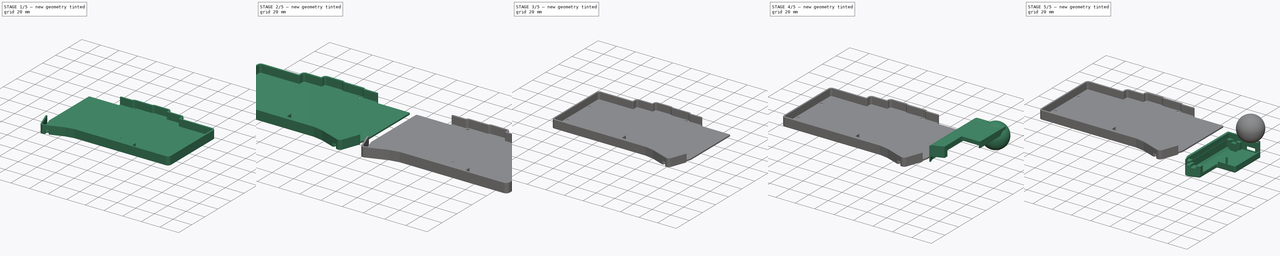
[diagram: build sequence overview — one tinted view per stage of 5, left to right]
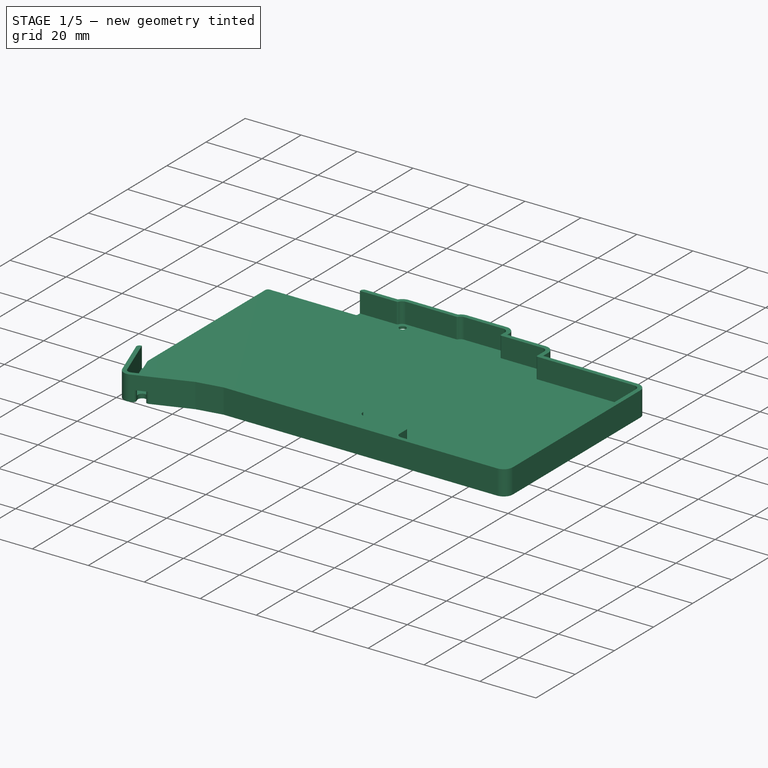
[diagram: stage 1 of 5 — iso view after this stage's code; geometry added in this stage tinted green]
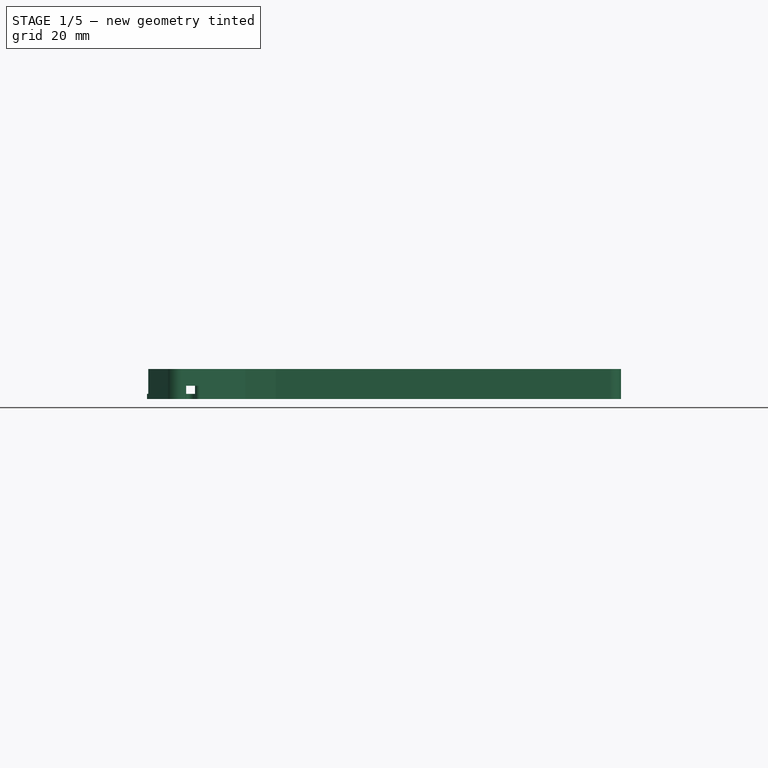
[diagram: stage 1 of 5 — front view after this stage's code; geometry added in this stage tinted green]
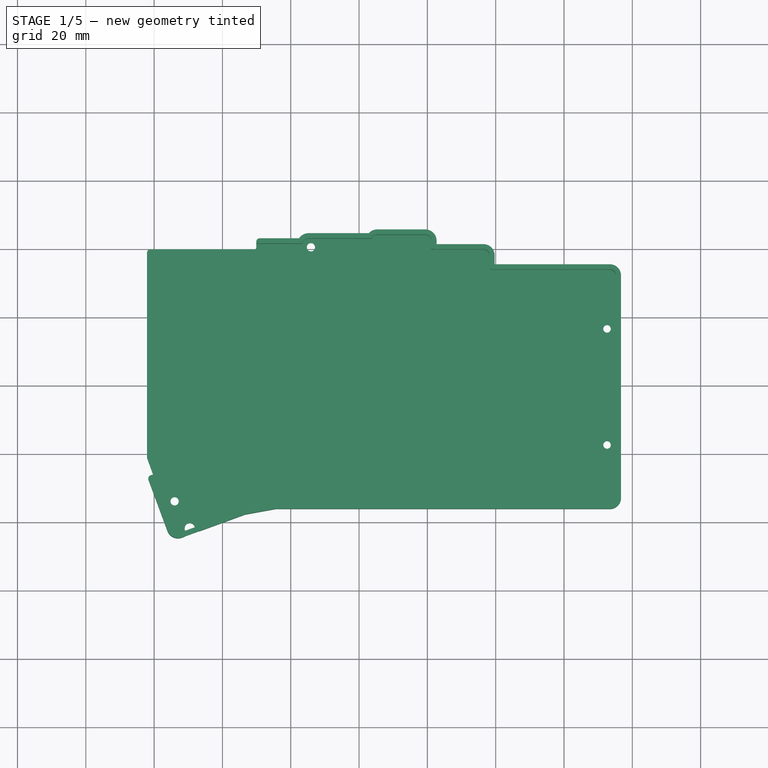
[diagram: stage 1 of 5 — top view after this stage's code; geometry added in this stage tinted green]
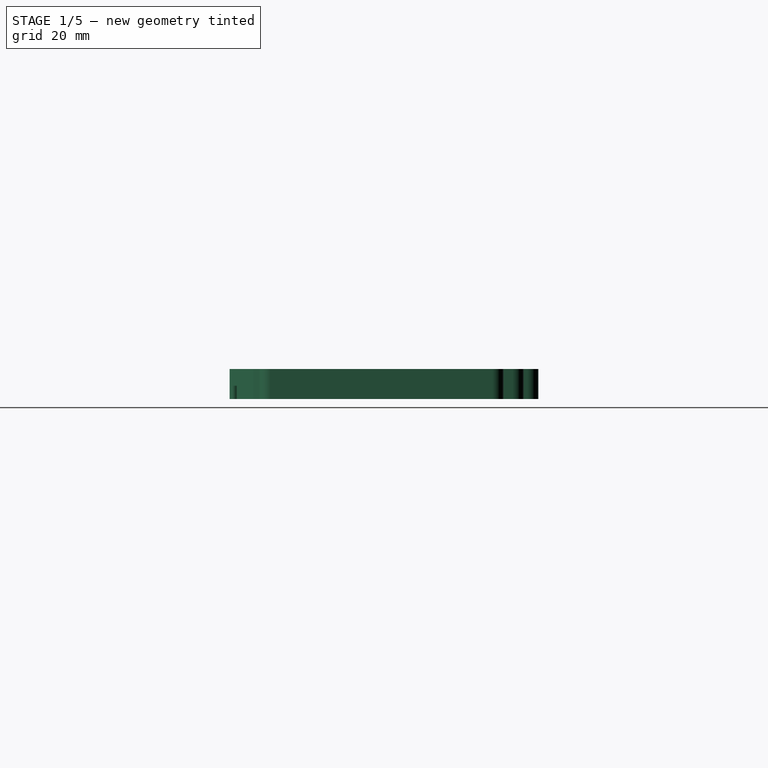
[diagram: stage 1 of 5 — right view after this stage's code; geometry added in this stage tinted green]
FCSTD DOCUMENT  (FreeCAD 1.1R20260414 (Git shallow))
Label: simple-case-MS
License: All rights reserved
LicenseURL: http://en.wikipedia.org/wiki/All_rights_reserved
objects: Sketcher::SketchObject×32, PartDesign::Pocket×19, PartDesign::Fillet×11, PartDesign::Pad×7, App::Point×5, Part::Feature×4, PartDesign::Body×4, Part::Mirroring×3, PartDesign::Chamfer×2, App::Link×2, Spreadsheet::Sheet×1, PartDesign::AdditiveSphere×1, App::Part×1
note: 195 computed .brp shape members not serialized (recipe doc carries the construction recipe); baked Part::Feature solids carry a one-line shape summary decoded from their .brp

FEATURE [Part::Feature] Part__Feature003  label="torabo-tsuki-lp-XS-top-key_PCB"
  Placement = pos=(0,0,-2.2) rot=(0,0,1;0rad)
  shape: bbox 118.2 x 86.78 x 1.6 mm, 130 faces (baked)
FEATURE [Sketcher::SketchObject] Sketch020  label="top-plate"
  ArcFitTolerance = 1e-06
  ExternalTypes = [0]
  FullyConstrained = true
  MakeInternals = false
  Placement = pos=(0,0,6.6e-15) rot=(0,0,1;0rad)
  _ExternalGeoVersion = 0
  sketch-geometry (128):
    g0: ArcOfCircle CenterX=45.3 CenterY=2.4 CenterZ=0 NormalX=-1e-16 NormalY=0 NormalZ=1 AngleXU=1.5708 Radius=1.5 StartAngle=0 EndAngle=1.22777
    g1: LineSegment StartX=59.4 StartY=3.9 StartZ=0 EndX=45.3 EndY=3.9 EndZ=0
    g2: LineSegment StartX=43.8874 StartY=2.9045 StartZ=0 EndX=43.8874 EndY=2.8 EndZ=0
    g3: ArcOfCircle CenterX=59.4 CenterY=2.4 CenterZ=0 NormalX=-1e-16 NormalY=0 NormalZ=1 AngleXU=3.90995e-07 Radius=1.5 StartAngle=0 EndAngle=1.5708
    g4: LineSegment StartX=60.9 StartY=-0.4 StartZ=0 EndX=60.9 EndY=2.4 EndZ=0
    g5: LineSegment StartX=76.4 StartY=-0.4 StartZ=0 EndX=60.9 EndY=-0.4 EndZ=0
    g6: ArcOfCircle CenterX=76.4 CenterY=-1.9 CenterZ=0 NormalX=-1e-16 NormalY=0 NormalZ=1 AngleXU=3.90995e-07 Radius=1.5 StartAngle=0 EndAngle=1.5708
    g7: LineSegment StartX=77.9 StartY=-6.3 StartZ=0 EndX=77.9 EndY=-1.9 EndZ=0
    g8: LineSegment StartX=96.4 StartY=-6.3 StartZ=0 EndX=77.9 EndY=-6.3 EndZ=0
    g9: ArcOfCircle CenterX=96.4 CenterY=-7.8 CenterZ=0 NormalX=-1e-16 NormalY=0 NormalZ=1 AngleXU=3.90995e-07 Radius=1.5 StartAngle=0 EndAngle=1.5708
    g10: LineSegment StartX=97.9 StartY=-59.8 StartZ=0 EndX=97.9 EndY=-7.8 EndZ=0
    g11: LineSegment StartX=97.9 StartY=-72.8 StartZ=0 EndX=97.9 EndY=-59.8 EndZ=0
    g12: ArcOfCircle CenterX=96.4 CenterY=-72.8 CenterZ=0 NormalX=-1e-16 NormalY=0 NormalZ=1 AngleXU=-1.5708 Radius=1.5 StartAngle=0 EndAngle=1.5708
    g13: LineSegment StartX=78 StartY=-74.3 StartZ=0 EndX=96.4 EndY=-74.3 EndZ=0
    g14: ArcOfCircle CenterX=78 CenterY=-72.8 CenterZ=0 NormalX=-1e-16 NormalY=0 NormalZ=1 AngleXU=-3.14159 Radius=1.5 StartAngle=0 EndAngle=1.5708
    g15: LineSegment StartX=76.5 StartY=-68.4 StartZ=0 EndX=76.5 EndY=-72.8 EndZ=0
    g16: LineSegment StartX=60.7 StartY=-68.4 StartZ=0 EndX=76.5 EndY=-68.4 EndZ=0
    g17: ArcOfCircle CenterX=60.7 CenterY=-66.9 CenterZ=0 NormalX=-1e-16 NormalY=0 NormalZ=1 AngleXU=-3.14159 Radius=1.5 StartAngle=0 EndAngle=1.5708
    g18: LineSegment StartX=59.2 StartY=-66.1 StartZ=0 EndX=59.2 EndY=-66.9 EndZ=0
    g19: LineSegment StartX=43.1 StartY=-66.1 StartZ=0 EndX=59.2 EndY=-66.1 EndZ=0
    g20: LineSegment StartX=43.1 StartY=-71.2 StartZ=0 EndX=43.1 EndY=-66.1 EndZ=0
    g21: ArcOfCircle CenterX=41.6 CenterY=-71.2 CenterZ=0 NormalX=-1e-16 NormalY=0 NormalZ=1 AngleXU=-1.5708 Radius=1.5 StartAngle=0 EndAngle=1.5708
    g22: LineSegment StartX=41.4 StartY=-72.7 StartZ=0 EndX=41.6 EndY=-72.7 EndZ=0
    g23: LineSegment StartX=24.227 StartY=-72.7043 StartZ=0 EndX=41.4 EndY=-72.7 EndZ=0
    g24: LineSegment StartX=6.18739 StartY=-75.9853 StartZ=0 EndX=24.227 EndY=-72.7043 EndZ=0
    g25: LineSegment StartX=-12.4977 StartY=-82.7894 StartZ=0 EndX=6.18739 EndY=-75.9853 EndZ=0
    g26: ArcOfCircle CenterX=-13.0109 CenterY=-81.3798 CenterZ=0 NormalX=-1e-16 NormalY=0 NormalZ=1 AngleXU=-2.78723 Radius=1.50005 StartAngle=0 EndAngle=1.56562
    g27: LineSegment StartX=-20.3 StartY=-66 StartZ=0 EndX=-14.4178 EndY=-81.9004 EndZ=0
    g28: LineSegment StartX=-9.1 StartY=-61.9235 StartZ=0 EndX=-20.3 EndY=-66 EndZ=0
    g29: LineSegment StartX=-9.1 StartY=-61 StartZ=0 EndX=-9.1 EndY=-61.9235 EndZ=0
    g30: LineSegment StartX=-9.1 StartY=-36.9 StartZ=0 EndX=-9.1 EndY=-61 EndZ=0
    g31: LineSegment StartX=9.9 StartY=-36.9 StartZ=0 EndX=-9.1 EndY=-36.9 EndZ=0
    g32: LineSegment StartX=9.9 StartY=1.3 StartZ=0 EndX=9.9 EndY=-36.9 EndZ=0
    g33: LineSegment StartX=23.7 StartY=1.3 StartZ=0 EndX=9.9 EndY=1.3 EndZ=0
    g34: ArcOfCircle CenterX=25.2 CenterY=1.3 CenterZ=0 NormalX=-1e-16 NormalY=0 NormalZ=1 AngleXU=1.5708 Radius=1.5 StartAngle=0 EndAngle=1.5708
    g35: LineSegment StartX=43.8874 StartY=2.8 StartZ=0 EndX=25.2 EndY=2.8 EndZ=0
    g36: LineSegment StartX=93.5 StartY=-72.8 StartZ=0 EndX=79.3 EndY=-72.8 EndZ=0
    g37: LineSegment StartX=93.5 StartY=-58.8 StartZ=0 EndX=93.5 EndY=-72.8 EndZ=0
    g38: LineSegment StartX=79.3 StartY=-58.8 StartZ=0 EndX=93.5 EndY=-58.8 EndZ=0
    g39: LineSegment StartX=79.3 StartY=-72.8 StartZ=0 EndX=79.3 EndY=-58.8 EndZ=0
    g40: LineSegment StartX=76.5 StartY=-66.85 StartZ=0 EndX=62.3 EndY=-66.85 EndZ=0
    g41: LineSegment StartX=76.5 StartY=-52.85 StartZ=0 EndX=76.5 EndY=-66.85 EndZ=0
    g42: LineSegment StartX=62.3 StartY=-52.85 StartZ=0 EndX=76.5 EndY=-52.85 EndZ=0
    g43: LineSegment StartX=62.3 StartY=-66.85 StartZ=0 EndX=62.3 EndY=-52.85 EndZ=0
    g44: Circle CenterX=95.6 CenterY=-57.3 CenterZ=0 NormalX=-1e-16 NormalY=0 NormalZ=1 AngleXU=-1.5708 Radius=1.1
    g45: LineSegment StartX=93.5 StartY=-55.8 StartZ=0 EndX=79.3 EndY=-55.8 EndZ=0
    g46: LineSegment StartX=93.5 StartY=-41.8 StartZ=0 EndX=93.5 EndY=-55.8 EndZ=0
    g47: LineSegment StartX=79.3 StartY=-41.8 StartZ=0 EndX=93.5 EndY=-41.8 EndZ=0
    g48: LineSegment StartX=79.3 StartY=-55.8 StartZ=0 EndX=79.3 EndY=-41.8 EndZ=0
    g49: LineSegment StartX=76.5 StartY=-49.85 StartZ=0 EndX=62.3 EndY=-49.85 EndZ=0
    g50: LineSegment StartX=76.5 StartY=-35.85 StartZ=0 EndX=76.5 EndY=-49.85 EndZ=0
    g51: LineSegment StartX=62.3 StartY=-35.85 StartZ=0 EndX=76.5 EndY=-35.85 EndZ=0
    g52: LineSegment StartX=62.3 StartY=-49.85 StartZ=0 EndX=62.3 EndY=-35.85 EndZ=0
    g53: LineSegment StartX=59.5 StartY=-62.6 StartZ=0 EndX=45.3 EndY=-62.6 EndZ=0
    g54: LineSegment StartX=59.5 StartY=-48.6 StartZ=0 EndX=59.5 EndY=-62.6 EndZ=0
    g55: LineSegment StartX=45.3 StartY=-48.6 StartZ=0 EndX=59.5 EndY=-48.6 EndZ=0
    g56: LineSegment StartX=45.3 StartY=-62.6 StartZ=0 EndX=45.3 EndY=-48.6 EndZ=0
    g57: LineSegment StartX=39.95 StartY=-71.1 StartZ=0 EndX=25.75 EndY=-71.1 EndZ=0
    g58: LineSegment StartX=39.95 StartY=-57.1 StartZ=0 EndX=39.95 EndY=-71.1 EndZ=0
    g59: LineSegment StartX=25.75 StartY=-57.1 StartZ=0 EndX=39.95 EndY=-57.1 EndZ=0
    g60: LineSegment StartX=25.75 StartY=-71.1 StartZ=0 EndX=25.75 EndY=-57.1 EndZ=0
    g61: LineSegment StartX=21.8608 StartY=-71.3659 StartZ=0 EndX=7.87653 EndY=-73.8317 EndZ=0
    g62: LineSegment StartX=19.4297 StartY=-57.5786 StartZ=0 EndX=21.8608 EndY=-71.3659 EndZ=0
    g63: LineSegment StartX=5.44545 StartY=-60.0444 StartZ=0 EndX=19.4297 EndY=-57.5786 EndZ=0
    g64: LineSegment StartX=7.87653 StartY=-73.8317 StartZ=0 EndX=5.44545 EndY=-60.0444 EndZ=0
    g65: LineSegment StartX=4.35879 StartY=-75.0546 StartZ=0 EndX=-8.98485 EndY=-79.9113 EndZ=0
    g66: LineSegment StartX=-0.429495 StartY=-61.8989 StartZ=0 EndX=4.35879 EndY=-75.0546 EndZ=0
    g67: LineSegment StartX=-13.7731 StartY=-66.7556 StartZ=0 EndX=-0.429495 EndY=-61.8989 EndZ=0
    g68: LineSegment StartX=-8.98485 StartY=-79.9113 StartZ=0 EndX=-13.7731 EndY=-66.7556 EndZ=0
    g69: Circle CenterX=-14 CenterY=-73.8 CenterZ=0 NormalX=-1e-16 NormalY=0 NormalZ=1 AngleXU=-1.5708 Radius=1.1
    g70: LineSegment StartX=42.5 StartY=-47.725 StartZ=0 EndX=28.3 EndY=-47.725 EndZ=0
    g71: LineSegment StartX=42.5 StartY=-33.725 StartZ=0 EndX=42.5 EndY=-47.725 EndZ=0
    g72: LineSegment StartX=28.3 StartY=-33.725 StartZ=0 EndX=42.5 EndY=-33.725 EndZ=0
    g73: LineSegment StartX=28.3 StartY=-47.725 StartZ=0 EndX=28.3 EndY=-33.725 EndZ=0
    g74: LineSegment StartX=25.5 StartY=-49.85 StartZ=0 EndX=11.3 EndY=-49.85 EndZ=0
    g75: LineSegment StartX=25.5 StartY=-35.85 StartZ=0 EndX=25.5 EndY=-49.85 EndZ=0
    g76: LineSegment StartX=11.3 StartY=-35.85 StartZ=0 EndX=25.5 EndY=-35.85 EndZ=0
    g77: LineSegment StartX=11.3 StartY=-49.85 StartZ=0 EndX=11.3 EndY=-35.85 EndZ=0
    g78: LineSegment StartX=8.5 StartY=-52.4 StartZ=0 EndX=-5.7 EndY=-52.4 EndZ=0
    g79: LineSegment StartX=8.5 StartY=-38.4 StartZ=0 EndX=8.5 EndY=-52.4 EndZ=0
    g80: LineSegment StartX=-5.7 StartY=-38.4 StartZ=0 EndX=8.5 EndY=-38.4 EndZ=0
    g81: LineSegment StartX=-5.7 StartY=-52.4 StartZ=0 EndX=-5.7 EndY=-38.4 EndZ=0
    g82: LineSegment StartX=93.5 StartY=-38.8 StartZ=0 EndX=79.3 EndY=-38.8 EndZ=0
    g83: LineSegment StartX=93.5 StartY=-24.8 StartZ=0 EndX=93.5 EndY=-38.8 EndZ=0
    g84: LineSegment StartX=79.3 StartY=-24.8 StartZ=0 EndX=93.5 EndY=-24.8 EndZ=0
    g85: LineSegment StartX=79.3 StartY=-38.8 StartZ=0 EndX=79.3 EndY=-24.8 EndZ=0
    g86: Circle CenterX=95.6 CenterY=-23.3 CenterZ=0 NormalX=-1e-16 NormalY=0 NormalZ=1 AngleXU=-1.5708 Radius=1.1
    g87: LineSegment StartX=76.5 StartY=-32.85 StartZ=0 EndX=62.3 EndY=-32.85 EndZ=0
    g88: LineSegment StartX=76.5 StartY=-18.85 StartZ=0 EndX=76.5 EndY=-32.85 EndZ=0
    g89: LineSegment StartX=62.3 StartY=-18.85 StartZ=0 EndX=76.5 EndY=-18.85 EndZ=0
    g90: LineSegment StartX=62.3 StartY=-32.85 StartZ=0 EndX=62.3 EndY=-18.85 EndZ=0
    g91: LineSegment StartX=59.5 StartY=-45.6 StartZ=0 EndX=45.3 EndY=-45.6 EndZ=0
    g92: LineSegment StartX=59.5 StartY=-31.6 StartZ=0 EndX=59.5 EndY=-45.6 EndZ=0
    g93: LineSegment StartX=45.3 StartY=-31.6 StartZ=0 EndX=59.5 EndY=-31.6 EndZ=0
    g94: LineSegment StartX=45.3 StartY=-45.6 StartZ=0 EndX=45.3 EndY=-31.6 EndZ=0
    g95: LineSegment StartX=59.5 StartY=-28.6 StartZ=0 EndX=45.3 EndY=-28.6 EndZ=0
    g96: LineSegment StartX=59.5 StartY=-14.6 StartZ=0 EndX=59.5 EndY=-28.6 EndZ=0
    g97: LineSegment StartX=45.3 StartY=-14.6 StartZ=0 EndX=59.5 EndY=-14.6 EndZ=0
    g98: LineSegment StartX=45.3 StartY=-28.6 StartZ=0 EndX=45.3 EndY=-14.6 EndZ=0
    g99: LineSegment StartX=93.5 StartY=-21.8 StartZ=0 EndX=79.3 EndY=-21.8 EndZ=0
    g100: LineSegment StartX=93.5 StartY=-7.8 StartZ=0 EndX=93.5 EndY=-21.8 EndZ=0
    g101: LineSegment StartX=79.3 StartY=-7.8 StartZ=0 EndX=93.5 EndY=-7.8 EndZ=0
    g102: LineSegment StartX=79.3 StartY=-21.8 StartZ=0 EndX=79.3 EndY=-7.8 EndZ=0
    g103: LineSegment StartX=76.5 StartY=-15.85 StartZ=0 EndX=62.3 EndY=-15.85 EndZ=0
    g104: LineSegment StartX=76.5 StartY=-1.85 StartZ=0 EndX=76.5 EndY=-15.85 EndZ=0
    g105: LineSegment StartX=62.3 StartY=-1.85 StartZ=0 EndX=76.5 EndY=-1.85 EndZ=0
    g106: LineSegment StartX=62.3 StartY=-15.85 StartZ=0 EndX=62.3 EndY=-1.85 EndZ=0
    g107: LineSegment StartX=59.5 StartY=-11.6 StartZ=0 EndX=45.3 EndY=-11.6 EndZ=0
    g108: LineSegment StartX=59.5 StartY=2.4 StartZ=0 EndX=59.5 EndY=-11.6 EndZ=0
    g109: LineSegment StartX=45.3 StartY=2.4 StartZ=0 EndX=59.5 EndY=2.4 EndZ=0
    g110: LineSegment StartX=45.3 StartY=-11.6 StartZ=0 EndX=45.3 EndY=2.4 EndZ=0
    g111: LineSegment StartX=42.5 StartY=-30.725 StartZ=0 EndX=28.3 EndY=-30.725 EndZ=0
    g112: LineSegment StartX=42.5 StartY=-16.725 StartZ=0 EndX=42.5 EndY=-30.725 EndZ=0
    g113: LineSegment StartX=28.3 StartY=-16.725 StartZ=0 EndX=42.5 EndY=-16.725 EndZ=0
    g114: LineSegment StartX=28.3 StartY=-30.725 StartZ=0 EndX=28.3 EndY=-16.725 EndZ=0
    g115: LineSegment StartX=25.5 StartY=-32.85 StartZ=0 EndX=11.3 EndY=-32.85 EndZ=0
    g116: LineSegment StartX=25.5 StartY=-18.85 StartZ=0 EndX=25.5 EndY=-32.85 EndZ=0
    g117: LineSegment StartX=11.3 StartY=-18.85 StartZ=0 EndX=25.5 EndY=-18.85 EndZ=0
    g118: LineSegment StartX=11.3 StartY=-32.85 StartZ=0 EndX=11.3 EndY=-18.85 EndZ=0
    g119: LineSegment StartX=25.5 StartY=-15.85 StartZ=0 EndX=11.3 EndY=-15.85 EndZ=0
    g120: LineSegment StartX=25.5 StartY=-1.85 StartZ=0 EndX=25.5 EndY=-15.85 EndZ=0
    g121: LineSegment StartX=11.3 StartY=-1.85 StartZ=0 EndX=25.5 EndY=-1.85 EndZ=0
    g122: LineSegment StartX=11.3 StartY=-15.85 StartZ=0 EndX=11.3 EndY=-1.85 EndZ=0
    g123: LineSegment StartX=42.5 StartY=-13.725 StartZ=0 EndX=28.3 EndY=-13.725 EndZ=0
    g124: LineSegment StartX=42.5 StartY=0.275 StartZ=0 EndX=42.5 EndY=-13.725 EndZ=0
    g125: LineSegment StartX=28.3 StartY=0.275 StartZ=0 EndX=42.5 EndY=0.275 EndZ=0
    g126: LineSegment StartX=28.3 StartY=-13.725 StartZ=0 EndX=28.3 EndY=0.275 EndZ=0
    g127: Circle CenterX=25.9 CenterY=0.6 CenterZ=0 NormalX=-1e-16 NormalY=0 NormalZ=1 AngleXU=-1.5708 Radius=1.1
  constraints (252):
    c: Block(g0)
    c: Block(g1)
    c: Block(g2)
    c: Block(g3)
    c: Block(g4)
    c: Block(g5)
    c: Block(g6)
    c: Block(g7)
    c: Block(g8)
    c: Block(g9)
    c: Block(g10)
    c: Block(g11)
    c: Block(g12)
    c: Block(g13)
    c: Block(g14)
    c: Block(g15)
    c: Block(g16)
    c: Block(g17)
    c: Block(g18)
    c: Block(g19)
    c: Block(g20)
    c: Block(g21)
    c: Block(g22)
    c: Block(g23)
    c: Block(g24)
    c: Block(g25)
    c: Block(g26)
    c: Block(g27)
    c: Block(g28)
    c: Block(g29)
    c: Block(g30)
    c: Block(g31)
    c: Block(g32)
    c: Block(g33)
    c: Block(g34)
    c: Block(g35)
    c: Block(g36)
    c: Block(g37)
    c: Block(g38)
    c: Block(g39)
    c: Block(g40)
    c: Block(g41)
    c: Block(g42)
    c: Block(g43)
    c: Block(g44)
    c: Block(g45)
    c: Block(g46)
    c: Block(g47)
    c: Block(g48)
    c: Block(g49)
    c: Block(g50)
    c: Block(g51)
    c: Block(g52)
    c: Block(g53)
    c: Block(g54)
    c: Block(g55)
    c: Block(g56)
    c: Block(g57)
    c: Block(g58)
    c: Block(g59)
    c: Block(g60)
    c: Block(g61)
    c: Block(g62)
    c: Block(g63)
    c: Block(g64)
    c: Block(g65)
    c: Block(g66)
    c: Block(g67)
    c: Block(g68)
    c: Block(g69)
    c: Block(g70)
    c: Block(g71)
    c: Block(g72)
    c: Block(g73)
    c: Block(g74)
    c: Block(g75)
    c: Block(g76)
    c: Block(g77)
    c: Block(g78)
    c: Block(g79)
    c: Block(g80)
    c: Block(g81)
    c: Block(g82)
    c: Block(g83)
    c: Block(g84)
    c: Block(g85)
    c: Block(g86)
    c: Block(g87)
    c: Block(g88)
    c: Block(g89)
    c: Block(g90)
    c: Block(g91)
    c: Block(g92)
    c: Block(g93)
    c: Block(g94)
    c: Block(g95)
    c: Block(g96)
    c: Block(g97)
    c: Block(g98)
    c: Block(g99)
    c: Block(g100)
    c: Block(g101)
    c: Block(g102)
    c: Block(g103)
    c: Block(g104)
    c: Block(g105)
    c: Block(g106)
    c: Block(g107)
    c: Block(g108)
    c: Block(g109)
    c: Block(g110)
    c: Block(g111)
    c: Block(g112)
    c: Block(g113)
    c: Block(g114)
    c: Block(g115)
    c: Block(g116)
    c: Block(g117)
    c: Block(g118)
    c: Block(g119)
    c: Block(g120)
    c: Block(g121)
    c: Block(g122)
    c: Block(g123)
    c: Block(g124)
    c: Block(g125)
    c: Block(g126)
    c: Block(g127)
    c: Coincident(g27,g28)
    c: Coincident(g26,g27)
    c: Coincident(g67,g68)
    c: Coincident(g25,g26)
    c: Coincident(g28,g29)
    c: Coincident(g29,g30)
    c: Coincident(g30,g31)
    c: Coincident(g65,g68)
    c: Coincident(g78,g81)
    c: Coincident(g80,g81)
    c: Coincident(g66,g67)
    c: Coincident(g65,g66)
    c: Coincident(g63,g64)
    c: Coincident(g24,g25)
    c: Coincident(g61,g64)
    c: Coincident(g78,g79)
    c: Coincident(g79,g80)
    c: Coincident(g31,g32)
    c: Coincident(g32,g33)
    c: Coincident(g74,g77)
    c: Coincident(g76,g77)
    c: Coincident(g115,g118)
    c: Coincident(g117,g118)
    c: Coincident(g119,g122)
    c: Coincident(g121,g122)
    c: Coincident(g62,g63)
    c: Coincident(g61,g62)
    c: Coincident(g33,g34)
    c: Coincident(g23,g24)
    c: Coincident(g34,g35)
    c: Coincident(g74,g75)
    c: Coincident(g75,g76)
    c: Coincident(g115,g116)
    c: Coincident(g116,g117)
    c: Coincident(g119,g120)
    c: Coincident(g120,g121)
    c: Coincident(g57,g60)
    c: Coincident(g59,g60)
    c: Coincident(g70,g73)
    c: Coincident(g72,g73)
    c: Coincident(g111,g114)
    c: Coincident(g113,g114)
    c: Coincident(g123,g126)
    c: Coincident(g125,g126)
    c: Coincident(g57,g58)
    c: Coincident(g58,g59)
    c: Coincident(g22,g23)
    c: Coincident(g21,g22)
    c: Coincident(g70,g71)
    c: Coincident(g71,g72)
    c: Coincident(g111,g112)
    c: Coincident(g112,g113)
    c: Coincident(g123,g124)
    c: Coincident(g124,g125)
    c: Coincident(g20,g21)
    c: Coincident(g19,g20)
    c: Coincident(g2,g35)
    c: Coincident(g0,g2)
    c: Coincident(g53,g56)
    c: Coincident(g55,g56)
    c: Coincident(g91,g94)
    c: Coincident(g93,g94)
    c: Coincident(g95,g98)
    c: Coincident(g97,g98)
    c: Coincident(g107,g110)
    c: Coincident(g109,g110)
    c: Coincident(g0,g1)
    c: Coincident(g17,g18)
    c: Coincident(g18,g19)
    c: Coincident(g1,g3)
    c: Coincident(g53,g54)
    c: Coincident(g54,g55)
    c: Coincident(g91,g92)
    c: Coincident(g92,g93)
    c: Coincident(g95,g96)
    c: Coincident(g96,g97)
    c: Coincident(g107,g108)
    c: Coincident(g108,g109)
    c: Coincident(g16,g17)
    c: Coincident(g4,g5)
    c: Coincident(g3,g4)
    c: Coincident(g40,g43)
    c: Coincident(g42,g43)
    c: Coincident(g49,g52)
    c: Coincident(g51,g52)
    c: Coincident(g87,g90)
    c: Coincident(g89,g90)
    c: Coincident(g103,g106)
    c: Coincident(g105,g106)
    c: Coincident(g5,g6)
    c: Coincident(g14,g15)
    c: Coincident(g15,g16)
    c: Coincident(g40,g41)
    c: Coincident(g41,g42)
    c: Coincident(g49,g50)
    c: Coincident(g50,g51)
    c: Coincident(g87,g88)
    c: Coincident(g88,g89)
    c: Coincident(g103,g104)
    c: Coincident(g104,g105)
    c: Coincident(g7,g8)
    c: Coincident(g6,g7)
    c: Coincident(g13,g14)
    c: Coincident(g36,g39)
    c: Coincident(g38,g39)
    c: Coincident(g45,g48)
    c: Coincident(g47,g48)
    c: Coincident(g82,g85)
    c: Coincident(g84,g85)
    c: Coincident(g99,g102)
    c: Coincident(g101,g102)
    c: Coincident(g36,g37)
    c: Coincident(g37,g38)
    c: Coincident(g45,g46)
    c: Coincident(g46,g47)
    c: Coincident(g82,g83)
    c: Coincident(g83,g84)
    c: Coincident(g99,g100)
    c: Coincident(g100,g101)
    c: Coincident(g12,g13)
    c: Coincident(g8,g9)
    c: Coincident(g11,g12)
    c: Coincident(g10,g11)
    c: Coincident(g9,g10)
FEATURE [Sketcher::SketchObject] Sketch021
  ArcFitTolerance = 1e-06
  AttachmentOffset = pos=(0,0,-5.1) rot=(0,0,1;0rad)
  AttachmentSupport = -> [XY_Plane004]
  ExternalTypes = [0]
  FullyConstrained = false
  MakeInternals = false
  MapMode = 5
  Placement = pos=(0,0,-5.1) rot=(0,0,1;0rad)
  _ExternalGeoVersion = 0
  sketch-geometry (65):
    g0: ArcOfCircle [constr] CenterX=45.3 CenterY=2.4 CenterZ=0 NormalX=-1e-16 NormalY=0 NormalZ=1 AngleXU=1.5708 Radius=1.5 StartAngle=0 EndAngle=1.22777
    g1: LineSegment [constr] StartX=59.4 StartY=3.9 StartZ=0 EndX=45.3 EndY=3.9 EndZ=0
    g2: LineSegment [constr] StartX=43.8874 StartY=2.9045 StartZ=0 EndX=43.8874 EndY=2.8 EndZ=0
    g3: ArcOfCircle [constr] CenterX=59.4 CenterY=2.4 CenterZ=0 NormalX=-1e-16 NormalY=0 NormalZ=1 AngleXU=3.90995e-07 Radius=1.5 StartAngle=0 EndAngle=1.5708
    g4: LineSegment [constr] StartX=60.9 StartY=-0.4 StartZ=0 EndX=60.9 EndY=2.4 EndZ=0
    g5: LineSegment [constr] StartX=76.4 StartY=-0.4 StartZ=0 EndX=60.9 EndY=-0.4 EndZ=0
    g6: ArcOfCircle [constr] CenterX=76.4 CenterY=-1.9 CenterZ=0 NormalX=-1e-16 NormalY=0 NormalZ=1 AngleXU=3.90995e-07 Radius=1.5 StartAngle=0 EndAngle=1.5708
    g7: LineSegment [constr] StartX=77.9 StartY=-6.3 StartZ=0 EndX=77.9 EndY=-1.9 EndZ=0
    g8: LineSegment [constr] StartX=96.4 StartY=-6.3 StartZ=0 EndX=77.9 EndY=-6.3 EndZ=0
    g9: ArcOfCircle [constr] CenterX=96.4 CenterY=-7.8 CenterZ=0 NormalX=-1e-16 NormalY=0 NormalZ=1 AngleXU=3.90995e-07 Radius=1.5 StartAngle=0 EndAngle=1.5708
    g10: LineSegment [constr] StartX=97.9 StartY=-59.8 StartZ=0 EndX=97.9 EndY=-7.8 EndZ=0
    g11: LineSegment [constr] StartX=97.9 StartY=-72.8 StartZ=0 EndX=97.9 EndY=-59.8 EndZ=0
    g12: ArcOfCircle [constr] CenterX=96.4 CenterY=-72.8 CenterZ=0 NormalX=-1e-16 NormalY=0 NormalZ=1 AngleXU=-1.5708 Radius=1.5 StartAngle=0 EndAngle=1.5708
    g13: LineSegment [constr] StartX=78 StartY=-74.3 StartZ=0 EndX=96.4 EndY=-74.3 EndZ=0
    g14: LineSegment [constr] StartX=6.18739 StartY=-75.9853 StartZ=0 EndX=15.4535 EndY=-74.3 EndZ=0
    g15: LineSegment [constr] StartX=-12.4977 StartY=-82.7894 StartZ=0 EndX=6.18739 EndY=-75.9853 EndZ=0
    g16: ArcOfCircle [constr] CenterX=-13.0109 CenterY=-81.3798 CenterZ=0 NormalX=-1e-16 NormalY=0 NormalZ=1 AngleXU=-2.78723 Radius=1.50005 StartAngle=0 EndAngle=1.56562
    g17: LineSegment [constr] StartX=-20.3 StartY=-66 StartZ=0 EndX=-14.4178 EndY=-81.9004 EndZ=0
    g18: LineSegment [constr] StartX=-9.1 StartY=-61.9235 StartZ=0 EndX=-20.3 EndY=-66 EndZ=0
    g19: LineSegment [constr] StartX=-9.1 StartY=-61 StartZ=0 EndX=-9.1 EndY=-61.9235 EndZ=0
    g20: LineSegment [constr] StartX=-9.1 StartY=-36.9 StartZ=0 EndX=-9.1 EndY=-61 EndZ=0
    g21: LineSegment [constr] StartX=9.9 StartY=-36.9 StartZ=0 EndX=-9.1 EndY=-36.9 EndZ=0
    g22: LineSegment [constr] StartX=9.9 StartY=1.3 StartZ=0 EndX=9.9 EndY=-36.9 EndZ=0
    g23: LineSegment [constr] StartX=23.7 StartY=1.3 StartZ=0 EndX=9.9 EndY=1.3 EndZ=0
    g24: ArcOfCircle [constr] CenterX=25.2 CenterY=1.3 CenterZ=0 NormalX=-1e-16 NormalY=0 NormalZ=1 AngleXU=1.5708 Radius=1.5 StartAngle=0 EndAngle=1.5708
    g25: LineSegment [constr] StartX=43.8874 StartY=2.8 StartZ=0 EndX=25.2 EndY=2.8 EndZ=0
    g26: LineSegment [constr] StartX=78 StartY=-74.3 StartZ=0 EndX=15.4535 EndY=-74.3 EndZ=0
    g27: LineSegment StartX=78 StartY=-76.1 StartZ=0 EndX=15.6159 EndY=-76.1 EndZ=0
    g28: LineSegment StartX=6.65976 StartY=-77.7289 StartZ=0 EndX=15.6159 EndY=-76.1 EndZ=0
    g29: LineSegment StartX=-11.8818 StartY=-84.4807 StartZ=0 EndX=6.65976 EndY=-77.7289 EndZ=0
    g30: ArcOfCircle CenterX=-13.0109 CenterY=-81.3798 CenterZ=0 NormalX=0 NormalY=0 NormalZ=1 AngleXU=-2.78723 Radius=3.30007 StartAngle=6.28318 EndAngle=7.84881
    g31: LineSegment StartX=-21.9882 StartY=-66.6245 StartZ=0 EndX=-16.106 EndY=-82.5249 EndZ=0
    g32: LineSegment [constr] StartX=-10.9 StartY=-60.6632 StartZ=0 EndX=-20.9156 EndY=-64.3086 EndZ=0
    g33: LineSegment [constr] StartX=-10.9 StartY=-36.9 StartZ=0 EndX=-10.9 EndY=-60.6632 EndZ=0
    g34: ArcOfCircle [constr] CenterX=-9.1 CenterY=-36.9 CenterZ=0 NormalX=0 NormalY=0 NormalZ=1 AngleXU=0 Radius=1.8 StartAngle=1.5708 EndAngle=3.14159
    g35: LineSegment [constr] StartX=8.1 StartY=-35.1 StartZ=0 EndX=-9.1 EndY=-35.1 EndZ=0
    g36: LineSegment [constr] StartX=8.1 StartY=1.3 StartZ=0 EndX=8.1 EndY=-35.1 EndZ=0
    g37: ArcOfCircle [constr] CenterX=9.9 CenterY=1.3 CenterZ=0 NormalX=0 NormalY=0 NormalZ=1 AngleXU=0 Radius=1.8 StartAngle=1.5708 EndAngle=3.14159
    g38: LineSegment [constr] StartX=22.4341 StartY=3.1 StartZ=0 EndX=9.9 EndY=3.1 EndZ=0
    g39: ArcOfCircle CenterX=25.2 CenterY=1.3 CenterZ=0 NormalX=0 NormalY=0 NormalZ=1 AngleXU=1.5708 Radius=3.3 StartAngle=0 EndAngle=0.993864
    g40: LineSegment StartX=42.8403 StartY=4.6 StartZ=0 EndX=25.2 EndY=4.6 EndZ=0
    g41: ArcOfCircle CenterX=45.3 CenterY=2.4 CenterZ=0 NormalX=0 NormalY=0 NormalZ=1 AngleXU=1.5708 Radius=3.3 StartAngle=0 EndAngle=0.841069
    g42: LineSegment StartX=59.4 StartY=5.7 StartZ=0 EndX=45.3 EndY=5.7 EndZ=0
    g43: ArcOfCircle CenterX=59.4 CenterY=2.4 CenterZ=0 NormalX=0 NormalY=0 NormalZ=1 AngleXU=3.90995e-07 Radius=3.3 StartAngle=-1.8e-15 EndAngle=1.5708
    g44: LineSegment StartX=62.7 StartY=1.4 StartZ=0 EndX=62.7 EndY=2.4 EndZ=0
    g45: LineSegment StartX=76.4 StartY=1.4 StartZ=0 EndX=62.7 EndY=1.4 EndZ=0
    g46: ArcOfCircle CenterX=76.4 CenterY=-1.9 CenterZ=0 NormalX=0 NormalY=0 NormalZ=1 AngleXU=3.90995e-07 Radius=3.3 StartAngle=-1.8e-15 EndAngle=1.5708
    g47: LineSegment StartX=79.7 StartY=-4.5 StartZ=0 EndX=79.7 EndY=-1.9 EndZ=0
    g48: LineSegment StartX=113.4 StartY=-4.5 StartZ=0 EndX=79.7 EndY=-4.5 EndZ=0
    g49: ArcOfCircle CenterX=113.4 CenterY=-7.8 CenterZ=0 NormalX=0 NormalY=0 NormalZ=1 AngleXU=3.90995e-07 Radius=3.3 StartAngle=6.28318 EndAngle=7.85398
    g50: LineSegment StartX=116.7 StartY=-59.8 StartZ=0 EndX=116.7 EndY=-7.8 EndZ=0
    g51: LineSegment StartX=116.7 StartY=-72.8 StartZ=0 EndX=116.7 EndY=-59.8 EndZ=0
    g52: ArcOfCircle CenterX=113.4 CenterY=-72.8 CenterZ=0 NormalX=0 NormalY=0 NormalZ=1 AngleXU=-1.5708 Radius=3.3 StartAngle=6.28318 EndAngle=7.85398
    g53: LineSegment StartX=78 StartY=-76.1 StartZ=0 EndX=113.4 EndY=-76.1 EndZ=0
    g54: LineSegment [constr] StartX=8.1 StartY=1.3 StartZ=0 EndX=8.1 EndY=0 EndZ=0
    g55: LineSegment StartX=8.1 StartY=0 StartZ=0 EndX=-22.1 EndY=0 EndZ=0
    g56: LineSegment StartX=-22.1 StartY=0 StartZ=0 EndX=-22.1 EndY=-61.0545 EndZ=0
    g57: LineSegment StartX=-22.1 StartY=-61.0545 StartZ=0 EndX=-20.3 EndY=-66 EndZ=0
    g58: LineSegment StartX=-20.3 StartY=-66 StartZ=0 EndX=-21.9882 EndY=-66.6245 EndZ=0
    g59: LineSegment StartX=22.4341 StartY=3.1 StartZ=0 EndX=8.1 EndY=3.1 EndZ=0
    g60: LineSegment StartX=8.1 StartY=3.1 StartZ=0 EndX=8.1 EndY=0 EndZ=0
    g61: LineSegment [constr] StartX=113.4 StartY=-4.5 StartZ=0 EndX=113.4 EndY=-7.8 EndZ=0
    g62: LineSegment [constr] StartX=113.4 StartY=-7.8 StartZ=0 EndX=116.7 EndY=-7.8 EndZ=0
    g63: LineSegment [constr] StartX=113.4 StartY=-72.8 StartZ=0 EndX=113.4 EndY=-76.1 EndZ=0
    g64: LineSegment [constr] StartX=113.4 StartY=-72.8 StartZ=0 EndX=116.7 EndY=-72.8 EndZ=0
  constraints (124):
    c: Block(g0)
    c: Block(g1)
    c: Block(g2)
    c: Block(g3)
    c: Block(g4)
    c: Block(g5)
    c: Block(g6)
    c: Block(g7)
    c: Block(g8)
    c: Block(g9)
    c: Block(g10)
    c: Block(g11)
    c: Block(g12)
    c: Block(g13)
    c: Block(g14)
    c: Block(g15)
    c: Block(g16)
    c: Block(g17)
    c: Block(g18)
    c: Block(g19)
    c: Block(g20)
    c: Block(g21)
    c: Block(g22)
    c: Block(g23)
    c: Block(g24)
    c: Block(g25)
    c: Coincident(g17,g18)
    c: Coincident(g16,g17)
    c: Coincident(g15,g16)
    c: Coincident(g18,g19)
    c: Coincident(g19,g20)
    c: Coincident(g20,g21)
    c: Coincident(g14,g15)
    c: Coincident(g21,g22)
    c: Coincident(g22,g23)
    c: Coincident(g23,g24)
    c: Coincident(g24,g25)
    c: Coincident(g2,g25)
    c: Coincident(g0,g2)
    c: Coincident(g0,g1)
    c: Coincident(g1,g3)
    c: Coincident(g4,g5)
    c: Coincident(g3,g4)
    c: Coincident(g5,g6)
    c: Coincident(g7,g8)
    c: Coincident(g6,g7)
    c: Coincident(g12,g13)
    c: Coincident(g8,g9)
    c: Coincident(g11,g12)
    c: Coincident(g10,g11)
    c: Coincident(g9,g10)
    c: Coincident(g26,g13)
    c: Horizontal(g26)
    c: Coincident(g14,g26)
    c: Coincident(g27,g28)
    c: Coincident(g27,g53)
    c: Coincident(g28,g29)
    c: Coincident(g32,g33)
    c: Tangent(g33,g34) = -1.5708
    c: Tangent(g34,g35) = -1.5708
    c: Coincident(g35,g36)
    c: Tangent(g36,g37) = -1.5708
    c: Tangent(g37,g38) = -1.5708
    c: Coincident(g38,g39)
    c: Coincident(g40,g41)
    c: Coincident(g44,g45)
    c: Coincident(g47,g48)
    c: Coincident(g50,g51)
    c: Coincident(g54,g36)
    c: PointOnObject(g54,g-1)
    c: Vertical(g54)
    c: Coincident(g55,g54)
    c: PointOnObject(g55,g-1)
    c: Coincident(g56,g55)
    c: Vertical(g56)
    c: DistanceX(g55,g-1) = 22.1
    c: Coincident(g57,g56)
    c: Coincident(g57,g17)
    c: Angle(g18,g57) = 1.5708
    c: Coincident(g58,g17)
    c: Coincident(g58,g31)
    c: Coincident(g30,g31)
    c: Coincident(g29,g30)
    c: Coincident(g39,g40)
    c: Coincident(g41,g42)
    c: Coincident(g42,g43)
    c: Coincident(g43,g44)
    c: Coincident(g45,g46)
    c: Coincident(g46,g47)
    c: Coincident(g52,g53)
    c: Coincident(g48,g49)
    c: Coincident(g51,g52)
    c: Coincident(g49,g50)
    c: Block(g38)
    c: Block(g36)
    c: Coincident(g59,g38)
    c: Horizontal(g59)
    c: Tangent(g59,g37)
    c: Coincident(g60,g59)
    c: Coincident(g60,g54)
    c: Vertical(g60)
    c: Block(g47)
    c: Block(g27)
    c: DistanceY(g48,g-1) = 4.5
    c: DistanceY(g52,g-1) = 76.1
    c: Horizontal(g53)
    c: Horizontal(g48)
    c: Radius(g49) = 3.3
    c: Radius(g52) = 3.3
    c: DistanceX(g-1,g49) = 116.7
    c: Vertical(g50)
    c: Vertical(g51)
    c: Coincident(g61,g48)
    c: Coincident(g61,g49)
    c: Vertical(g61)
    c: Coincident(g62,g49)
    c: Coincident(g62,g49)
    c: Horizontal(g62)
    c: Coincident(g63,g52)
    c: Coincident(g63,g52)
    c: Vertical(g63)
    c: Coincident(g64,g52)
    c: Coincident(g64,g51)
    c: Horizontal(g64)
FEATURE [PartDesign::Pad] Pad010
  Direction = (0,0,1)
  Length = 1.5
  Length2 = 7.3
  Profile = -> Sketch021
  ReferenceAxis = -> Sketch021 [N_Axis]
  Refine = true
  Reversed = true
  SideType = 1
  Suppressed = false
  Type = 0
  Type2 = 0
FEATURE [Sketcher::SketchObject] Sketch022  label="bottom-plate"
  ArcFitTolerance = 1e-06
  ExternalTypes = [0]
  FullyConstrained = true
  MakeInternals = false
  Placement = pos=(0,0,6.6e-15) rot=(0,0,1;0rad)
  _ExternalGeoVersion = 0
  sketch-geometry (74):
    g0: ArcOfCircle CenterX=45.3 CenterY=2.4 CenterZ=0 NormalX=-1e-16 NormalY=0 NormalZ=1 AngleXU=1.5708 Radius=1.5 StartAngle=0 EndAngle=1.22777
    g1: LineSegment StartX=59.4 StartY=3.9 StartZ=0 EndX=45.3 EndY=3.9 EndZ=0
    g2: LineSegment StartX=43.8874 StartY=2.9045 StartZ=0 EndX=43.8874 EndY=2.8 EndZ=0
    g3: ArcOfCircle CenterX=59.4 CenterY=2.4 CenterZ=0 NormalX=-1e-16 NormalY=0 NormalZ=1 AngleXU=3.90995e-07 Radius=1.5 StartAngle=0 EndAngle=1.5708
    g4: LineSegment StartX=60.9 StartY=-0.4 StartZ=0 EndX=60.9 EndY=2.4 EndZ=0
    g5: LineSegment StartX=76.4 StartY=-0.4 StartZ=0 EndX=60.9 EndY=-0.4 EndZ=0
    g6: ArcOfCircle CenterX=76.4 CenterY=-1.9 CenterZ=0 NormalX=-1e-16 NormalY=0 NormalZ=1 AngleXU=3.90995e-07 Radius=1.5 StartAngle=0 EndAngle=1.5708
    g7: LineSegment StartX=77.9 StartY=-6.3 StartZ=0 EndX=77.9 EndY=-1.9 EndZ=0
    g8: LineSegment StartX=96.4 StartY=-6.3 StartZ=0 EndX=77.9 EndY=-6.3 EndZ=0
    g9: ArcOfCircle CenterX=96.4 CenterY=-7.8 CenterZ=0 NormalX=-1e-16 NormalY=0 NormalZ=1 AngleXU=3.90995e-07 Radius=1.5 StartAngle=0 EndAngle=1.5708
    g10: LineSegment StartX=97.9 StartY=-59.8 StartZ=0 EndX=97.9 EndY=-7.8 EndZ=0
    g11: LineSegment StartX=97.9 StartY=-72.8 StartZ=0 EndX=97.9 EndY=-59.8 EndZ=0
    g12: ArcOfCircle CenterX=96.4 CenterY=-72.8 CenterZ=0 NormalX=-1e-16 NormalY=0 NormalZ=1 AngleXU=-1.5708 Radius=1.5 StartAngle=0 EndAngle=1.5708
    g13: LineSegment StartX=78 StartY=-74.3 StartZ=0 EndX=96.4 EndY=-74.3 EndZ=0
    g14: ArcOfCircle CenterX=78 CenterY=-72.8 CenterZ=0 NormalX=-1e-16 NormalY=0 NormalZ=1 AngleXU=-3.14159 Radius=1.5 StartAngle=0 EndAngle=1.5708
    g15: LineSegment StartX=76.5 StartY=-68.4 StartZ=0 EndX=76.5 EndY=-72.8 EndZ=0
    g16: LineSegment StartX=68.6 StartY=-68.4 StartZ=0 EndX=76.5 EndY=-68.4 EndZ=0
    g17: LineSegment StartX=68.6 StartY=-69.9 StartZ=0 EndX=68.6 EndY=-68.4 EndZ=0
    g18: LineSegment StartX=75 StartY=-69.9 StartZ=0 EndX=68.6 EndY=-69.9 EndZ=0
    g19: LineSegment StartX=75 StartY=-72.8 StartZ=0 EndX=75 EndY=-69.9 EndZ=0
    g20: ArcOfCircle CenterX=73.5 CenterY=-72.8 CenterZ=0 NormalX=-1e-16 NormalY=0 NormalZ=1 AngleXU=-1.5708 Radius=1.5 StartAngle=0 EndAngle=1.5708
    g21: LineSegment StartX=46.1 StartY=-74.3 StartZ=0 EndX=73.5 EndY=-74.3 EndZ=0
    g22: ArcOfCircle CenterX=46.1 CenterY=-72.8 CenterZ=0 NormalX=-1e-16 NormalY=0 NormalZ=1 AngleXU=-3.14159 Radius=1.5 StartAngle=0 EndAngle=1.5708
    g23: LineSegment StartX=44.6 StartY=-67.6 StartZ=0 EndX=44.6 EndY=-72.8 EndZ=0
    g24: LineSegment StartX=49.65 StartY=-67.6 StartZ=0 EndX=44.6 EndY=-67.6 EndZ=0
    g25: LineSegment StartX=49.65 StartY=-66.1 StartZ=0 EndX=49.65 EndY=-67.6 EndZ=0
    g26: LineSegment StartX=43.1 StartY=-66.1 StartZ=0 EndX=49.65 EndY=-66.1 EndZ=0
    g27: LineSegment StartX=43.1 StartY=-71.2 StartZ=0 EndX=43.1 EndY=-66.1 EndZ=0
    g28: ArcOfCircle CenterX=41.6 CenterY=-71.2 CenterZ=0 NormalX=-1e-16 NormalY=0 NormalZ=1 AngleXU=-1.5708 Radius=1.5 StartAngle=0 EndAngle=1.5708
    g29: LineSegment StartX=41.4 StartY=-72.7 StartZ=0 EndX=41.6 EndY=-72.7 EndZ=0
    g30: LineSegment StartX=24.227 StartY=-72.7043 StartZ=0 EndX=41.4 EndY=-72.7 EndZ=0
    g31: LineSegment StartX=6.18739 StartY=-75.9853 StartZ=0 EndX=24.227 EndY=-72.7043 EndZ=0
    g32: LineSegment StartX=-12.4977 StartY=-82.7894 StartZ=0 EndX=6.18739 EndY=-75.9853 EndZ=0
    g33: ArcOfCircle CenterX=-13.011 CenterY=-81.3799 CenterZ=0 NormalX=-1e-16 NormalY=0 NormalZ=1 AngleXU=-2.78726 Radius=1.5 StartAngle=0 EndAngle=1.56568
    g34: LineSegment StartX=-22.1 StartY=-61.1344 StartZ=0 EndX=-14.4178 EndY=-81.9004 EndZ=0
    g35: LineSegment StartX=-22.1 StartY=0 StartZ=0 EndX=-22.1 EndY=-61.1344 EndZ=0
    g36: LineSegment StartX=-16.4 StartY=0 StartZ=0 EndX=-22.1 EndY=0 EndZ=0
    g37: LineSegment StartX=-16.4 StartY=-10.5 StartZ=0 EndX=-16.4 EndY=0 EndZ=0
    g38: LineSegment StartX=-14.8 StartY=-10.5 StartZ=0 EndX=-16.4 EndY=-10.5 EndZ=0
    g39: LineSegment StartX=-14.8 StartY=0 StartZ=0 EndX=-14.8 EndY=-10.5 EndZ=0
    g40: LineSegment StartX=-5 StartY=0 StartZ=0 EndX=-14.8 EndY=0 EndZ=0
    g41: LineSegment StartX=-5 StartY=-4 StartZ=0 EndX=-5 EndY=0 EndZ=0
    g42: LineSegment StartX=5 StartY=-4 StartZ=0 EndX=-5 EndY=-4 EndZ=0
    g43: LineSegment StartX=5 StartY=0 StartZ=0 EndX=5 EndY=-4 EndZ=0
    g44: LineSegment StartX=9.9 StartY=0 StartZ=0 EndX=5 EndY=0 EndZ=0
    g45: LineSegment StartX=9.9 StartY=1.3 StartZ=0 EndX=9.9 EndY=0 EndZ=0
    g46: LineSegment StartX=23.7 StartY=1.3 StartZ=0 EndX=9.9 EndY=1.3 EndZ=0
    g47: ArcOfCircle CenterX=25.2 CenterY=1.3 CenterZ=0 NormalX=-1e-16 NormalY=0 NormalZ=1 AngleXU=1.5708 Radius=1.5 StartAngle=0 EndAngle=1.5708
    g48: LineSegment StartX=43.8874 StartY=2.8 StartZ=0 EndX=25.2 EndY=2.8 EndZ=0
    g49: Circle CenterX=95.6 CenterY=-57.3 CenterZ=0 NormalX=-1e-16 NormalY=0 NormalZ=1 AngleXU=-1.5708 Radius=1.1
    g50: ArcOfCircle CenterX=60.7 CenterY=-66.9 CenterZ=0 NormalX=-1e-16 NormalY=0 NormalZ=1 AngleXU=-3.14159 Radius=1.5 StartAngle=0 EndAngle=1.5708
    g51: LineSegment StartX=59.2 StartY=-66.1 StartZ=0 EndX=59.2 EndY=-66.9 EndZ=0
    g52: LineSegment StartX=51.15 StartY=-66.1 StartZ=0 EndX=59.2 EndY=-66.1 EndZ=0
    g53: LineSegment StartX=51.15 StartY=-67.6 StartZ=0 EndX=51.15 EndY=-66.1 EndZ=0
    g54: LineSegment StartX=56.7 StartY=-67.6 StartZ=0 EndX=51.15 EndY=-67.6 EndZ=0
    g55: LineSegment StartX=56.7 StartY=-69.9 StartZ=0 EndX=56.7 EndY=-67.6 EndZ=0
    g56: LineSegment StartX=67.1 StartY=-69.9 StartZ=0 EndX=56.7 EndY=-69.9 EndZ=0
    g57: LineSegment StartX=67.1 StartY=-68.4 StartZ=0 EndX=67.1 EndY=-69.9 EndZ=0
    g58: LineSegment StartX=60.7 StartY=-68.4 StartZ=0 EndX=67.1 EndY=-68.4 EndZ=0
    g59: LineSegment StartX=62.7 StartY=-60 StartZ=0 EndX=27.8 EndY=-60 EndZ=0
    g60: LineSegment StartX=62.7 StartY=-57.6 StartZ=0 EndX=62.7 EndY=-60 EndZ=0
    g61: LineSegment StartX=27.8 StartY=-57.6 StartZ=0 EndX=62.7 EndY=-57.6 EndZ=0
    g62: LineSegment StartX=27.8 StartY=-60 StartZ=0 EndX=27.8 EndY=-57.6 EndZ=0
    g63: Circle CenterX=-14 CenterY=-73.8 CenterZ=0 NormalX=-1e-16 NormalY=0 NormalZ=1 AngleXU=-1.5708 Radius=1.1
    g64: LineSegment StartX=-14.8 StartY=-64.1 StartZ=0 EndX=-16.4 EndY=-64.1 EndZ=0
    g65: LineSegment StartX=-14.8 StartY=-54 StartZ=0 EndX=-14.8 EndY=-64.1 EndZ=0
    g66: LineSegment StartX=-16.4 StartY=-54 StartZ=0 EndX=-14.8 EndY=-54 EndZ=0
    g67: LineSegment StartX=-16.4 StartY=-64.1 StartZ=0 EndX=-16.4 EndY=-54 EndZ=0
    g68: LineSegment StartX=52 StartY=-56.2 StartZ=0 EndX=27.8 EndY=-56.2 EndZ=0
    g69: LineSegment StartX=52 StartY=-53.8 StartZ=0 EndX=52 EndY=-56.2 EndZ=0
    g70: LineSegment StartX=27.8 StartY=-53.8 StartZ=0 EndX=52 EndY=-53.8 EndZ=0
    g71: LineSegment StartX=27.8 StartY=-56.2 StartZ=0 EndX=27.8 EndY=-53.8 EndZ=0
    g72: Circle CenterX=95.6 CenterY=-23.3 CenterZ=0 NormalX=-1e-16 NormalY=0 NormalZ=1 AngleXU=-1.5708 Radius=1.1
    g73: Circle CenterX=25.9 CenterY=0.6 CenterZ=0 NormalX=-1e-16 NormalY=0 NormalZ=1 AngleXU=-1.5708 Radius=1.1
  constraints (144):
    c: Coincident(g34,g35)
    c: Coincident(g35,g36)
    c: Coincident(g64,g67)
    c: Coincident(g66,g67)
    c: Coincident(g37,g38)
    c: Coincident(g36,g37)
    c: Coincident(g64,g65)
    c: Coincident(g65,g66)
    c: Coincident(g38,g39)
    c: Coincident(g39,g40)
    c: Coincident(g33,g34)
    c: Coincident(g32,g33)
    c: Coincident(g41,g42)
    c: Coincident(g40,g41)
    c: Coincident(g42,g43)
    c: Coincident(g43,g44)
    c: Coincident(g31,g32)
    c: Coincident(g44,g45)
    c: Coincident(g45,g46)
    c: Coincident(g46,g47)
    c: Coincident(g30,g31)
    c: Coincident(g47,g48)
    c: Coincident(g59,g62)
    c: Coincident(g61,g62)
    c: Coincident(g68,g71)
    c: Coincident(g70,g71)
    c: Coincident(g29,g30)
    c: Coincident(g28,g29)
    c: Coincident(g27,g28)
    c: Coincident(g26,g27)
    c: Coincident(g2,g48)
    c: Coincident(g0,g2)
    c: Coincident(g22,g23)
    c: Coincident(g23,g24)
    c: Coincident(g0,g1)
    c: Coincident(g21,g22)
    c: Coincident(g24,g25)
    c: Coincident(g25,g26)
    c: Coincident(g53,g54)
    c: Coincident(g52,g53)
    c: Coincident(g68,g69)
    c: Coincident(g69,g70)
    c: Coincident(g55,g56)
    c: Coincident(g54,g55)
    c: Coincident(g50,g51)
    c: Coincident(g51,g52)
    c: Coincident(g1,g3)
    c: Coincident(g50,g58)
    c: Coincident(g4,g5)
    c: Coincident(g3,g4)
    c: Coincident(g59,g60)
    c: Coincident(g60,g61)
    c: Coincident(g56,g57)
    c: Coincident(g57,g58)
    c: Coincident(g17,g18)
    c: Coincident(g16,g17)
    c: Coincident(g20,g21)
    c: Coincident(g19,g20)
    c: Coincident(g18,g19)
    c: Coincident(g5,g6)
    c: Coincident(g14,g15)
    c: Coincident(g15,g16)
    c: Coincident(g7,g8)
    c: Coincident(g6,g7)
    c: Coincident(g13,g14)
    c: Coincident(g12,g13)
    c: Coincident(g8,g9)
    c: Coincident(g11,g12)
    c: Coincident(g10,g11)
    c: Coincident(g9,g10)
    c: Block(g0)
    c: Block(g1)
    c: Block(g2)
    c: Block(g3)
    c: Block(g4)
    c: Block(g5)
    c: Block(g6)
    c: Block(g7)
    c: Block(g8)
    c: Block(g9)
    c: Block(g10)
    c: Block(g11)
    c: Block(g12)
    c: Block(g13)
    c: Block(g14)
    c: Block(g15)
    c: Block(g16)
    c: Block(g17)
    c: Block(g18)
    c: Block(g19)
    c: Block(g20)
    c: Block(g21)
    c: Block(g22)
    c: Block(g23)
    c: Block(g24)
    c: Block(g25)
    c: Block(g26)
    c: Block(g27)
    c: Block(g28)
    c: Block(g29)
    c: Block(g30)
    c: Block(g31)
    c: Block(g32)
    c: Block(g33)
    c: Block(g34)
    c: Block(g35)
    c: Block(g36)
    c: Block(g37)
    c: Block(g38)
    c: Block(g39)
    c: Block(g40)
    c: Block(g41)
    c: Block(g42)
    c: Block(g43)
    c: Block(g44)
    c: Block(g45)
    c: Block(g46)
    c: Block(g47)
    c: Block(g48)
    c: Block(g49)
    c: Block(g50)
    c: Block(g51)
    c: Block(g52)
    c: Block(g53)
    c: Block(g54)
    c: Block(g55)
    c: Block(g56)
    c: Block(g57)
    c: Block(g58)
    c: Block(g59)
    c: Block(g60)
    c: Block(g61)
    c: Block(g62)
    c: Block(g63)
    c: Block(g64)
    c: Block(g65)
    c: Block(g66)
    c: Block(g67)
    c: Block(g68)
    c: Block(g69)
    c: Block(g70)
    c: Block(g71)
    c: Block(g72)
    c: Block(g73)
FEATURE [Sketcher::SketchObject] Sketch023
  ArcFitTolerance = 1e-06
  AttachmentOffset = pos=(0,0,-5.1) rot=(0,0,1;0rad)
  AttachmentSupport = -> [XY_Plane004]
  ExternalTypes = [0]
  FullyConstrained = false
  MakeInternals = false
  MapMode = 5
  Placement = pos=(0,0,-5.1) rot=(0,0,1;0rad)
  _ExternalGeoVersion = 0
  sketch-geometry (100):
    g0: ArcOfCircle [constr] CenterX=45.3 CenterY=2.4 CenterZ=0 NormalX=-1e-16 NormalY=0 NormalZ=1 AngleXU=1.5708 Radius=1.5 StartAngle=0 EndAngle=1.22777
    g1: LineSegment [constr] StartX=59.4 StartY=3.9 StartZ=0 EndX=45.3 EndY=3.9 EndZ=0
    g2: LineSegment [constr] StartX=43.8874 StartY=2.9045 StartZ=0 EndX=43.8874 EndY=2.8 EndZ=0
    g3: ArcOfCircle [constr] CenterX=59.4 CenterY=2.4 CenterZ=0 NormalX=-1e-16 NormalY=0 NormalZ=1 AngleXU=3.90995e-07 Radius=1.5 StartAngle=0 EndAngle=1.5708
    g4: LineSegment [constr] StartX=60.9 StartY=-0.4 StartZ=0 EndX=60.9 EndY=2.4 EndZ=0
    g5: LineSegment [constr] StartX=76.4 StartY=-0.4 StartZ=0 EndX=60.9 EndY=-0.4 EndZ=0
    g6: ArcOfCircle [constr] CenterX=76.4 CenterY=-1.9 CenterZ=0 NormalX=-1e-16 NormalY=0 NormalZ=1 AngleXU=3.90995e-07 Radius=1.5 StartAngle=0 EndAngle=1.5708
    g7: LineSegment [constr] StartX=77.9 StartY=-6.3 StartZ=0 EndX=77.9 EndY=-1.9 EndZ=0
    g8: LineSegment [constr] StartX=96.4 StartY=-6.3 StartZ=0 EndX=77.9 EndY=-6.3 EndZ=0
    g9: ArcOfCircle [constr] CenterX=96.4 CenterY=-7.8 CenterZ=0 NormalX=-1e-16 NormalY=0 NormalZ=1 AngleXU=3.90995e-07 Radius=1.5 StartAngle=0 EndAngle=1.5708
    g10: LineSegment [constr] StartX=97.9 StartY=-59.8 StartZ=0 EndX=97.9 EndY=-7.8 EndZ=0
    g11: LineSegment [constr] StartX=97.9 StartY=-72.8 StartZ=0 EndX=97.9 EndY=-59.8 EndZ=0
    g12: ArcOfCircle [constr] CenterX=96.4 CenterY=-72.8 CenterZ=0 NormalX=-1e-16 NormalY=0 NormalZ=1 AngleXU=-1.5708 Radius=1.5 StartAngle=0 EndAngle=1.5708
    g13: LineSegment [constr] StartX=78 StartY=-74.3 StartZ=0 EndX=96.4 EndY=-74.3 EndZ=0
    g14: ArcOfCircle [constr] CenterX=78 CenterY=-72.8 CenterZ=0 NormalX=-1e-16 NormalY=0 NormalZ=1 AngleXU=-3.14159 Radius=1.5 StartAngle=0 EndAngle=1.5708
    g15: LineSegment [constr] StartX=76.5 StartY=-68.4 StartZ=0 EndX=76.5 EndY=-72.8 EndZ=0
    g16: LineSegment [constr] StartX=68.6 StartY=-68.4 StartZ=0 EndX=76.5 EndY=-68.4 EndZ=0
    g17: LineSegment [constr] StartX=43.1 StartY=-66.1 StartZ=0 EndX=49.65 EndY=-66.1 EndZ=0
    g18: LineSegment [constr] StartX=43.1 StartY=-71.2 StartZ=0 EndX=43.1 EndY=-66.1 EndZ=0
    g19: ArcOfCircle [constr] CenterX=41.6 CenterY=-71.2 CenterZ=0 NormalX=-1e-16 NormalY=0 NormalZ=1 AngleXU=-1.5708 Radius=1.5 StartAngle=0 EndAngle=1.5708
    g20: LineSegment [constr] StartX=41.4 StartY=-72.7 StartZ=0 EndX=41.6 EndY=-72.7 EndZ=0
    g21: LineSegment [constr] StartX=24.227 StartY=-72.7043 StartZ=0 EndX=41.4 EndY=-72.7 EndZ=0
    g22: LineSegment [constr] StartX=6.18739 StartY=-75.9853 StartZ=0 EndX=24.227 EndY=-72.7043 EndZ=0
    g23: LineSegment [constr] StartX=-12.4977 StartY=-82.7894 StartZ=0 EndX=6.18739 EndY=-75.9853 EndZ=0
    g24: ArcOfCircle [constr] CenterX=-13.011 CenterY=-81.3799 CenterZ=0 NormalX=-1e-16 NormalY=0 NormalZ=1 AngleXU=-2.78726 Radius=1.5 StartAngle=0 EndAngle=1.56568
    g25: LineSegment [constr] StartX=-22.1 StartY=-61.1344 StartZ=0 EndX=-14.4178 EndY=-81.9004 EndZ=0
    g26: LineSegment [constr] StartX=-22.1 StartY=0 StartZ=0 EndX=-22.1 EndY=-61.1344 EndZ=0
    g27: LineSegment [constr] StartX=9.9 StartY=0 StartZ=0 EndX=5 EndY=0 EndZ=0
    g28: LineSegment [constr] StartX=9.9 StartY=1.3 StartZ=0 EndX=9.9 EndY=0 EndZ=0
    g29: LineSegment [constr] StartX=23.7 StartY=1.3 StartZ=0 EndX=9.9 EndY=1.3 EndZ=0
    g30: ArcOfCircle [constr] CenterX=25.2 CenterY=1.3 CenterZ=0 NormalX=-1e-16 NormalY=0 NormalZ=1 AngleXU=1.5708 Radius=1.5 StartAngle=0 EndAngle=1.5708
    g31: LineSegment [constr] StartX=43.8874 StartY=2.8 StartZ=0 EndX=25.2 EndY=2.8 EndZ=0
    g32: Circle [constr] CenterX=95.6 CenterY=-57.3 CenterZ=0 NormalX=-1e-16 NormalY=0 NormalZ=1 AngleXU=-1.5708 Radius=1.1
    g33: ArcOfCircle [constr] CenterX=60.7 CenterY=-66.9 CenterZ=0 NormalX=-1e-16 NormalY=0 NormalZ=1 AngleXU=-3.14159 Radius=1.5 StartAngle=0 EndAngle=1.5708
    g34: LineSegment [constr] StartX=59.2 StartY=-66.1 StartZ=0 EndX=59.2 EndY=-66.9 EndZ=0
    g35: LineSegment [constr] StartX=51.15 StartY=-66.1 StartZ=0 EndX=59.2 EndY=-66.1 EndZ=0
    g36: LineSegment [constr] StartX=60.7 StartY=-68.4 StartZ=0 EndX=67.1 EndY=-68.4 EndZ=0
    g37: LineSegment [constr] StartX=62.7 StartY=-60 StartZ=0 EndX=27.8 EndY=-60 EndZ=0
    g38: LineSegment [constr] StartX=62.7 StartY=-57.6 StartZ=0 EndX=62.7 EndY=-60 EndZ=0
    g39: LineSegment [constr] StartX=27.8 StartY=-57.6 StartZ=0 EndX=62.7 EndY=-57.6 EndZ=0
    g40: LineSegment [constr] StartX=27.8 StartY=-60 StartZ=0 EndX=27.8 EndY=-57.6 EndZ=0
    g41: Circle [constr] CenterX=-14 CenterY=-73.8 CenterZ=0 NormalX=-1e-16 NormalY=0 NormalZ=1 AngleXU=-1.5708 Radius=1.1
    g42: LineSegment [constr] StartX=-14.8 StartY=-64.1 StartZ=0 EndX=-16.4 EndY=-64.1 EndZ=0
    g43: LineSegment [constr] StartX=-14.8 StartY=-54 StartZ=0 EndX=-14.8 EndY=-64.1 EndZ=0
    g44: LineSegment [constr] StartX=-16.4 StartY=-54 StartZ=0 EndX=-14.8 EndY=-54 EndZ=0
    g45: LineSegment [constr] StartX=-16.4 StartY=-64.1 StartZ=0 EndX=-16.4 EndY=-54 EndZ=0
    g46: LineSegment [constr] StartX=52 StartY=-56.2 StartZ=0 EndX=27.8 EndY=-56.2 EndZ=0
    g47: LineSegment [constr] StartX=52 StartY=-53.8 StartZ=0 EndX=52 EndY=-56.2 EndZ=0
    g48: LineSegment [constr] StartX=27.8 StartY=-53.8 StartZ=0 EndX=52 EndY=-53.8 EndZ=0
    g49: LineSegment [constr] StartX=27.8 StartY=-56.2 StartZ=0 EndX=27.8 EndY=-53.8 EndZ=0
    g50: Circle [constr] CenterX=95.6 CenterY=-23.3 CenterZ=0 NormalX=-1e-16 NormalY=0 NormalZ=1 AngleXU=-1.5708 Radius=1.1
    g51: Circle [constr] CenterX=25.9 CenterY=0.6 CenterZ=0 NormalX=-1e-16 NormalY=0 NormalZ=1 AngleXU=-1.5708 Radius=1.1
    g52: LineSegment [constr] StartX=49.65 StartY=-66.1 StartZ=0 EndX=51.15 EndY=-66.1 EndZ=0
    g53: LineSegment [constr] StartX=67.1 StartY=-68.4 StartZ=0 EndX=68.6 EndY=-68.4 EndZ=0
    g54: LineSegment [constr] StartX=-22.1 StartY=0 StartZ=0 EndX=5 EndY=0 EndZ=0
    g55: LineSegment StartX=-22.1 StartY=0.3 StartZ=0 EndX=5 EndY=0.3 EndZ=0
    g56: LineSegment StartX=9.6 StartY=0.3 StartZ=0 EndX=5 EndY=0.3 EndZ=0
    g57: LineSegment StartX=9.6 StartY=1.3 StartZ=0 EndX=9.6 EndY=0.3 EndZ=0
    g58: ArcOfCircle CenterX=9.9 CenterY=1.3 CenterZ=0 NormalX=0 NormalY=0 NormalZ=1 AngleXU=0 Radius=0.3 StartAngle=1.5708 EndAngle=3.14159
    g59: LineSegment StartX=23.4252 StartY=1.6 StartZ=0 EndX=9.9 EndY=1.6 EndZ=0
    g60: ArcOfCircle CenterX=25.2 CenterY=1.3 CenterZ=0 NormalX=0 NormalY=0 NormalZ=1 AngleXU=1.5708 Radius=1.8 StartAngle=0 EndAngle=1.40335
    g61: LineSegment StartX=43.6417 StartY=3.1 StartZ=0 EndX=25.2 EndY=3.1 EndZ=0
    g62: ArcOfCircle CenterX=45.3 CenterY=2.4 CenterZ=0 NormalX=0 NormalY=0 NormalZ=1 AngleXU=1.5708 Radius=1.8 StartAngle=0 EndAngle=1.17137
    g63: LineSegment StartX=59.4 StartY=4.2 StartZ=0 EndX=45.3 EndY=4.2 EndZ=0
    g64: ArcOfCircle CenterX=59.4 CenterY=2.4 CenterZ=0 NormalX=0 NormalY=0 NormalZ=1 AngleXU=3.90995e-07 Radius=1.8 StartAngle=-1.8e-15 EndAngle=1.5708
    g65: LineSegment StartX=61.2 StartY=-0.1 StartZ=0 EndX=61.2 EndY=2.4 EndZ=0
    g66: LineSegment StartX=76.4 StartY=-0.1 StartZ=0 EndX=61.2 EndY=-0.1 EndZ=0
    g67: ArcOfCircle CenterX=76.4 CenterY=-1.9 CenterZ=0 NormalX=0 NormalY=0 NormalZ=1 AngleXU=3.90995e-07 Radius=1.8 StartAngle=-1.8e-15 EndAngle=1.5708
    g68: LineSegment StartX=78.2 StartY=-6 StartZ=0 EndX=78.2 EndY=-1.9 EndZ=0
    g69: LineSegment StartX=113.4 StartY=-6 StartZ=0 EndX=78.2 EndY=-6 EndZ=0
    g70: ArcOfCircle CenterX=113.4 CenterY=-7.8 CenterZ=0 NormalX=0 NormalY=0 NormalZ=1 AngleXU=3.90995e-07 Radius=1.8 StartAngle=6.28318 EndAngle=7.85398
    g71: LineSegment StartX=115.2 StartY=-59.8 StartZ=0 EndX=115.2 EndY=-7.8 EndZ=0
    g72: LineSegment StartX=115.2 StartY=-72.8 StartZ=0 EndX=115.2 EndY=-59.8 EndZ=0
    g73: ArcOfCircle CenterX=113.4 CenterY=-72.8 CenterZ=0 NormalX=0 NormalY=0 NormalZ=1 AngleXU=-1.5708 Radius=1.8 StartAngle=6.28318 EndAngle=7.85398
    g74: LineSegment StartX=78 StartY=-74.6 StartZ=0 EndX=113.4 EndY=-74.6 EndZ=0
    g75: ArcOfCircle CenterX=78 CenterY=-72.8 CenterZ=0 NormalX=0 NormalY=0 NormalZ=1 AngleXU=-3.14159 Radius=1.8 StartAngle=3.1e-15 EndAngle=1.5708
    g76: LineSegment StartX=76.2 StartY=-68.7 StartZ=0 EndX=76.2 EndY=-72.8 EndZ=0
    g77: LineSegment StartX=68.6 StartY=-68.7 StartZ=0 EndX=76.2 EndY=-68.7 EndZ=0
    g78: LineSegment StartX=67.1 StartY=-68.7 StartZ=0 EndX=68.6 EndY=-68.7 EndZ=0
    g79: LineSegment StartX=60.7 StartY=-68.7 StartZ=0 EndX=67.1 EndY=-68.7 EndZ=0
    g80: ArcOfCircle CenterX=60.7 CenterY=-66.9 CenterZ=0 NormalX=0 NormalY=0 NormalZ=1 AngleXU=-3.14159 Radius=1.8 StartAngle=0 EndAngle=1.5708
    g81: LineSegment StartX=58.9 StartY=-66.4 StartZ=0 EndX=58.9 EndY=-66.9 EndZ=0
    g82: LineSegment StartX=51.15 StartY=-66.4 StartZ=0 EndX=58.9 EndY=-66.4 EndZ=0
    g83: LineSegment StartX=49.65 StartY=-66.4 StartZ=0 EndX=51.15 EndY=-66.4 EndZ=0
    g84: LineSegment StartX=43.4 StartY=-66.4 StartZ=0 EndX=49.65 EndY=-66.4 EndZ=0
    g85: LineSegment StartX=43.4 StartY=-71.2 StartZ=0 EndX=43.4 EndY=-66.4 EndZ=0
    g86: ArcOfCircle CenterX=41.6 CenterY=-71.2 CenterZ=0 NormalX=0 NormalY=0 NormalZ=1 AngleXU=-1.5708 Radius=1.8 StartAngle=0 EndAngle=1.5708
    g87: LineSegment StartX=41.4 StartY=-73 StartZ=0 EndX=41.6 EndY=-73 EndZ=0
    g88: LineSegment StartX=24.2541 StartY=-73.0043 StartZ=0 EndX=41.4 EndY=-73 EndZ=0
    g89: LineSegment StartX=6.26611 StartY=-76.2759 StartZ=0 EndX=24.2541 EndY=-73.0043 EndZ=0
    g90: LineSegment StartX=-12.3951 StartY=-83.0713 StartZ=0 EndX=6.26611 EndY=-76.2759 EndZ=0
    g91: ArcOfCircle CenterX=-13.011 CenterY=-81.3799 CenterZ=0 NormalX=0 NormalY=0 NormalZ=1 AngleXU=-2.78726 Radius=1.8 StartAngle=6.28319 EndAngle=7.84887
    g92: LineSegment StartX=-22.3814 StartY=-61.2385 StartZ=0 EndX=-14.6992 EndY=-82.0044 EndZ=0
    g93: ArcOfCircle CenterX=-22.1 CenterY=-61.1344 CenterZ=0 NormalX=0 NormalY=0 NormalZ=1 AngleXU=1.5708 Radius=0.3 StartAngle=1.5708 EndAngle=1.92513
    g94: LineSegment StartX=-22.4 StartY=0 StartZ=0 EndX=-22.4 EndY=-61.1344 EndZ=0
    g95: ArcOfCircle CenterX=-22.1 CenterY=0 CenterZ=0 NormalX=0 NormalY=0 NormalZ=1 AngleXU=0 Radius=0.3 StartAngle=1.5708 EndAngle=3.14159
    g96: LineSegment [constr] StartX=113.4 StartY=-7.8 StartZ=0 EndX=113.4 EndY=-6 EndZ=0
    g97: LineSegment [constr] StartX=113.4 StartY=-7.8 StartZ=0 EndX=115.2 EndY=-7.8 EndZ=0
    g98: LineSegment [constr] StartX=113.4 StartY=-72.8 StartZ=0 EndX=113.4 EndY=-74.6 EndZ=0
    g99: LineSegment [constr] StartX=113.4 StartY=-72.8 StartZ=0 EndX=115.2 EndY=-72.8 EndZ=0
  constraints (168):
    c: Coincident(g25,g26)
    c: Coincident(g42,g45)
    c: Coincident(g44,g45)
    c: Coincident(g42,g43)
    c: Coincident(g43,g44)
    c: Coincident(g24,g25)
    c: Coincident(g23,g24)
    c: Coincident(g22,g23)
    c: Coincident(g27,g28)
    c: Coincident(g28,g29)
    c: Coincident(g29,g30)
    c: Coincident(g21,g22)
    c: Coincident(g30,g31)
    c: Coincident(g37,g40)
    c: Coincident(g39,g40)
    c: Coincident(g46,g49)
    c: Coincident(g48,g49)
    c: Coincident(g20,g21)
    c: Coincident(g19,g20)
    c: Coincident(g18,g19)
    c: Coincident(g17,g18)
    c: Coincident(g2,g31)
    c: Coincident(g0,g2)
    c: Coincident(g0,g1)
    c: Coincident(g46,g47)
    c: Coincident(g47,g48)
    c: Coincident(g33,g34)
    c: Coincident(g34,g35)
    c: Coincident(g1,g3)
    c: Coincident(g33,g36)
    c: Coincident(g4,g5)
    c: Coincident(g3,g4)
    c: Coincident(g37,g38)
    c: Coincident(g38,g39)
    c: Coincident(g5,g6)
    c: Coincident(g14,g15)
    c: Coincident(g15,g16)
    c: Coincident(g7,g8)
    c: Coincident(g6,g7)
    c: Coincident(g13,g14)
    c: Coincident(g12,g13)
    c: Coincident(g8,g9)
    c: Coincident(g11,g12)
    c: Coincident(g10,g11)
    c: Coincident(g9,g10)
    c: Block(g0)
    c: Block(g1)
    c: Block(g2)
    c: Block(g3)
    c: Block(g4)
    c: Block(g5)
    c: Block(g6)
    c: Block(g7)
    c: Block(g8)
    c: Block(g9)
    c: Block(g10)
    c: Block(g11)
    c: Block(g12)
    c: Block(g13)
    c: Block(g14)
    c: Block(g15)
    c: Block(g16)
    c: Block(g17)
    c: Block(g18)
    c: Block(g19)
    c: Block(g20)
    c: Block(g21)
    c: Block(g22)
    c: Block(g23)
    c: Block(g24)
    c: Block(g25)
    c: Block(g26)
    c: Block(g27)
    c: Block(g28)
    c: Block(g29)
    c: Block(g30)
    c: Block(g31)
    c: Block(g32)
    c: Block(g33)
    c: Block(g34)
    c: Block(g35)
    c: Block(g36)
    c: Block(g37)
    c: Block(g38)
    c: Block(g39)
    c: Block(g40)
    c: Block(g41)
    c: Block(g42)
    c: Block(g43)
    c: Block(g44)
    c: Block(g45)
    c: Block(g46)
    c: Block(g47)
    c: Block(g48)
    c: Block(g49)
    c: Block(g50)
    c: Block(g51)
    c: Coincident(g52,g17)
    c: Coincident(g52,g35)
    c: Horizontal(g52)
    c: Coincident(g53,g36)
    c: Coincident(g53,g16)
    c: Horizontal(g53)
    c: Coincident(g54,g26)
    c: Coincident(g54,g27)
    c: Horizontal(g54)
    c: Coincident(g55,g56)
    c: Tangent(g55,g95) = 1.5708
    c: Coincident(g56,g57)
    c: Tangent(g57,g58) = -1.5708
    c: Tangent(g58,g59) = -1.5708
    c: Coincident(g59,g60)
    c: Coincident(g61,g62)
    c: Coincident(g62,g63)
    c: Coincident(g65,g66)
    c: Coincident(g68,g69)
    c: Coincident(g71,g72)
    c: Coincident(g76,g77)
    c: Coincident(g77,g78)
    c: Coincident(g78,g79)
    c: Coincident(g81,g82)
    c: Coincident(g82,g83)
    c: Coincident(g83,g84)
    c: Coincident(g84,g85)
    c: Coincident(g87,g88)
    c: Coincident(g88,g89)
    c: Coincident(g89,g90)
    c: Tangent(g92,g93) = -1.5708
    c: Tangent(g93,g94) = -1.5708
    c: Tangent(g94,g95) = -1.5708
    c: Coincident(g91,g92)
    c: Coincident(g90,g91)
    c: Coincident(g60,g61)
    c: Coincident(g86,g87)
    c: Coincident(g85,g86)
    c: Coincident(g80,g81)
    c: Coincident(g63,g64)
    c: Coincident(g79,g80)
    c: Coincident(g64,g65)
    c: Coincident(g66,g67)
    c: Coincident(g74,g75)
    c: Coincident(g67,g68)
    c: Coincident(g73,g74)
    c: Coincident(g69,g70)
    c: Coincident(g72,g73)
    c: Coincident(g70,g71)
    c: Block(g68)
    c: Block(g75)
    c: Block(g76)
    c: Radius(g73) = 1.8
    c: Radius(g70) = 1.8
    c: Horizontal(g69)
    c: Horizontal(g74)
    c: Vertical(g72)
    c: Vertical(g71)
    c: DistanceX(g-1,g72) = 115.2
    c: Coincident(g96,g70)
    c: Coincident(g96,g69)
    c: Vertical(g96)
    c: Coincident(g97,g70)
    c: Coincident(g97,g70)
    c: Horizontal(g97)
    c: Coincident(g98,g73)
    c: Coincident(g98,g73)
    c: Vertical(g98)
    c: Coincident(g99,g73)
    c: Coincident(g99,g72)
    c: Horizontal(g99)
FEATURE [PartDesign::Pocket] Pocket008
  BaseFeature = -> Pad010
  Direction = (0,0,-1)
  Length = 10
  Length2 = 5
  Profile = -> Sketch023
  ReferenceAxis = -> Sketch023 [N_Axis]
  Refine = true
  Reversed = true
  SideType = 0
  Suppressed = false
  Type = 0
  Type2 = 0
FEATURE [Sketcher::SketchObject] Sketch024
  ArcFitTolerance = 1e-06
  AttachmentOffset = pos=(0,0,-5.1) rot=(0,0,1;0rad)
  AttachmentSupport = -> [XY_Plane004]
  ExternalTypes = [0]
  FullyConstrained = false
  MakeInternals = false
  MapMode = 5
  Placement = pos=(0,0,-5.1) rot=(0,0,1;0rad)
  _ExternalGeoVersion = 0
  sketch-geometry (4):
    g0: LineSegment StartX=9.9 StartY=0 StartZ=0 EndX=9.9 EndY=7.12941 EndZ=0
    g1: LineSegment StartX=9.9 StartY=7.12941 StartZ=0 EndX=2.38364 EndY=7.12941 EndZ=0
    g2: LineSegment StartX=2.38364 StartY=7.12941 StartZ=0 EndX=2.38364 EndY=0 EndZ=0
    g3: LineSegment StartX=2.38364 StartY=0 StartZ=0 EndX=9.9 EndY=0 EndZ=0
  constraints (10):
    c: Coincident(g0,g1)
    c: Coincident(g1,g2)
    c: Coincident(g2,g3)
    c: Coincident(g3,g0)
    c: Vertical(g0)
    c: Vertical(g2)
    c: Horizontal(g1)
    c: Horizontal(g3)
    c: DistanceX(g-1,g0) = 9.9
    c: PointOnObject(g2,g-1)
FEATURE [PartDesign::Pocket] Pocket009
  BaseFeature = -> Pocket008
  Direction = (0,0,-1)
  Length = 10
  Length2 = 10
  Profile = -> Sketch024
  ReferenceAxis = -> Sketch024 [N_Axis]
  Refine = true
  SideType = 1
  Suppressed = false
  Type = 0
  Type2 = 0
FEATURE [Sketcher::SketchObject] Sketch025
  ArcFitTolerance = 1e-06
  AttachmentSupport = -> [XY_Plane004]
  ExternalTypes = [0]
  FullyConstrained = false
  MakeInternals = false
  MapMode = 5
  _ExternalGeoVersion = 0
  sketch-geometry (79):
    g0: ArcOfCircle [constr] CenterX=45.3 CenterY=2.4 CenterZ=0 NormalX=-1e-16 NormalY=0 NormalZ=1 AngleXU=1.5708 Radius=1.5 StartAngle=0 EndAngle=1.22777
    g1: LineSegment [constr] StartX=59.4 StartY=3.9 StartZ=0 EndX=45.3 EndY=3.9 EndZ=0
    g2: LineSegment [constr] StartX=43.8874 StartY=2.9045 StartZ=0 EndX=43.8874 EndY=2.8 EndZ=0
    g3: ArcOfCircle [constr] CenterX=59.4 CenterY=2.4 CenterZ=0 NormalX=-1e-16 NormalY=0 NormalZ=1 AngleXU=3.90995e-07 Radius=1.5 StartAngle=0 EndAngle=1.5708
    g4: LineSegment [constr] StartX=60.9 StartY=-0.4 StartZ=0 EndX=60.9 EndY=2.4 EndZ=0
    g5: LineSegment [constr] StartX=76.4 StartY=-0.4 StartZ=0 EndX=60.9 EndY=-0.4 EndZ=0
    g6: ArcOfCircle [constr] CenterX=76.4 CenterY=-1.9 CenterZ=0 NormalX=-1e-16 NormalY=0 NormalZ=1 AngleXU=3.90995e-07 Radius=1.5 StartAngle=0 EndAngle=1.5708
    g7: LineSegment [constr] StartX=77.9 StartY=-6.3 StartZ=0 EndX=77.9 EndY=-1.9 EndZ=0
    g8: LineSegment [constr] StartX=96.4 StartY=-6.3 StartZ=0 EndX=77.9 EndY=-6.3 EndZ=0
    g9: ArcOfCircle [constr] CenterX=96.4 CenterY=-7.8 CenterZ=0 NormalX=-1e-16 NormalY=0 NormalZ=1 AngleXU=3.90995e-07 Radius=1.5 StartAngle=0 EndAngle=1.5708
    g10: LineSegment [constr] StartX=97.9 StartY=-59.8 StartZ=0 EndX=97.9 EndY=-7.8 EndZ=0
    g11: LineSegment [constr] StartX=97.9 StartY=-72.8 StartZ=0 EndX=97.9 EndY=-59.8 EndZ=0
    g12: ArcOfCircle [constr] CenterX=96.4 CenterY=-72.8 CenterZ=0 NormalX=-1e-16 NormalY=0 NormalZ=1 AngleXU=-1.5708 Radius=1.5 StartAngle=0 EndAngle=1.5708
    g13: LineSegment [constr] StartX=78 StartY=-74.3 StartZ=0 EndX=96.4 EndY=-74.3 EndZ=0
    g14: ArcOfCircle [constr] CenterX=78 CenterY=-72.8 CenterZ=0 NormalX=-1e-16 NormalY=0 NormalZ=1 AngleXU=-3.14159 Radius=1.5 StartAngle=0 EndAngle=1.5708
    g15: LineSegment [constr] StartX=76.5 StartY=-68.4 StartZ=0 EndX=76.5 EndY=-72.8 EndZ=0
    g16: LineSegment [constr] StartX=68.6 StartY=-68.4 StartZ=0 EndX=76.5 EndY=-68.4 EndZ=0
    g17: LineSegment [constr] StartX=68.6 StartY=-69.9 StartZ=0 EndX=68.6 EndY=-68.4 EndZ=0
    g18: LineSegment [constr] StartX=75 StartY=-69.9 StartZ=0 EndX=68.6 EndY=-69.9 EndZ=0
    g19: LineSegment [constr] StartX=75 StartY=-72.8 StartZ=0 EndX=75 EndY=-69.9 EndZ=0
    g20: ArcOfCircle [constr] CenterX=73.5 CenterY=-72.8 CenterZ=0 NormalX=-1e-16 NormalY=0 NormalZ=1 AngleXU=-1.5708 Radius=1.5 StartAngle=0 EndAngle=1.5708
    g21: LineSegment [constr] StartX=46.1 StartY=-74.3 StartZ=0 EndX=73.5 EndY=-74.3 EndZ=0
    g22: ArcOfCircle [constr] CenterX=46.1 CenterY=-72.8 CenterZ=0 NormalX=-1e-16 NormalY=0 NormalZ=1 AngleXU=-3.14159 Radius=1.5 StartAngle=0 EndAngle=1.5708
    g23: LineSegment [constr] StartX=44.6 StartY=-67.6 StartZ=0 EndX=44.6 EndY=-72.8 EndZ=0
    g24: LineSegment [constr] StartX=49.65 StartY=-67.6 StartZ=0 EndX=44.6 EndY=-67.6 EndZ=0
    g25: LineSegment [constr] StartX=49.65 StartY=-66.1 StartZ=0 EndX=49.65 EndY=-67.6 EndZ=0
    g26: LineSegment [constr] StartX=43.1 StartY=-66.1 StartZ=0 EndX=49.65 EndY=-66.1 EndZ=0
    g27: LineSegment [constr] StartX=43.1 StartY=-71.2 StartZ=0 EndX=43.1 EndY=-66.1 EndZ=0
    g28: ArcOfCircle [constr] CenterX=41.6 CenterY=-71.2 CenterZ=0 NormalX=-1e-16 NormalY=0 NormalZ=1 AngleXU=-1.5708 Radius=1.5 StartAngle=0 EndAngle=1.5708
    g29: LineSegment [constr] StartX=41.4 StartY=-72.7 StartZ=0 EndX=41.6 EndY=-72.7 EndZ=0
    g30: LineSegment [constr] StartX=24.227 StartY=-72.7043 StartZ=0 EndX=41.4 EndY=-72.7 EndZ=0
    g31: LineSegment [constr] StartX=6.18739 StartY=-75.9853 StartZ=0 EndX=24.227 EndY=-72.7043 EndZ=0
    g32: LineSegment [constr] StartX=-12.4977 StartY=-82.7894 StartZ=0 EndX=6.18739 EndY=-75.9853 EndZ=0
    g33: ArcOfCircle [constr] CenterX=-13.011 CenterY=-81.3799 CenterZ=0 NormalX=-1e-16 NormalY=0 NormalZ=1 AngleXU=-2.78726 Radius=1.5 StartAngle=0 EndAngle=1.56568
    g34: LineSegment [constr] StartX=-22.1 StartY=-61.1344 StartZ=0 EndX=-14.4178 EndY=-81.9004 EndZ=0
    g35: LineSegment [constr] StartX=-22.1 StartY=0 StartZ=0 EndX=-22.1 EndY=-61.1344 EndZ=0
    g36: LineSegment [constr] StartX=-16.4 StartY=0 StartZ=0 EndX=-22.1 EndY=0 EndZ=0
    g37: LineSegment [constr] StartX=-16.4 StartY=-10.5 StartZ=0 EndX=-16.4 EndY=0 EndZ=0
    g38: LineSegment [constr] StartX=-14.8 StartY=-10.5 StartZ=0 EndX=-16.4 EndY=-10.5 EndZ=0
    g39: LineSegment [constr] StartX=-14.8 StartY=0 StartZ=0 EndX=-14.8 EndY=-10.5 EndZ=0
    g40: LineSegment [constr] StartX=-5 StartY=0 StartZ=0 EndX=-14.8 EndY=0 EndZ=0
    g41: LineSegment [constr] StartX=-5 StartY=-4 StartZ=0 EndX=-5 EndY=0 EndZ=0
    g42: LineSegment [constr] StartX=5 StartY=-4 StartZ=0 EndX=-5 EndY=-4 EndZ=0
    g43: LineSegment [constr] StartX=5 StartY=0 StartZ=0 EndX=5 EndY=-4 EndZ=0
    g44: LineSegment [constr] StartX=9.9 StartY=0 StartZ=0 EndX=5 EndY=0 EndZ=0
    g45: LineSegment [constr] StartX=9.9 StartY=1.3 StartZ=0 EndX=9.9 EndY=0 EndZ=0
    g46: LineSegment [constr] StartX=23.7 StartY=1.3 StartZ=0 EndX=9.9 EndY=1.3 EndZ=0
    g47: ArcOfCircle [constr] CenterX=25.2 CenterY=1.3 CenterZ=0 NormalX=-1e-16 NormalY=0 NormalZ=1 AngleXU=1.5708 Radius=1.5 StartAngle=0 EndAngle=1.5708
    g48: LineSegment [constr] StartX=43.8874 StartY=2.8 StartZ=0 EndX=25.2 EndY=2.8 EndZ=0
    g49: Circle [constr] CenterX=112.6 CenterY=-57.3 CenterZ=0 NormalX=-1e-16 NormalY=0 NormalZ=1 AngleXU=-1.5708 Radius=1.1
    g50: ArcOfCircle [constr] CenterX=60.7 CenterY=-66.9 CenterZ=0 NormalX=-1e-16 NormalY=0 NormalZ=1 AngleXU=-3.14159 Radius=1.5 StartAngle=0 EndAngle=1.5708
    g51: LineSegment [constr] StartX=59.2 StartY=-66.1 StartZ=0 EndX=59.2 EndY=-66.9 EndZ=0
    g52: LineSegment [constr] StartX=51.15 StartY=-66.1 StartZ=0 EndX=59.2 EndY=-66.1 EndZ=0
    g53: LineSegment [constr] StartX=51.15 StartY=-67.6 StartZ=0 EndX=51.15 EndY=-66.1 EndZ=0
    g54: LineSegment [constr] StartX=56.7 StartY=-67.6 StartZ=0 EndX=51.15 EndY=-67.6 EndZ=0
    g55: LineSegment [constr] StartX=56.7 StartY=-69.9 StartZ=0 EndX=56.7 EndY=-67.6 EndZ=0
    g56: LineSegment [constr] StartX=67.1 StartY=-69.9 StartZ=0 EndX=56.7 EndY=-69.9 EndZ=0
    g57: LineSegment [constr] StartX=67.1 StartY=-68.4 StartZ=0 EndX=67.1 EndY=-69.9 EndZ=0
    g58: LineSegment [constr] StartX=60.7 StartY=-68.4 StartZ=0 EndX=67.1 EndY=-68.4 EndZ=0
    g59: LineSegment [constr] StartX=62.7 StartY=-60 StartZ=0 EndX=27.8 EndY=-60 EndZ=0
    g60: LineSegment [constr] StartX=62.7 StartY=-57.6 StartZ=0 EndX=62.7 EndY=-60 EndZ=0
    g61: LineSegment [constr] StartX=27.8 StartY=-57.6 StartZ=0 EndX=62.7 EndY=-57.6 EndZ=0
    g62: LineSegment [constr] StartX=27.8 StartY=-60 StartZ=0 EndX=27.8 EndY=-57.6 EndZ=0
    g63: Circle [constr] CenterX=-14 CenterY=-73.8 CenterZ=0 NormalX=-1e-16 NormalY=0 NormalZ=1 AngleXU=-1.5708 Radius=1.1
    g64: LineSegment [constr] StartX=-14.8 StartY=-64.1 StartZ=0 EndX=-16.4 EndY=-64.1 EndZ=0
    g65: LineSegment [constr] StartX=-14.8 StartY=-54 StartZ=0 EndX=-14.8 EndY=-64.1 EndZ=0
    g66: LineSegment [constr] StartX=-16.4 StartY=-54 StartZ=0 EndX=-14.8 EndY=-54 EndZ=0
    g67: LineSegment [constr] StartX=-16.4 StartY=-64.1 StartZ=0 EndX=-16.4 EndY=-54 EndZ=0
    g68: LineSegment [constr] StartX=52 StartY=-56.2 StartZ=0 EndX=27.8 EndY=-56.2 EndZ=0
    g69: LineSegment [constr] StartX=52 StartY=-53.8 StartZ=0 EndX=52 EndY=-56.2 EndZ=0
    g70: LineSegment [constr] StartX=27.8 StartY=-53.8 StartZ=0 EndX=52 EndY=-53.8 EndZ=0
    g71: LineSegment [constr] StartX=27.8 StartY=-56.2 StartZ=0 EndX=27.8 EndY=-53.8 EndZ=0
    g72: Circle [constr] CenterX=112.6 CenterY=-23.3 CenterZ=0 NormalX=-1e-16 NormalY=0 NormalZ=1 AngleXU=-1.5708 Radius=1.1
    g73: Circle [constr] CenterX=25.9 CenterY=0.6 CenterZ=0 NormalX=-1e-16 NormalY=0 NormalZ=1 AngleXU=-1.5708 Radius=1.1
    g74: Circle CenterX=25.9 CenterY=0.6 CenterZ=0 NormalX=0 NormalY=0 NormalZ=1 AngleXU=0 Radius=1.2
    g75: Circle CenterX=25.9 CenterY=0.6 CenterZ=0 NormalX=0 NormalY=0 NormalZ=1 AngleXU=0 Radius=1.2
    g76: Circle CenterX=112.6 CenterY=-23.3 CenterZ=0 NormalX=0 NormalY=0 NormalZ=1 AngleXU=0 Radius=1.1
    g77: Circle CenterX=112.6 CenterY=-57.3 CenterZ=0 NormalX=0 NormalY=0 NormalZ=1 AngleXU=0 Radius=1.1
    g78: Circle CenterX=-14 CenterY=-73.8 CenterZ=0 NormalX=0 NormalY=0 NormalZ=1 AngleXU=0 Radius=1.2
  constraints (157):
    c: Coincident(g34,g35)
    c: Coincident(g35,g36)
    c: Coincident(g64,g67)
    c: Coincident(g66,g67)
    c: Coincident(g37,g38)
    c: Coincident(g36,g37)
    c: Coincident(g64,g65)
    c: Coincident(g65,g66)
    c: Coincident(g38,g39)
    c: Coincident(g39,g40)
    c: Coincident(g33,g34)
    c: Coincident(g32,g33)
    c: Coincident(g41,g42)
    c: Coincident(g40,g41)
    c: Coincident(g42,g43)
    c: Coincident(g43,g44)
    c: Coincident(g31,g32)
    c: Coincident(g44,g45)
    c: Coincident(g45,g46)
    c: Coincident(g46,g47)
    c: Coincident(g30,g31)
    c: Coincident(g47,g48)
    c: Coincident(g59,g62)
    c: Coincident(g61,g62)
    c: Coincident(g68,g71)
    c: Coincident(g70,g71)
    c: Coincident(g29,g30)
    c: Coincident(g28,g29)
    c: Coincident(g27,g28)
    c: Coincident(g26,g27)
    c: Coincident(g2,g48)
    c: Coincident(g0,g2)
    c: Coincident(g22,g23)
    c: Coincident(g23,g24)
    c: Coincident(g0,g1)
    c: Coincident(g21,g22)
    c: Coincident(g24,g25)
    c: Coincident(g25,g26)
    c: Coincident(g53,g54)
    c: Coincident(g52,g53)
    c: Coincident(g68,g69)
    c: Coincident(g69,g70)
    c: Coincident(g55,g56)
    c: Coincident(g54,g55)
    c: Coincident(g50,g51)
    c: Coincident(g51,g52)
    c: Coincident(g1,g3)
    c: Coincident(g50,g58)
    c: Coincident(g4,g5)
    c: Coincident(g3,g4)
    c: Coincident(g59,g60)
    c: Coincident(g60,g61)
    c: Coincident(g56,g57)
    c: Coincident(g57,g58)
    c: Coincident(g17,g18)
    c: Coincident(g16,g17)
    c: Coincident(g20,g21)
    c: Coincident(g19,g20)
    c: Coincident(g18,g19)
    c: Coincident(g5,g6)
    c: Coincident(g14,g15)
    c: Coincident(g15,g16)
    c: Coincident(g7,g8)
    c: Coincident(g6,g7)
    c: Coincident(g13,g14)
    c: Coincident(g12,g13)
    c: Coincident(g8,g9)
    c: Coincident(g11,g12)
    c: Coincident(g10,g11)
    c: Coincident(g9,g10)
    c: Block(g0)
    c: Block(g1)
    c: Block(g2)
    c: Block(g3)
    c: Block(g4)
    c: Block(g5)
    c: Block(g6)
    c: Block(g7)
    c: Block(g8)
    c: Block(g9)
    c: Block(g10)
    c: Block(g11)
    c: Block(g12)
    c: Block(g13)
    c: Block(g14)
    c: Block(g15)
    c: Block(g16)
    c: Block(g17)
    c: Block(g18)
    c: Block(g19)
    c: Block(g20)
    c: Block(g21)
    c: Block(g22)
    c: Block(g23)
    c: Block(g24)
    c: Block(g25)
    c: Block(g26)
    c: Block(g27)
    c: Block(g28)
    c: Block(g29)
    c: Block(g30)
    c: Block(g31)
    c: Block(g32)
    c: Block(g33)
    c: Block(g34)
    c: Block(g35)
    c: Block(g36)
    c: Block(g37)
    c: Block(g38)
    c: Block(g39)
    c: Block(g40)
    c: Block(g41)
    c: Block(g42)
    c: Block(g43)
    c: Block(g44)
    c: Block(g45)
    c: Block(g46)
    c: Block(g47)
    c: Block(g48)
    c: Block(g50)
    c: Block(g51)
    c: Block(g52)
    c: Block(g53)
    c: Block(g54)
    c: Block(g55)
    c: Block(g56)
    c: Block(g57)
    c: Block(g58)
    c: Block(g59)
    c: Block(g60)
    c: Block(g61)
    c: Block(g62)
    c: Block(g63)
    c: Block(g64)
    c: Block(g65)
    c: Block(g66)
    c: Block(g67)
    c: Block(g68)
    c: Block(g69)
    c: Block(g70)
    c: Block(g71)
    c: Block(g73)
    c: Diameter(g75) = 2.4
    c: Coincident(g75,g74)
    c: Equal(g75,g74)
    c: Coincident(g76,g72)
    c: Equal(g76,g72)
    c: Coincident(g77,g49)
    c: Equal(g77,g49)
    c: Diameter(g78) = 2.4
    c: Coincident(g78,g63)
    c: Diameter(g76) = 2.2
    c: Diameter(g77) = 2.2
    c: DistanceX(g-1,g72) = 112.6
    c: DistanceY(g72,g-1) = 23.3
    c: DistanceY(g49,g-1) = 57.3
    c: DistanceX(g-1,g49) = 112.6
FEATURE [PartDesign::Pocket] Pocket010
  BaseFeature = -> Pocket009
  Direction = (0,0,-1)
  Length = 20
  Length2 = 5
  Profile = -> Sketch025
  ReferenceAxis = -> Sketch025 [N_Axis]
  Refine = true
  SideType = 0
  Suppressed = false
  Type = 0
  Type2 = 0
FEATURE [PartDesign::Fillet] Fillet
  Base = -> Pocket010 [Edge100,Edge95,Edge85]
  BaseFeature = -> Pocket010
  Radius = 1
  Refine = true
  SupportTransform = false
  Suppressed = false
  UseAllEdges = false
FEATURE [PartDesign::Fillet] Fillet002
  Base = -> Fillet [Edge157,Edge179,Edge180,Edge175,Edge165,Edge168,Edge164,Edge57]
  BaseFeature = -> Fillet
  Radius = 0.499
  Refine = true
  SupportTransform = false
  Suppressed = false
  UseAllEdges = false
FEATURE [Sketcher::SketchObject] Sketch027
  ArcFitTolerance = 1e-06
  AttachmentOffset = pos=(0,0,-5.9) rot=(0,0,1;0rad)
  AttachmentSupport = -> [XY_Plane004]
  ExternalTypes = [0]
  FullyConstrained = false
  MakeInternals = false
  MapMode = 5
  Placement = pos=(0,0,-5.9) rot=(0,0,1;0rad)
  _ExternalGeoVersion = 0
  expr: Constraints[142] = Sketch025.Constraints[142]
  expr: Constraints[149] = Sketch025.Constraints[149]
  sketch-geometry (83):
    g0: ArcOfCircle [constr] CenterX=45.3 CenterY=2.4 CenterZ=0 NormalX=-1e-16 NormalY=0 NormalZ=1 AngleXU=1.5708 Radius=1.5 StartAngle=0 EndAngle=1.22777
    g1: LineSegment [constr] StartX=59.4 StartY=3.9 StartZ=0 EndX=45.3 EndY=3.9 EndZ=0
    g2: LineSegment [constr] StartX=43.8874 StartY=2.9045 StartZ=0 EndX=43.8874 EndY=2.8 EndZ=0
    g3: ArcOfCircle [constr] CenterX=59.4 CenterY=2.4 CenterZ=0 NormalX=-1e-16 NormalY=0 NormalZ=1 AngleXU=3.90995e-07 Radius=1.5 StartAngle=0 EndAngle=1.5708
    g4: LineSegment [constr] StartX=60.9 StartY=-0.4 StartZ=0 EndX=60.9 EndY=2.4 EndZ=0
    g5: LineSegment [constr] StartX=76.4 StartY=-0.4 StartZ=0 EndX=60.9 EndY=-0.4 EndZ=0
    g6: ArcOfCircle [constr] CenterX=76.4 CenterY=-1.9 CenterZ=0 NormalX=-1e-16 NormalY=0 NormalZ=1 AngleXU=3.90995e-07 Radius=1.5 StartAngle=0 EndAngle=1.5708
    g7: LineSegment [constr] StartX=77.9 StartY=-6.3 StartZ=0 EndX=77.9 EndY=-1.9 EndZ=0
    g8: LineSegment [constr] StartX=96.4 StartY=-6.3 StartZ=0 EndX=77.9 EndY=-6.3 EndZ=0
    g9: ArcOfCircle [constr] CenterX=96.4 CenterY=-7.8 CenterZ=0 NormalX=-1e-16 NormalY=0 NormalZ=1 AngleXU=3.90995e-07 Radius=1.5 StartAngle=0 EndAngle=1.5708
    g10: LineSegment [constr] StartX=97.9 StartY=-59.8 StartZ=0 EndX=97.9 EndY=-7.8 EndZ=0
    g11: LineSegment [constr] StartX=97.9 StartY=-72.8 StartZ=0 EndX=97.9 EndY=-59.8 EndZ=0
    g12: ArcOfCircle [constr] CenterX=96.4 CenterY=-72.8 CenterZ=0 NormalX=-1e-16 NormalY=0 NormalZ=1 AngleXU=-1.5708 Radius=1.5 StartAngle=0 EndAngle=1.5708
    g13: LineSegment [constr] StartX=78 StartY=-74.3 StartZ=0 EndX=96.4 EndY=-74.3 EndZ=0
    g14: ArcOfCircle [constr] CenterX=78 CenterY=-72.8 CenterZ=0 NormalX=-1e-16 NormalY=0 NormalZ=1 AngleXU=-3.14159 Radius=1.5 StartAngle=0 EndAngle=1.5708
    g15: LineSegment [constr] StartX=76.5 StartY=-68.4 StartZ=0 EndX=76.5 EndY=-72.8 EndZ=0
    g16: LineSegment [constr] StartX=68.6 StartY=-68.4 StartZ=0 EndX=76.5 EndY=-68.4 EndZ=0
    g17: LineSegment [constr] StartX=68.6 StartY=-69.9 StartZ=0 EndX=68.6 EndY=-68.4 EndZ=0
    g18: LineSegment [constr] StartX=75 StartY=-69.9 StartZ=0 EndX=68.6 EndY=-69.9 EndZ=0
    g19: LineSegment [constr] StartX=75 StartY=-72.8 StartZ=0 EndX=75 EndY=-69.9 EndZ=0
    g20: ArcOfCircle [constr] CenterX=73.5 CenterY=-72.8 CenterZ=0 NormalX=-1e-16 NormalY=0 NormalZ=1 AngleXU=-1.5708 Radius=1.5 StartAngle=0 EndAngle=1.5708
    g21: LineSegment [constr] StartX=46.1 StartY=-74.3 StartZ=0 EndX=73.5 EndY=-74.3 EndZ=0
    g22: ArcOfCircle [constr] CenterX=46.1 CenterY=-72.8 CenterZ=0 NormalX=-1e-16 NormalY=0 NormalZ=1 AngleXU=-3.14159 Radius=1.5 StartAngle=0 EndAngle=1.5708
    g23: LineSegment [constr] StartX=44.6 StartY=-67.6 StartZ=0 EndX=44.6 EndY=-72.8 EndZ=0
    g24: LineSegment [constr] StartX=49.65 StartY=-67.6 StartZ=0 EndX=44.6 EndY=-67.6 EndZ=0
    g25: LineSegment [constr] StartX=49.65 StartY=-66.1 StartZ=0 EndX=49.65 EndY=-67.6 EndZ=0
    g26: LineSegment [constr] StartX=43.1 StartY=-66.1 StartZ=0 EndX=49.65 EndY=-66.1 EndZ=0
    g27: LineSegment [constr] StartX=43.1 StartY=-71.2 StartZ=0 EndX=43.1 EndY=-66.1 EndZ=0
    g28: ArcOfCircle [constr] CenterX=41.6 CenterY=-71.2 CenterZ=0 NormalX=-1e-16 NormalY=0 NormalZ=1 AngleXU=-1.5708 Radius=1.5 StartAngle=0 EndAngle=1.5708
    g29: LineSegment [constr] StartX=41.4 StartY=-72.7 StartZ=0 EndX=41.6 EndY=-72.7 EndZ=0
    g30: LineSegment [constr] StartX=24.227 StartY=-72.7043 StartZ=0 EndX=41.4 EndY=-72.7 EndZ=0
    g31: LineSegment [constr] StartX=6.18739 StartY=-75.9853 StartZ=0 EndX=24.227 EndY=-72.7043 EndZ=0
    g32: LineSegment [constr] StartX=-12.4977 StartY=-82.7894 StartZ=0 EndX=6.18739 EndY=-75.9853 EndZ=0
    g33: ArcOfCircle [constr] CenterX=-13.011 CenterY=-81.3799 CenterZ=0 NormalX=-1e-16 NormalY=0 NormalZ=1 AngleXU=-2.78726 Radius=1.5 StartAngle=0 EndAngle=1.56568
    g34: LineSegment [constr] StartX=-22.1 StartY=-61.1344 StartZ=0 EndX=-14.4178 EndY=-81.9004 EndZ=0
    g35: LineSegment [constr] StartX=-22.1 StartY=0 StartZ=0 EndX=-22.1 EndY=-61.1344 EndZ=0
    g36: LineSegment [constr] StartX=-16.4 StartY=0 StartZ=0 EndX=-22.1 EndY=0 EndZ=0
    g37: LineSegment [constr] StartX=-16.4 StartY=-10.5 StartZ=0 EndX=-16.4 EndY=0 EndZ=0
    g38: LineSegment [constr] StartX=-14.8 StartY=-10.5 StartZ=0 EndX=-16.4 EndY=-10.5 EndZ=0
    g39: LineSegment [constr] StartX=-14.8 StartY=0 StartZ=0 EndX=-14.8 EndY=-10.5 EndZ=0
    g40: LineSegment [constr] StartX=-5 StartY=0 StartZ=0 EndX=-14.8 EndY=0 EndZ=0
    g41: LineSegment [constr] StartX=-5 StartY=-4 StartZ=0 EndX=-5 EndY=0 EndZ=0
    g42: LineSegment [constr] StartX=5 StartY=-4 StartZ=0 EndX=-5 EndY=-4 EndZ=0
    g43: LineSegment [constr] StartX=5 StartY=0 StartZ=0 EndX=5 EndY=-4 EndZ=0
    g44: LineSegment [constr] StartX=9.9 StartY=0 StartZ=0 EndX=5 EndY=0 EndZ=0
    g45: LineSegment [constr] StartX=9.9 StartY=1.3 StartZ=0 EndX=9.9 EndY=0 EndZ=0
    g46: LineSegment [constr] StartX=23.7 StartY=1.3 StartZ=0 EndX=9.9 EndY=1.3 EndZ=0
    g47: ArcOfCircle [constr] CenterX=25.2 CenterY=1.3 CenterZ=0 NormalX=-1e-16 NormalY=0 NormalZ=1 AngleXU=1.5708 Radius=1.5 StartAngle=0 EndAngle=1.5708
    g48: LineSegment [constr] StartX=43.8874 StartY=2.8 StartZ=0 EndX=25.2 EndY=2.8 EndZ=0
    g49: Circle [constr] CenterX=112.6 CenterY=-57.3 CenterZ=0 NormalX=-1e-16 NormalY=0 NormalZ=1 AngleXU=-1.5708 Radius=1.1
    g50: ArcOfCircle [constr] CenterX=60.7 CenterY=-66.9 CenterZ=0 NormalX=-1e-16 NormalY=0 NormalZ=1 AngleXU=-3.14159 Radius=1.5 StartAngle=0 EndAngle=1.5708
    g51: LineSegment [constr] StartX=59.2 StartY=-66.1 StartZ=0 EndX=59.2 EndY=-66.9 EndZ=0
    g52: LineSegment [constr] StartX=51.15 StartY=-66.1 StartZ=0 EndX=59.2 EndY=-66.1 EndZ=0
    g53: LineSegment [constr] StartX=51.15 StartY=-67.6 StartZ=0 EndX=51.15 EndY=-66.1 EndZ=0
    g54: LineSegment [constr] StartX=56.7 StartY=-67.6 StartZ=0 EndX=51.15 EndY=-67.6 EndZ=0
    g55: LineSegment [constr] StartX=56.7 StartY=-69.9 StartZ=0 EndX=56.7 EndY=-67.6 EndZ=0
    g56: LineSegment [constr] StartX=67.1 StartY=-69.9 StartZ=0 EndX=56.7 EndY=-69.9 EndZ=0
    g57: LineSegment [constr] StartX=67.1 StartY=-68.4 StartZ=0 EndX=67.1 EndY=-69.9 EndZ=0
    g58: LineSegment [constr] StartX=60.7 StartY=-68.4 StartZ=0 EndX=67.1 EndY=-68.4 EndZ=0
    g59: LineSegment [constr] StartX=62.7 StartY=-60 StartZ=0 EndX=27.8 EndY=-60 EndZ=0
    g60: LineSegment [constr] StartX=62.7 StartY=-57.6 StartZ=0 EndX=62.7 EndY=-60 EndZ=0
    g61: LineSegment [constr] StartX=27.8 StartY=-57.6 StartZ=0 EndX=62.7 EndY=-57.6 EndZ=0
    g62: LineSegment [constr] StartX=27.8 StartY=-60 StartZ=0 EndX=27.8 EndY=-57.6 EndZ=0
    g63: Circle [constr] CenterX=-14 CenterY=-73.8 CenterZ=0 NormalX=-1e-16 NormalY=0 NormalZ=1 AngleXU=-1.5708 Radius=1.1
    g64: LineSegment [constr] StartX=-14.8 StartY=-64.1 StartZ=0 EndX=-16.4 EndY=-64.1 EndZ=0
    g65: LineSegment [constr] StartX=-14.8 StartY=-54 StartZ=0 EndX=-14.8 EndY=-64.1 EndZ=0
    g66: LineSegment [constr] StartX=-16.4 StartY=-54 StartZ=0 EndX=-14.8 EndY=-54 EndZ=0
    g67: LineSegment [constr] StartX=-16.4 StartY=-64.1 StartZ=0 EndX=-16.4 EndY=-54 EndZ=0
    g68: LineSegment [constr] StartX=52 StartY=-56.2 StartZ=0 EndX=27.8 EndY=-56.2 EndZ=0
    g69: LineSegment [constr] StartX=52 StartY=-53.8 StartZ=0 EndX=52 EndY=-56.2 EndZ=0
    g70: LineSegment [constr] StartX=27.8 StartY=-53.8 StartZ=0 EndX=52 EndY=-53.8 EndZ=0
    g71: LineSegment [constr] StartX=27.8 StartY=-56.2 StartZ=0 EndX=27.8 EndY=-53.8 EndZ=0
    g72: Circle [constr] CenterX=112.6 CenterY=-23.3 CenterZ=0 NormalX=-1e-16 NormalY=0 NormalZ=1 AngleXU=-1.5708 Radius=1.1
    g73: Circle [constr] CenterX=25.9 CenterY=0.6 CenterZ=0 NormalX=-1e-16 NormalY=0 NormalZ=1 AngleXU=-1.5708 Radius=1.1
    g74: Circle [constr] CenterX=25.9 CenterY=0.6 CenterZ=0 NormalX=0 NormalY=0 NormalZ=1 AngleXU=0 Radius=1.2
    g75: Circle [constr] CenterX=25.9 CenterY=0.6 CenterZ=0 NormalX=0 NormalY=0 NormalZ=1 AngleXU=0 Radius=1.2
    g76: Circle [constr] CenterX=112.6 CenterY=-23.3 CenterZ=0 NormalX=0 NormalY=0 NormalZ=1 AngleXU=0 Radius=1.1
    g77: Circle [constr] CenterX=112.6 CenterY=-57.3 CenterZ=0 NormalX=0 NormalY=0 NormalZ=1 AngleXU=0 Radius=1.1
    g78: Circle [constr] CenterX=-14 CenterY=-73.8 CenterZ=0 NormalX=0 NormalY=0 NormalZ=1 AngleXU=0 Radius=1.2
    g79: Circle CenterX=112.6 CenterY=-23.3 CenterZ=0 NormalX=0 NormalY=0 NormalZ=1 AngleXU=0 Radius=2.5
    g80: Circle CenterX=112.6 CenterY=-57.3 CenterZ=0 NormalX=0 NormalY=0 NormalZ=1 AngleXU=0 Radius=2.5
    g81: Circle CenterX=-14 CenterY=-73.8 CenterZ=0 NormalX=0 NormalY=0 NormalZ=1 AngleXU=0 Radius=2.5
    g82: Circle CenterX=25.9 CenterY=0.6 CenterZ=0 NormalX=0 NormalY=0 NormalZ=1 AngleXU=0 Radius=2.5
  constraints (163):
    c: Coincident(g34,g35)
    c: Coincident(g35,g36)
    c: Coincident(g64,g67)
    c: Coincident(g66,g67)
    c: Coincident(g37,g38)
    c: Coincident(g36,g37)
    c: Coincident(g64,g65)
    c: Coincident(g65,g66)
    c: Coincident(g38,g39)
    c: Coincident(g39,g40)
    c: Coincident(g33,g34)
    c: Coincident(g32,g33)
    c: Coincident(g41,g42)
    c: Coincident(g40,g41)
    c: Coincident(g42,g43)
    c: Coincident(g43,g44)
    c: Coincident(g31,g32)
    c: Coincident(g44,g45)
    c: Coincident(g45,g46)
    c: Coincident(g46,g47)
    c: Coincident(g30,g31)
    c: Coincident(g47,g48)
    c: Coincident(g59,g62)
    c: Coincident(g61,g62)
    c: Coincident(g68,g71)
    c: Coincident(g70,g71)
    c: Coincident(g29,g30)
    c: Coincident(g28,g29)
    c: Coincident(g27,g28)
    c: Coincident(g26,g27)
    c: Coincident(g2,g48)
    c: Coincident(g0,g2)
    c: Coincident(g22,g23)
    c: Coincident(g23,g24)
    c: Coincident(g0,g1)
    c: Coincident(g21,g22)
    c: Coincident(g24,g25)
    c: Coincident(g25,g26)
    c: Coincident(g53,g54)
    c: Coincident(g52,g53)
    c: Coincident(g68,g69)
    c: Coincident(g69,g70)
    c: Coincident(g55,g56)
    c: Coincident(g54,g55)
    c: Coincident(g50,g51)
    c: Coincident(g51,g52)
    c: Coincident(g1,g3)
    c: Coincident(g50,g58)
    c: Coincident(g4,g5)
    c: Coincident(g3,g4)
    c: Coincident(g59,g60)
    c: Coincident(g60,g61)
    c: Coincident(g56,g57)
    c: Coincident(g57,g58)
    c: Coincident(g17,g18)
    c: Coincident(g16,g17)
    c: Coincident(g20,g21)
    c: Coincident(g19,g20)
    c: Coincident(g18,g19)
    c: Coincident(g5,g6)
    c: Coincident(g14,g15)
    c: Coincident(g15,g16)
    c: Coincident(g7,g8)
    c: Coincident(g6,g7)
    c: Coincident(g13,g14)
    c: Coincident(g12,g13)
    c: Coincident(g8,g9)
    c: Coincident(g11,g12)
    c: Coincident(g10,g11)
    c: Coincident(g9,g10)
    c: Block(g0)
    c: Block(g1)
    c: Block(g2)
    c: Block(g3)
    c: Block(g4)
    c: Block(g5)
    c: Block(g6)
    c: Block(g7)
    c: Block(g8)
    c: Block(g9)
    c: Block(g10)
    c: Block(g11)
    c: Block(g12)
    c: Block(g13)
    c: Block(g14)
    c: Block(g15)
    c: Block(g16)
    c: Block(g17)
    c: Block(g18)
    c: Block(g19)
    c: Block(g20)
    c: Block(g21)
    c: Block(g22)
    c: Block(g23)
    c: Block(g24)
    c: Block(g25)
    c: Block(g26)
    c: Block(g27)
    c: Block(g28)
    c: Block(g29)
    c: Block(g30)
    c: Block(g31)
    c: Block(g32)
    c: Block(g33)
    c: Block(g34)
    c: Block(g35)
    c: Block(g36)
    c: Block(g37)
    c: Block(g38)
    c: Block(g39)
    c: Block(g40)
    c: Block(g41)
    c: Block(g42)
    c: Block(g43)
    c: Block(g44)
    c: Block(g45)
    c: Block(g46)
    c: Block(g47)
    c: Block(g48)
    c: Block(g50)
    c: Block(g51)
    c: Block(g52)
    c: Block(g53)
    c: Block(g54)
    c: Block(g55)
    c: Block(g56)
    c: Block(g57)
    c: Block(g58)
    c: Block(g59)
    c: Block(g60)
    c: Block(g61)
    c: Block(g62)
    c: Block(g63)
    c: Block(g64)
    c: Block(g65)
    c: Block(g66)
    c: Block(g67)
    c: Block(g68)
    c: Block(g69)
    c: Block(g70)
    c: Block(g71)
    c: Block(g73)
    c: Diameter(g75) = 2.4
    c: Coincident(g75,g74)
    c: Equal(g75,g74)
    c: Coincident(g76,g72)
    c: Equal(g76,g72)
    c: Coincident(g77,g49)
    c: Equal(g77,g49)
    c: Diameter(g78) = 2.4
    c: Coincident(g78,g63)
    c: Diameter(g79) = 5
    c: Coincident(g79,g72)
    c: Diameter(g80) = 5
    c: Coincident(g80,g49)
    c: Diameter(g81) = 5
    c: Coincident(g81,g63)
    c: Diameter(g82) = 5
    c: Coincident(g82,g73)
    c: DistanceX(g-1,g72) = 112.6
    c: DistanceY(g72,g-1) = 23.3
    c: DistanceY(g49,g-1) = 57.3
    c: DistanceX(g-1,g49) = 112.6
FEATURE [PartDesign::Pocket] Pocket012
  BaseFeature = -> Fillet002
  Direction = (0,0,-1)
  Length = 5
  Length2 = 5
  Profile = -> Sketch027
  ReferenceAxis = -> Sketch027 [N_Axis]
  Refine = true
  SideType = 0
  Suppressed = false
  Type = 0
  Type2 = 0
FEATURE [Sketcher::SketchObject] Sketch037
  ArcFitTolerance = 1e-06
  AttachmentOffset = pos=(0,0,-5.1) rot=(0,0,1;0rad)
  AttachmentSupport = -> [XY_Plane004]
  ExternalTypes = [0]
  FullyConstrained = true
  MakeInternals = false
  MapMode = 5
  Placement = pos=(0,0,-5.1) rot=(0,0,1;0rad)
  _ExternalGeoVersion = 0
  sketch-geometry (5):
    g0: LineSegment StartX=-7.5 StartY=-83 StartZ=0 EndX=-10.3191 EndY=-84.0261 EndZ=0
    g1: LineSegment StartX=-10.3191 StartY=-84.0261 StartZ=0 EndX=-10.9689 EndY=-82.2406 EndZ=0
    g2: LineSegment [constr] StartX=-10.9689 StartY=-82.2406 StartZ=0 EndX=-8.14984 EndY=-81.2146 EndZ=0
    g3: LineSegment StartX=-8.14984 StartY=-81.2146 StartZ=0 EndX=-7.5 EndY=-83 EndZ=0
    g4: ArcOfCircle CenterX=-9.55938 CenterY=-81.7276 CenterZ=0 NormalX=0 NormalY=0 NormalZ=1 AngleXU=0 Radius=1.5 StartAngle=0.349066 EndAngle=3.49066
  constraints (15):
    c: Coincident(g0,g1)
    c: Coincident(g1,g2)
    c: Coincident(g2,g3)
    c: Coincident(g3,g0)
    c: Perpendicular(g2,g1)
    c: Perpendicular(g3,g2)
    c: Perpendicular(g3,g0)
    c: Coincident(g4,g2)
    c: Coincident(g4,g1)
    c: PointOnObject(g4,g2)
    c: Distance(g0,g0) = 3
    c: Angle(g-1,g0) = 0.349066
    c: DistanceX(g0,g-1) = 7.5
    c: DistanceY(g0,g-1) = 83
    c: Distance(g3,g3) = 1.9
FEATURE [PartDesign::Pocket] Pocket019
  BaseFeature = -> Pocket012
  Direction = (0,0,-1)
  Length = 2.4
  Length2 = 5
  Profile = -> Sketch037
  ReferenceAxis = -> Sketch037 [N_Axis]
  Refine = true
  Reversed = true
  SideType = 1
  Suppressed = false
  Type = 0
  Type2 = 0
FEATURE [PartDesign::Fillet] Fillet009
  Base = -> Pocket019 [Edge78,Edge80]
  BaseFeature = -> Pocket019
  Radius = 1
  Refine = true
  SupportTransform = false
  Suppressed = false
  UseAllEdges = false
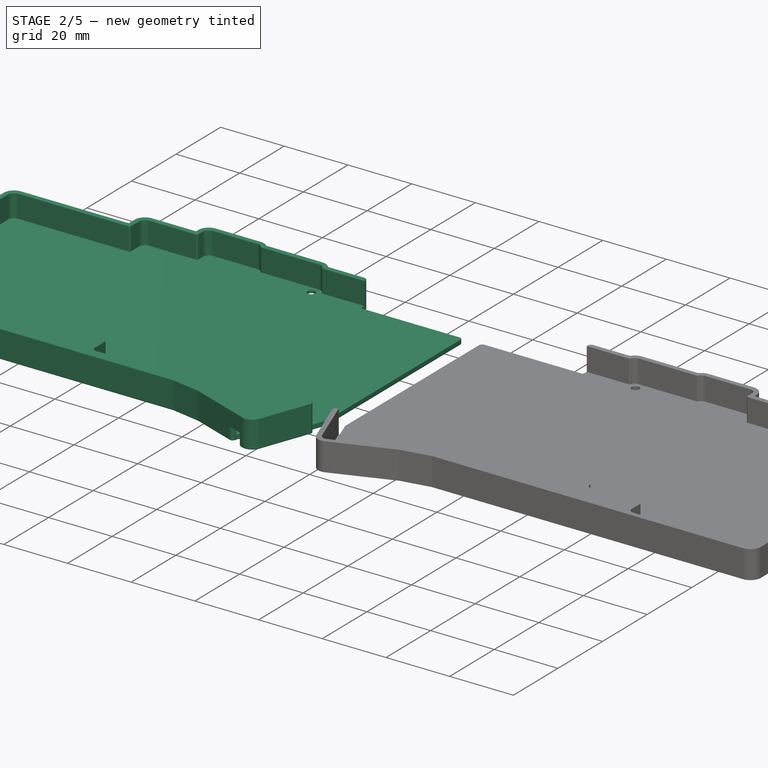
[diagram: stage 2 of 5 — iso view after this stage's code; geometry added in this stage tinted green]
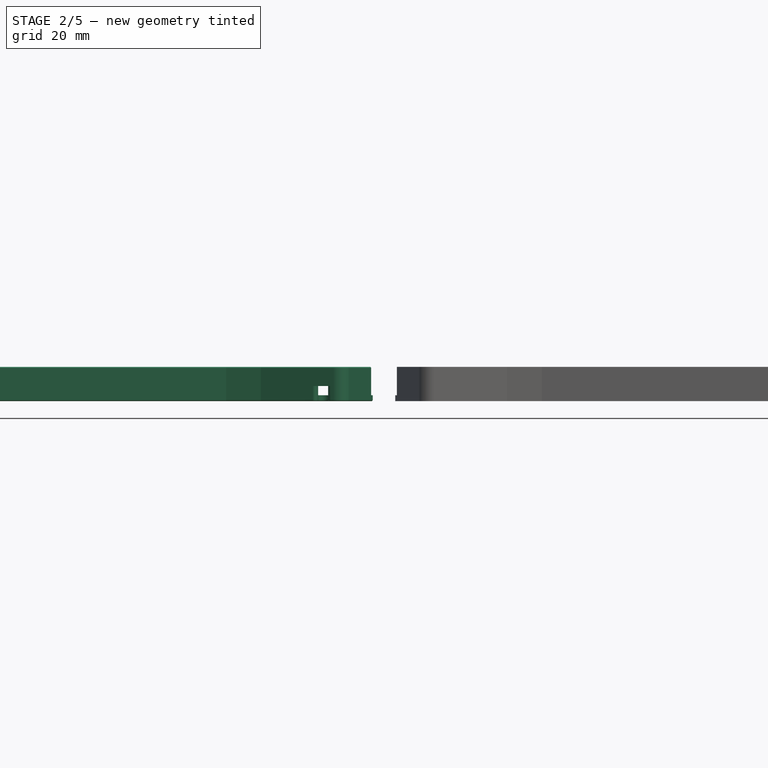
[diagram: stage 2 of 5 — front view after this stage's code; geometry added in this stage tinted green]
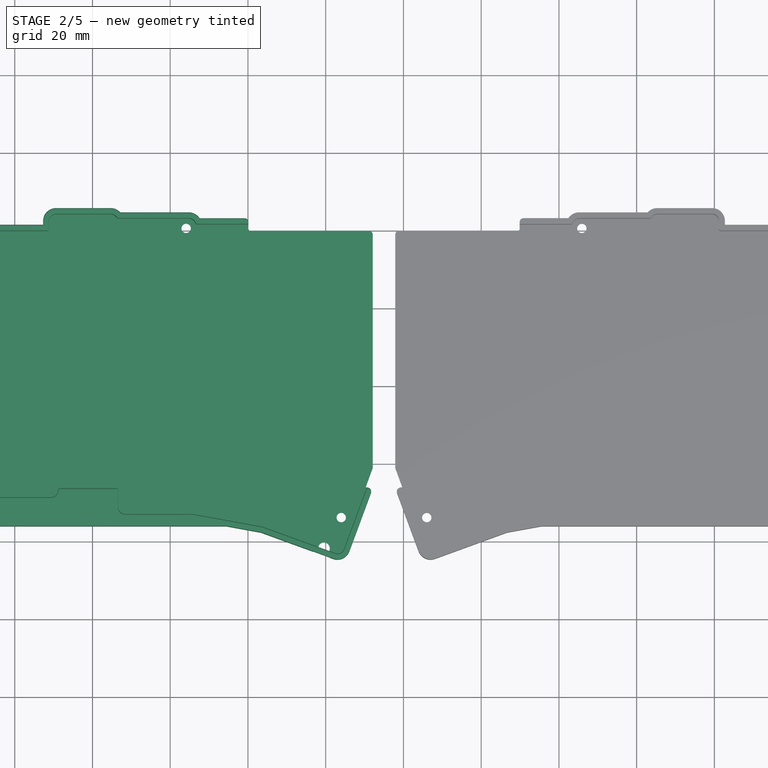
[diagram: stage 2 of 5 — top view after this stage's code; geometry added in this stage tinted green]
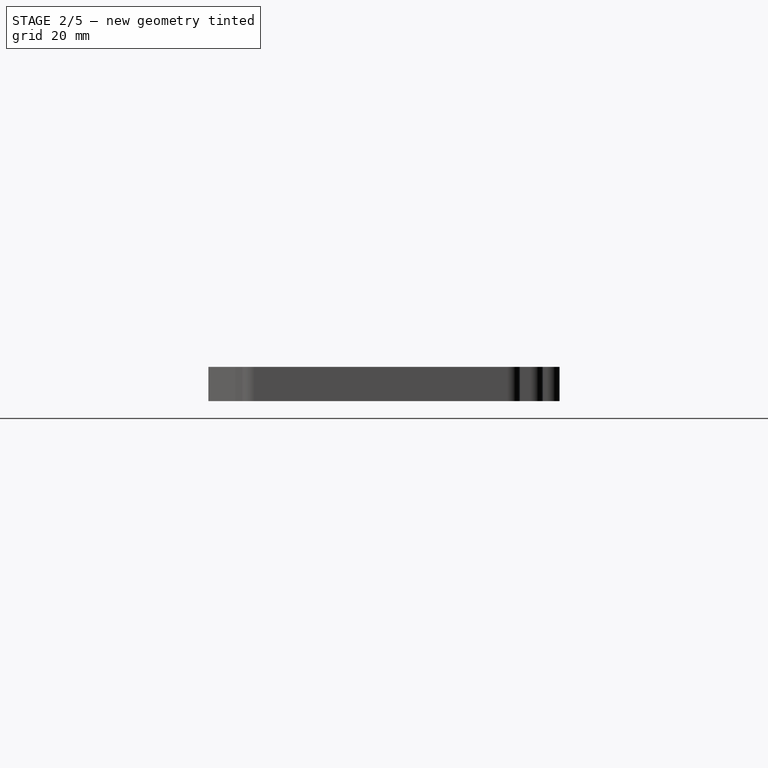
[diagram: stage 2 of 5 — right view after this stage's code; geometry added in this stage tinted green]
FEATURE [Sketcher::SketchObject] Sketch028  label="top-plate001"
  ArcFitTolerance = 1e-06
  ExternalTypes = [0]
  FullyConstrained = true
  MakeInternals = false
  Placement = pos=(0,0,6.6e-15) rot=(0,0,1;0rad)
  _ExternalGeoVersion = 0
  sketch-geometry (128):
    g0: ArcOfCircle CenterX=45.3 CenterY=2.4 CenterZ=0 NormalX=-1e-16 NormalY=0 NormalZ=1 AngleXU=1.5708 Radius=1.5 StartAngle=0 EndAngle=1.22777
    g1: LineSegment StartX=59.4 StartY=3.9 StartZ=0 EndX=45.3 EndY=3.9 EndZ=0
    g2: LineSegment StartX=43.8874 StartY=2.9045 StartZ=0 EndX=43.8874 EndY=2.8 EndZ=0
    g3: ArcOfCircle CenterX=59.4 CenterY=2.4 CenterZ=0 NormalX=-1e-16 NormalY=0 NormalZ=1 AngleXU=3.90995e-07 Radius=1.5 StartAngle=0 EndAngle=1.5708
    g4: LineSegment StartX=60.9 StartY=-0.4 StartZ=0 EndX=60.9 EndY=2.4 EndZ=0
    g5: LineSegment StartX=76.4 StartY=-0.4 StartZ=0 EndX=60.9 EndY=-0.4 EndZ=0
    g6: ArcOfCircle CenterX=76.4 CenterY=-1.9 CenterZ=0 NormalX=-1e-16 NormalY=0 NormalZ=1 AngleXU=3.90995e-07 Radius=1.5 StartAngle=0 EndAngle=1.5708
    g7: LineSegment StartX=77.9 StartY=-6.3 StartZ=0 EndX=77.9 EndY=-1.9 EndZ=0
    g8: LineSegment StartX=96.4 StartY=-6.3 StartZ=0 EndX=77.9 EndY=-6.3 EndZ=0
    g9: ArcOfCircle CenterX=96.4 CenterY=-7.8 CenterZ=0 NormalX=-1e-16 NormalY=0 NormalZ=1 AngleXU=3.90995e-07 Radius=1.5 StartAngle=0 EndAngle=1.5708
    g10: LineSegment StartX=97.9 StartY=-59.8 StartZ=0 EndX=97.9 EndY=-7.8 EndZ=0
    g11: LineSegment StartX=97.9 StartY=-72.8 StartZ=0 EndX=97.9 EndY=-59.8 EndZ=0
    g12: ArcOfCircle CenterX=96.4 CenterY=-72.8 CenterZ=0 NormalX=-1e-16 NormalY=0 NormalZ=1 AngleXU=-1.5708 Radius=1.5 StartAngle=0 EndAngle=1.5708
    g13: LineSegment StartX=78 StartY=-74.3 StartZ=0 EndX=96.4 EndY=-74.3 EndZ=0
    g14: ArcOfCircle CenterX=78 CenterY=-72.8 CenterZ=0 NormalX=-1e-16 NormalY=0 NormalZ=1 AngleXU=-3.14159 Radius=1.5 StartAngle=0 EndAngle=1.5708
    g15: LineSegment StartX=76.5 StartY=-68.4 StartZ=0 EndX=76.5 EndY=-72.8 EndZ=0
    g16: LineSegment StartX=60.7 StartY=-68.4 StartZ=0 EndX=76.5 EndY=-68.4 EndZ=0
    g17: ArcOfCircle CenterX=60.7 CenterY=-66.9 CenterZ=0 NormalX=-1e-16 NormalY=0 NormalZ=1 AngleXU=-3.14159 Radius=1.5 StartAngle=0 EndAngle=1.5708
    g18: LineSegment StartX=59.2 StartY=-66.1 StartZ=0 EndX=59.2 EndY=-66.9 EndZ=0
    g19: LineSegment StartX=43.1 StartY=-66.1 StartZ=0 EndX=59.2 EndY=-66.1 EndZ=0
    g20: LineSegment StartX=43.1 StartY=-71.2 StartZ=0 EndX=43.1 EndY=-66.1 EndZ=0
    g21: ArcOfCircle CenterX=41.6 CenterY=-71.2 CenterZ=0 NormalX=-1e-16 NormalY=0 NormalZ=1 AngleXU=-1.5708 Radius=1.5 StartAngle=0 EndAngle=1.5708
    g22: LineSegment StartX=41.4 StartY=-72.7 StartZ=0 EndX=41.6 EndY=-72.7 EndZ=0
    g23: LineSegment StartX=24.227 StartY=-72.7043 StartZ=0 EndX=41.4 EndY=-72.7 EndZ=0
    g24: LineSegment StartX=6.18739 StartY=-75.9853 StartZ=0 EndX=24.227 EndY=-72.7043 EndZ=0
    g25: LineSegment StartX=-12.4977 StartY=-82.7894 StartZ=0 EndX=6.18739 EndY=-75.9853 EndZ=0
    g26: ArcOfCircle CenterX=-13.0109 CenterY=-81.3798 CenterZ=0 NormalX=-1e-16 NormalY=0 NormalZ=1 AngleXU=-2.78723 Radius=1.50005 StartAngle=0 EndAngle=1.56562
    g27: LineSegment StartX=-20.3 StartY=-66 StartZ=0 EndX=-14.4178 EndY=-81.9004 EndZ=0
    g28: LineSegment StartX=-9.1 StartY=-61.9235 StartZ=0 EndX=-20.3 EndY=-66 EndZ=0
    g29: LineSegment StartX=-9.1 StartY=-61 StartZ=0 EndX=-9.1 EndY=-61.9235 EndZ=0
    g30: LineSegment StartX=-9.1 StartY=-36.9 StartZ=0 EndX=-9.1 EndY=-61 EndZ=0
    g31: LineSegment StartX=9.9 StartY=-36.9 StartZ=0 EndX=-9.1 EndY=-36.9 EndZ=0
    g32: LineSegment StartX=9.9 StartY=1.3 StartZ=0 EndX=9.9 EndY=-36.9 EndZ=0
    g33: LineSegment StartX=23.7 StartY=1.3 StartZ=0 EndX=9.9 EndY=1.3 EndZ=0
    g34: ArcOfCircle CenterX=25.2 CenterY=1.3 CenterZ=0 NormalX=-1e-16 NormalY=0 NormalZ=1 AngleXU=1.5708 Radius=1.5 StartAngle=0 EndAngle=1.5708
    g35: LineSegment StartX=43.8874 StartY=2.8 StartZ=0 EndX=25.2 EndY=2.8 EndZ=0
    g36: LineSegment StartX=93.5 StartY=-72.8 StartZ=0 EndX=79.3 EndY=-72.8 EndZ=0
    g37: LineSegment StartX=93.5 StartY=-58.8 StartZ=0 EndX=93.5 EndY=-72.8 EndZ=0
    g38: LineSegment StartX=79.3 StartY=-58.8 StartZ=0 EndX=93.5 EndY=-58.8 EndZ=0
    g39: LineSegment StartX=79.3 StartY=-72.8 StartZ=0 EndX=79.3 EndY=-58.8 EndZ=0
    g40: LineSegment StartX=76.5 StartY=-66.85 StartZ=0 EndX=62.3 EndY=-66.85 EndZ=0
    g41: LineSegment StartX=76.5 StartY=-52.85 StartZ=0 EndX=76.5 EndY=-66.85 EndZ=0
    g42: LineSegment StartX=62.3 StartY=-52.85 StartZ=0 EndX=76.5 EndY=-52.85 EndZ=0
    g43: LineSegment StartX=62.3 StartY=-66.85 StartZ=0 EndX=62.3 EndY=-52.85 EndZ=0
    g44: Circle CenterX=95.6 CenterY=-57.3 CenterZ=0 NormalX=-1e-16 NormalY=0 NormalZ=1 AngleXU=-1.5708 Radius=1.1
    g45: LineSegment StartX=93.5 StartY=-55.8 StartZ=0 EndX=79.3 EndY=-55.8 EndZ=0
    g46: LineSegment StartX=93.5 StartY=-41.8 StartZ=0 EndX=93.5 EndY=-55.8 EndZ=0
    g47: LineSegment StartX=79.3 StartY=-41.8 StartZ=0 EndX=93.5 EndY=-41.8 EndZ=0
    g48: LineSegment StartX=79.3 StartY=-55.8 StartZ=0 EndX=79.3 EndY=-41.8 EndZ=0
    g49: LineSegment StartX=76.5 StartY=-49.85 StartZ=0 EndX=62.3 EndY=-49.85 EndZ=0
    g50: LineSegment StartX=76.5 StartY=-35.85 StartZ=0 EndX=76.5 EndY=-49.85 EndZ=0
    g51: LineSegment StartX=62.3 StartY=-35.85 StartZ=0 EndX=76.5 EndY=-35.85 EndZ=0
    g52: LineSegment StartX=62.3 StartY=-49.85 StartZ=0 EndX=62.3 EndY=-35.85 EndZ=0
    g53: LineSegment StartX=59.5 StartY=-62.6 StartZ=0 EndX=45.3 EndY=-62.6 EndZ=0
    g54: LineSegment StartX=59.5 StartY=-48.6 StartZ=0 EndX=59.5 EndY=-62.6 EndZ=0
    g55: LineSegment StartX=45.3 StartY=-48.6 StartZ=0 EndX=59.5 EndY=-48.6 EndZ=0
    g56: LineSegment StartX=45.3 StartY=-62.6 StartZ=0 EndX=45.3 EndY=-48.6 EndZ=0
    g57: LineSegment StartX=39.95 StartY=-71.1 StartZ=0 EndX=25.75 EndY=-71.1 EndZ=0
    g58: LineSegment StartX=39.95 StartY=-57.1 StartZ=0 EndX=39.95 EndY=-71.1 EndZ=0
    g59: LineSegment StartX=25.75 StartY=-57.1 StartZ=0 EndX=39.95 EndY=-57.1 EndZ=0
    g60: LineSegment StartX=25.75 StartY=-71.1 StartZ=0 EndX=25.75 EndY=-57.1 EndZ=0
    g61: LineSegment StartX=21.8608 StartY=-71.3659 StartZ=0 EndX=7.87653 EndY=-73.8317 EndZ=0
    g62: LineSegment StartX=19.4297 StartY=-57.5786 StartZ=0 EndX=21.8608 EndY=-71.3659 EndZ=0
    g63: LineSegment StartX=5.44545 StartY=-60.0444 StartZ=0 EndX=19.4297 EndY=-57.5786 EndZ=0
    g64: LineSegment StartX=7.87653 StartY=-73.8317 StartZ=0 EndX=5.44545 EndY=-60.0444 EndZ=0
    g65: LineSegment StartX=4.35879 StartY=-75.0546 StartZ=0 EndX=-8.98485 EndY=-79.9113 EndZ=0
    g66: LineSegment StartX=-0.429495 StartY=-61.8989 StartZ=0 EndX=4.35879 EndY=-75.0546 EndZ=0
    g67: LineSegment StartX=-13.7731 StartY=-66.7556 StartZ=0 EndX=-0.429495 EndY=-61.8989 EndZ=0
    g68: LineSegment StartX=-8.98485 StartY=-79.9113 StartZ=0 EndX=-13.7731 EndY=-66.7556 EndZ=0
    g69: Circle CenterX=-14 CenterY=-73.8 CenterZ=0 NormalX=-1e-16 NormalY=0 NormalZ=1 AngleXU=-1.5708 Radius=1.1
    g70: LineSegment StartX=42.5 StartY=-47.725 StartZ=0 EndX=28.3 EndY=-47.725 EndZ=0
    g71: LineSegment StartX=42.5 StartY=-33.725 StartZ=0 EndX=42.5 EndY=-47.725 EndZ=0
    g72: LineSegment StartX=28.3 StartY=-33.725 StartZ=0 EndX=42.5 EndY=-33.725 EndZ=0
    g73: LineSegment StartX=28.3 StartY=-47.725 StartZ=0 EndX=28.3 EndY=-33.725 EndZ=0
    g74: LineSegment StartX=25.5 StartY=-49.85 StartZ=0 EndX=11.3 EndY=-49.85 EndZ=0
    g75: LineSegment StartX=25.5 StartY=-35.85 StartZ=0 EndX=25.5 EndY=-49.85 EndZ=0
    g76: LineSegment StartX=11.3 StartY=-35.85 StartZ=0 EndX=25.5 EndY=-35.85 EndZ=0
    g77: LineSegment StartX=11.3 StartY=-49.85 StartZ=0 EndX=11.3 EndY=-35.85 EndZ=0
    g78: LineSegment StartX=8.5 StartY=-52.4 StartZ=0 EndX=-5.7 EndY=-52.4 EndZ=0
    g79: LineSegment StartX=8.5 StartY=-38.4 StartZ=0 EndX=8.5 EndY=-52.4 EndZ=0
    g80: LineSegment StartX=-5.7 StartY=-38.4 StartZ=0 EndX=8.5 EndY=-38.4 EndZ=0
    g81: LineSegment StartX=-5.7 StartY=-52.4 StartZ=0 EndX=-5.7 EndY=-38.4 EndZ=0
    g82: LineSegment StartX=93.5 StartY=-38.8 StartZ=0 EndX=79.3 EndY=-38.8 EndZ=0
    g83: LineSegment StartX=93.5 StartY=-24.8 StartZ=0 EndX=93.5 EndY=-38.8 EndZ=0
    g84: LineSegment StartX=79.3 StartY=-24.8 StartZ=0 EndX=93.5 EndY=-24.8 EndZ=0
    g85: LineSegment StartX=79.3 StartY=-38.8 StartZ=0 EndX=79.3 EndY=-24.8 EndZ=0
    g86: Circle CenterX=95.6 CenterY=-23.3 CenterZ=0 NormalX=-1e-16 NormalY=0 NormalZ=1 AngleXU=-1.5708 Radius=1.1
    g87: LineSegment StartX=76.5 StartY=-32.85 StartZ=0 EndX=62.3 EndY=-32.85 EndZ=0
    g88: LineSegment StartX=76.5 StartY=-18.85 StartZ=0 EndX=76.5 EndY=-32.85 EndZ=0
    g89: LineSegment StartX=62.3 StartY=-18.85 StartZ=0 EndX=76.5 EndY=-18.85 EndZ=0
    g90: LineSegment StartX=62.3 StartY=-32.85 StartZ=0 EndX=62.3 EndY=-18.85 EndZ=0
    g91: LineSegment StartX=59.5 StartY=-45.6 StartZ=0 EndX=45.3 EndY=-45.6 EndZ=0
    g92: LineSegment StartX=59.5 StartY=-31.6 StartZ=0 EndX=59.5 EndY=-45.6 EndZ=0
    g93: LineSegment StartX=45.3 StartY=-31.6 StartZ=0 EndX=59.5 EndY=-31.6 EndZ=0
    g94: LineSegment StartX=45.3 StartY=-45.6 StartZ=0 EndX=45.3 EndY=-31.6 EndZ=0
    g95: LineSegment StartX=59.5 StartY=-28.6 StartZ=0 EndX=45.3 EndY=-28.6 EndZ=0
    g96: LineSegment StartX=59.5 StartY=-14.6 StartZ=0 EndX=59.5 EndY=-28.6 EndZ=0
    g97: LineSegment StartX=45.3 StartY=-14.6 StartZ=0 EndX=59.5 EndY=-14.6 EndZ=0
    g98: LineSegment StartX=45.3 StartY=-28.6 StartZ=0 EndX=45.3 EndY=-14.6 EndZ=0
    g99: LineSegment StartX=93.5 StartY=-21.8 StartZ=0 EndX=79.3 EndY=-21.8 EndZ=0
    g100: LineSegment StartX=93.5 StartY=-7.8 StartZ=0 EndX=93.5 EndY=-21.8 EndZ=0
    g101: LineSegment StartX=79.3 StartY=-7.8 StartZ=0 EndX=93.5 EndY=-7.8 EndZ=0
    g102: LineSegment StartX=79.3 StartY=-21.8 StartZ=0 EndX=79.3 EndY=-7.8 EndZ=0
    g103: LineSegment StartX=76.5 StartY=-15.85 StartZ=0 EndX=62.3 EndY=-15.85 EndZ=0
    g104: LineSegment StartX=76.5 StartY=-1.85 StartZ=0 EndX=76.5 EndY=-15.85 EndZ=0
    g105: LineSegment StartX=62.3 StartY=-1.85 StartZ=0 EndX=76.5 EndY=-1.85 EndZ=0
    g106: LineSegment StartX=62.3 StartY=-15.85 StartZ=0 EndX=62.3 EndY=-1.85 EndZ=0
    g107: LineSegment StartX=59.5 StartY=-11.6 StartZ=0 EndX=45.3 EndY=-11.6 EndZ=0
    g108: LineSegment StartX=59.5 StartY=2.4 StartZ=0 EndX=59.5 EndY=-11.6 EndZ=0
    g109: LineSegment StartX=45.3 StartY=2.4 StartZ=0 EndX=59.5 EndY=2.4 EndZ=0
    g110: LineSegment StartX=45.3 StartY=-11.6 StartZ=0 EndX=45.3 EndY=2.4 EndZ=0
    g111: LineSegment StartX=42.5 StartY=-30.725 StartZ=0 EndX=28.3 EndY=-30.725 EndZ=0
    g112: LineSegment StartX=42.5 StartY=-16.725 StartZ=0 EndX=42.5 EndY=-30.725 EndZ=0
    g113: LineSegment StartX=28.3 StartY=-16.725 StartZ=0 EndX=42.5 EndY=-16.725 EndZ=0
    g114: LineSegment StartX=28.3 StartY=-30.725 StartZ=0 EndX=28.3 EndY=-16.725 EndZ=0
    g115: LineSegment StartX=25.5 StartY=-32.85 StartZ=0 EndX=11.3 EndY=-32.85 EndZ=0
    g116: LineSegment StartX=25.5 StartY=-18.85 StartZ=0 EndX=25.5 EndY=-32.85 EndZ=0
    g117: LineSegment StartX=11.3 StartY=-18.85 StartZ=0 EndX=25.5 EndY=-18.85 EndZ=0
    g118: LineSegment StartX=11.3 StartY=-32.85 StartZ=0 EndX=11.3 EndY=-18.85 EndZ=0
    g119: LineSegment StartX=25.5 StartY=-15.85 StartZ=0 EndX=11.3 EndY=-15.85 EndZ=0
    g120: LineSegment StartX=25.5 StartY=-1.85 StartZ=0 EndX=25.5 EndY=-15.85 EndZ=0
    g121: LineSegment StartX=11.3 StartY=-1.85 StartZ=0 EndX=25.5 EndY=-1.85 EndZ=0
    g122: LineSegment StartX=11.3 StartY=-15.85 StartZ=0 EndX=11.3 EndY=-1.85 EndZ=0
    g123: LineSegment StartX=42.5 StartY=-13.725 StartZ=0 EndX=28.3 EndY=-13.725 EndZ=0
    g124: LineSegment StartX=42.5 StartY=0.275 StartZ=0 EndX=42.5 EndY=-13.725 EndZ=0
    g125: LineSegment StartX=28.3 StartY=0.275 StartZ=0 EndX=42.5 EndY=0.275 EndZ=0
    g126: LineSegment StartX=28.3 StartY=-13.725 StartZ=0 EndX=28.3 EndY=0.275 EndZ=0
    g127: Circle CenterX=25.9 CenterY=0.6 CenterZ=0 NormalX=-1e-16 NormalY=0 NormalZ=1 AngleXU=-1.5708 Radius=1.1
  constraints (252):
    c: Block(g0)
    c: Block(g1)
    c: Block(g2)
    c: Block(g3)
    c: Block(g4)
    c: Block(g5)
    c: Block(g6)
    c: Block(g7)
    c: Block(g8)
    c: Block(g9)
    c: Block(g10)
    c: Block(g11)
    c: Block(g12)
    c: Block(g13)
    c: Block(g14)
    c: Block(g15)
    c: Block(g16)
    c: Block(g17)
    c: Block(g18)
    c: Block(g19)
    c: Block(g20)
    c: Block(g21)
    c: Block(g22)
    c: Block(g23)
    c: Block(g24)
    c: Block(g25)
    c: Block(g26)
    c: Block(g27)
    c: Block(g28)
    c: Block(g29)
    c: Block(g30)
    c: Block(g31)
    c: Block(g32)
    c: Block(g33)
    c: Block(g34)
    c: Block(g35)
    c: Block(g36)
    c: Block(g37)
    c: Block(g38)
    c: Block(g39)
    c: Block(g40)
    c: Block(g41)
    c: Block(g42)
    c: Block(g43)
    c: Block(g44)
    c: Block(g45)
    c: Block(g46)
    c: Block(g47)
    c: Block(g48)
    c: Block(g49)
    c: Block(g50)
    c: Block(g51)
    c: Block(g52)
    c: Block(g53)
    c: Block(g54)
    c: Block(g55)
    c: Block(g56)
    c: Block(g57)
    c: Block(g58)
    c: Block(g59)
    c: Block(g60)
    c: Block(g61)
    c: Block(g62)
    c: Block(g63)
    c: Block(g64)
    c: Block(g65)
    c: Block(g66)
    c: Block(g67)
    c: Block(g68)
    c: Block(g69)
    c: Block(g70)
    c: Block(g71)
    c: Block(g72)
    c: Block(g73)
    c: Block(g74)
    c: Block(g75)
    c: Block(g76)
    c: Block(g77)
    c: Block(g78)
    c: Block(g79)
    c: Block(g80)
    c: Block(g81)
    c: Block(g82)
    c: Block(g83)
    c: Block(g84)
    c: Block(g85)
    c: Block(g86)
    c: Block(g87)
    c: Block(g88)
    c: Block(g89)
    c: Block(g90)
    c: Block(g91)
    c: Block(g92)
    c: Block(g93)
    c: Block(g94)
    c: Block(g95)
    c: Block(g96)
    c: Block(g97)
    c: Block(g98)
    c: Block(g99)
    c: Block(g100)
    c: Block(g101)
    c: Block(g102)
    c: Block(g103)
    c: Block(g104)
    c: Block(g105)
    c: Block(g106)
    c: Block(g107)
    c: Block(g108)
    c: Block(g109)
    c: Block(g110)
    c: Block(g111)
    c: Block(g112)
    c: Block(g113)
    c: Block(g114)
    c: Block(g115)
    c: Block(g116)
    c: Block(g117)
    c: Block(g118)
    c: Block(g119)
    c: Block(g120)
    c: Block(g121)
    c: Block(g122)
    c: Block(g123)
    c: Block(g124)
    c: Block(g125)
    c: Block(g126)
    c: Block(g127)
    c: Coincident(g27,g28)
    c: Coincident(g26,g27)
    c: Coincident(g67,g68)
    c: Coincident(g25,g26)
    c: Coincident(g28,g29)
    c: Coincident(g29,g30)
    c: Coincident(g30,g31)
    c: Coincident(g65,g68)
    c: Coincident(g78,g81)
    c: Coincident(g80,g81)
    c: Coincident(g66,g67)
    c: Coincident(g65,g66)
    c: Coincident(g63,g64)
    c: Coincident(g24,g25)
    c: Coincident(g61,g64)
    c: Coincident(g78,g79)
    c: Coincident(g79,g80)
    c: Coincident(g31,g32)
    c: Coincident(g32,g33)
    c: Coincident(g74,g77)
    c: Coincident(g76,g77)
    c: Coincident(g115,g118)
    c: Coincident(g117,g118)
    c: Coincident(g119,g122)
    c: Coincident(g121,g122)
    c: Coincident(g62,g63)
    c: Coincident(g61,g62)
    c: Coincident(g33,g34)
    c: Coincident(g23,g24)
    c: Coincident(g34,g35)
    c: Coincident(g74,g75)
    c: Coincident(g75,g76)
    c: Coincident(g115,g116)
    c: Coincident(g116,g117)
    c: Coincident(g119,g120)
    c: Coincident(g120,g121)
    c: Coincident(g57,g60)
    c: Coincident(g59,g60)
    c: Coincident(g70,g73)
    c: Coincident(g72,g73)
    c: Coincident(g111,g114)
    c: Coincident(g113,g114)
    c: Coincident(g123,g126)
    c: Coincident(g125,g126)
    c: Coincident(g57,g58)
    c: Coincident(g58,g59)
    c: Coincident(g22,g23)
    c: Coincident(g21,g22)
    c: Coincident(g70,g71)
    c: Coincident(g71,g72)
    c: Coincident(g111,g112)
    c: Coincident(g112,g113)
    c: Coincident(g123,g124)
    c: Coincident(g124,g125)
    c: Coincident(g20,g21)
    c: Coincident(g19,g20)
    c: Coincident(g2,g35)
    c: Coincident(g0,g2)
    c: Coincident(g53,g56)
    c: Coincident(g55,g56)
    c: Coincident(g91,g94)
    c: Coincident(g93,g94)
    c: Coincident(g95,g98)
    c: Coincident(g97,g98)
    c: Coincident(g107,g110)
    c: Coincident(g109,g110)
    c: Coincident(g0,g1)
    c: Coincident(g17,g18)
    c: Coincident(g18,g19)
    c: Coincident(g1,g3)
    c: Coincident(g53,g54)
    c: Coincident(g54,g55)
    c: Coincident(g91,g92)
    c: Coincident(g92,g93)
    c: Coincident(g95,g96)
    c: Coincident(g96,g97)
    c: Coincident(g107,g108)
    c: Coincident(g108,g109)
    c: Coincident(g16,g17)
    c: Coincident(g4,g5)
    c: Coincident(g3,g4)
    c: Coincident(g40,g43)
    c: Coincident(g42,g43)
    c: Coincident(g49,g52)
    c: Coincident(g51,g52)
    c: Coincident(g87,g90)
    c: Coincident(g89,g90)
    c: Coincident(g103,g106)
    c: Coincident(g105,g106)
    c: Coincident(g5,g6)
    c: Coincident(g14,g15)
    c: Coincident(g15,g16)
    c: Coincident(g40,g41)
    c: Coincident(g41,g42)
    c: Coincident(g49,g50)
    c: Coincident(g50,g51)
    c: Coincident(g87,g88)
    c: Coincident(g88,g89)
    c: Coincident(g103,g104)
    c: Coincident(g104,g105)
    c: Coincident(g7,g8)
    c: Coincident(g6,g7)
    c: Coincident(g13,g14)
    c: Coincident(g36,g39)
    c: Coincident(g38,g39)
    c: Coincident(g45,g48)
    c: Coincident(g47,g48)
    c: Coincident(g82,g85)
    c: Coincident(g84,g85)
    c: Coincident(g99,g102)
    c: Coincident(g101,g102)
    c: Coincident(g36,g37)
    c: Coincident(g37,g38)
    c: Coincident(g45,g46)
    c: Coincident(g46,g47)
    c: Coincident(g82,g83)
    c: Coincident(g83,g84)
    c: Coincident(g99,g100)
    c: Coincident(g100,g101)
    c: Coincident(g12,g13)
    c: Coincident(g8,g9)
    c: Coincident(g11,g12)
    c: Coincident(g10,g11)
    c: Coincident(g9,g10)
FEATURE [Sketcher::SketchObject] Sketch029
  ArcFitTolerance = 1e-06
  AttachmentOffset = pos=(0,0,-5.1) rot=(0,0,1;0rad)
  AttachmentSupport = -> [XY_Plane005]
  ExternalTypes = [0]
  FullyConstrained = false
  MakeInternals = false
  MapMode = 5
  Placement = pos=(0,0,-5.1) rot=(0,0,1;0rad)
  _ExternalGeoVersion = 0
  sketch-geometry (65):
    g0: ArcOfCircle [constr] CenterX=45.3 CenterY=2.4 CenterZ=0 NormalX=-1e-16 NormalY=0 NormalZ=1 AngleXU=1.5708 Radius=1.5 StartAngle=0 EndAngle=1.22777
    g1: LineSegment [constr] StartX=59.4 StartY=3.9 StartZ=0 EndX=45.3 EndY=3.9 EndZ=0
    g2: LineSegment [constr] StartX=43.8874 StartY=2.9045 StartZ=0 EndX=43.8874 EndY=2.8 EndZ=0
    g3: ArcOfCircle [constr] CenterX=59.4 CenterY=2.4 CenterZ=0 NormalX=-1e-16 NormalY=0 NormalZ=1 AngleXU=3.90995e-07 Radius=1.5 StartAngle=0 EndAngle=1.5708
    g4: LineSegment [constr] StartX=60.9 StartY=-0.4 StartZ=0 EndX=60.9 EndY=2.4 EndZ=0
    g5: LineSegment [constr] StartX=76.4 StartY=-0.4 StartZ=0 EndX=60.9 EndY=-0.4 EndZ=0
    g6: ArcOfCircle [constr] CenterX=76.4 CenterY=-1.9 CenterZ=0 NormalX=-1e-16 NormalY=0 NormalZ=1 AngleXU=3.90995e-07 Radius=1.5 StartAngle=0 EndAngle=1.5708
    g7: LineSegment [constr] StartX=77.9 StartY=-6.3 StartZ=0 EndX=77.9 EndY=-1.9 EndZ=0
    g8: LineSegment [constr] StartX=96.4 StartY=-6.3 StartZ=0 EndX=77.9 EndY=-6.3 EndZ=0
    g9: ArcOfCircle [constr] CenterX=96.4 CenterY=-7.8 CenterZ=0 NormalX=-1e-16 NormalY=0 NormalZ=1 AngleXU=3.90995e-07 Radius=1.5 StartAngle=0 EndAngle=1.5708
    g10: LineSegment [constr] StartX=97.9 StartY=-59.8 StartZ=0 EndX=97.9 EndY=-7.8 EndZ=0
    g11: LineSegment [constr] StartX=97.9 StartY=-72.8 StartZ=0 EndX=97.9 EndY=-59.8 EndZ=0
    g12: ArcOfCircle [constr] CenterX=96.4 CenterY=-72.8 CenterZ=0 NormalX=-1e-16 NormalY=0 NormalZ=1 AngleXU=-1.5708 Radius=1.5 StartAngle=0 EndAngle=1.5708
    g13: LineSegment [constr] StartX=78 StartY=-74.3 StartZ=0 EndX=96.4 EndY=-74.3 EndZ=0
    g14: LineSegment [constr] StartX=6.18739 StartY=-75.9853 StartZ=0 EndX=15.4535 EndY=-74.3 EndZ=0
    g15: LineSegment [constr] StartX=-12.4977 StartY=-82.7894 StartZ=0 EndX=6.18739 EndY=-75.9853 EndZ=0
    g16: ArcOfCircle [constr] CenterX=-13.0109 CenterY=-81.3798 CenterZ=0 NormalX=-1e-16 NormalY=0 NormalZ=1 AngleXU=-2.78723 Radius=1.50005 StartAngle=0 EndAngle=1.56562
    g17: LineSegment [constr] StartX=-20.3 StartY=-66 StartZ=0 EndX=-14.4178 EndY=-81.9004 EndZ=0
    g18: LineSegment [constr] StartX=-9.1 StartY=-61.9235 StartZ=0 EndX=-20.3 EndY=-66 EndZ=0
    g19: LineSegment [constr] StartX=-9.1 StartY=-61 StartZ=0 EndX=-9.1 EndY=-61.9235 EndZ=0
    g20: LineSegment [constr] StartX=-9.1 StartY=-36.9 StartZ=0 EndX=-9.1 EndY=-61 EndZ=0
    g21: LineSegment [constr] StartX=9.9 StartY=-36.9 StartZ=0 EndX=-9.1 EndY=-36.9 EndZ=0
    g22: LineSegment [constr] StartX=9.9 StartY=1.3 StartZ=0 EndX=9.9 EndY=-36.9 EndZ=0
    g23: LineSegment [constr] StartX=23.7 StartY=1.3 StartZ=0 EndX=9.9 EndY=1.3 EndZ=0
    g24: ArcOfCircle [constr] CenterX=25.2 CenterY=1.3 CenterZ=0 NormalX=-1e-16 NormalY=0 NormalZ=1 AngleXU=1.5708 Radius=1.5 StartAngle=0 EndAngle=1.5708
    g25: LineSegment [constr] StartX=43.8874 StartY=2.8 StartZ=0 EndX=25.2 EndY=2.8 EndZ=0
    g26: LineSegment [constr] StartX=78 StartY=-74.3 StartZ=0 EndX=15.4535 EndY=-74.3 EndZ=0
    g27: LineSegment StartX=78 StartY=-76.1 StartZ=0 EndX=15.6159 EndY=-76.1 EndZ=0
    g28: LineSegment StartX=6.65976 StartY=-77.7289 StartZ=0 EndX=15.6159 EndY=-76.1 EndZ=0
    g29: LineSegment StartX=-11.8818 StartY=-84.4807 StartZ=0 EndX=6.65976 EndY=-77.7289 EndZ=0
    g30: ArcOfCircle CenterX=-13.0109 CenterY=-81.3798 CenterZ=0 NormalX=0 NormalY=0 NormalZ=1 AngleXU=-2.78723 Radius=3.30007 StartAngle=6.28318 EndAngle=7.84881
    g31: LineSegment StartX=-21.9882 StartY=-66.6245 StartZ=0 EndX=-16.106 EndY=-82.5249 EndZ=0
    g32: LineSegment [constr] StartX=-10.9 StartY=-60.6632 StartZ=0 EndX=-20.9156 EndY=-64.3086 EndZ=0
    g33: LineSegment [constr] StartX=-10.9 StartY=-36.9 StartZ=0 EndX=-10.9 EndY=-60.6632 EndZ=0
    g34: ArcOfCircle [constr] CenterX=-9.1 CenterY=-36.9 CenterZ=0 NormalX=0 NormalY=0 NormalZ=1 AngleXU=0 Radius=1.8 StartAngle=1.5708 EndAngle=3.14159
    g35: LineSegment [constr] StartX=8.1 StartY=-35.1 StartZ=0 EndX=-9.1 EndY=-35.1 EndZ=0
    g36: LineSegment [constr] StartX=8.1 StartY=1.3 StartZ=0 EndX=8.1 EndY=-35.1 EndZ=0
    g37: ArcOfCircle [constr] CenterX=9.9 CenterY=1.3 CenterZ=0 NormalX=0 NormalY=0 NormalZ=1 AngleXU=0 Radius=1.8 StartAngle=1.5708 EndAngle=3.14159
    g38: LineSegment [constr] StartX=22.4341 StartY=3.1 StartZ=0 EndX=9.9 EndY=3.1 EndZ=0
    g39: ArcOfCircle CenterX=25.2 CenterY=1.3 CenterZ=0 NormalX=0 NormalY=0 NormalZ=1 AngleXU=1.5708 Radius=3.3 StartAngle=0 EndAngle=0.993864
    g40: LineSegment StartX=42.8403 StartY=4.6 StartZ=0 EndX=25.2 EndY=4.6 EndZ=0
    g41: ArcOfCircle CenterX=45.3 CenterY=2.4 CenterZ=0 NormalX=0 NormalY=0 NormalZ=1 AngleXU=1.5708 Radius=3.3 StartAngle=0 EndAngle=0.841069
    g42: LineSegment StartX=59.4 StartY=5.7 StartZ=0 EndX=45.3 EndY=5.7 EndZ=0
    g43: ArcOfCircle CenterX=59.4 CenterY=2.4 CenterZ=0 NormalX=0 NormalY=0 NormalZ=1 AngleXU=3.90995e-07 Radius=3.3 StartAngle=-1.8e-15 EndAngle=1.5708
    g44: LineSegment StartX=62.7 StartY=1.4 StartZ=0 EndX=62.7 EndY=2.4 EndZ=0
    g45: LineSegment StartX=76.4 StartY=1.4 StartZ=0 EndX=62.7 EndY=1.4 EndZ=0
    g46: ArcOfCircle CenterX=76.4 CenterY=-1.9 CenterZ=0 NormalX=0 NormalY=0 NormalZ=1 AngleXU=3.90995e-07 Radius=3.3 StartAngle=-1.8e-15 EndAngle=1.5708
    g47: LineSegment StartX=79.7 StartY=-4.5 StartZ=0 EndX=79.7 EndY=-1.9 EndZ=0
    g48: LineSegment StartX=113.4 StartY=-4.5 StartZ=0 EndX=79.7 EndY=-4.5 EndZ=0
    g49: ArcOfCircle CenterX=113.4 CenterY=-7.8 CenterZ=0 NormalX=0 NormalY=0 NormalZ=1 AngleXU=3.90995e-07 Radius=3.3 StartAngle=6.28318 EndAngle=7.85398
    g50: LineSegment StartX=116.7 StartY=-59.8 StartZ=0 EndX=116.7 EndY=-7.8 EndZ=0
    g51: LineSegment StartX=116.7 StartY=-72.8 StartZ=0 EndX=116.7 EndY=-59.8 EndZ=0
    g52: ArcOfCircle CenterX=113.4 CenterY=-72.8 CenterZ=0 NormalX=0 NormalY=0 NormalZ=1 AngleXU=-1.5708 Radius=3.3 StartAngle=6.80165e-06 EndAngle=1.5708
    g53: LineSegment StartX=78 StartY=-76.1 StartZ=0 EndX=113.4 EndY=-76.1 EndZ=0
    g54: LineSegment [constr] StartX=8.1 StartY=1.3 StartZ=0 EndX=8.1 EndY=0 EndZ=0
    g55: LineSegment StartX=8.1 StartY=0 StartZ=0 EndX=-22.1 EndY=0 EndZ=0
    g56: LineSegment StartX=-22.1 StartY=0 StartZ=0 EndX=-22.1 EndY=-61.0545 EndZ=0
    g57: LineSegment StartX=-22.1 StartY=-61.0545 StartZ=0 EndX=-20.3 EndY=-66 EndZ=0
    g58: LineSegment StartX=-20.3 StartY=-66 StartZ=0 EndX=-21.9882 EndY=-66.6245 EndZ=0
    g59: LineSegment StartX=22.4341 StartY=3.1 StartZ=0 EndX=8.1 EndY=3.1 EndZ=0
    g60: LineSegment StartX=8.1 StartY=3.1 StartZ=0 EndX=8.1 EndY=0 EndZ=0
    g61: LineSegment [constr] StartX=113.4 StartY=-7.8 StartZ=0 EndX=113.4 EndY=-4.5 EndZ=0
    g62: LineSegment [constr] StartX=113.4 StartY=-7.8 StartZ=0 EndX=116.7 EndY=-7.8 EndZ=0
    g63: LineSegment [constr] StartX=113.4 StartY=-72.8 StartZ=0 EndX=116.7 EndY=-72.8 EndZ=0
    g64: LineSegment [constr] StartX=113.4 StartY=-72.8 StartZ=0 EndX=113.4 EndY=-76.1 EndZ=0
  constraints (123):
    c: Block(g0)
    c: Block(g1)
    c: Block(g2)
    c: Block(g3)
    c: Block(g4)
    c: Block(g5)
    c: Block(g6)
    c: Block(g7)
    c: Block(g8)
    c: Block(g9)
    c: Block(g10)
    c: Block(g11)
    c: Block(g12)
    c: Block(g13)
    c: Block(g14)
    c: Block(g15)
    c: Block(g16)
    c: Block(g17)
    c: Block(g18)
    c: Block(g19)
    c: Block(g20)
    c: Block(g21)
    c: Block(g22)
    c: Block(g23)
    c: Block(g24)
    c: Block(g25)
    c: Coincident(g17,g18)
    c: Coincident(g16,g17)
    c: Coincident(g15,g16)
    c: Coincident(g18,g19)
    c: Coincident(g19,g20)
    c: Coincident(g20,g21)
    c: Coincident(g14,g15)
    c: Coincident(g21,g22)
    c: Coincident(g22,g23)
    c: Coincident(g23,g24)
    c: Coincident(g24,g25)
    c: Coincident(g2,g25)
    c: Coincident(g0,g2)
    c: Coincident(g0,g1)
    c: Coincident(g1,g3)
    c: Coincident(g4,g5)
    c: Coincident(g3,g4)
    c: Coincident(g5,g6)
    c: Coincident(g7,g8)
    c: Coincident(g6,g7)
    c: Coincident(g12,g13)
    c: Coincident(g8,g9)
    c: Coincident(g11,g12)
    c: Coincident(g10,g11)
    c: Coincident(g9,g10)
    c: Coincident(g26,g13)
    c: Horizontal(g26)
    c: Coincident(g14,g26)
    c: Coincident(g27,g28)
    c: Coincident(g27,g53)
    c: Coincident(g28,g29)
    c: Coincident(g32,g33)
    c: Tangent(g33,g34) = -1.5708
    c: Tangent(g34,g35) = -1.5708
    c: Coincident(g35,g36)
    c: Tangent(g36,g37) = -1.5708
    c: Tangent(g37,g38) = -1.5708
    c: Coincident(g38,g39)
    c: Coincident(g40,g41)
    c: Coincident(g44,g45)
    c: Coincident(g47,g48)
    c: Coincident(g50,g51)
    c: Coincident(g54,g36)
    c: PointOnObject(g54,g-1)
    c: Vertical(g54)
    c: Coincident(g55,g54)
    c: PointOnObject(g55,g-1)
    c: Coincident(g56,g55)
    c: Vertical(g56)
    c: DistanceX(g55,g-1) = 22.1
    c: Coincident(g57,g56)
    c: Coincident(g57,g17)
    c: Angle(g18,g57) = 1.5708
    c: Coincident(g58,g17)
    c: Coincident(g58,g31)
    c: Coincident(g30,g31)
    c: Coincident(g29,g30)
    c: Coincident(g39,g40)
    c: Coincident(g41,g42)
    c: Coincident(g42,g43)
    c: Coincident(g43,g44)
    c: Coincident(g45,g46)
    c: Coincident(g46,g47)
    c: Coincident(g52,g53)
    c: Coincident(g48,g49)
    c: Coincident(g51,g52)
    c: Coincident(g49,g50)
    c: Block(g38)
    c: Block(g36)
    c: Coincident(g59,g38)
    c: Horizontal(g59)
    c: Tangent(g59,g37)
    c: Coincident(g60,g59)
    c: Coincident(g60,g54)
    c: Vertical(g60)
    c: Block(g47)
    c: Block(g27)
    c: Radius(g49) = 3.3
    c: Radius(g52) = 3.3
    c: DistanceY(g51,g51) = 13
    c: DistanceY(g50,g50) = 52
    c: DistanceX(g48,g48) = 33.7
    c: Distance(g48,g-1) = 4.5
    c: DistanceY(g52,g-1) = 76.1
    c: Vertical(g51)
    c: Vertical(g50)
    c: Horizontal(g53)
    c: Coincident(g61,g49)
    c: Coincident(g61,g48)
    c: Vertical(g61)
    c: Coincident(g62,g49)
    c: Coincident(g62,g49)
    c: Horizontal(g62)
    c: Coincident(g63,g52)
    c: Coincident(g63,g51)
    c: Horizontal(g63)
    c: Vertical(g64)
FEATURE [PartDesign::Pad] Pad011
  Direction = (0,0,1)
  Length = 1.5
  Length2 = 7.3
  Profile = -> Sketch029
  ReferenceAxis = -> Sketch029 [N_Axis]
  Refine = true
  Reversed = true
  SideType = 1
  Suppressed = false
  Type = 0
  Type2 = 0
FEATURE [Sketcher::SketchObject] Sketch030  label="bottom-plate001"
  ArcFitTolerance = 1e-06
  ExternalTypes = [0]
  FullyConstrained = true
  MakeInternals = false
  Placement = pos=(0,0,6.6e-15) rot=(0,0,1;0rad)
  _ExternalGeoVersion = 0
  sketch-geometry (74):
    g0: ArcOfCircle CenterX=45.3 CenterY=2.4 CenterZ=0 NormalX=-1e-16 NormalY=0 NormalZ=1 AngleXU=1.5708 Radius=1.5 StartAngle=0 EndAngle=1.22777
    g1: LineSegment StartX=59.4 StartY=3.9 StartZ=0 EndX=45.3 EndY=3.9 EndZ=0
    g2: LineSegment StartX=43.8874 StartY=2.9045 StartZ=0 EndX=43.8874 EndY=2.8 EndZ=0
    g3: ArcOfCircle CenterX=59.4 CenterY=2.4 CenterZ=0 NormalX=-1e-16 NormalY=0 NormalZ=1 AngleXU=3.90995e-07 Radius=1.5 StartAngle=0 EndAngle=1.5708
    g4: LineSegment StartX=60.9 StartY=-0.4 StartZ=0 EndX=60.9 EndY=2.4 EndZ=0
    g5: LineSegment StartX=76.4 StartY=-0.4 StartZ=0 EndX=60.9 EndY=-0.4 EndZ=0
    g6: ArcOfCircle CenterX=76.4 CenterY=-1.9 CenterZ=0 NormalX=-1e-16 NormalY=0 NormalZ=1 AngleXU=3.90995e-07 Radius=1.5 StartAngle=0 EndAngle=1.5708
    g7: LineSegment StartX=77.9 StartY=-6.3 StartZ=0 EndX=77.9 EndY=-1.9 EndZ=0
    g8: LineSegment StartX=96.4 StartY=-6.3 StartZ=0 EndX=77.9 EndY=-6.3 EndZ=0
    g9: ArcOfCircle CenterX=96.4 CenterY=-7.8 CenterZ=0 NormalX=-1e-16 NormalY=0 NormalZ=1 AngleXU=3.90995e-07 Radius=1.5 StartAngle=0 EndAngle=1.5708
    g10: LineSegment StartX=97.9 StartY=-59.8 StartZ=0 EndX=97.9 EndY=-7.8 EndZ=0
    g11: LineSegment StartX=97.9 StartY=-72.8 StartZ=0 EndX=97.9 EndY=-59.8 EndZ=0
    g12: ArcOfCircle CenterX=96.4 CenterY=-72.8 CenterZ=0 NormalX=-1e-16 NormalY=0 NormalZ=1 AngleXU=-1.5708 Radius=1.5 StartAngle=0 EndAngle=1.5708
    g13: LineSegment StartX=78 StartY=-74.3 StartZ=0 EndX=96.4 EndY=-74.3 EndZ=0
    g14: ArcOfCircle CenterX=78 CenterY=-72.8 CenterZ=0 NormalX=-1e-16 NormalY=0 NormalZ=1 AngleXU=-3.14159 Radius=1.5 StartAngle=0 EndAngle=1.5708
    g15: LineSegment StartX=76.5 StartY=-68.4 StartZ=0 EndX=76.5 EndY=-72.8 EndZ=0
    g16: LineSegment StartX=68.6 StartY=-68.4 StartZ=0 EndX=76.5 EndY=-68.4 EndZ=0
    g17: LineSegment StartX=68.6 StartY=-69.9 StartZ=0 EndX=68.6 EndY=-68.4 EndZ=0
    g18: LineSegment StartX=75 StartY=-69.9 StartZ=0 EndX=68.6 EndY=-69.9 EndZ=0
    g19: LineSegment StartX=75 StartY=-72.8 StartZ=0 EndX=75 EndY=-69.9 EndZ=0
    g20: ArcOfCircle CenterX=73.5 CenterY=-72.8 CenterZ=0 NormalX=-1e-16 NormalY=0 NormalZ=1 AngleXU=-1.5708 Radius=1.5 StartAngle=0 EndAngle=1.5708
    g21: LineSegment StartX=46.1 StartY=-74.3 StartZ=0 EndX=73.5 EndY=-74.3 EndZ=0
    g22: ArcOfCircle CenterX=46.1 CenterY=-72.8 CenterZ=0 NormalX=-1e-16 NormalY=0 NormalZ=1 AngleXU=-3.14159 Radius=1.5 StartAngle=0 EndAngle=1.5708
    g23: LineSegment StartX=44.6 StartY=-67.6 StartZ=0 EndX=44.6 EndY=-72.8 EndZ=0
    g24: LineSegment StartX=49.65 StartY=-67.6 StartZ=0 EndX=44.6 EndY=-67.6 EndZ=0
    g25: LineSegment StartX=49.65 StartY=-66.1 StartZ=0 EndX=49.65 EndY=-67.6 EndZ=0
    g26: LineSegment StartX=43.1 StartY=-66.1 StartZ=0 EndX=49.65 EndY=-66.1 EndZ=0
    g27: LineSegment StartX=43.1 StartY=-71.2 StartZ=0 EndX=43.1 EndY=-66.1 EndZ=0
    g28: ArcOfCircle CenterX=41.6 CenterY=-71.2 CenterZ=0 NormalX=-1e-16 NormalY=0 NormalZ=1 AngleXU=-1.5708 Radius=1.5 StartAngle=0 EndAngle=1.5708
    g29: LineSegment StartX=41.4 StartY=-72.7 StartZ=0 EndX=41.6 EndY=-72.7 EndZ=0
    g30: LineSegment StartX=24.227 StartY=-72.7043 StartZ=0 EndX=41.4 EndY=-72.7 EndZ=0
    g31: LineSegment StartX=6.18739 StartY=-75.9853 StartZ=0 EndX=24.227 EndY=-72.7043 EndZ=0
    g32: LineSegment StartX=-12.4977 StartY=-82.7894 StartZ=0 EndX=6.18739 EndY=-75.9853 EndZ=0
    g33: ArcOfCircle CenterX=-13.011 CenterY=-81.3799 CenterZ=0 NormalX=-1e-16 NormalY=0 NormalZ=1 AngleXU=-2.78726 Radius=1.5 StartAngle=0 EndAngle=1.56568
    g34: LineSegment StartX=-22.1 StartY=-61.1344 StartZ=0 EndX=-14.4178 EndY=-81.9004 EndZ=0
    g35: LineSegment StartX=-22.1 StartY=0 StartZ=0 EndX=-22.1 EndY=-61.1344 EndZ=0
    g36: LineSegment StartX=-16.4 StartY=0 StartZ=0 EndX=-22.1 EndY=0 EndZ=0
    g37: LineSegment StartX=-16.4 StartY=-10.5 StartZ=0 EndX=-16.4 EndY=0 EndZ=0
    g38: LineSegment StartX=-14.8 StartY=-10.5 StartZ=0 EndX=-16.4 EndY=-10.5 EndZ=0
    g39: LineSegment StartX=-14.8 StartY=0 StartZ=0 EndX=-14.8 EndY=-10.5 EndZ=0
    g40: LineSegment StartX=-5 StartY=0 StartZ=0 EndX=-14.8 EndY=0 EndZ=0
    g41: LineSegment StartX=-5 StartY=-4 StartZ=0 EndX=-5 EndY=0 EndZ=0
    g42: LineSegment StartX=5 StartY=-4 StartZ=0 EndX=-5 EndY=-4 EndZ=0
    g43: LineSegment StartX=5 StartY=0 StartZ=0 EndX=5 EndY=-4 EndZ=0
    g44: LineSegment StartX=9.9 StartY=0 StartZ=0 EndX=5 EndY=0 EndZ=0
    g45: LineSegment StartX=9.9 StartY=1.3 StartZ=0 EndX=9.9 EndY=0 EndZ=0
    g46: LineSegment StartX=23.7 StartY=1.3 StartZ=0 EndX=9.9 EndY=1.3 EndZ=0
    g47: ArcOfCircle CenterX=25.2 CenterY=1.3 CenterZ=0 NormalX=-1e-16 NormalY=0 NormalZ=1 AngleXU=1.5708 Radius=1.5 StartAngle=0 EndAngle=1.5708
    g48: LineSegment StartX=43.8874 StartY=2.8 StartZ=0 EndX=25.2 EndY=2.8 EndZ=0
    g49: Circle CenterX=95.6 CenterY=-57.3 CenterZ=0 NormalX=-1e-16 NormalY=0 NormalZ=1 AngleXU=-1.5708 Radius=1.1
    g50: ArcOfCircle CenterX=60.7 CenterY=-66.9 CenterZ=0 NormalX=-1e-16 NormalY=0 NormalZ=1 AngleXU=-3.14159 Radius=1.5 StartAngle=0 EndAngle=1.5708
    g51: LineSegment StartX=59.2 StartY=-66.1 StartZ=0 EndX=59.2 EndY=-66.9 EndZ=0
    g52: LineSegment StartX=51.15 StartY=-66.1 StartZ=0 EndX=59.2 EndY=-66.1 EndZ=0
    g53: LineSegment StartX=51.15 StartY=-67.6 StartZ=0 EndX=51.15 EndY=-66.1 EndZ=0
    g54: LineSegment StartX=56.7 StartY=-67.6 StartZ=0 EndX=51.15 EndY=-67.6 EndZ=0
    g55: LineSegment StartX=56.7 StartY=-69.9 StartZ=0 EndX=56.7 EndY=-67.6 EndZ=0
    g56: LineSegment StartX=67.1 StartY=-69.9 StartZ=0 EndX=56.7 EndY=-69.9 EndZ=0
    g57: LineSegment StartX=67.1 StartY=-68.4 StartZ=0 EndX=67.1 EndY=-69.9 EndZ=0
    g58: LineSegment StartX=60.7 StartY=-68.4 StartZ=0 EndX=67.1 EndY=-68.4 EndZ=0
    g59: LineSegment StartX=62.7 StartY=-60 StartZ=0 EndX=27.8 EndY=-60 EndZ=0
    g60: LineSegment StartX=62.7 StartY=-57.6 StartZ=0 EndX=62.7 EndY=-60 EndZ=0
    g61: LineSegment StartX=27.8 StartY=-57.6 StartZ=0 EndX=62.7 EndY=-57.6 EndZ=0
    g62: LineSegment StartX=27.8 StartY=-60 StartZ=0 EndX=27.8 EndY=-57.6 EndZ=0
    g63: Circle CenterX=-14 CenterY=-73.8 CenterZ=0 NormalX=-1e-16 NormalY=0 NormalZ=1 AngleXU=-1.5708 Radius=1.1
    g64: LineSegment StartX=-14.8 StartY=-64.1 StartZ=0 EndX=-16.4 EndY=-64.1 EndZ=0
    g65: LineSegment StartX=-14.8 StartY=-54 StartZ=0 EndX=-14.8 EndY=-64.1 EndZ=0
    g66: LineSegment StartX=-16.4 StartY=-54 StartZ=0 EndX=-14.8 EndY=-54 EndZ=0
    g67: LineSegment StartX=-16.4 StartY=-64.1 StartZ=0 EndX=-16.4 EndY=-54 EndZ=0
    g68: LineSegment StartX=52 StartY=-56.2 StartZ=0 EndX=27.8 EndY=-56.2 EndZ=0
    g69: LineSegment StartX=52 StartY=-53.8 StartZ=0 EndX=52 EndY=-56.2 EndZ=0
    g70: LineSegment StartX=27.8 StartY=-53.8 StartZ=0 EndX=52 EndY=-53.8 EndZ=0
    g71: LineSegment StartX=27.8 StartY=-56.2 StartZ=0 EndX=27.8 EndY=-53.8 EndZ=0
    g72: Circle CenterX=95.6 CenterY=-23.3 CenterZ=0 NormalX=-1e-16 NormalY=0 NormalZ=1 AngleXU=-1.5708 Radius=1.1
    g73: Circle CenterX=25.9 CenterY=0.6 CenterZ=0 NormalX=-1e-16 NormalY=0 NormalZ=1 AngleXU=-1.5708 Radius=1.1
  constraints (144):
    c: Coincident(g34,g35)
    c: Coincident(g35,g36)
    c: Coincident(g64,g67)
    c: Coincident(g66,g67)
    c: Coincident(g37,g38)
    c: Coincident(g36,g37)
    c: Coincident(g64,g65)
    c: Coincident(g65,g66)
    c: Coincident(g38,g39)
    c: Coincident(g39,g40)
    c: Coincident(g33,g34)
    c: Coincident(g32,g33)
    c: Coincident(g41,g42)
    c: Coincident(g40,g41)
    c: Coincident(g42,g43)
    c: Coincident(g43,g44)
    c: Coincident(g31,g32)
    c: Coincident(g44,g45)
    c: Coincident(g45,g46)
    c: Coincident(g46,g47)
    c: Coincident(g30,g31)
    c: Coincident(g47,g48)
    c: Coincident(g59,g62)
    c: Coincident(g61,g62)
    c: Coincident(g68,g71)
    c: Coincident(g70,g71)
    c: Coincident(g29,g30)
    c: Coincident(g28,g29)
    c: Coincident(g27,g28)
    c: Coincident(g26,g27)
    c: Coincident(g2,g48)
    c: Coincident(g0,g2)
    c: Coincident(g22,g23)
    c: Coincident(g23,g24)
    c: Coincident(g0,g1)
    c: Coincident(g21,g22)
    c: Coincident(g24,g25)
    c: Coincident(g25,g26)
    c: Coincident(g53,g54)
    c: Coincident(g52,g53)
    c: Coincident(g68,g69)
    c: Coincident(g69,g70)
    c: Coincident(g55,g56)
    c: Coincident(g54,g55)
    c: Coincident(g50,g51)
    c: Coincident(g51,g52)
    c: Coincident(g1,g3)
    c: Coincident(g50,g58)
    c: Coincident(g4,g5)
    c: Coincident(g3,g4)
    c: Coincident(g59,g60)
    c: Coincident(g60,g61)
    c: Coincident(g56,g57)
    c: Coincident(g57,g58)
    c: Coincident(g17,g18)
    c: Coincident(g16,g17)
    c: Coincident(g20,g21)
    c: Coincident(g19,g20)
    c: Coincident(g18,g19)
    c: Coincident(g5,g6)
    c: Coincident(g14,g15)
    c: Coincident(g15,g16)
    c: Coincident(g7,g8)
    c: Coincident(g6,g7)
    c: Coincident(g13,g14)
    c: Coincident(g12,g13)
    c: Coincident(g8,g9)
    c: Coincident(g11,g12)
    c: Coincident(g10,g11)
    c: Coincident(g9,g10)
    c: Block(g0)
    c: Block(g1)
    c: Block(g2)
    c: Block(g3)
    c: Block(g4)
    c: Block(g5)
    c: Block(g6)
    c: Block(g7)
    c: Block(g8)
    c: Block(g9)
    c: Block(g10)
    c: Block(g11)
    c: Block(g12)
    c: Block(g13)
    c: Block(g14)
    c: Block(g15)
    c: Block(g16)
    c: Block(g17)
    c: Block(g18)
    c: Block(g19)
    c: Block(g20)
    c: Block(g21)
    c: Block(g22)
    c: Block(g23)
    c: Block(g24)
    c: Block(g25)
    c: Block(g26)
    c: Block(g27)
    c: Block(g28)
    c: Block(g29)
    c: Block(g30)
    c: Block(g31)
    c: Block(g32)
    c: Block(g33)
    c: Block(g34)
    c: Block(g35)
    c: Block(g36)
    c: Block(g37)
    c: Block(g38)
    c: Block(g39)
    c: Block(g40)
    c: Block(g41)
    c: Block(g42)
    c: Block(g43)
    c: Block(g44)
    c: Block(g45)
    c: Block(g46)
    c: Block(g47)
    c: Block(g48)
    c: Block(g49)
    c: Block(g50)
    c: Block(g51)
    c: Block(g52)
    c: Block(g53)
    c: Block(g54)
    c: Block(g55)
    c: Block(g56)
    c: Block(g57)
    c: Block(g58)
    c: Block(g59)
    c: Block(g60)
    c: Block(g61)
    c: Block(g62)
    c: Block(g63)
    c: Block(g64)
    c: Block(g65)
    c: Block(g66)
    c: Block(g67)
    c: Block(g68)
    c: Block(g69)
    c: Block(g70)
    c: Block(g71)
    c: Block(g72)
    c: Block(g73)
FEATURE [Sketcher::SketchObject] Sketch031
  ArcFitTolerance = 1e-06
  AttachmentOffset = pos=(0,0,-5.1) rot=(0,0,1;0rad)
  AttachmentSupport = -> [XY_Plane005]
  ExternalTypes = [0]
  FullyConstrained = false
  MakeInternals = false
  MapMode = 5
  Placement = pos=(0,0,-5.1) rot=(0,0,1;0rad)
  _ExternalGeoVersion = 0
  sketch-geometry (100):
    g0: ArcOfCircle [constr] CenterX=45.3 CenterY=2.4 CenterZ=0 NormalX=-1e-16 NormalY=0 NormalZ=1 AngleXU=1.5708 Radius=1.5 StartAngle=0 EndAngle=1.22777
    g1: LineSegment [constr] StartX=59.4 StartY=3.9 StartZ=0 EndX=45.3 EndY=3.9 EndZ=0
    g2: LineSegment [constr] StartX=43.8874 StartY=2.9045 StartZ=0 EndX=43.8874 EndY=2.8 EndZ=0
    g3: ArcOfCircle [constr] CenterX=59.4 CenterY=2.4 CenterZ=0 NormalX=-1e-16 NormalY=0 NormalZ=1 AngleXU=3.90995e-07 Radius=1.5 StartAngle=0 EndAngle=1.5708
    g4: LineSegment [constr] StartX=60.9 StartY=-0.4 StartZ=0 EndX=60.9 EndY=2.4 EndZ=0
    g5: LineSegment [constr] StartX=76.4 StartY=-0.4 StartZ=0 EndX=60.9 EndY=-0.4 EndZ=0
    g6: ArcOfCircle [constr] CenterX=76.4 CenterY=-1.9 CenterZ=0 NormalX=-1e-16 NormalY=0 NormalZ=1 AngleXU=3.90995e-07 Radius=1.5 StartAngle=0 EndAngle=1.5708
    g7: LineSegment [constr] StartX=77.9 StartY=-6.3 StartZ=0 EndX=77.9 EndY=-1.9 EndZ=0
    g8: LineSegment [constr] StartX=96.4 StartY=-6.3 StartZ=0 EndX=77.9 EndY=-6.3 EndZ=0
    g9: ArcOfCircle [constr] CenterX=96.4 CenterY=-7.8 CenterZ=0 NormalX=-1e-16 NormalY=0 NormalZ=1 AngleXU=3.90995e-07 Radius=1.5 StartAngle=0 EndAngle=1.5708
    g10: LineSegment [constr] StartX=97.9 StartY=-59.8 StartZ=0 EndX=97.9 EndY=-7.8 EndZ=0
    g11: LineSegment [constr] StartX=97.9 StartY=-72.8 StartZ=0 EndX=97.9 EndY=-59.8 EndZ=0
    g12: ArcOfCircle [constr] CenterX=96.4 CenterY=-72.8 CenterZ=0 NormalX=-1e-16 NormalY=0 NormalZ=1 AngleXU=-1.5708 Radius=1.5 StartAngle=0 EndAngle=1.5708
    g13: LineSegment [constr] StartX=78 StartY=-74.3 StartZ=0 EndX=96.4 EndY=-74.3 EndZ=0
    g14: ArcOfCircle [constr] CenterX=78 CenterY=-72.8 CenterZ=0 NormalX=-1e-16 NormalY=0 NormalZ=1 AngleXU=-3.14159 Radius=1.5 StartAngle=0 EndAngle=1.5708
    g15: LineSegment [constr] StartX=76.5 StartY=-68.4 StartZ=0 EndX=76.5 EndY=-72.8 EndZ=0
    g16: LineSegment [constr] StartX=68.6 StartY=-68.4 StartZ=0 EndX=76.5 EndY=-68.4 EndZ=0
    g17: LineSegment [constr] StartX=43.1 StartY=-66.1 StartZ=0 EndX=49.65 EndY=-66.1 EndZ=0
    g18: LineSegment [constr] StartX=43.1 StartY=-71.2 StartZ=0 EndX=43.1 EndY=-66.1 EndZ=0
    g19: ArcOfCircle [constr] CenterX=41.6 CenterY=-71.2 CenterZ=0 NormalX=-1e-16 NormalY=0 NormalZ=1 AngleXU=-1.5708 Radius=1.5 StartAngle=0 EndAngle=1.5708
    g20: LineSegment [constr] StartX=41.4 StartY=-72.7 StartZ=0 EndX=41.6 EndY=-72.7 EndZ=0
    g21: LineSegment [constr] StartX=24.227 StartY=-72.7043 StartZ=0 EndX=41.4 EndY=-72.7 EndZ=0
    g22: LineSegment [constr] StartX=6.18739 StartY=-75.9853 StartZ=0 EndX=24.227 EndY=-72.7043 EndZ=0
    g23: LineSegment [constr] StartX=-12.4977 StartY=-82.7894 StartZ=0 EndX=6.18739 EndY=-75.9853 EndZ=0
    g24: ArcOfCircle [constr] CenterX=-13.011 CenterY=-81.3799 CenterZ=0 NormalX=-1e-16 NormalY=0 NormalZ=1 AngleXU=-2.78726 Radius=1.5 StartAngle=0 EndAngle=1.56568
    g25: LineSegment [constr] StartX=-22.1 StartY=-61.1344 StartZ=0 EndX=-14.4178 EndY=-81.9004 EndZ=0
    g26: LineSegment [constr] StartX=-22.1 StartY=0 StartZ=0 EndX=-22.1 EndY=-61.1344 EndZ=0
    g27: LineSegment [constr] StartX=9.9 StartY=0 StartZ=0 EndX=5 EndY=0 EndZ=0
    g28: LineSegment [constr] StartX=9.9 StartY=1.3 StartZ=0 EndX=9.9 EndY=0 EndZ=0
    g29: LineSegment [constr] StartX=23.7 StartY=1.3 StartZ=0 EndX=9.9 EndY=1.3 EndZ=0
    g30: ArcOfCircle [constr] CenterX=25.2 CenterY=1.3 CenterZ=0 NormalX=-1e-16 NormalY=0 NormalZ=1 AngleXU=1.5708 Radius=1.5 StartAngle=0 EndAngle=1.5708
    g31: LineSegment [constr] StartX=43.8874 StartY=2.8 StartZ=0 EndX=25.2 EndY=2.8 EndZ=0
    g32: Circle [constr] CenterX=95.6 CenterY=-57.3 CenterZ=0 NormalX=-1e-16 NormalY=0 NormalZ=1 AngleXU=-1.5708 Radius=1.1
    g33: ArcOfCircle [constr] CenterX=60.7 CenterY=-66.9 CenterZ=0 NormalX=-1e-16 NormalY=0 NormalZ=1 AngleXU=-3.14159 Radius=1.5 StartAngle=0 EndAngle=1.5708
    g34: LineSegment [constr] StartX=59.2 StartY=-66.1 StartZ=0 EndX=59.2 EndY=-66.9 EndZ=0
    g35: LineSegment [constr] StartX=51.15 StartY=-66.1 StartZ=0 EndX=59.2 EndY=-66.1 EndZ=0
    g36: LineSegment [constr] StartX=60.7 StartY=-68.4 StartZ=0 EndX=67.1 EndY=-68.4 EndZ=0
    g37: LineSegment [constr] StartX=62.7 StartY=-60 StartZ=0 EndX=27.8 EndY=-60 EndZ=0
    g38: LineSegment [constr] StartX=62.7 StartY=-57.6 StartZ=0 EndX=62.7 EndY=-60 EndZ=0
    g39: LineSegment [constr] StartX=27.8 StartY=-57.6 StartZ=0 EndX=62.7 EndY=-57.6 EndZ=0
    g40: LineSegment [constr] StartX=27.8 StartY=-60 StartZ=0 EndX=27.8 EndY=-57.6 EndZ=0
    g41: Circle [constr] CenterX=-14 CenterY=-73.8 CenterZ=0 NormalX=-1e-16 NormalY=0 NormalZ=1 AngleXU=-1.5708 Radius=1.1
    g42: LineSegment [constr] StartX=-14.8 StartY=-64.1 StartZ=0 EndX=-16.4 EndY=-64.1 EndZ=0
    g43: LineSegment [constr] StartX=-14.8 StartY=-54 StartZ=0 EndX=-14.8 EndY=-64.1 EndZ=0
    g44: LineSegment [constr] StartX=-16.4 StartY=-54 StartZ=0 EndX=-14.8 EndY=-54 EndZ=0
    g45: LineSegment [constr] StartX=-16.4 StartY=-64.1 StartZ=0 EndX=-16.4 EndY=-54 EndZ=0
    g46: LineSegment [constr] StartX=52 StartY=-56.2 StartZ=0 EndX=27.8 EndY=-56.2 EndZ=0
    g47: LineSegment [constr] StartX=52 StartY=-53.8 StartZ=0 EndX=52 EndY=-56.2 EndZ=0
    g48: LineSegment [constr] StartX=27.8 StartY=-53.8 StartZ=0 EndX=52 EndY=-53.8 EndZ=0
    g49: LineSegment [constr] StartX=27.8 StartY=-56.2 StartZ=0 EndX=27.8 EndY=-53.8 EndZ=0
    g50: Circle [constr] CenterX=95.6 CenterY=-23.3 CenterZ=0 NormalX=-1e-16 NormalY=0 NormalZ=1 AngleXU=-1.5708 Radius=1.1
    g51: Circle [constr] CenterX=25.9 CenterY=0.6 CenterZ=0 NormalX=-1e-16 NormalY=0 NormalZ=1 AngleXU=-1.5708 Radius=1.1
    g52: LineSegment [constr] StartX=49.65 StartY=-66.1 StartZ=0 EndX=51.15 EndY=-66.1 EndZ=0
    g53: LineSegment [constr] StartX=67.1 StartY=-68.4 StartZ=0 EndX=68.6 EndY=-68.4 EndZ=0
    g54: LineSegment [constr] StartX=-22.1 StartY=0 StartZ=0 EndX=5 EndY=0 EndZ=0
    g55: LineSegment StartX=-22.1 StartY=0.3 StartZ=0 EndX=5 EndY=0.3 EndZ=0
    g56: LineSegment StartX=9.6 StartY=0.3 StartZ=0 EndX=5 EndY=0.3 EndZ=0
    g57: LineSegment StartX=9.6 StartY=1.3 StartZ=0 EndX=9.6 EndY=0.3 EndZ=0
    g58: ArcOfCircle CenterX=9.9 CenterY=1.3 CenterZ=0 NormalX=0 NormalY=0 NormalZ=1 AngleXU=0 Radius=0.3 StartAngle=1.5708 EndAngle=3.14159
    g59: LineSegment StartX=23.4252 StartY=1.6 StartZ=0 EndX=9.9 EndY=1.6 EndZ=0
    g60: ArcOfCircle CenterX=25.2 CenterY=1.3 CenterZ=0 NormalX=0 NormalY=0 NormalZ=1 AngleXU=1.5708 Radius=1.8 StartAngle=0 EndAngle=1.40335
    g61: LineSegment StartX=43.6417 StartY=3.1 StartZ=0 EndX=25.2 EndY=3.1 EndZ=0
    g62: ArcOfCircle CenterX=45.3 CenterY=2.4 CenterZ=0 NormalX=0 NormalY=0 NormalZ=1 AngleXU=1.5708 Radius=1.8 StartAngle=0 EndAngle=1.17137
    g63: LineSegment StartX=59.4 StartY=4.2 StartZ=0 EndX=45.3 EndY=4.2 EndZ=0
    g64: ArcOfCircle CenterX=59.4 CenterY=2.4 CenterZ=0 NormalX=0 NormalY=0 NormalZ=1 AngleXU=3.90995e-07 Radius=1.8 StartAngle=-1.8e-15 EndAngle=1.5708
    g65: LineSegment StartX=61.2 StartY=-0.1 StartZ=0 EndX=61.2 EndY=2.4 EndZ=0
    g66: LineSegment StartX=76.4 StartY=-0.1 StartZ=0 EndX=61.2 EndY=-0.1 EndZ=0
    g67: ArcOfCircle CenterX=76.4 CenterY=-1.9 CenterZ=0 NormalX=0 NormalY=0 NormalZ=1 AngleXU=3.90995e-07 Radius=1.8 StartAngle=-1.8e-15 EndAngle=1.5708
    g68: LineSegment StartX=78.2 StartY=-6 StartZ=0 EndX=78.2 EndY=-1.9 EndZ=0
    g69: LineSegment StartX=113.4 StartY=-6 StartZ=0 EndX=78.2 EndY=-6 EndZ=0
    g70: ArcOfCircle CenterX=113.4 CenterY=-7.8 CenterZ=0 NormalX=0 NormalY=0 NormalZ=1 AngleXU=3.90995e-07 Radius=1.8 StartAngle=6.28318 EndAngle=7.85398
    g71: LineSegment StartX=115.2 StartY=-56.6961 StartZ=0 EndX=115.2 EndY=-7.8 EndZ=0
    g72: LineSegment StartX=115.2 StartY=-72.8 StartZ=0 EndX=115.2 EndY=-56.6961 EndZ=0
    g73: ArcOfCircle CenterX=113.4 CenterY=-72.8 CenterZ=0 NormalX=0 NormalY=0 NormalZ=1 AngleXU=-1.5708 Radius=1.8 StartAngle=6.28318 EndAngle=7.85398
    g74: LineSegment StartX=78 StartY=-74.6 StartZ=0 EndX=113.4 EndY=-74.6 EndZ=0
    g75: ArcOfCircle CenterX=78 CenterY=-72.8 CenterZ=0 NormalX=0 NormalY=0 NormalZ=1 AngleXU=-3.14159 Radius=1.8 StartAngle=-1.8e-15 EndAngle=1.5708
    g76: LineSegment StartX=76.2 StartY=-68.7 StartZ=0 EndX=76.2 EndY=-72.8 EndZ=0
    g77: LineSegment StartX=68.6 StartY=-68.7 StartZ=0 EndX=76.2 EndY=-68.7 EndZ=0
    g78: LineSegment StartX=67.1 StartY=-68.7 StartZ=0 EndX=68.6 EndY=-68.7 EndZ=0
    g79: LineSegment StartX=60.7 StartY=-68.7 StartZ=0 EndX=67.1 EndY=-68.7 EndZ=0
    g80: ArcOfCircle CenterX=60.7 CenterY=-66.9 CenterZ=0 NormalX=0 NormalY=0 NormalZ=1 AngleXU=-3.14159 Radius=1.8 StartAngle=0 EndAngle=1.5708
    g81: LineSegment StartX=58.9 StartY=-66.4 StartZ=0 EndX=58.9 EndY=-66.9 EndZ=0
    g82: LineSegment StartX=51.15 StartY=-66.4 StartZ=0 EndX=58.9 EndY=-66.4 EndZ=0
    g83: LineSegment StartX=49.65 StartY=-66.4 StartZ=0 EndX=51.15 EndY=-66.4 EndZ=0
    g84: LineSegment StartX=43.4 StartY=-66.4 StartZ=0 EndX=49.65 EndY=-66.4 EndZ=0
    g85: LineSegment StartX=43.4 StartY=-71.2 StartZ=0 EndX=43.4 EndY=-66.4 EndZ=0
    g86: ArcOfCircle CenterX=41.6 CenterY=-71.2 CenterZ=0 NormalX=0 NormalY=0 NormalZ=1 AngleXU=-1.5708 Radius=1.8 StartAngle=0 EndAngle=1.5708
    g87: LineSegment StartX=41.4 StartY=-73 StartZ=0 EndX=41.6 EndY=-73 EndZ=0
    g88: LineSegment StartX=24.2541 StartY=-73.0043 StartZ=0 EndX=41.4 EndY=-73 EndZ=0
    g89: LineSegment StartX=6.26611 StartY=-76.2759 StartZ=0 EndX=24.2541 EndY=-73.0043 EndZ=0
    g90: LineSegment StartX=-12.3951 StartY=-83.0713 StartZ=0 EndX=6.26611 EndY=-76.2759 EndZ=0
    g91: ArcOfCircle CenterX=-13.011 CenterY=-81.3799 CenterZ=0 NormalX=0 NormalY=0 NormalZ=1 AngleXU=-2.78726 Radius=1.8 StartAngle=6.28319 EndAngle=7.84887
    g92: LineSegment StartX=-22.3814 StartY=-61.2385 StartZ=0 EndX=-14.6992 EndY=-82.0044 EndZ=0
    g93: ArcOfCircle CenterX=-22.1 CenterY=-61.1344 CenterZ=0 NormalX=0 NormalY=0 NormalZ=1 AngleXU=1.5708 Radius=0.3 StartAngle=1.5708 EndAngle=1.92513
    g94: LineSegment StartX=-22.4 StartY=0 StartZ=0 EndX=-22.4 EndY=-61.1344 EndZ=0
    g95: ArcOfCircle CenterX=-22.1 CenterY=0 CenterZ=0 NormalX=0 NormalY=0 NormalZ=1 AngleXU=0 Radius=0.3 StartAngle=1.5708 EndAngle=3.14159
    g96: LineSegment [constr] StartX=113.4 StartY=-72.8 StartZ=0 EndX=115.2 EndY=-72.8 EndZ=0
    g97: LineSegment [constr] StartX=113.4 StartY=-7.8 StartZ=0 EndX=113.4 EndY=-6 EndZ=0
    g98: LineSegment [constr] StartX=113.4 StartY=-7.8 StartZ=0 EndX=115.2 EndY=-7.8 EndZ=0
    g99: LineSegment [constr] StartX=113.4 StartY=-72.8 StartZ=0 EndX=113.4 EndY=-74.6 EndZ=0
  constraints (169):
    c: Coincident(g25,g26)
    c: Coincident(g42,g45)
    c: Coincident(g44,g45)
    c: Coincident(g42,g43)
    c: Coincident(g43,g44)
    c: Coincident(g24,g25)
    c: Coincident(g23,g24)
    c: Coincident(g22,g23)
    c: Coincident(g27,g28)
    c: Coincident(g28,g29)
    c: Coincident(g29,g30)
    c: Coincident(g21,g22)
    c: Coincident(g30,g31)
    c: Coincident(g37,g40)
    c: Coincident(g39,g40)
    c: Coincident(g46,g49)
    c: Coincident(g48,g49)
    c: Coincident(g20,g21)
    c: Coincident(g19,g20)
    c: Coincident(g18,g19)
    c: Coincident(g17,g18)
    c: Coincident(g2,g31)
    c: Coincident(g0,g2)
    c: Coincident(g0,g1)
    c: Coincident(g46,g47)
    c: Coincident(g47,g48)
    c: Coincident(g33,g34)
    c: Coincident(g34,g35)
    c: Coincident(g1,g3)
    c: Coincident(g33,g36)
    c: Coincident(g4,g5)
    c: Coincident(g3,g4)
    c: Coincident(g37,g38)
    c: Coincident(g38,g39)
    c: Coincident(g5,g6)
    c: Coincident(g14,g15)
    c: Coincident(g15,g16)
    c: Coincident(g7,g8)
    c: Coincident(g6,g7)
    c: Coincident(g13,g14)
    c: Coincident(g12,g13)
    c: Coincident(g8,g9)
    c: Coincident(g11,g12)
    c: Coincident(g10,g11)
    c: Coincident(g9,g10)
    c: Block(g0)
    c: Block(g1)
    c: Block(g2)
    c: Block(g3)
    c: Block(g4)
    c: Block(g5)
    c: Block(g6)
    c: Block(g7)
    c: Block(g8)
    c: Block(g9)
    c: Block(g10)
    c: Block(g11)
    c: Block(g12)
    c: Block(g13)
    c: Block(g14)
    c: Block(g15)
    c: Block(g16)
    c: Block(g17)
    c: Block(g18)
    c: Block(g19)
    c: Block(g20)
    c: Block(g21)
    c: Block(g22)
    c: Block(g23)
    c: Block(g24)
    c: Block(g25)
    c: Block(g26)
    c: Block(g27)
    c: Block(g28)
    c: Block(g29)
    c: Block(g30)
    c: Block(g31)
    c: Block(g32)
    c: Block(g33)
    c: Block(g34)
    c: Block(g35)
    c: Block(g36)
    c: Block(g37)
    c: Block(g38)
    c: Block(g39)
    c: Block(g40)
    c: Block(g41)
    c: Block(g42)
    c: Block(g43)
    c: Block(g44)
    c: Block(g45)
    c: Block(g46)
    c: Block(g47)
    c: Block(g48)
    c: Block(g49)
    c: Block(g50)
    c: Block(g51)
    c: Coincident(g52,g17)
    c: Coincident(g52,g35)
    c: Horizontal(g52)
    c: Coincident(g53,g36)
    c: Coincident(g53,g16)
    c: Horizontal(g53)
    c: Coincident(g54,g26)
    c: Coincident(g54,g27)
    c: Horizontal(g54)
    c: Coincident(g55,g56)
    c: Tangent(g55,g95) = 1.5708
    c: Coincident(g56,g57)
    c: Tangent(g57,g58) = -1.5708
    c: Tangent(g58,g59) = -1.5708
    c: Coincident(g59,g60)
    c: Coincident(g61,g62)
    c: Coincident(g62,g63)
    c: Coincident(g65,g66)
    c: Coincident(g68,g69)
    c: Coincident(g71,g72)
    c: Coincident(g76,g77)
    c: Coincident(g77,g78)
    c: Coincident(g78,g79)
    c: Coincident(g81,g82)
    c: Coincident(g82,g83)
    c: Coincident(g83,g84)
    c: Coincident(g84,g85)
    c: Coincident(g87,g88)
    c: Coincident(g88,g89)
    c: Coincident(g89,g90)
    c: Tangent(g92,g93) = -1.5708
    c: Tangent(g93,g94) = -1.5708
    c: Tangent(g94,g95) = -1.5708
    c: Coincident(g91,g92)
    c: Coincident(g90,g91)
    c: Coincident(g60,g61)
    c: Coincident(g86,g87)
    c: Coincident(g85,g86)
    c: Coincident(g80,g81)
    c: Coincident(g63,g64)
    c: Coincident(g79,g80)
    c: Coincident(g64,g65)
    c: Coincident(g66,g67)
    c: Coincident(g74,g75)
    c: Coincident(g67,g68)
    c: Coincident(g73,g74)
    c: Coincident(g69,g70)
    c: Coincident(g72,g73)
    c: Coincident(g70,g71)
    c: Block(g75)
    c: Block(g68)
    c: Block(g76)
    c: Vertical(g72)
    c: Vertical(g71)
    c: Horizontal(g69)
    c: Horizontal(g74)
    c: DistanceX(g74,g74) = 35.4
    c: DistanceX(g69,g69) = 35.2
    c: Radius(g73) = 1.8
    c: Radius(g70) = 1.8
    c: Coincident(g96,g73)
    c: Coincident(g96,g72)
    c: Coincident(g97,g70)
    c: Coincident(g97,g69)
    c: Coincident(g98,g70)
    c: Coincident(g98,g70)
    c: Coincident(g99,g73)
    c: Coincident(g99,g73)
    c: Vertical(g99)
    c: Horizontal(g96)
    c: Vertical(g97)
    c: Horizontal(g98)
FEATURE [PartDesign::Pocket] Pocket013
  BaseFeature = -> Pad011
  Direction = (0,0,-1)
  Length = 10
  Length2 = 5
  Profile = -> Sketch031
  ReferenceAxis = -> Sketch031 [N_Axis]
  Refine = true
  Reversed = true
  SideType = 0
  Suppressed = false
  Type = 0
  Type2 = 0
FEATURE [Sketcher::SketchObject] Sketch032
  ArcFitTolerance = 1e-06
  AttachmentOffset = pos=(0,0,-5.1) rot=(0,0,1;0rad)
  AttachmentSupport = -> [XY_Plane005]
  ExternalTypes = [0]
  FullyConstrained = false
  MakeInternals = false
  MapMode = 5
  Placement = pos=(0,0,-5.1) rot=(0,0,1;0rad)
  _ExternalGeoVersion = 0
  sketch-geometry (4):
    g0: LineSegment StartX=9.9 StartY=0 StartZ=0 EndX=9.9 EndY=7.12941 EndZ=0
    g1: LineSegment StartX=9.9 StartY=7.12941 StartZ=0 EndX=2.38364 EndY=7.12941 EndZ=0
    g2: LineSegment StartX=2.38364 StartY=7.12941 StartZ=0 EndX=2.38364 EndY=0 EndZ=0
    g3: LineSegment StartX=2.38364 StartY=0 StartZ=0 EndX=9.9 EndY=0 EndZ=0
  constraints (10):
    c: Coincident(g0,g1)
    c: Coincident(g1,g2)
    c: Coincident(g2,g3)
    c: Coincident(g3,g0)
    c: Vertical(g0)
    c: Vertical(g2)
    c: Horizontal(g1)
    c: Horizontal(g3)
    c: DistanceX(g-1,g0) = 9.9
    c: PointOnObject(g2,g-1)
FEATURE [PartDesign::Pocket] Pocket014
  BaseFeature = -> Pocket013
  Direction = (0,0,-1)
  Length = 10
  Length2 = 10
  Profile = -> Sketch032
  ReferenceAxis = -> Sketch032 [N_Axis]
  Refine = true
  SideType = 1
  Suppressed = false
  Type = 0
  Type2 = 0
FEATURE [Sketcher::SketchObject] Sketch033
  ArcFitTolerance = 1e-06
  AttachmentSupport = -> [XY_Plane005]
  ExternalTypes = [0]
  FullyConstrained = false
  MakeInternals = false
  MapMode = 5
  _ExternalGeoVersion = 0
  sketch-geometry (79):
    g0: ArcOfCircle [constr] CenterX=45.3 CenterY=2.4 CenterZ=0 NormalX=-1e-16 NormalY=0 NormalZ=1 AngleXU=1.5708 Radius=1.5 StartAngle=0 EndAngle=1.22777
    g1: LineSegment [constr] StartX=59.4 StartY=3.9 StartZ=0 EndX=45.3 EndY=3.9 EndZ=0
    g2: LineSegment [constr] StartX=43.8874 StartY=2.9045 StartZ=0 EndX=43.8874 EndY=2.8 EndZ=0
    g3: ArcOfCircle [constr] CenterX=59.4 CenterY=2.4 CenterZ=0 NormalX=-1e-16 NormalY=0 NormalZ=1 AngleXU=3.90995e-07 Radius=1.5 StartAngle=0 EndAngle=1.5708
    g4: LineSegment [constr] StartX=60.9 StartY=-0.4 StartZ=0 EndX=60.9 EndY=2.4 EndZ=0
    g5: LineSegment [constr] StartX=76.4 StartY=-0.4 StartZ=0 EndX=60.9 EndY=-0.4 EndZ=0
    g6: ArcOfCircle [constr] CenterX=76.4 CenterY=-1.9 CenterZ=0 NormalX=-1e-16 NormalY=0 NormalZ=1 AngleXU=3.90995e-07 Radius=1.5 StartAngle=0 EndAngle=1.5708
    g7: LineSegment [constr] StartX=77.9 StartY=-6.3 StartZ=0 EndX=77.9 EndY=-1.9 EndZ=0
    g8: LineSegment [constr] StartX=96.4 StartY=-6.3 StartZ=0 EndX=77.9 EndY=-6.3 EndZ=0
    g9: ArcOfCircle [constr] CenterX=96.4 CenterY=-7.8 CenterZ=0 NormalX=-1e-16 NormalY=0 NormalZ=1 AngleXU=3.90995e-07 Radius=1.5 StartAngle=0 EndAngle=1.5708
    g10: LineSegment [constr] StartX=97.9 StartY=-59.8 StartZ=0 EndX=97.9 EndY=-7.8 EndZ=0
    g11: LineSegment [constr] StartX=97.9 StartY=-72.8 StartZ=0 EndX=97.9 EndY=-59.8 EndZ=0
    g12: ArcOfCircle [constr] CenterX=96.4 CenterY=-72.8 CenterZ=0 NormalX=-1e-16 NormalY=0 NormalZ=1 AngleXU=-1.5708 Radius=1.5 StartAngle=0 EndAngle=1.5708
    g13: LineSegment [constr] StartX=78 StartY=-74.3 StartZ=0 EndX=96.4 EndY=-74.3 EndZ=0
    g14: ArcOfCircle [constr] CenterX=78 CenterY=-72.8 CenterZ=0 NormalX=-1e-16 NormalY=0 NormalZ=1 AngleXU=-3.14159 Radius=1.5 StartAngle=0 EndAngle=1.5708
    g15: LineSegment [constr] StartX=76.5 StartY=-68.4 StartZ=0 EndX=76.5 EndY=-72.8 EndZ=0
    g16: LineSegment [constr] StartX=68.6 StartY=-68.4 StartZ=0 EndX=76.5 EndY=-68.4 EndZ=0
    g17: LineSegment [constr] StartX=68.6 StartY=-69.9 StartZ=0 EndX=68.6 EndY=-68.4 EndZ=0
    g18: LineSegment [constr] StartX=75 StartY=-69.9 StartZ=0 EndX=68.6 EndY=-69.9 EndZ=0
    g19: LineSegment [constr] StartX=75 StartY=-72.8 StartZ=0 EndX=75 EndY=-69.9 EndZ=0
    g20: ArcOfCircle [constr] CenterX=73.5 CenterY=-72.8 CenterZ=0 NormalX=-1e-16 NormalY=0 NormalZ=1 AngleXU=-1.5708 Radius=1.5 StartAngle=0 EndAngle=1.5708
    g21: LineSegment [constr] StartX=46.1 StartY=-74.3 StartZ=0 EndX=73.5 EndY=-74.3 EndZ=0
    g22: ArcOfCircle [constr] CenterX=46.1 CenterY=-72.8 CenterZ=0 NormalX=-1e-16 NormalY=0 NormalZ=1 AngleXU=-3.14159 Radius=1.5 StartAngle=0 EndAngle=1.5708
    g23: LineSegment [constr] StartX=44.6 StartY=-67.6 StartZ=0 EndX=44.6 EndY=-72.8 EndZ=0
    g24: LineSegment [constr] StartX=49.65 StartY=-67.6 StartZ=0 EndX=44.6 EndY=-67.6 EndZ=0
    g25: LineSegment [constr] StartX=49.65 StartY=-66.1 StartZ=0 EndX=49.65 EndY=-67.6 EndZ=0
    g26: LineSegment [constr] StartX=43.1 StartY=-66.1 StartZ=0 EndX=49.65 EndY=-66.1 EndZ=0
    g27: LineSegment [constr] StartX=43.1 StartY=-71.2 StartZ=0 EndX=43.1 EndY=-66.1 EndZ=0
    g28: ArcOfCircle [constr] CenterX=41.6 CenterY=-71.2 CenterZ=0 NormalX=-1e-16 NormalY=0 NormalZ=1 AngleXU=-1.5708 Radius=1.5 StartAngle=0 EndAngle=1.5708
    g29: LineSegment [constr] StartX=41.4 StartY=-72.7 StartZ=0 EndX=41.6 EndY=-72.7 EndZ=0
    g30: LineSegment [constr] StartX=24.227 StartY=-72.7043 StartZ=0 EndX=41.4 EndY=-72.7 EndZ=0
    g31: LineSegment [constr] StartX=6.18739 StartY=-75.9853 StartZ=0 EndX=24.227 EndY=-72.7043 EndZ=0
    g32: LineSegment [constr] StartX=-12.4977 StartY=-82.7894 StartZ=0 EndX=6.18739 EndY=-75.9853 EndZ=0
    g33: ArcOfCircle [constr] CenterX=-13.011 CenterY=-81.3799 CenterZ=0 NormalX=-1e-16 NormalY=0 NormalZ=1 AngleXU=-2.78726 Radius=1.5 StartAngle=0 EndAngle=1.56568
    g34: LineSegment [constr] StartX=-22.1 StartY=-61.1344 StartZ=0 EndX=-14.4178 EndY=-81.9004 EndZ=0
    g35: LineSegment [constr] StartX=-22.1 StartY=0 StartZ=0 EndX=-22.1 EndY=-61.1344 EndZ=0
    g36: LineSegment [constr] StartX=-16.4 StartY=0 StartZ=0 EndX=-22.1 EndY=0 EndZ=0
    g37: LineSegment [constr] StartX=-16.4 StartY=-10.5 StartZ=0 EndX=-16.4 EndY=0 EndZ=0
    g38: LineSegment [constr] StartX=-14.8 StartY=-10.5 StartZ=0 EndX=-16.4 EndY=-10.5 EndZ=0
    g39: LineSegment [constr] StartX=-14.8 StartY=0 StartZ=0 EndX=-14.8 EndY=-10.5 EndZ=0
    g40: LineSegment [constr] StartX=-5 StartY=0 StartZ=0 EndX=-14.8 EndY=0 EndZ=0
    g41: LineSegment [constr] StartX=-5 StartY=-4 StartZ=0 EndX=-5 EndY=0 EndZ=0
    g42: LineSegment [constr] StartX=5 StartY=-4 StartZ=0 EndX=-5 EndY=-4 EndZ=0
    g43: LineSegment [constr] StartX=5 StartY=0 StartZ=0 EndX=5 EndY=-4 EndZ=0
    g44: LineSegment [constr] StartX=9.9 StartY=0 StartZ=0 EndX=5 EndY=0 EndZ=0
    g45: LineSegment [constr] StartX=9.9 StartY=1.3 StartZ=0 EndX=9.9 EndY=0 EndZ=0
    g46: LineSegment [constr] StartX=23.7 StartY=1.3 StartZ=0 EndX=9.9 EndY=1.3 EndZ=0
    g47: ArcOfCircle [constr] CenterX=25.2 CenterY=1.3 CenterZ=0 NormalX=-1e-16 NormalY=0 NormalZ=1 AngleXU=1.5708 Radius=1.5 StartAngle=0 EndAngle=1.5708
    g48: LineSegment [constr] StartX=43.8874 StartY=2.8 StartZ=0 EndX=25.2 EndY=2.8 EndZ=0
    g49: Circle [constr] CenterX=112.6 CenterY=-57.3 CenterZ=0 NormalX=-1e-16 NormalY=0 NormalZ=1 AngleXU=-1.5708 Radius=1.1
    g50: ArcOfCircle [constr] CenterX=60.7 CenterY=-66.9 CenterZ=0 NormalX=-1e-16 NormalY=0 NormalZ=1 AngleXU=-3.14159 Radius=1.5 StartAngle=0 EndAngle=1.5708
    g51: LineSegment [constr] StartX=59.2 StartY=-66.1 StartZ=0 EndX=59.2 EndY=-66.9 EndZ=0
    g52: LineSegment [constr] StartX=51.15 StartY=-66.1 StartZ=0 EndX=59.2 EndY=-66.1 EndZ=0
    g53: LineSegment [constr] StartX=51.15 StartY=-67.6 StartZ=0 EndX=51.15 EndY=-66.1 EndZ=0
    g54: LineSegment [constr] StartX=56.7 StartY=-67.6 StartZ=0 EndX=51.15 EndY=-67.6 EndZ=0
    g55: LineSegment [constr] StartX=56.7 StartY=-69.9 StartZ=0 EndX=56.7 EndY=-67.6 EndZ=0
    g56: LineSegment [constr] StartX=67.1 StartY=-69.9 StartZ=0 EndX=56.7 EndY=-69.9 EndZ=0
    g57: LineSegment [constr] StartX=67.1 StartY=-68.4 StartZ=0 EndX=67.1 EndY=-69.9 EndZ=0
    g58: LineSegment [constr] StartX=60.7 StartY=-68.4 StartZ=0 EndX=67.1 EndY=-68.4 EndZ=0
    g59: LineSegment [constr] StartX=62.7 StartY=-60 StartZ=0 EndX=27.8 EndY=-60 EndZ=0
    g60: LineSegment [constr] StartX=62.7 StartY=-57.6 StartZ=0 EndX=62.7 EndY=-60 EndZ=0
    g61: LineSegment [constr] StartX=27.8 StartY=-57.6 StartZ=0 EndX=62.7 EndY=-57.6 EndZ=0
    g62: LineSegment [constr] StartX=27.8 StartY=-60 StartZ=0 EndX=27.8 EndY=-57.6 EndZ=0
    g63: Circle [constr] CenterX=-14 CenterY=-73.8 CenterZ=0 NormalX=-1e-16 NormalY=0 NormalZ=1 AngleXU=-1.5708 Radius=1.1
    g64: LineSegment [constr] StartX=-14.8 StartY=-64.1 StartZ=0 EndX=-16.4 EndY=-64.1 EndZ=0
    g65: LineSegment [constr] StartX=-14.8 StartY=-54 StartZ=0 EndX=-14.8 EndY=-64.1 EndZ=0
    g66: LineSegment [constr] StartX=-16.4 StartY=-54 StartZ=0 EndX=-14.8 EndY=-54 EndZ=0
    g67: LineSegment [constr] StartX=-16.4 StartY=-64.1 StartZ=0 EndX=-16.4 EndY=-54 EndZ=0
    g68: LineSegment [constr] StartX=52 StartY=-56.2 StartZ=0 EndX=27.8 EndY=-56.2 EndZ=0
    g69: LineSegment [constr] StartX=52 StartY=-53.8 StartZ=0 EndX=52 EndY=-56.2 EndZ=0
    g70: LineSegment [constr] StartX=27.8 StartY=-53.8 StartZ=0 EndX=52 EndY=-53.8 EndZ=0
    g71: LineSegment [constr] StartX=27.8 StartY=-56.2 StartZ=0 EndX=27.8 EndY=-53.8 EndZ=0
    g72: Circle [constr] CenterX=112.6 CenterY=-23.3 CenterZ=0 NormalX=-1e-16 NormalY=0 NormalZ=1 AngleXU=-1.5708 Radius=1.1
    g73: Circle [constr] CenterX=25.9 CenterY=0.6 CenterZ=0 NormalX=-1e-16 NormalY=0 NormalZ=1 AngleXU=-1.5708 Radius=1.1
    g74: Circle CenterX=25.9 CenterY=0.6 CenterZ=0 NormalX=0 NormalY=0 NormalZ=1 AngleXU=0 Radius=1.2
    g75: Circle CenterX=25.9 CenterY=0.6 CenterZ=0 NormalX=0 NormalY=0 NormalZ=1 AngleXU=0 Radius=1.2
    g76: Circle CenterX=112.6 CenterY=-23.3 CenterZ=0 NormalX=0 NormalY=0 NormalZ=1 AngleXU=0 Radius=1.1
    g77: Circle CenterX=112.6 CenterY=-57.3 CenterZ=0 NormalX=0 NormalY=0 NormalZ=1 AngleXU=0 Radius=1.1
    g78: Circle CenterX=-14 CenterY=-73.8 CenterZ=0 NormalX=0 NormalY=0 NormalZ=1 AngleXU=0 Radius=1.2
  constraints (157):
    c: Coincident(g34,g35)
    c: Coincident(g35,g36)
    c: Coincident(g64,g67)
    c: Coincident(g66,g67)
    c: Coincident(g37,g38)
    c: Coincident(g36,g37)
    c: Coincident(g64,g65)
    c: Coincident(g65,g66)
    c: Coincident(g38,g39)
    c: Coincident(g39,g40)
    c: Coincident(g33,g34)
    c: Coincident(g32,g33)
    c: Coincident(g41,g42)
    c: Coincident(g40,g41)
    c: Coincident(g42,g43)
    c: Coincident(g43,g44)
    c: Coincident(g31,g32)
    c: Coincident(g44,g45)
    c: Coincident(g45,g46)
    c: Coincident(g46,g47)
    c: Coincident(g30,g31)
    c: Coincident(g47,g48)
    c: Coincident(g59,g62)
    c: Coincident(g61,g62)
    c: Coincident(g68,g71)
    c: Coincident(g70,g71)
    c: Coincident(g29,g30)
    c: Coincident(g28,g29)
    c: Coincident(g27,g28)
    c: Coincident(g26,g27)
    c: Coincident(g2,g48)
    c: Coincident(g0,g2)
    c: Coincident(g22,g23)
    c: Coincident(g23,g24)
    c: Coincident(g0,g1)
    c: Coincident(g21,g22)
    c: Coincident(g24,g25)
    c: Coincident(g25,g26)
    c: Coincident(g53,g54)
    c: Coincident(g52,g53)
    c: Coincident(g68,g69)
    c: Coincident(g69,g70)
    c: Coincident(g55,g56)
    c: Coincident(g54,g55)
    c: Coincident(g50,g51)
    c: Coincident(g51,g52)
    c: Coincident(g1,g3)
    c: Coincident(g50,g58)
    c: Coincident(g4,g5)
    c: Coincident(g3,g4)
    c: Coincident(g59,g60)
    c: Coincident(g60,g61)
    c: Coincident(g56,g57)
    c: Coincident(g57,g58)
    c: Coincident(g17,g18)
    c: Coincident(g16,g17)
    c: Coincident(g20,g21)
    c: Coincident(g19,g20)
    c: Coincident(g18,g19)
    c: Coincident(g5,g6)
    c: Coincident(g14,g15)
    c: Coincident(g15,g16)
    c: Coincident(g7,g8)
    c: Coincident(g6,g7)
    c: Coincident(g13,g14)
    c: Coincident(g12,g13)
    c: Coincident(g8,g9)
    c: Coincident(g11,g12)
    c: Coincident(g10,g11)
    c: Coincident(g9,g10)
    c: Block(g0)
    c: Block(g1)
    c: Block(g2)
    c: Block(g3)
    c: Block(g4)
    c: Block(g5)
    c: Block(g6)
    c: Block(g7)
    c: Block(g8)
    c: Block(g9)
    c: Block(g10)
    c: Block(g11)
    c: Block(g12)
    c: Block(g13)
    c: Block(g14)
    c: Block(g15)
    c: Block(g16)
    c: Block(g17)
    c: Block(g18)
    c: Block(g19)
    c: Block(g20)
    c: Block(g21)
    c: Block(g22)
    c: Block(g23)
    c: Block(g24)
    c: Block(g25)
    c: Block(g26)
    c: Block(g27)
    c: Block(g28)
    c: Block(g29)
    c: Block(g30)
    c: Block(g31)
    c: Block(g32)
    c: Block(g33)
    c: Block(g34)
    c: Block(g35)
    c: Block(g36)
    c: Block(g37)
    c: Block(g38)
    c: Block(g39)
    c: Block(g40)
    c: Block(g41)
    c: Block(g42)
    c: Block(g43)
    c: Block(g44)
    c: Block(g45)
    c: Block(g46)
    c: Block(g47)
    c: Block(g48)
    c: Block(g50)
    c: Block(g51)
    c: Block(g52)
    c: Block(g53)
    c: Block(g54)
    c: Block(g55)
    c: Block(g56)
    c: Block(g57)
    c: Block(g58)
    c: Block(g59)
    c: Block(g60)
    c: Block(g61)
    c: Block(g62)
    c: Block(g63)
    c: Block(g64)
    c: Block(g65)
    c: Block(g66)
    c: Block(g67)
    c: Block(g68)
    c: Block(g69)
    c: Block(g70)
    c: Block(g71)
    c: Block(g73)
    c: Diameter(g75) = 2.4
    c: Coincident(g75,g74)
    c: Equal(g75,g74)
    c: Coincident(g76,g72)
    c: Equal(g76,g72)
    c: Coincident(g77,g49)
    c: Equal(g77,g49)
    c: Diameter(g78) = 2.4
    c: Coincident(g78,g63)
    c: Diameter(g76) = 2.2
    c: Diameter(g77) = 2.2
    c: DistanceY(g49,g-1) = 57.3
    c: DistanceY(g72,g-1) = 23.3
    c: DistanceX(g-1,g72) = 112.6
    c: DistanceX(g-1,g49) = 112.6
FEATURE [PartDesign::Pocket] Pocket015
  BaseFeature = -> Pocket014
  Direction = (0,0,-1)
  Length = 20
  Length2 = 5
  Profile = -> Sketch033
  ReferenceAxis = -> Sketch033 [N_Axis]
  Refine = true
  SideType = 0
  Suppressed = false
  Type = 0
  Type2 = 0
FEATURE [PartDesign::Fillet] Fillet004
  Base = -> Pocket015 [Edge104,Edge99,Edge89]
  BaseFeature = -> Pocket015
  Radius = 1
  Refine = true
  SupportTransform = false
  Suppressed = false
  UseAllEdges = false
FEATURE [PartDesign::Fillet] Fillet005
  Base = -> Fillet004 [Edge159,Edge182,Edge181,Edge177,Edge167,Edge170,Edge166,Edge57]
  BaseFeature = -> Fillet004
  Radius = 0.499
  Refine = true
  SupportTransform = false
  Suppressed = false
  UseAllEdges = false
FEATURE [PartDesign::Fillet] Fillet003
  Base = -> Fillet009 [Face1,Face40]
  BaseFeature = -> Fillet009
  Radius = 0.299
  Refine = true
  SupportTransform = false
  Suppressed = false
  UseAllEdges = false
FEATURE [Part::Mirroring] Part__Mirroring002  label="case-key001 (Mirror #3)"
  Base = (0,0,0)
  Normal = (1,0,0)
  Placement = pos=(-50,0,0) rot=(0,0,1;0rad)
  Source = -> Link
FEATURE [App::Point] Origin007  label="原点"
  Role = Origin
FEATURE [App::Point] Origin008  label="原点"
  Role = Origin
FEATURE [App::Point] Origin009  label="原点"
  Role = Origin
FEATURE [App::Point] Origin010  label="原点"
  Role = Origin
FEATURE [App::Point] Origin011  label="原点"
  Role = Origin
FEATURE [Part::Feature] Part__Feature004  label="torabo-tsuki-lp-MS-top-key_PCB"
  Placement = pos=(-31,-57.8,-2.2) rot=(0,0,1;0rad)
  shape: bbox 135.2 x 86.78 x 1.6 mm, 146 faces (baked)
FEATURE [App::Part] torabo_tsuki_lp_XS_left_1  label="torabo-tsuki-lp-XS-left 1"
  Group = -> [Part__Feature001,Part__Feature002,Part__Feature003,Part__Feature004]
  Origin = -> Origin003
  Placement = pos=(-8.6,0,0) rot=(0,1,0;3.14159rad)
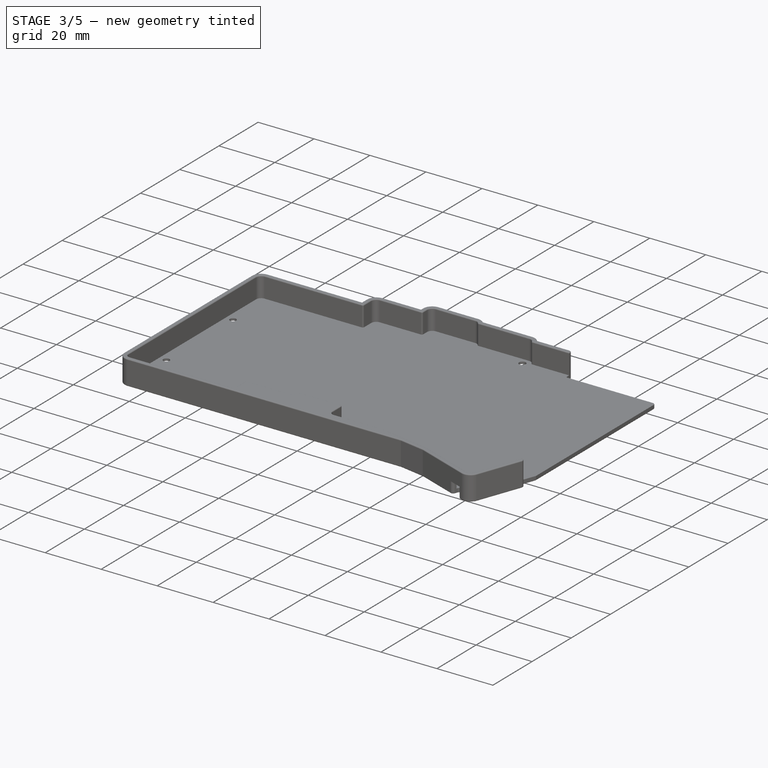
[diagram: stage 3 of 5 — iso view after this stage's code; geometry added in this stage tinted green]
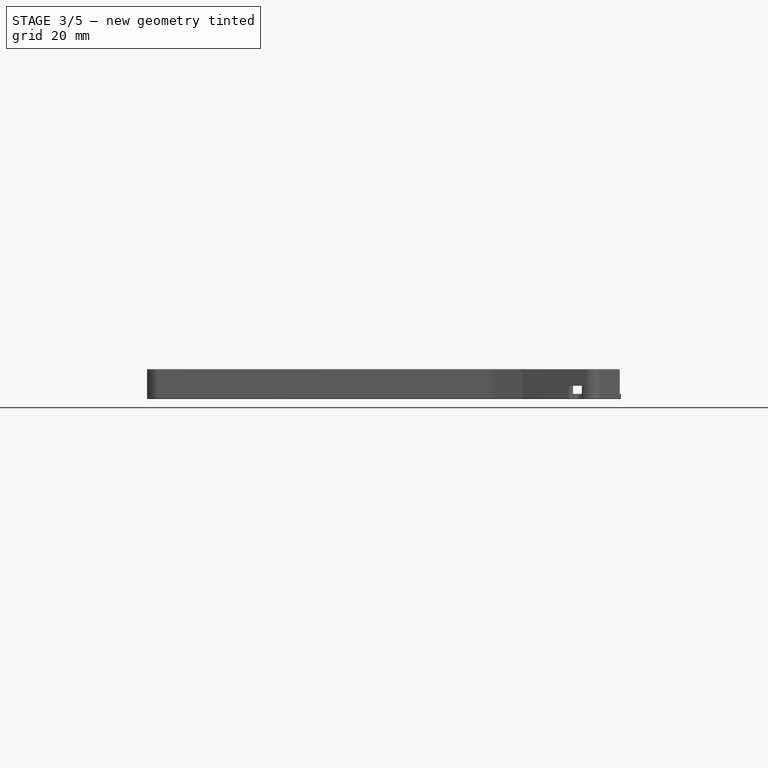
[diagram: stage 3 of 5 — front view after this stage's code; geometry added in this stage tinted green]
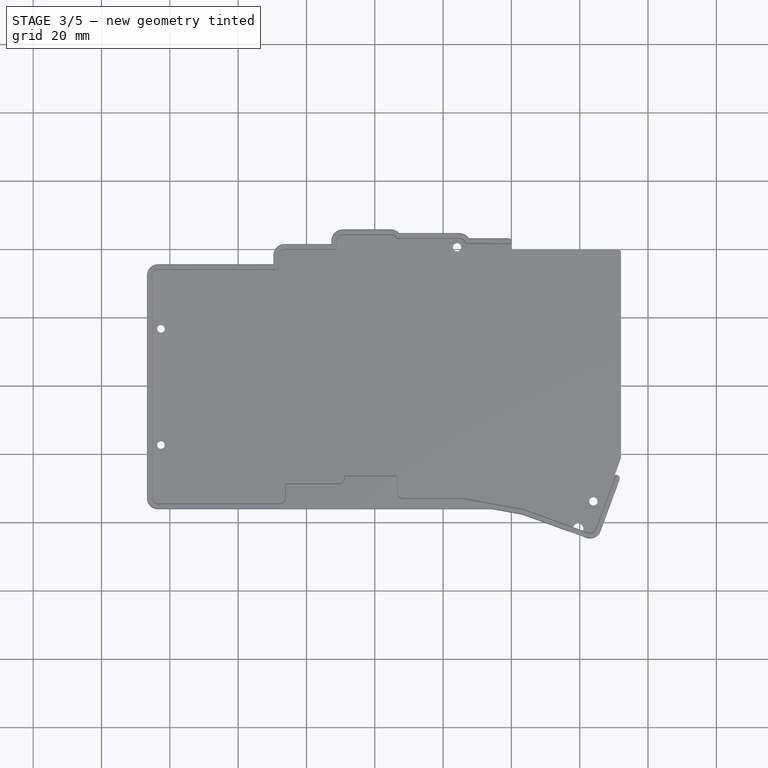
[diagram: stage 3 of 5 — top view after this stage's code; geometry added in this stage tinted green]
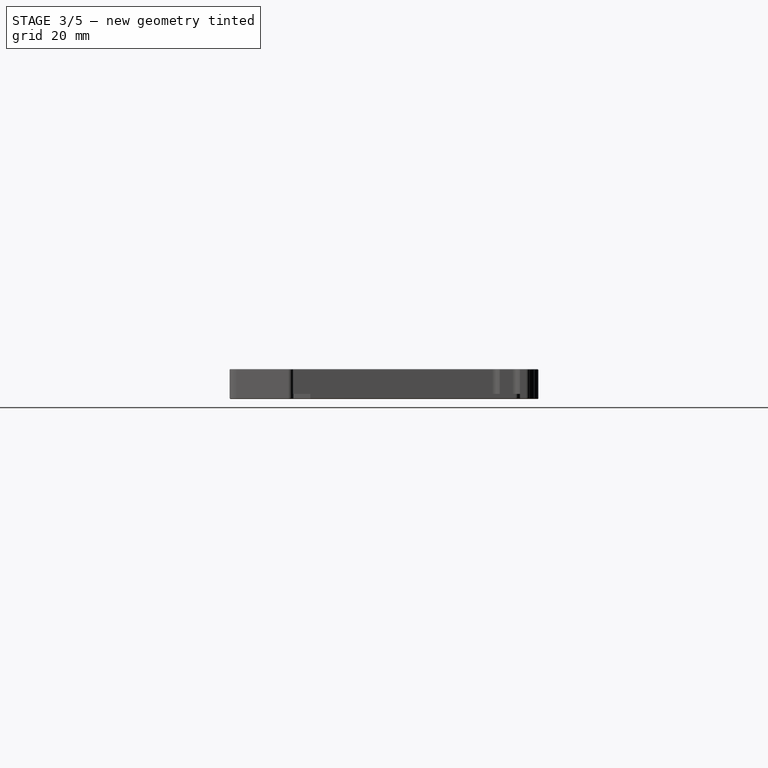
[diagram: stage 3 of 5 — right view after this stage's code; geometry added in this stage tinted green]
FEATURE [Sketcher::SketchObject] Sketch034
  ArcFitTolerance = 1e-06
  AttachmentOffset = pos=(0,0,-5.1) rot=(0,0,1;0rad)
  AttachmentSupport = -> [XY_Plane005]
  ExternalTypes = [0]
  FullyConstrained = true
  MakeInternals = false
  MapMode = 5
  Placement = pos=(0,0,-5.1) rot=(0,0,1;0rad)
  _ExternalGeoVersion = 0
  sketch-geometry (4):
    g0: LineSegment StartX=25.5 StartY=-52 StartZ=0 EndX=25.5 EndY=-62 EndZ=0
    g1: LineSegment StartX=25.5 StartY=-62 StartZ=0 EndX=65 EndY=-62 EndZ=0
    g2: LineSegment StartX=65 StartY=-62 StartZ=0 EndX=65 EndY=-52 EndZ=0
    g3: LineSegment StartX=65 StartY=-52 StartZ=0 EndX=25.5 EndY=-52 EndZ=0
  constraints (12):
    c: Coincident(g0,g1)
    c: Coincident(g1,g2)
    c: Coincident(g2,g3)
    c: Coincident(g3,g0)
    c: Vertical(g0)
    c: Vertical(g2)
    c: Horizontal(g1)
    c: Horizontal(g3)
    c: DistanceY(g0,g-1) = 52
    c: DistanceY(g0,g-1) = 62
    c: DistanceX(g-1,g0) = 25.5
    c: DistanceX(g-1,g2) = 65
FEATURE [Sketcher::SketchObject] Sketch035
  ArcFitTolerance = 1e-06
  AttachmentOffset = pos=(0,0,-5.9) rot=(0,0,1;0rad)
  AttachmentSupport = -> [XY_Plane005]
  ExternalTypes = [0]
  FullyConstrained = false
  MakeInternals = false
  MapMode = 5
  Placement = pos=(0,0,-5.9) rot=(0,0,1;0rad)
  _ExternalGeoVersion = 0
  expr: Constraints[142] = Sketch033.Constraints[142]
  expr: Constraints[149] = Sketch033.Constraints[149]
  sketch-geometry (83):
    g0: ArcOfCircle [constr] CenterX=45.3 CenterY=2.4 CenterZ=0 NormalX=-1e-16 NormalY=0 NormalZ=1 AngleXU=1.5708 Radius=1.5 StartAngle=0 EndAngle=1.22777
    g1: LineSegment [constr] StartX=59.4 StartY=3.9 StartZ=0 EndX=45.3 EndY=3.9 EndZ=0
    g2: LineSegment [constr] StartX=43.8874 StartY=2.9045 StartZ=0 EndX=43.8874 EndY=2.8 EndZ=0
    g3: ArcOfCircle [constr] CenterX=59.4 CenterY=2.4 CenterZ=0 NormalX=-1e-16 NormalY=0 NormalZ=1 AngleXU=3.90995e-07 Radius=1.5 StartAngle=0 EndAngle=1.5708
    g4: LineSegment [constr] StartX=60.9 StartY=-0.4 StartZ=0 EndX=60.9 EndY=2.4 EndZ=0
    g5: LineSegment [constr] StartX=76.4 StartY=-0.4 StartZ=0 EndX=60.9 EndY=-0.4 EndZ=0
    g6: ArcOfCircle [constr] CenterX=76.4 CenterY=-1.9 CenterZ=0 NormalX=-1e-16 NormalY=0 NormalZ=1 AngleXU=3.90995e-07 Radius=1.5 StartAngle=0 EndAngle=1.5708
    g7: LineSegment [constr] StartX=77.9 StartY=-6.3 StartZ=0 EndX=77.9 EndY=-1.9 EndZ=0
    g8: LineSegment [constr] StartX=96.4 StartY=-6.3 StartZ=0 EndX=77.9 EndY=-6.3 EndZ=0
    g9: ArcOfCircle [constr] CenterX=96.4 CenterY=-7.8 CenterZ=0 NormalX=-1e-16 NormalY=0 NormalZ=1 AngleXU=3.90995e-07 Radius=1.5 StartAngle=0 EndAngle=1.5708
    g10: LineSegment [constr] StartX=97.9 StartY=-59.8 StartZ=0 EndX=97.9 EndY=-7.8 EndZ=0
    g11: LineSegment [constr] StartX=97.9 StartY=-72.8 StartZ=0 EndX=97.9 EndY=-59.8 EndZ=0
    g12: ArcOfCircle [constr] CenterX=96.4 CenterY=-72.8 CenterZ=0 NormalX=-1e-16 NormalY=0 NormalZ=1 AngleXU=-1.5708 Radius=1.5 StartAngle=0 EndAngle=1.5708
    g13: LineSegment [constr] StartX=78 StartY=-74.3 StartZ=0 EndX=96.4 EndY=-74.3 EndZ=0
    g14: ArcOfCircle [constr] CenterX=78 CenterY=-72.8 CenterZ=0 NormalX=-1e-16 NormalY=0 NormalZ=1 AngleXU=-3.14159 Radius=1.5 StartAngle=0 EndAngle=1.5708
    g15: LineSegment [constr] StartX=76.5 StartY=-68.4 StartZ=0 EndX=76.5 EndY=-72.8 EndZ=0
    g16: LineSegment [constr] StartX=68.6 StartY=-68.4 StartZ=0 EndX=76.5 EndY=-68.4 EndZ=0
    g17: LineSegment [constr] StartX=68.6 StartY=-69.9 StartZ=0 EndX=68.6 EndY=-68.4 EndZ=0
    g18: LineSegment [constr] StartX=75 StartY=-69.9 StartZ=0 EndX=68.6 EndY=-69.9 EndZ=0
    g19: LineSegment [constr] StartX=75 StartY=-72.8 StartZ=0 EndX=75 EndY=-69.9 EndZ=0
    g20: ArcOfCircle [constr] CenterX=73.5 CenterY=-72.8 CenterZ=0 NormalX=-1e-16 NormalY=0 NormalZ=1 AngleXU=-1.5708 Radius=1.5 StartAngle=0 EndAngle=1.5708
    g21: LineSegment [constr] StartX=46.1 StartY=-74.3 StartZ=0 EndX=73.5 EndY=-74.3 EndZ=0
    g22: ArcOfCircle [constr] CenterX=46.1 CenterY=-72.8 CenterZ=0 NormalX=-1e-16 NormalY=0 NormalZ=1 AngleXU=-3.14159 Radius=1.5 StartAngle=0 EndAngle=1.5708
    g23: LineSegment [constr] StartX=44.6 StartY=-67.6 StartZ=0 EndX=44.6 EndY=-72.8 EndZ=0
    g24: LineSegment [constr] StartX=49.65 StartY=-67.6 StartZ=0 EndX=44.6 EndY=-67.6 EndZ=0
    g25: LineSegment [constr] StartX=49.65 StartY=-66.1 StartZ=0 EndX=49.65 EndY=-67.6 EndZ=0
    g26: LineSegment [constr] StartX=43.1 StartY=-66.1 StartZ=0 EndX=49.65 EndY=-66.1 EndZ=0
    g27: LineSegment [constr] StartX=43.1 StartY=-71.2 StartZ=0 EndX=43.1 EndY=-66.1 EndZ=0
    g28: ArcOfCircle [constr] CenterX=41.6 CenterY=-71.2 CenterZ=0 NormalX=-1e-16 NormalY=0 NormalZ=1 AngleXU=-1.5708 Radius=1.5 StartAngle=0 EndAngle=1.5708
    g29: LineSegment [constr] StartX=41.4 StartY=-72.7 StartZ=0 EndX=41.6 EndY=-72.7 EndZ=0
    g30: LineSegment [constr] StartX=24.227 StartY=-72.7043 StartZ=0 EndX=41.4 EndY=-72.7 EndZ=0
    g31: LineSegment [constr] StartX=6.18739 StartY=-75.9853 StartZ=0 EndX=24.227 EndY=-72.7043 EndZ=0
    g32: LineSegment [constr] StartX=-12.4977 StartY=-82.7894 StartZ=0 EndX=6.18739 EndY=-75.9853 EndZ=0
    g33: ArcOfCircle [constr] CenterX=-13.011 CenterY=-81.3799 CenterZ=0 NormalX=-1e-16 NormalY=0 NormalZ=1 AngleXU=-2.78726 Radius=1.5 StartAngle=0 EndAngle=1.56568
    g34: LineSegment [constr] StartX=-22.1 StartY=-61.1344 StartZ=0 EndX=-14.4178 EndY=-81.9004 EndZ=0
    g35: LineSegment [constr] StartX=-22.1 StartY=0 StartZ=0 EndX=-22.1 EndY=-61.1344 EndZ=0
    g36: LineSegment [constr] StartX=-16.4 StartY=0 StartZ=0 EndX=-22.1 EndY=0 EndZ=0
    g37: LineSegment [constr] StartX=-16.4 StartY=-10.5 StartZ=0 EndX=-16.4 EndY=0 EndZ=0
    g38: LineSegment [constr] StartX=-14.8 StartY=-10.5 StartZ=0 EndX=-16.4 EndY=-10.5 EndZ=0
    g39: LineSegment [constr] StartX=-14.8 StartY=0 StartZ=0 EndX=-14.8 EndY=-10.5 EndZ=0
    g40: LineSegment [constr] StartX=-5 StartY=0 StartZ=0 EndX=-14.8 EndY=0 EndZ=0
    g41: LineSegment [constr] StartX=-5 StartY=-4 StartZ=0 EndX=-5 EndY=0 EndZ=0
    g42: LineSegment [constr] StartX=5 StartY=-4 StartZ=0 EndX=-5 EndY=-4 EndZ=0
    g43: LineSegment [constr] StartX=5 StartY=0 StartZ=0 EndX=5 EndY=-4 EndZ=0
    g44: LineSegment [constr] StartX=9.9 StartY=0 StartZ=0 EndX=5 EndY=0 EndZ=0
    g45: LineSegment [constr] StartX=9.9 StartY=1.3 StartZ=0 EndX=9.9 EndY=0 EndZ=0
    g46: LineSegment [constr] StartX=23.7 StartY=1.3 StartZ=0 EndX=9.9 EndY=1.3 EndZ=0
    g47: ArcOfCircle [constr] CenterX=25.2 CenterY=1.3 CenterZ=0 NormalX=-1e-16 NormalY=0 NormalZ=1 AngleXU=1.5708 Radius=1.5 StartAngle=0 EndAngle=1.5708
    g48: LineSegment [constr] StartX=43.8874 StartY=2.8 StartZ=0 EndX=25.2 EndY=2.8 EndZ=0
    g49: Circle [constr] CenterX=112.6 CenterY=-57.3 CenterZ=0 NormalX=-1e-16 NormalY=0 NormalZ=1 AngleXU=-1.5708 Radius=1.1
    g50: ArcOfCircle [constr] CenterX=60.7 CenterY=-66.9 CenterZ=0 NormalX=-1e-16 NormalY=0 NormalZ=1 AngleXU=-3.14159 Radius=1.5 StartAngle=0 EndAngle=1.5708
    g51: LineSegment [constr] StartX=59.2 StartY=-66.1 StartZ=0 EndX=59.2 EndY=-66.9 EndZ=0
    g52: LineSegment [constr] StartX=51.15 StartY=-66.1 StartZ=0 EndX=59.2 EndY=-66.1 EndZ=0
    g53: LineSegment [constr] StartX=51.15 StartY=-67.6 StartZ=0 EndX=51.15 EndY=-66.1 EndZ=0
    g54: LineSegment [constr] StartX=56.7 StartY=-67.6 StartZ=0 EndX=51.15 EndY=-67.6 EndZ=0
    g55: LineSegment [constr] StartX=56.7 StartY=-69.9 StartZ=0 EndX=56.7 EndY=-67.6 EndZ=0
    g56: LineSegment [constr] StartX=67.1 StartY=-69.9 StartZ=0 EndX=56.7 EndY=-69.9 EndZ=0
    g57: LineSegment [constr] StartX=67.1 StartY=-68.4 StartZ=0 EndX=67.1 EndY=-69.9 EndZ=0
    g58: LineSegment [constr] StartX=60.7 StartY=-68.4 StartZ=0 EndX=67.1 EndY=-68.4 EndZ=0
    g59: LineSegment [constr] StartX=62.7 StartY=-60 StartZ=0 EndX=27.8 EndY=-60 EndZ=0
    g60: LineSegment [constr] StartX=62.7 StartY=-57.6 StartZ=0 EndX=62.7 EndY=-60 EndZ=0
    g61: LineSegment [constr] StartX=27.8 StartY=-57.6 StartZ=0 EndX=62.7 EndY=-57.6 EndZ=0
    g62: LineSegment [constr] StartX=27.8 StartY=-60 StartZ=0 EndX=27.8 EndY=-57.6 EndZ=0
    g63: Circle [constr] CenterX=-14 CenterY=-73.8 CenterZ=0 NormalX=-1e-16 NormalY=0 NormalZ=1 AngleXU=-1.5708 Radius=1.1
    g64: LineSegment [constr] StartX=-14.8 StartY=-64.1 StartZ=0 EndX=-16.4 EndY=-64.1 EndZ=0
    g65: LineSegment [constr] StartX=-14.8 StartY=-54 StartZ=0 EndX=-14.8 EndY=-64.1 EndZ=0
    g66: LineSegment [constr] StartX=-16.4 StartY=-54 StartZ=0 EndX=-14.8 EndY=-54 EndZ=0
    g67: LineSegment [constr] StartX=-16.4 StartY=-64.1 StartZ=0 EndX=-16.4 EndY=-54 EndZ=0
    g68: LineSegment [constr] StartX=52 StartY=-56.2 StartZ=0 EndX=27.8 EndY=-56.2 EndZ=0
    g69: LineSegment [constr] StartX=52 StartY=-53.8 StartZ=0 EndX=52 EndY=-56.2 EndZ=0
    g70: LineSegment [constr] StartX=27.8 StartY=-53.8 StartZ=0 EndX=52 EndY=-53.8 EndZ=0
    g71: LineSegment [constr] StartX=27.8 StartY=-56.2 StartZ=0 EndX=27.8 EndY=-53.8 EndZ=0
    g72: Circle [constr] CenterX=112.6 CenterY=-23.3 CenterZ=0 NormalX=-1e-16 NormalY=0 NormalZ=1 AngleXU=-1.5708 Radius=1.1
    g73: Circle [constr] CenterX=25.9 CenterY=0.6 CenterZ=0 NormalX=-1e-16 NormalY=0 NormalZ=1 AngleXU=-1.5708 Radius=1.1
    g74: Circle [constr] CenterX=25.9 CenterY=0.6 CenterZ=0 NormalX=0 NormalY=0 NormalZ=1 AngleXU=0 Radius=1.2
    g75: Circle [constr] CenterX=25.9 CenterY=0.6 CenterZ=0 NormalX=0 NormalY=0 NormalZ=1 AngleXU=0 Radius=1.2
    g76: Circle [constr] CenterX=112.6 CenterY=-23.3 CenterZ=0 NormalX=0 NormalY=0 NormalZ=1 AngleXU=0 Radius=1.1
    g77: Circle [constr] CenterX=112.6 CenterY=-57.3 CenterZ=0 NormalX=0 NormalY=0 NormalZ=1 AngleXU=0 Radius=1.1
    g78: Circle [constr] CenterX=-14 CenterY=-73.8 CenterZ=0 NormalX=0 NormalY=0 NormalZ=1 AngleXU=0 Radius=1.2
    g79: Circle CenterX=112.6 CenterY=-23.3 CenterZ=0 NormalX=0 NormalY=0 NormalZ=1 AngleXU=0 Radius=2.5
    g80: Circle CenterX=112.6 CenterY=-57.3 CenterZ=0 NormalX=0 NormalY=0 NormalZ=1 AngleXU=0 Radius=2.5
    g81: Circle CenterX=-14 CenterY=-73.8 CenterZ=0 NormalX=0 NormalY=0 NormalZ=1 AngleXU=0 Radius=2.5
    g82: Circle CenterX=25.9 CenterY=0.6 CenterZ=0 NormalX=0 NormalY=0 NormalZ=1 AngleXU=0 Radius=2.5
  constraints (163):
    c: Coincident(g34,g35)
    c: Coincident(g35,g36)
    c: Coincident(g64,g67)
    c: Coincident(g66,g67)
    c: Coincident(g37,g38)
    c: Coincident(g36,g37)
    c: Coincident(g64,g65)
    c: Coincident(g65,g66)
    c: Coincident(g38,g39)
    c: Coincident(g39,g40)
    c: Coincident(g33,g34)
    c: Coincident(g32,g33)
    c: Coincident(g41,g42)
    c: Coincident(g40,g41)
    c: Coincident(g42,g43)
    c: Coincident(g43,g44)
    c: Coincident(g31,g32)
    c: Coincident(g44,g45)
    c: Coincident(g45,g46)
    c: Coincident(g46,g47)
    c: Coincident(g30,g31)
    c: Coincident(g47,g48)
    c: Coincident(g59,g62)
    c: Coincident(g61,g62)
    c: Coincident(g68,g71)
    c: Coincident(g70,g71)
    c: Coincident(g29,g30)
    c: Coincident(g28,g29)
    c: Coincident(g27,g28)
    c: Coincident(g26,g27)
    c: Coincident(g2,g48)
    c: Coincident(g0,g2)
    c: Coincident(g22,g23)
    c: Coincident(g23,g24)
    c: Coincident(g0,g1)
    c: Coincident(g21,g22)
    c: Coincident(g24,g25)
    c: Coincident(g25,g26)
    c: Coincident(g53,g54)
    c: Coincident(g52,g53)
    c: Coincident(g68,g69)
    c: Coincident(g69,g70)
    c: Coincident(g55,g56)
    c: Coincident(g54,g55)
    c: Coincident(g50,g51)
    c: Coincident(g51,g52)
    c: Coincident(g1,g3)
    c: Coincident(g50,g58)
    c: Coincident(g4,g5)
    c: Coincident(g3,g4)
    c: Coincident(g59,g60)
    c: Coincident(g60,g61)
    c: Coincident(g56,g57)
    c: Coincident(g57,g58)
    c: Coincident(g17,g18)
    c: Coincident(g16,g17)
    c: Coincident(g20,g21)
    c: Coincident(g19,g20)
    c: Coincident(g18,g19)
    c: Coincident(g5,g6)
    c: Coincident(g14,g15)
    c: Coincident(g15,g16)
    c: Coincident(g7,g8)
    c: Coincident(g6,g7)
    c: Coincident(g13,g14)
    c: Coincident(g12,g13)
    c: Coincident(g8,g9)
    c: Coincident(g11,g12)
    c: Coincident(g10,g11)
    c: Coincident(g9,g10)
    c: Block(g0)
    c: Block(g1)
    c: Block(g2)
    c: Block(g3)
    c: Block(g4)
    c: Block(g5)
    c: Block(g6)
    c: Block(g7)
    c: Block(g8)
    c: Block(g9)
    c: Block(g10)
    c: Block(g11)
    c: Block(g12)
    c: Block(g13)
    c: Block(g14)
    c: Block(g15)
    c: Block(g16)
    c: Block(g17)
    c: Block(g18)
    c: Block(g19)
    c: Block(g20)
    c: Block(g21)
    c: Block(g22)
    c: Block(g23)
    c: Block(g24)
    c: Block(g25)
    c: Block(g26)
    c: Block(g27)
    c: Block(g28)
    c: Block(g29)
    c: Block(g30)
    c: Block(g31)
    c: Block(g32)
    c: Block(g33)
    c: Block(g34)
    c: Block(g35)
    c: Block(g36)
    c: Block(g37)
    c: Block(g38)
    c: Block(g39)
    c: Block(g40)
    c: Block(g41)
    c: Block(g42)
    c: Block(g43)
    c: Block(g44)
    c: Block(g45)
    c: Block(g46)
    c: Block(g47)
    c: Block(g48)
    c: Block(g50)
    c: Block(g51)
    c: Block(g52)
    c: Block(g53)
    c: Block(g54)
    c: Block(g55)
    c: Block(g56)
    c: Block(g57)
    c: Block(g58)
    c: Block(g59)
    c: Block(g60)
    c: Block(g61)
    c: Block(g62)
    c: Block(g63)
    c: Block(g64)
    c: Block(g65)
    c: Block(g66)
    c: Block(g67)
    c: Block(g68)
    c: Block(g69)
    c: Block(g70)
    c: Block(g71)
    c: Block(g73)
    c: Diameter(g75) = 2.4
    c: Coincident(g75,g74)
    c: Equal(g75,g74)
    c: Coincident(g76,g72)
    c: Equal(g76,g72)
    c: Coincident(g77,g49)
    c: Equal(g77,g49)
    c: Diameter(g78) = 2.4
    c: Coincident(g78,g63)
    c: Diameter(g79) = 5
    c: Coincident(g79,g72)
    c: Diameter(g80) = 5
    c: Coincident(g80,g49)
    c: Diameter(g81) = 5
    c: Coincident(g81,g63)
    c: Diameter(g82) = 5
    c: Coincident(g82,g73)
    c: DistanceX(g-1,g72) = 112.6
    c: DistanceX(g-1,g49) = 112.6
    c: DistanceY(g72,g-1) = 23.3
    c: DistanceY(g49,g-1) = 57.3
FEATURE [PartDesign::Pocket] Pocket017
  BaseFeature = -> Fillet005
  Direction = (0,0,-1)
  Length = 5
  Length2 = 5
  Profile = -> Sketch035
  ReferenceAxis = -> Sketch035 [N_Axis]
  Refine = true
  SideType = 0
  Suppressed = false
  Type = 0
  Type2 = 0
FEATURE [PartDesign::Pocket] Pocket016
  BaseFeature = -> Pocket017
  Direction = (0,0,-1)
  Length = 0.5
  Length2 = 5
  Profile = -> Sketch034
  ReferenceAxis = -> Sketch034 [N_Axis]
  Refine = true
  SideType = 0
  Suppressed = false
  Type = 0
  Type2 = 0
FEATURE [Sketcher::SketchObject] Sketch036
  ArcFitTolerance = 1e-06
  AttachmentOffset = pos=(0,0,-3.9) rot=(0,0,1;0rad)
  AttachmentSupport = -> [XY_Plane005]
  ExternalTypes = [0]
  FullyConstrained = false
  MakeInternals = false
  MapMode = 5
  Placement = pos=(0,0,-3.9) rot=(0,0,1;0rad)
  _ExternalGeoVersion = 0
  sketch-geometry (12):
    g0: LineSegment [constr] StartX=25 StartY=-61.158 StartZ=0 EndX=25 EndY=-92.8827 EndZ=0
    g1: LineSegment [constr] StartX=25 StartY=-92.8827 StartZ=0 EndX=76 EndY=-92.8827 EndZ=0
    g2: LineSegment [constr] StartX=76 StartY=-92.8827 StartZ=0 EndX=76 EndY=-74.6 EndZ=0
    g3: LineSegment [constr] StartX=76 StartY=-74.6 StartZ=0 EndX=81.7754 EndY=-74.6 EndZ=0
    g4: LineSegment [constr] StartX=81.7754 StartY=-74.6 StartZ=0 EndX=81.7754 EndY=-61.158 EndZ=0
    g5: LineSegment [constr] StartX=81.7754 StartY=-61.158 StartZ=0 EndX=25 EndY=-61.158 EndZ=0
    g6: LineSegment StartX=25 StartY=-61.158 StartZ=0 EndX=25 EndY=-86.4525 EndZ=0
    g7: LineSegment StartX=25 StartY=-86.4525 StartZ=0 EndX=59.3 EndY=-86.4525 EndZ=0
    g8: LineSegment StartX=59.3 StartY=-86.4525 StartZ=0 EndX=59.3 EndY=-68.7 EndZ=0
    g9: LineSegment StartX=59.3 StartY=-68.7 StartZ=0 EndX=63.7 EndY=-68.7 EndZ=0
    g10: LineSegment StartX=63.7 StartY=-68.7 StartZ=0 EndX=63.7 EndY=-61.158 EndZ=0
    g11: LineSegment StartX=63.7 StartY=-61.158 StartZ=0 EndX=25 EndY=-61.158 EndZ=0
  constraints (31):
    c: Vertical(g0)
    c: Coincident(g0,g1)
    c: Horizontal(g1)
    c: Coincident(g1,g2)
    c: Vertical(g2)
    c: Coincident(g2,g3)
    c: Horizontal(g3)
    c: Coincident(g3,g4)
    c: Vertical(g4)
    c: Coincident(g4,g5)
    c: Coincident(g5,g0)
    c: Horizontal(g5)
    c: DistanceY(g3,g-1) = 74.6
    c: DistanceX(g-1,g1) = 76
    c: DistanceX(g-1,g0) = 25
    c: Coincident(g0,g6)
    c: PointOnObject(g6,g0)
    c: Coincident(g6,g7)
    c: Horizontal(g7)
    c: Coincident(g7,g8)
    c: Vertical(g8)
    c: Coincident(g8,g9)
    c: Horizontal(g9)
    c: Coincident(g9,g10)
    c: PointOnObject(g10,g5)
    c: Vertical(g10)
    c: Coincident(g10,g11)
    c: Coincident(g11,g6)
    c: DistanceX(g-1,g10) = 63.7
    c: DistanceY(g9,g-1) = 68.7
    c: DistanceX(g-1,g8) = 59.3
FEATURE [PartDesign::Pocket] Pocket018
  BaseFeature = -> Pocket016
  Direction = (0,0,-1)
  Length = 10
  Length2 = 5
  Profile = -> Sketch036
  ReferenceAxis = -> Sketch036 [N_Axis]
  Refine = true
  Reversed = true
  SideType = 0
  Suppressed = false
  Type = 0
  Type2 = 0
FEATURE [PartDesign::Body] Body003
  AllowCompound = false
  Group = -> [Sphere]
  Origin = -> Origin006
  Placement = pos=(37,-63.6,8.7) rot=(0,0,1;0rad)
  Tip = -> Sphere
FEATURE [PartDesign::Fillet] Fillet006
  Base = -> Pocket018 [Edge80,Edge82]
  BaseFeature = -> Pocket018
  Radius = 2
  Refine = true
  SupportTransform = false
  Suppressed = false
  UseAllEdges = false
FEATURE [PartDesign::Fillet] Fillet007
  Base = -> Fillet006 [Edge116,Edge134]
  BaseFeature = -> Fillet006
  Radius = 0.5
  Refine = true
  SupportTransform = false
  Suppressed = false
  UseAllEdges = false
FEATURE [PartDesign::Body] Body001  label="case-key"
  AllowCompound = false
  Group = -> [Sketch020,Sketch022,Sketch021,Pad010,Sketch023,Pocket008,Sketch024,Pocket009,Sketch025,Pocket010,Fillet,Fillet002,Sketch027,Pocket012,Sketch037,Pocket019,Fillet009,Fillet003]
  Origin = -> Origin004
  Tip = -> Fillet003
FEATURE [Sketcher::SketchObject] Sketch038
  ArcFitTolerance = 1e-06
  AttachmentOffset = pos=(0,0,-5.1) rot=(0,0,1;0rad)
  AttachmentSupport = -> [XY_Plane005]
  ExternalTypes = [0]
  FullyConstrained = true
  MakeInternals = false
  MapMode = 5
  Placement = pos=(0,0,-5.1) rot=(0,0,1;0rad)
  _ExternalGeoVersion = 0
  sketch-geometry (5):
    g0: LineSegment [constr] StartX=-8.14984 StartY=-81.2146 StartZ=0 EndX=-10.9689 EndY=-82.2406 EndZ=0
    g1: LineSegment StartX=-10.9689 StartY=-82.2406 StartZ=0 EndX=-10.3191 EndY=-84.0261 EndZ=0
    g2: LineSegment StartX=-10.3191 StartY=-84.0261 StartZ=0 EndX=-7.5 EndY=-83 EndZ=0
    g3: LineSegment StartX=-7.5 StartY=-83 StartZ=0 EndX=-8.14984 EndY=-81.2146 EndZ=0
    g4: ArcOfCircle CenterX=-9.55938 CenterY=-81.7276 CenterZ=0 NormalX=0 NormalY=0 NormalZ=1 AngleXU=0 Radius=1.5 StartAngle=0.349066 EndAngle=3.49066
  constraints (15):
    c: Coincident(g0,g1)
    c: Coincident(g1,g2)
    c: Coincident(g2,g3)
    c: Coincident(g3,g0)
    c: DistanceX(g2,g-1) = 7.5
    c: DistanceY(g2,g-1) = 83
    c: Perpendicular(g1,g2)
    c: Perpendicular(g0,g1)
    c: Perpendicular(g3,g0)
    c: Angle(g-1,g2) = 0.349066
    c: Distance(g3,g3) = 1.9
    c: Distance(g2,g2) = 3
    c: Coincident(g4,g0)
    c: PointOnObject(g4,g0)
    c: Coincident(g4,g0)
FEATURE [PartDesign::Pocket] Pocket020
  BaseFeature = -> Fillet007
  Direction = (0,0,-1)
  Length = 2.4
  Length2 = 5
  Profile = -> Sketch038
  ReferenceAxis = -> Sketch038 [N_Axis]
  Refine = true
  Reversed = true
  SideType = 1
  Suppressed = false
  Type = 0
  Type2 = 0
FEATURE [PartDesign::Fillet] Fillet010
  Base = -> Pocket020 [Edge49,Edge51]
  BaseFeature = -> Pocket020
  Radius = 1
  Refine = true
  SupportTransform = false
  Suppressed = false
  UseAllEdges = false
FEATURE [PartDesign::Fillet] Fillet008
  Base = -> Fillet010 [Face52,Face6,Face2,Edge75,Edge76,Edge77]
  BaseFeature = -> Fillet010
  Radius = 0.3
  Refine = true
  SupportTransform = false
  Suppressed = false
  UseAllEdges = false
FEATURE [PartDesign::Body] Body002  label="case-trackball"
  AllowCompound = false
  Group = -> [Sketch028,Sketch030,Sketch029,Pad011,Sketch031,Pocket013,Sketch032,Pocket014,Sketch033,Pocket015,Sketch034,Fillet004,Fillet005,Sketch035,Pocket017,Pocket016,Sketch036,Pocket018,Fillet006,Fillet007,Sketch038,Pocket020,Fillet010,Fillet008]
  Origin = -> Origin005
  Tip = -> Fillet008
FEATURE [App::Link] Link  label="case-key001"
  LinkPlacement = pos=(0,100,0) rot=(0,0,1;0rad)
  LinkedObject = -> Body001
  Placement = pos=(0,100,0) rot=(0,0,1;0rad)
FEATURE [App::Link] Link001  label="case-trackball001"
  LinkPlacement = pos=(0,200,0) rot=(0,0,1;0rad)
  LinkedObject = -> Body002
  Placement = pos=(0,200,0) rot=(0,0,1;0rad)
FEATURE [Part::Mirroring] Part__Mirroring001  label="case-trackball001 (Mirror #2)"
  Base = (0,0,0)
  Normal = (1,0,0)
  Placement = pos=(-50,0,0) rot=(0,0,1;0rad)
  Source = -> Link001
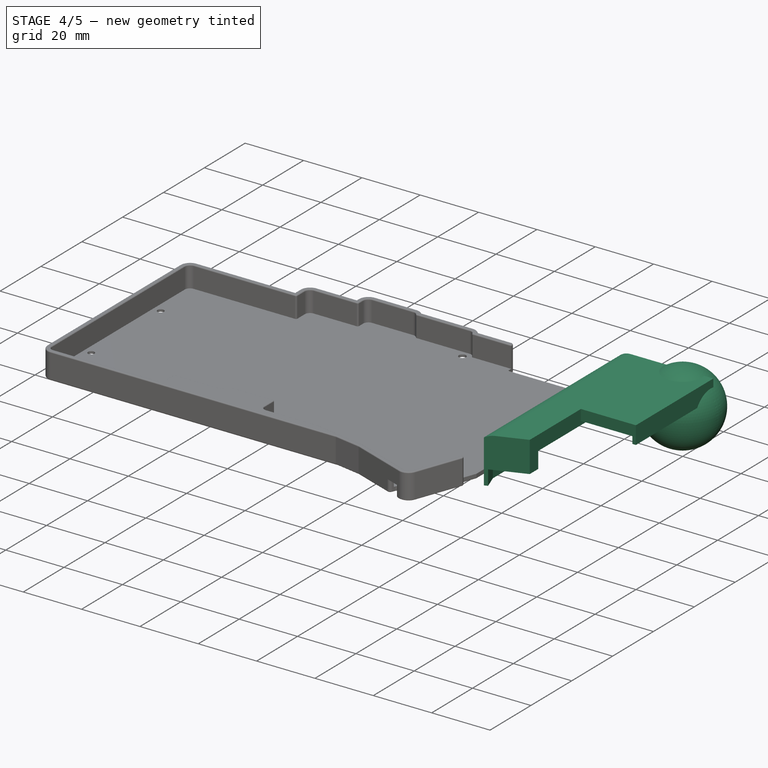
[diagram: stage 4 of 5 — iso view after this stage's code; geometry added in this stage tinted green]
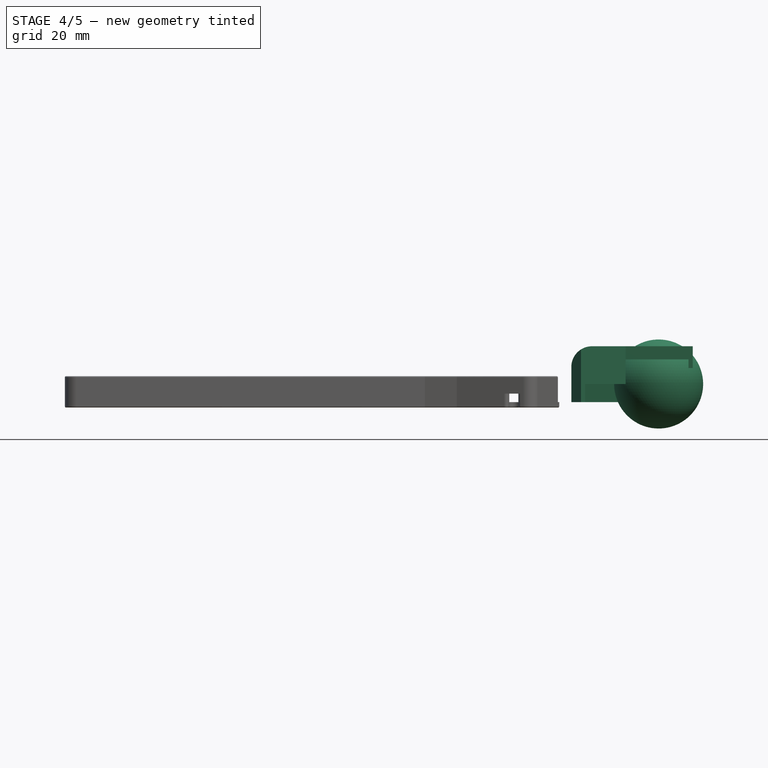
[diagram: stage 4 of 5 — front view after this stage's code; geometry added in this stage tinted green]
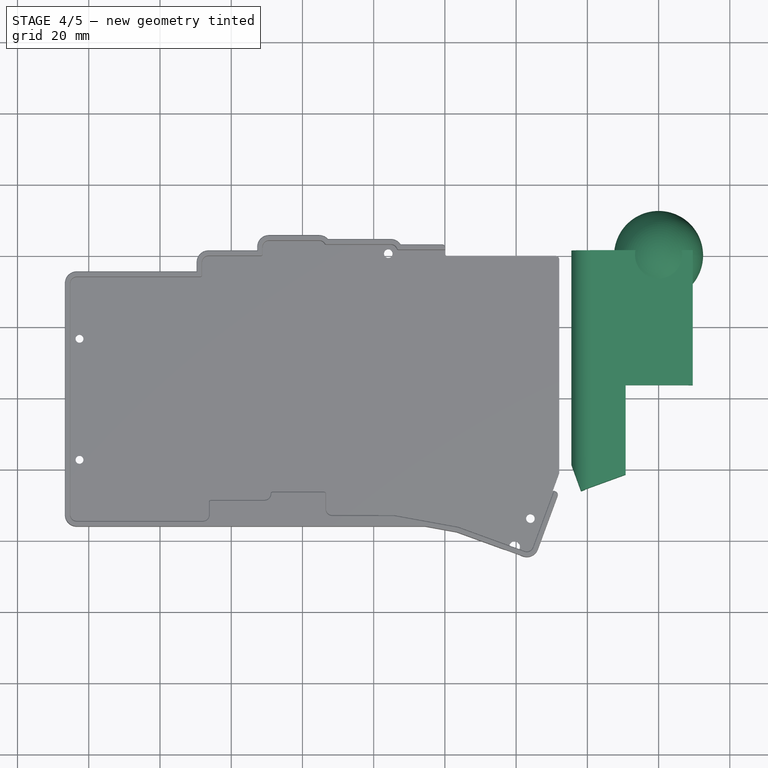
[diagram: stage 4 of 5 — top view after this stage's code; geometry added in this stage tinted green]
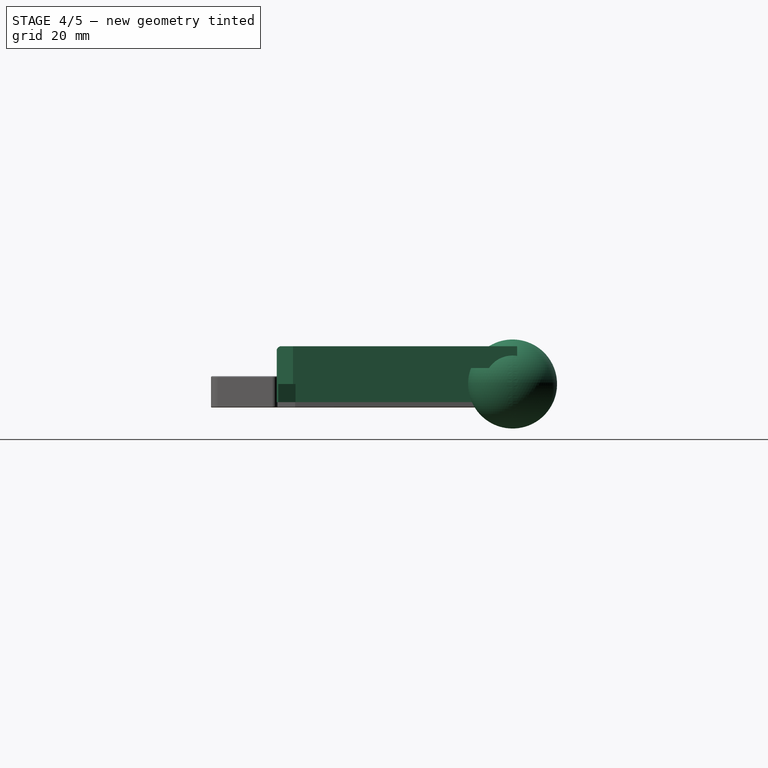
[diagram: stage 4 of 5 — right view after this stage's code; geometry added in this stage tinted green]
FEATURE [Sketcher::SketchObject] Sketch  label="xz"
  ArcFitTolerance = 0
  AttachmentSupport = -> [XZ_Plane]
  ExternalTypes = [0]
  FullyConstrained = false
  MakeInternals = false
  MapMode = 5
  Placement = pos=(0,0,0) rot=(1,0,0;1.5708rad)
  _ExternalGeoVersion = 0
  expr: Constraints[31] = Spreadsheet.conn_h
  expr: Constraints[57] = Spreadsheet.controller_h
  expr: Constraints[79] = Spreadsheet.battery_h
  sketch-geometry (55):
    g0: LineSegment [constr] StartX=9 StartY=2.5 StartZ=0 EndX=9 EndY=4.1 EndZ=0
    g1: LineSegment [constr] StartX=9 StartY=4.1 StartZ=0 EndX=-9 EndY=4.1 EndZ=0
    g2: LineSegment [constr] StartX=-9 StartY=4.1 StartZ=0 EndX=-9 EndY=2.5 EndZ=0
    g3: LineSegment [constr] StartX=-9 StartY=2.5 StartZ=0 EndX=9 EndY=2.5 EndZ=0
    g4: GeomPoint [constr] X=0 Y=3.3 Z=0
    g5: LineSegment [constr] StartX=-105.409 StartY=0 StartZ=0 EndX=45.7381 EndY=0 EndZ=0
    g6: LineSegment [constr] StartX=45.7381 StartY=0 StartZ=0 EndX=45.7381 EndY=-1.6 EndZ=0
    g7: LineSegment [constr] StartX=45.7381 StartY=-1.6 StartZ=0 EndX=-105.409 EndY=-1.6 EndZ=0
    g8: LineSegment [constr] StartX=-105.409 StartY=-1.6 StartZ=0 EndX=-105.409 EndY=0 EndZ=0
    g9: LineSegment [constr] StartX=9 StartY=2.5 StartZ=0 EndX=6.36312 EndY=2.5 EndZ=0
    g10: LineSegment [constr] StartX=6.36312 StartY=2.5 StartZ=0 EndX=6.36312 EndY=0 EndZ=0
    g11: LineSegment [constr] StartX=6.36312 StartY=0 StartZ=0 EndX=9 EndY=0 EndZ=0
    g12: LineSegment [constr] StartX=9 StartY=0 StartZ=0 EndX=9 EndY=2.5 EndZ=0
    g13: LineSegment [constr] StartX=4.55 StartY=-5.1 StartZ=0 EndX=4.55 EndY=-1.6 EndZ=0
    g14: LineSegment [constr] StartX=4.55 StartY=-1.6 StartZ=0 EndX=-4.55 EndY=-1.6 EndZ=0
    g15: LineSegment [constr] StartX=-4.55 StartY=-1.6 StartZ=0 EndX=-4.55 EndY=-5.1 EndZ=0
    g16: LineSegment [constr] StartX=-4.55 StartY=-5.1 StartZ=0 EndX=4.55 EndY=-5.1 EndZ=0
    g17: GeomPoint [constr] X=0 Y=-3.35 Z=0
    g18: LineSegment [constr] StartX=-4.75 StartY=6.3 StartZ=0 EndX=-4.75 EndY=4.1 EndZ=0
    g19: LineSegment [constr] StartX=-4.75 StartY=4.1 StartZ=0 EndX=4.75 EndY=4.1 EndZ=0
    g20: LineSegment [constr] StartX=4.75 StartY=4.1 StartZ=0 EndX=4.75 EndY=6.3 EndZ=0
    g21: LineSegment [constr] StartX=4.75 StartY=6.3 StartZ=0 EndX=-4.75 EndY=6.3 EndZ=0
    g22: GeomPoint [constr] X=0 Y=5.2 Z=0
    g23: LineSegment [constr] StartX=-44.4822 StartY=-5.1 StartZ=0 EndX=-44.4822 EndY=-3.9 EndZ=0
    g24: LineSegment [constr] StartX=-44.4822 StartY=-3.9 StartZ=0 EndX=44.4822 EndY=-3.9 EndZ=0
    g25: LineSegment [constr] StartX=44.4822 StartY=-3.9 StartZ=0 EndX=44.4822 EndY=-5.1 EndZ=0
    g26: LineSegment [constr] StartX=44.4822 StartY=-5.1 StartZ=0 EndX=-44.4822 EndY=-5.1 EndZ=0
    g27: GeomPoint [constr] X=0 Y=-4.5 Z=0
    g28: LineSegment [constr] StartX=-9.1 StartY=-3.6 StartZ=0 EndX=-9.1 EndY=9.4 EndZ=0
    g29: LineSegment [constr] StartX=-9.1 StartY=9.4 StartZ=0 EndX=-22.1 EndY=9.4 EndZ=0
    g30: LineSegment [constr] StartX=-22.1 StartY=9.4 StartZ=0 EndX=-22.1 EndY=-3.6 EndZ=0
    g31: LineSegment [constr] StartX=-22.1 StartY=-3.6 StartZ=0 EndX=-9.1 EndY=-3.6 EndZ=0
    g32: GeomPoint [constr] X=-15.6 Y=2.9 Z=0
    g33: LineSegment [constr] StartX=33.0788 StartY=0.6 StartZ=0 EndX=33.0788 EndY=2.2 EndZ=0
    g34: LineSegment [constr] StartX=33.0788 StartY=2.2 StartZ=0 EndX=11.9844 EndY=2.2 EndZ=0
    g35: LineSegment [constr] StartX=11.9844 StartY=2.2 StartZ=0 EndX=11.9844 EndY=0.6 EndZ=0
    g36: LineSegment [constr] StartX=11.9844 StartY=0.6 StartZ=0 EndX=33.0788 EndY=0.6 EndZ=0
    g37: GeomPoint [constr] X=22.5316 Y=1.4 Z=0
    g38: LineSegment [constr] StartX=25.7428 StartY=8.6 StartZ=0 EndX=25.7428 EndY=2.2 EndZ=0
    g39: LineSegment [constr] StartX=25.7428 StartY=2.2 StartZ=0 EndX=19.3204 EndY=2.2 EndZ=0
    g40: LineSegment [constr] StartX=19.3204 StartY=2.2 StartZ=0 EndX=19.3204 EndY=8.6 EndZ=0
    g41: LineSegment [constr] StartX=19.3204 StartY=8.6 StartZ=0 EndX=25.7428 EndY=8.6 EndZ=0
    g42: GeomPoint [constr] X=22.5316 Y=5.4 Z=0
    g43: LineSegment [constr] StartX=22.5316 StartY=1.4 StartZ=0 EndX=22.5316 EndY=5.4 EndZ=0
    g44: LineSegment [constr] StartX=29.8817 StartY=5.3 StartZ=0 EndX=29.8817 EndY=0 EndZ=0
    g45: LineSegment [constr] StartX=29.8817 StartY=0 StartZ=0 EndX=15.1815 EndY=0 EndZ=0
    g46: LineSegment [constr] StartX=15.1815 StartY=0 StartZ=0 EndX=15.1815 EndY=5.3 EndZ=0
    g47: LineSegment [constr] StartX=15.1815 StartY=5.3 StartZ=0 EndX=29.8817 EndY=5.3 EndZ=0
    g48: GeomPoint [constr] X=22.5316 Y=2.65 Z=0
    g49: LineSegment [constr] StartX=28.1684 StartY=6.59315 StartZ=0 EndX=28.1684 EndY=9.3 EndZ=0
    g50: LineSegment [constr] StartX=28.1684 StartY=9.3 StartZ=0 EndX=16.8947 EndY=9.3 EndZ=0
    g51: LineSegment [constr] StartX=16.8947 StartY=9.3 StartZ=0 EndX=16.8947 EndY=6.59315 EndZ=0
    g52: LineSegment [constr] StartX=16.8947 StartY=6.59315 StartZ=0 EndX=28.1684 EndY=6.59315 EndZ=0
    g53: GeomPoint [constr] X=22.5316 Y=7.94657 Z=0
    g54: Circle [constr] CenterX=41.3382 CenterY=8.9 CenterZ=0 NormalX=0 NormalY=0 NormalZ=1 AngleXU=0 Radius=12.5
  constraints (135):
    c: Coincident(g0,g1)
    c: Coincident(g1,g2)
    c: Coincident(g2,g3)
    c: Coincident(g3,g0)
    c: Horizontal(g1)
    c: Horizontal(g3)
    c: Vertical(g0)
    c: Vertical(g2)
    c: Symmetric(g1,g0,g4)
    c: PointOnObject(g4,g-2)
    c: Coincident(g5,g6)
    c: Coincident(g6,g7)
    c: Coincident(g7,g8)
    c: Coincident(g8,g5)
    c: Horizontal(g5)
    c: Horizontal(g7)
    c: Vertical(g6)
    c: Vertical(g8)
    c: PointOnObject(g5,g-1)
    c: Distance(g6) = 1.6
    c: Distance(g0) = 1.6
    c: Coincident(g9,g10)
    c: Coincident(g10,g11)
    c: Coincident(g11,g12)
    c: Coincident(g12,g9)
    c: Horizontal(g9)
    c: Horizontal(g11)
    c: Vertical(g10)
    c: Vertical(g12)
    c: Coincident(g9,g0)
    c: PointOnObject(g10,g5)
    c: Distance(g12) = 2.5
    c: Distance(g1) = 18
    c: Coincident(g13,g14)
    c: Coincident(g14,g15)
    c: Coincident(g15,g16)
    c: Coincident(g16,g13)
    c: Horizontal(g14)
    c: Horizontal(g16)
    c: Vertical(g13)
    c: Vertical(g15)
    c: Symmetric(g14,g13,g17)
    c: PointOnObject(g17,g-2)
    c: PointOnObject(g14,g7)
    c: Distance(g13) = 3.5
    c: Distance(g16) = 9.1
    c: Coincident(g18,g19)
    c: Coincident(g19,g20)
    c: Coincident(g20,g21)
    c: Coincident(g21,g18)
    c: Horizontal(g19)
    c: Horizontal(g21)
    c: Vertical(g18)
    c: Vertical(g20)
    c: Symmetric(g19,g18,g22)
    c: PointOnObject(g22,g-2)
    c: PointOnObject(g19,g1)
    c: Distance(g20,g3) = 3.8
    c: Distance(g21) = 9.5
    c: Coincident(g23,g24)
    c: Coincident(g24,g25)
    c: Coincident(g25,g26)
    c: Coincident(g26,g23)
    c: Horizontal(g24)
    c: Horizontal(g26)
    c: Vertical(g23)
    c: Vertical(g25)
    c: Symmetric(g24,g23,g27)
    c: PointOnObject(g27,g-2)
    c: Distance(g25) = 1.2
    c: Coincident(g28,g29)
    c: Coincident(g29,g30)
    c: Coincident(g30,g31)
    c: Coincident(g31,g28)
    c: Horizontal(g29)
    c: Horizontal(g31)
    c: Vertical(g28)
    c: Vertical(g30)
    c: Symmetric(g29,g28,g32)
    c: Distance(g30) = 13
    c: Distance(g29) = 13
    c: Distance(g30,g7) = 2
    c: Distance(g24,g7) = 2.3
    c: Distance(g32,g-2) = 15.6
    c: Coincident(g33,g34)
    c: Coincident(g34,g35)
    c: Coincident(g35,g36)
    c: Coincident(g36,g33)
    c: Horizontal(g34)
    c: Horizontal(g36)
    c: Vertical(g33)
    c: Vertical(g35)
    c: Symmetric(g34,g33,g37)
    c: Distance(g33) = 1.6
    c: Distance(g33,g5) = 0.6
    c: Coincident(g38,g39)
    c: Coincident(g39,g40)
    c: Coincident(g40,g41)
    c: Coincident(g41,g38)
    c: Horizontal(g39)
    c: Horizontal(g41)
    c: Vertical(g38)
    c: Vertical(g40)
    c: Symmetric(g39,g38,g42)
    c: PointOnObject(g39,g34)
    c: Distance(g40) = 6.4
    c: Coincident(g43,g37)
    c: Coincident(g43,g42)
    c: Vertical(g43)
    c: Coincident(g44,g45)
    c: Coincident(g45,g46)
    c: Coincident(g46,g47)
    c: Coincident(g47,g44)
    c: Horizontal(g45)
    c: Horizontal(g47)
    c: Vertical(g44)
    c: Vertical(g46)
    c: Symmetric(g45,g44,g48)
    c: PointOnObject(g48,g43)
    c: PointOnObject(g45,g5)
    c: Distance(g44) = 5.3
    c: Coincident(g49,g50)
    c: Coincident(g50,g51)
    c: Coincident(g51,g52)
    c: Coincident(g52,g49)
    c: Horizontal(g50)
    c: Horizontal(g52)
    c: Vertical(g49)
    c: Vertical(g51)
    c: Symmetric(g50,g49,g53)
    c: PointOnObject(g53,g43)
    c: Distance(g49,g47) = 4
    c: Diameter(g54) = 25
    c: Distance(g54,g24) = 12.8
    c: Distance(g33,g24) = 4.5
FEATURE [Sketcher::SketchObject] Sketch001  label="xy"
  ArcFitTolerance = 0
  AttachmentSupport = -> [XY_Plane]
  ExternalTypes = [0]
  FullyConstrained = true
  MakeInternals = false
  MapMode = 5
  _ExternalGeoVersion = 0
  expr: Constraints[23] = Spreadsheet.battery_l
  sketch-geometry (20):
    g0: LineSegment [constr] StartX=8.4 StartY=-34 StartZ=0 EndX=8.4 EndY=0 EndZ=0
    g1: LineSegment [constr] StartX=8.4 StartY=0 StartZ=0 EndX=-8.4 EndY=0 EndZ=0
    g2: LineSegment [constr] StartX=-8.4 StartY=0 StartZ=0 EndX=-8.4 EndY=-34 EndZ=0
    g3: LineSegment [constr] StartX=-8.4 StartY=-34 StartZ=0 EndX=8.4 EndY=-34 EndZ=0
    g4: GeomPoint [constr] X=0 Y=-17 Z=0
    g5: LineSegment [constr] StartX=-22.1 StartY=-60.7 StartZ=0 EndX=-22.1 EndY=-3.7 EndZ=0
    g6: LineSegment [constr] StartX=-22.1 StartY=-3.7 StartZ=0 EndX=-9.1 EndY=-3.7 EndZ=0
    g7: LineSegment [constr] StartX=-9.1 StartY=-3.7 StartZ=0 EndX=-9.1 EndY=-60.7 EndZ=0
    g8: LineSegment [constr] StartX=-9.1 StartY=-60.7 StartZ=0 EndX=-22.1 EndY=-60.7 EndZ=0
    g9: GeomPoint [constr] X=-15.6 Y=-32.2 Z=0
    g10: LineSegment [constr] StartX=22.1 StartY=-68.9 StartZ=0 EndX=22.1 EndY=0 EndZ=0
    g11: LineSegment [constr] StartX=22.1 StartY=0 StartZ=0 EndX=-22.1 EndY=0 EndZ=0
    g12: LineSegment [constr] StartX=-22.1 StartY=0 StartZ=0 EndX=-22.1 EndY=-68.9 EndZ=0
    g13: LineSegment [constr] StartX=-22.1 StartY=-68.9 StartZ=0 EndX=22.1 EndY=-68.9 EndZ=0
    g14: GeomPoint [constr] X=0 Y=-34.45 Z=0
    g15: LineSegment [constr] StartX=8.5 StartY=-53.9 StartZ=0 EndX=8.5 EndY=-36.9 EndZ=0
    g16: LineSegment [constr] StartX=8.5 StartY=-36.9 StartZ=0 EndX=-8.5 EndY=-36.9 EndZ=0
    g17: LineSegment [constr] StartX=-8.5 StartY=-36.9 StartZ=0 EndX=-8.5 EndY=-53.9 EndZ=0
    g18: LineSegment [constr] StartX=-8.5 StartY=-53.9 StartZ=0 EndX=8.5 EndY=-53.9 EndZ=0
    g19: GeomPoint [constr] X=0 Y=-45.4 Z=0
  constraints (52):
    c: Coincident(g0,g1)
    c: Coincident(g1,g2)
    c: Coincident(g2,g3)
    c: Coincident(g3,g0)
    c: Horizontal(g1)
    c: Horizontal(g3)
    c: Vertical(g0)
    c: Vertical(g2)
    c: Symmetric(g1,g0,g4)
    c: PointOnObject(g4,g-2)
    c: Distance(g0) = 34
    c: PointOnObject(g-1,g1)
    c: Distance(g3) = 16.8
    c: Coincident(g5,g6)
    c: Coincident(g6,g7)
    c: Coincident(g7,g8)
    c: Coincident(g8,g5)
    c: Horizontal(g6)
    c: Horizontal(g8)
    c: Vertical(g5)
    c: Vertical(g7)
    c: Symmetric(g6,g5,g9)
    c: Distance(g6) = 13
    c: Distance(g5) = 57
    c: Distance(g9,g-1) = 32.2
    c: Coincident(g10,g11)
    c: Coincident(g11,g12)
    c: Coincident(g12,g13)
    c: Coincident(g13,g10)
    c: Horizontal(g11)
    c: Horizontal(g13)
    c: Vertical(g10)
    c: Vertical(g12)
    c: Symmetric(g11,g10,g14)
    c: PointOnObject(g14,g-2)
    c: PointOnObject(g11,g-1)
    c: Distance(g12,g-2) = 22.1
    c: Distance(g10) = 68.9
    c: Coincident(g15,g16)
    c: Coincident(g16,g17)
    c: Coincident(g17,g18)
    c: Coincident(g18,g15)
    c: Horizontal(g16)
    c: Horizontal(g18)
    c: Vertical(g15)
    c: Vertical(g17)
    c: Symmetric(g16,g15,g19)
    c: PointOnObject(g19,g-2)
    c: Distance(g18) = 17
    c: Distance(g15) = 17
    c: Distance(g19,g-1) = 45.4
    c: Distance(g9,g-2) = 15.6
FEATURE [Sketcher::SketchObject] Sketch002
  ArcFitTolerance = 0
  AttachmentOffset = pos=(0,0,10.6) rot=(0,0,1;0rad)
  AttachmentSupport = -> [XY_Plane]
  ExternalTypes = [0]
  FullyConstrained = true
  MakeInternals = false
  MapMode = 5
  Placement = pos=(0,0,10.6) rot=(0,0,1;0rad)
  _ExternalGeoVersion = 0
  expr: .AttachmentOffset.Base.z = Spreadsheet.battery_h - 3.6 + 1.2
  expr: Constraints[10] = Sketch001.Constraints[10]
  expr: Constraints[12] = Sketch001.Constraints[12]
  expr: Constraints[22] = Sketch001.Constraints[22]
  expr: Constraints[23] = Sketch001.Constraints[23]
  expr: Constraints[24] = Sketch001.Constraints[24]
  expr: Constraints[36] = Sketch001.Constraints[36]
  expr: Constraints[37] = Sketch001.Constraints[37]
  expr: Constraints[48] = Sketch001.Constraints[48]
  expr: Constraints[49] = Sketch001.Constraints[49]
  expr: Constraints[50] = Sketch001.Constraints[50]
  expr: Constraints[51] = Sketch001.Constraints[51]
  sketch-geometry (37):
    g0: LineSegment [constr] StartX=8.4 StartY=-34 StartZ=0 EndX=8.4 EndY=0 EndZ=0
    g1: LineSegment [constr] StartX=8.4 StartY=0 StartZ=0 EndX=-8.4 EndY=0 EndZ=0
    g2: LineSegment [constr] StartX=-8.4 StartY=0 StartZ=0 EndX=-8.4 EndY=-34 EndZ=0
    g3: LineSegment [constr] StartX=-8.4 StartY=-34 StartZ=0 EndX=8.4 EndY=-34 EndZ=0
    g4: GeomPoint [constr] X=0 Y=-17 Z=0
    g5: LineSegment [constr] StartX=-22.1 StartY=-60.7 StartZ=0 EndX=-22.1 EndY=-3.7 EndZ=0
    g6: LineSegment [constr] StartX=-22.1 StartY=-3.7 StartZ=0 EndX=-9.1 EndY=-3.7 EndZ=0
    g7: LineSegment [constr] StartX=-9.1 StartY=-3.7 StartZ=0 EndX=-9.1 EndY=-60.7 EndZ=0
    g8: LineSegment [constr] StartX=-9.1 StartY=-60.7 StartZ=0 EndX=-22.1 EndY=-60.7 EndZ=0
    g9: GeomPoint [constr] X=-15.6 Y=-32.2 Z=0
    g10: LineSegment [constr] StartX=22.1 StartY=-68.9 StartZ=0 EndX=22.1 EndY=0 EndZ=0
    g11: LineSegment [constr] StartX=22.1 StartY=0 StartZ=0 EndX=-22.1 EndY=0 EndZ=0
    g12: LineSegment [constr] StartX=-22.1 StartY=0 StartZ=0 EndX=-22.1 EndY=-68.9 EndZ=0
    g13: LineSegment [constr] StartX=-22.1 StartY=-68.9 StartZ=0 EndX=22.1 EndY=-68.9 EndZ=0
    g14: GeomPoint [constr] X=0 Y=-34.45 Z=0
    g15: LineSegment [constr] StartX=8.5 StartY=-53.9 StartZ=0 EndX=8.5 EndY=-36.9 EndZ=0
    g16: LineSegment [constr] StartX=8.5 StartY=-36.9 StartZ=0 EndX=-8.5 EndY=-36.9 EndZ=0
    g17: LineSegment [constr] StartX=-8.5 StartY=-36.9 StartZ=0 EndX=-8.5 EndY=-53.9 EndZ=0
    g18: LineSegment [constr] StartX=-8.5 StartY=-53.9 StartZ=0 EndX=8.5 EndY=-53.9 EndZ=0
    g19: GeomPoint [constr] X=0 Y=-45.4 Z=0
    g20: LineSegment StartX=9.6 StartY=1.3 StartZ=0 EndX=-24.5 EndY=1.3 EndZ=0
    g21: LineSegment StartX=-24.5 StartY=1.3 StartZ=0 EndX=-24.5 EndY=-1.7 EndZ=0
    g22: LineSegment StartX=-24.5 StartY=-1.7 StartZ=0 EndX=-24.5 EndY=-1.7 EndZ=0
    g23: LineSegment StartX=-24.5 StartY=-1.7 StartZ=0 EndX=-24.5 EndY=-58.7602 EndZ=0
    g24: LineSegment [constr] StartX=-9.1 StartY=-61.6 StartZ=0 EndX=-9.1 EndY=-36.6 EndZ=0
    g25: LineSegment [constr] StartX=-21.7859 StartY=-66.2173 StartZ=0 EndX=-9.1 EndY=-61.6 EndZ=0
    g26: LineSegment StartX=-9.1 StartY=-36.6 StartZ=0 EndX=9.6 EndY=-36.6 EndZ=0
    g27: LineSegment StartX=9.6 StartY=-36.6 StartZ=0 EndX=9.6 EndY=1.3 EndZ=0
    g28: LineSegment StartX=-24.5 StartY=-58.7602 StartZ=0 EndX=-21.7859 EndY=-66.2173 EndZ=0
    g29: LineSegment [constr] StartX=26.9 StartY=-17.32 StartZ=0 EndX=26.9 EndY=-0.32 EndZ=0
    g30: LineSegment [constr] StartX=26.9 StartY=-0.32 StartZ=0 EndX=9.9 EndY=-0.32 EndZ=0
    g31: LineSegment [constr] StartX=9.9 StartY=-0.32 StartZ=0 EndX=9.9 EndY=-17.32 EndZ=0
    g32: LineSegment [constr] StartX=9.9 StartY=-17.32 StartZ=0 EndX=26.9 EndY=-17.32 EndZ=0
    g33: GeomPoint [constr] X=18.4 Y=-8.82 Z=0
    g34: LineSegment StartX=-9.1 StartY=-36.6 StartZ=0 EndX=-9.25 EndY=-36.6 EndZ=0
    g35: LineSegment StartX=-9.25 StartY=-36.6 StartZ=0 EndX=-9.25 EndY=-61.6546 EndZ=0
    g36: LineSegment StartX=-9.25 StartY=-61.6546 StartZ=0 EndX=-21.7859 EndY=-66.2173 EndZ=0
  constraints (100):
    c: Coincident(g0,g1)
    c: Coincident(g1,g2)
    c: Coincident(g2,g3)
    c: Coincident(g3,g0)
    c: Horizontal(g1)
    c: Horizontal(g3)
    c: Vertical(g0)
    c: Vertical(g2)
    c: Symmetric(g1,g0,g4)
    c: PointOnObject(g4,g-2)
    c: Distance(g0) = 34
    c: PointOnObject(g-1,g1)
    c: Distance(g3) = 16.8
    c: Coincident(g5,g6)
    c: Coincident(g6,g7)
    c: Coincident(g7,g8)
    c: Coincident(g8,g5)
    c: Horizontal(g6)
    c: Horizontal(g8)
    c: Vertical(g5)
    c: Vertical(g7)
    c: Symmetric(g6,g5,g9)
    c: Distance(g6) = 13
    c: Distance(g5) = 57
    c: Distance(g9,g-1) = 32.2
    c: Coincident(g10,g11)
    c: Coincident(g11,g12)
    c: Coincident(g12,g13)
    c: Coincident(g13,g10)
    c: Horizontal(g11)
    c: Horizontal(g13)
    c: Vertical(g10)
    c: Vertical(g12)
    c: Symmetric(g11,g10,g14)
    c: PointOnObject(g14,g-2)
    c: PointOnObject(g11,g-1)
    c: Distance(g12,g-2) = 22.1
    c: Distance(g10) = 68.9
    c: Coincident(g15,g16)
    c: Coincident(g16,g17)
    c: Coincident(g17,g18)
    c: Coincident(g18,g15)
    c: Horizontal(g16)
    c: Horizontal(g18)
    c: Vertical(g15)
    c: Vertical(g17)
    c: Symmetric(g16,g15,g19)
    c: PointOnObject(g19,g-2)
    c: Distance(g18) = 17
    c: Distance(g15) = 17
    c: Distance(g19,g-1) = 45.4
    c: Distance(g9,g-2) = 15.6
    c: Horizontal(g20)
    c: Coincident(g21,g20)
    c: Vertical(g21)
    c: Coincident(g22,g21)
    c: Horizontal(g22)
    c: Coincident(g23,g22)
    c: Vertical(g23)
    c: PointOnObject(g24,g7)
    c: Vertical(g24)
    c: Distance(g11,g21) = 2.4
    c: Distance(g21,g6) = 2
    c: Distance(g22,g5) = 2.4
    c: Coincident(g24,g25)
    c: Angle(g13,g25) = 0.349066
    c: DistanceY(g-1,g20) = 1.3
    c: Coincident(g26,g24)
    c: Horizontal(g26)
    c: Coincident(g27,g26)
    c: Coincident(g27,g20)
    c: Vertical(g27)
    c: Distance(g15,g26) = 0.3
    c: Coincident(g28,g23)
    c: Coincident(g28,g25)
    c: Distance(g25,g25) = 13.5
    c: Perpendicular(g28,g25)
    c: Distance(g24,g8) = 0.9
    c: Coincident(g29,g30)
    c: Coincident(g30,g31)
    c: Coincident(g31,g32)
    c: Coincident(g32,g29)
    c: Vertical(g29)
    c: Vertical(g31)
    c: Horizontal(g30)
    c: Horizontal(g32)
    c: Symmetric(g31,g29,g33)
    c: DistanceX(g30,g30) = 17
    c: DistanceY(g29,g29) = 17
    c: DistanceX(g-1,g33) = 18.4
    c: DistanceY(g33,g-1) = 8.82
    c: Distance(g31,g27) = 0.3
    c: Coincident(g24,g34)
    c: Horizontal(g34)
    c: Coincident(g34,g35)
    c: PointOnObject(g35,g25)
    c: Vertical(g35)
    c: Coincident(g35,g36)
    c: Coincident(g36,g25)
    c: Distance(g35,g7) = 0.15
FEATURE [Spreadsheet::Sheet] Spreadsheet
  cells = A1='battery_h; B1(battery_h)=13; A2='conn_h; B2(conn_h)=2.5; A3='controller_h; B3(controller_h)=3.8; A4='batttery_l; B4(battery_l)=57
FEATURE [PartDesign::Pad] Pad  label="ベース"
  Direction = (0,0,1)
  Length = 15.7
  Length2 = 10
  Profile = -> Sketch002
  ReferenceAxis = -> Sketch002 [N_Axis]
  Reversed = true
  SideType = 0
  Suppressed = false
  Type = 0
  Type2 = 0
  expr: Length = Spreadsheet.battery_h + 1.2 + 0.3 + 1.2
FEATURE [Sketcher::SketchObject] Sketch003
  ArcFitTolerance = 0
  AttachmentOffset = pos=(0,0,6.9) rot=(0,0,1;0rad)
  AttachmentSupport = -> [XY_Plane]
  ExternalTypes = [0]
  FullyConstrained = false
  MakeInternals = false
  MapMode = 5
  Placement = pos=(0,0,6.9) rot=(0,0,1;0rad)
  _ExternalGeoVersion = 0
  expr: .AttachmentOffset.Base.z = Spreadsheet.conn_h + Spreadsheet.controller_h + 0.6
  expr: Constraints[10] = Sketch001.Constraints[10]
  expr: Constraints[12] = Sketch001.Constraints[12]
  expr: Constraints[22] = Sketch001.Constraints[22]
  expr: Constraints[23] = Sketch001.Constraints[23]
  expr: Constraints[24] = Sketch001.Constraints[24]
  expr: Constraints[36] = Sketch001.Constraints[36]
  expr: Constraints[37] = Sketch001.Constraints[37]
  expr: Constraints[48] = Sketch001.Constraints[48]
  expr: Constraints[49] = Sketch001.Constraints[49]
  expr: Constraints[50] = Sketch001.Constraints[50]
  expr: Constraints[51] = Sketch001.Constraints[51]
  sketch-geometry (24):
    g0: LineSegment [constr] StartX=8.4 StartY=-34 StartZ=0 EndX=8.4 EndY=0 EndZ=0
    g1: LineSegment [constr] StartX=8.4 StartY=0 StartZ=0 EndX=-8.4 EndY=0 EndZ=0
    g2: LineSegment [constr] StartX=-8.4 StartY=0 StartZ=0 EndX=-8.4 EndY=-34 EndZ=0
    g3: LineSegment [constr] StartX=-8.4 StartY=-34 StartZ=0 EndX=8.4 EndY=-34 EndZ=0
    g4: GeomPoint [constr] X=0 Y=-17 Z=0
    g5: LineSegment [constr] StartX=-22.1 StartY=-60.7 StartZ=0 EndX=-22.1 EndY=-3.7 EndZ=0
    g6: LineSegment [constr] StartX=-22.1 StartY=-3.7 StartZ=0 EndX=-9.1 EndY=-3.7 EndZ=0
    g7: LineSegment [constr] StartX=-9.1 StartY=-3.7 StartZ=0 EndX=-9.1 EndY=-60.7 EndZ=0
    g8: LineSegment [constr] StartX=-9.1 StartY=-60.7 StartZ=0 EndX=-22.1 EndY=-60.7 EndZ=0
    g9: GeomPoint [constr] X=-15.6 Y=-32.2 Z=0
    g10: LineSegment [constr] StartX=22.1 StartY=-68.9 StartZ=0 EndX=22.1 EndY=0 EndZ=0
    g11: LineSegment [constr] StartX=22.1 StartY=0 StartZ=0 EndX=-22.1 EndY=0 EndZ=0
    g12: LineSegment [constr] StartX=-22.1 StartY=0 StartZ=0 EndX=-22.1 EndY=-68.9 EndZ=0
    g13: LineSegment [constr] StartX=-22.1 StartY=-68.9 StartZ=0 EndX=22.1 EndY=-68.9 EndZ=0
    g14: GeomPoint [constr] X=0 Y=-34.45 Z=0
    g15: LineSegment [constr] StartX=8.5 StartY=-53.9 StartZ=0 EndX=8.5 EndY=-36.9 EndZ=0
    g16: LineSegment [constr] StartX=8.5 StartY=-36.9 StartZ=0 EndX=-8.5 EndY=-36.9 EndZ=0
    g17: LineSegment [constr] StartX=-8.5 StartY=-36.9 StartZ=0 EndX=-8.5 EndY=-53.9 EndZ=0
    g18: LineSegment [constr] StartX=-8.5 StartY=-53.9 StartZ=0 EndX=8.5 EndY=-53.9 EndZ=0
    g19: GeomPoint [constr] X=0 Y=-45.4 Z=0
    g20: LineSegment StartX=8.4 StartY=0 StartZ=0 EndX=-9.1 EndY=0 EndZ=0
    g21: LineSegment StartX=-9.1 StartY=0 StartZ=0 EndX=-9.1 EndY=-40.6656 EndZ=0
    g22: LineSegment StartX=-9.1 StartY=-40.6656 StartZ=0 EndX=8.4 EndY=-40.6656 EndZ=0
    g23: LineSegment StartX=8.4 StartY=-40.6656 StartZ=0 EndX=8.4 EndY=0 EndZ=0
  constraints (62):
    c: Coincident(g0,g1)
    c: Coincident(g1,g2)
    c: Coincident(g2,g3)
    c: Coincident(g3,g0)
    c: Horizontal(g1)
    c: Horizontal(g3)
    c: Vertical(g0)
    c: Vertical(g2)
    c: Symmetric(g1,g0,g4)
    c: PointOnObject(g4,g-2)
    c: Distance(g0) = 34
    c: PointOnObject(g-1,g1)
    c: Distance(g3) = 16.8
    c: Coincident(g5,g6)
    c: Coincident(g6,g7)
    c: Coincident(g7,g8)
    c: Coincident(g8,g5)
    c: Horizontal(g6)
    c: Horizontal(g8)
    c: Vertical(g5)
    c: Vertical(g7)
    c: Symmetric(g6,g5,g9)
    c: Distance(g6) = 13
    c: Distance(g5) = 57
    c: Distance(g9,g-1) = 32.2
    c: Coincident(g10,g11)
    c: Coincident(g11,g12)
    c: Coincident(g12,g13)
    c: Coincident(g13,g10)
    c: Horizontal(g11)
    c: Horizontal(g13)
    c: Vertical(g10)
    c: Vertical(g12)
    c: Symmetric(g11,g10,g14)
    c: PointOnObject(g14,g-2)
    c: PointOnObject(g11,g-1)
    c: Distance(g12,g-2) = 22.1
    c: Distance(g10) = 68.9
    c: Coincident(g15,g16)
    c: Coincident(g16,g17)
    c: Coincident(g17,g18)
    c: Coincident(g18,g15)
    c: Horizontal(g16)
    c: Horizontal(g18)
    c: Vertical(g15)
    c: Vertical(g17)
    c: Symmetric(g16,g15,g19)
    c: PointOnObject(g19,g-2)
    c: Distance(g18) = 17
    c: Distance(g15) = 17
    c: Distance(g19,g-1) = 45.4
    c: Distance(g9,g-2) = 15.6
    c: Coincident(g20,g21)
    c: Coincident(g21,g22)
    c: Coincident(g22,g23)
    c: Coincident(g23,g20)
    c: Horizontal(g20)
    c: Horizontal(g22)
    c: Vertical(g21)
    c: Vertical(g23)
    c: Coincident(g20,g0)
    c: PointOnObject(g21,g7)
FEATURE [PartDesign::Pocket] Pocket  label="コントローラ部"
  BaseFeature = -> Pad
  Direction = (0,0,-1)
  Length = 5
  Length2 = 5
  Profile = -> Sketch003
  ReferenceAxis = -> Sketch003 [N_Axis]
  SideType = 0
  Suppressed = false
  Type = 1
  Type2 = 0
FEATURE [Sketcher::SketchObject] Sketch007
  ArcFitTolerance = 0
  AttachmentSupport = -> [XY_Plane]
  ExternalTypes = [0]
  FullyConstrained = false
  MakeInternals = false
  MapMode = 5
  _ExternalGeoVersion = 0
  expr: Constraints[10] = Sketch001.Constraints[10]
  expr: Constraints[12] = Sketch001.Constraints[12]
  expr: Constraints[21] = Sketch001.Constraints[22]
  expr: Constraints[22] = Sketch001.Constraints[23]
  expr: Constraints[23] = Sketch001.Constraints[24]
  expr: Constraints[35] = Sketch001.Constraints[36]
  expr: Constraints[36] = Sketch001.Constraints[37]
  expr: Constraints[47] = Sketch001.Constraints[48]
  expr: Constraints[48] = Sketch001.Constraints[49]
  expr: Constraints[49] = Sketch001.Constraints[50]
  expr: Constraints[50] = Sketch001.Constraints[51]
  sketch-geometry (28):
    g0: LineSegment [constr] StartX=8.4 StartY=-34 StartZ=0 EndX=8.4 EndY=0 EndZ=0
    g1: LineSegment [constr] StartX=8.4 StartY=0 StartZ=0 EndX=-8.4 EndY=0 EndZ=0
    g2: LineSegment [constr] StartX=-8.4 StartY=0 StartZ=0 EndX=-8.4 EndY=-34 EndZ=0
    g3: LineSegment [constr] StartX=-8.4 StartY=-34 StartZ=0 EndX=8.4 EndY=-34 EndZ=0
    g4: GeomPoint [constr] X=0 Y=-17 Z=0
    g5: LineSegment [constr] StartX=-22.1 StartY=-60.7 StartZ=0 EndX=-22.1 EndY=-3.7 EndZ=0
    g6: LineSegment [constr] StartX=-22.1 StartY=-3.7 StartZ=0 EndX=-9.1 EndY=-3.7 EndZ=0
    g7: LineSegment [constr] StartX=-9.1 StartY=-3.7 StartZ=0 EndX=-9.1 EndY=-60.7 EndZ=0
    g8: LineSegment [constr] StartX=-9.1 StartY=-60.7 StartZ=0 EndX=-22.1 EndY=-60.7 EndZ=0
    g9: GeomPoint [constr] X=-15.6 Y=-32.2 Z=0
    g10: LineSegment [constr] StartX=22.1 StartY=-68.9 StartZ=0 EndX=22.1 EndY=0 EndZ=0
    g11: LineSegment [constr] StartX=22.1 StartY=0 StartZ=0 EndX=-22.1 EndY=0 EndZ=0
    g12: LineSegment [constr] StartX=-22.1 StartY=0 StartZ=0 EndX=-22.1 EndY=-68.9 EndZ=0
    g13: LineSegment [constr] StartX=-22.1 StartY=-68.9 StartZ=0 EndX=22.1 EndY=-68.9 EndZ=0
    g14: GeomPoint [constr] X=0 Y=-34.45 Z=0
    g15: LineSegment [constr] StartX=8.5 StartY=-53.9 StartZ=0 EndX=8.5 EndY=-36.9 EndZ=0
    g16: LineSegment [constr] StartX=8.5 StartY=-36.9 StartZ=0 EndX=-8.5 EndY=-36.9 EndZ=0
    g17: LineSegment [constr] StartX=-8.5 StartY=-36.9 StartZ=0 EndX=-8.5 EndY=-53.9 EndZ=0
    g18: LineSegment [constr] StartX=-8.5 StartY=-53.9 StartZ=0 EndX=8.5 EndY=-53.9 EndZ=0
    g19: GeomPoint [constr] X=-1.4e-15 Y=-45.4 Z=0
    g20: LineSegment StartX=22.1 StartY=0 StartZ=0 EndX=-22.4 EndY=0 EndZ=0
    g21: LineSegment StartX=-22.4 StartY=0 StartZ=0 EndX=-22.4 EndY=-4 EndZ=0
    g22: LineSegment StartX=-22.4 StartY=-4 StartZ=0 EndX=-22.4 EndY=-60.9323 EndZ=0
    g23: LineSegment [constr] StartX=-22.4 StartY=-60.4 StartZ=0 EndX=-22.4 EndY=-68.9 EndZ=0
    g24: LineSegment [constr] StartX=-22.4 StartY=-68.9 StartZ=0 EndX=22.1 EndY=-68.9 EndZ=0
    g25: LineSegment StartX=22.1 StartY=-68.9 StartZ=0 EndX=22.1 EndY=0 EndZ=0
    g26: LineSegment StartX=-19.5 StartY=-68.9 StartZ=0 EndX=22.1 EndY=-68.9 EndZ=0
    g27: LineSegment StartX=-22.4 StartY=-60.9323 StartZ=0 EndX=-19.5 EndY=-68.9 EndZ=0
  constraints (71):
    c: Coincident(g0,g1)
    c: Coincident(g1,g2)
    c: Coincident(g2,g3)
    c: Coincident(g3,g0)
    c: Horizontal(g1)
    c: Horizontal(g3)
    c: Vertical(g0)
    c: Vertical(g2)
    c: Symmetric(g1,g0,g4)
    c: PointOnObject(g4,g-2)
    c: Distance(g0) = 34
    c: PointOnObject(g-1,g1)
    c: Distance(g3) = 16.8
    c: Coincident(g5,g6)
    c: Coincident(g6,g7)
    c: Coincident(g7,g8)
    c: Horizontal(g6)
    c: Horizontal(g8)
    c: Vertical(g5)
    c: Vertical(g7)
    c: Symmetric(g6,g5,g9)
    c: Distance(g6) = 13
    c: Distance(g5) = 57
    c: Distance(g9,g-1) = 32.2
    c: Coincident(g10,g11)
    c: Coincident(g11,g12)
    c: Coincident(g12,g13)
    c: Coincident(g13,g10)
    c: Horizontal(g11)
    c: Horizontal(g13)
    c: Vertical(g10)
    c: Vertical(g12)
    c: Symmetric(g11,g10,g14)
    c: PointOnObject(g14,g-2)
    c: PointOnObject(g11,g-1)
    c: Distance(g12,g-2) = 22.1
    c: Distance(g10) = 68.9
    c: Coincident(g15,g16)
    c: Coincident(g16,g17)
    c: Coincident(g17,g18)
    c: Coincident(g18,g15)
    c: Horizontal(g16)
    c: Horizontal(g18)
    c: Vertical(g15)
    c: Vertical(g17)
    c: Symmetric(g16,g15,g19)
    c: PointOnObject(g19,g-2)
    c: Distance(g18) = 17
    c: Distance(g15) = 17
    c: Distance(g19,g-1) = 45.4
    c: Distance(g9,g-2) = 15.6
    c: Coincident(g20,g10)
    c: PointOnObject(g20,g-1)
    c: Coincident(g21,g20)
    c: Vertical(g21)
    c: Vertical(g22)
    c: Vertical(g23)
    c: Coincident(g24,g23)
    c: Coincident(g24,g10)
    c: Horizontal(g24)
    c: Coincident(g25,g24)
    c: Coincident(g25,g20)
    c: Distance(g21,g12) = 0.3
    c: Distance(g21,g6) = 0.3
    c: PointOnObject(g26,g13)
    c: Coincident(g26,g10)
    c: Coincident(g27,g22)
    c: Coincident(g27,g26)
    c: Angle(g26,g27) = 1.91986
    c: DistanceX(g27,g27) = 2.9
    c: Coincident(g22,g21)
FEATURE [PartDesign::Pocket] Pocket001  label="基板部"
  BaseFeature = -> Pocket
  Direction = (0,0,-1)
  Length = 5
  Length2 = 5
  Profile = -> Sketch007
  ReferenceAxis = -> Sketch007 [N_Axis]
  SideType = 0
  Suppressed = false
  Type = 1
  Type2 = 0
FEATURE [Sketcher::SketchObject] Sketch008
  ArcFitTolerance = 0
  AttachmentOffset = pos=(0,0,3.4) rot=(0,0,1;0rad)
  AttachmentSupport = -> [XZ_Plane]
  ExternalTypes = [0]
  FullyConstrained = false
  MakeInternals = false
  MapMode = 5
  Placement = pos=(0,-3.4,8e-16) rot=(1,0,0;1.5708rad)
  _ExternalGeoVersion = 0
  expr: Constraints[105] = Sketch.Constraints[105]
  expr: Constraints[120] = Sketch.Constraints[120]
  expr: Constraints[131] = Sketch.Constraints[131]
  expr: Constraints[132] = Sketch.Constraints[132]
  expr: Constraints[133] = Sketch.Constraints[133]
  expr: Constraints[19] = Sketch.Constraints[19]
  expr: Constraints[20] = Sketch.Constraints[20]
  expr: Constraints[31] = Sketch.Constraints[31]
  expr: Constraints[32] = Sketch.Constraints[32]
  expr: Constraints[44] = Sketch.Constraints[44]
  expr: Constraints[45] = Sketch.Constraints[45]
  expr: Constraints[57] = Sketch.Constraints[57]
  expr: Constraints[58] = Sketch.Constraints[58]
  expr: Constraints[69] = Sketch.Constraints[69]
  expr: Constraints[79] = Sketch.Constraints[79]
  expr: Constraints[80] = Sketch.Constraints[80]
  expr: Constraints[81] = Sketch.Constraints[81]
  expr: Constraints[82] = Sketch.Constraints[82]
  expr: Constraints[83] = Sketch.Constraints[83]
  expr: Constraints[93] = Sketch.Constraints[93]
  expr: Constraints[94] = Sketch.Constraints[94]
  sketch-geometry (70):
    g0: LineSegment [constr] StartX=9 StartY=2.5 StartZ=0 EndX=9 EndY=4.1 EndZ=0
    g1: LineSegment [constr] StartX=9 StartY=4.1 StartZ=0 EndX=-9 EndY=4.1 EndZ=0
    g2: LineSegment [constr] StartX=-9 StartY=4.1 StartZ=0 EndX=-9 EndY=2.5 EndZ=0
    g3: LineSegment [constr] StartX=-9 StartY=2.5 StartZ=0 EndX=9 EndY=2.5 EndZ=0
    g4: GeomPoint [constr] X=0 Y=3.3 Z=0
    g5: LineSegment [constr] StartX=-105.409 StartY=0 StartZ=0 EndX=45.7381 EndY=0 EndZ=0
    g6: LineSegment [constr] StartX=45.7381 StartY=0 StartZ=0 EndX=45.7381 EndY=-1.6 EndZ=0
    g7: LineSegment [constr] StartX=45.7381 StartY=-1.6 StartZ=0 EndX=-105.409 EndY=-1.6 EndZ=0
    g8: LineSegment [constr] StartX=-105.409 StartY=-1.6 StartZ=0 EndX=-105.409 EndY=0 EndZ=0
    g9: LineSegment [constr] StartX=9 StartY=2.5 StartZ=0 EndX=6.36312 EndY=2.5 EndZ=0
    g10: LineSegment [constr] StartX=6.36312 StartY=2.5 StartZ=0 EndX=6.36312 EndY=0 EndZ=0
    g11: LineSegment [constr] StartX=6.36312 StartY=0 StartZ=0 EndX=9 EndY=0 EndZ=0
    g12: LineSegment [constr] StartX=9 StartY=0 StartZ=0 EndX=9 EndY=2.5 EndZ=0
    g13: LineSegment [constr] StartX=4.55 StartY=-5.1 StartZ=0 EndX=4.55 EndY=-1.6 EndZ=0
    g14: LineSegment [constr] StartX=4.55 StartY=-1.6 StartZ=0 EndX=-4.55 EndY=-1.6 EndZ=0
    g15: LineSegment [constr] StartX=-4.55 StartY=-1.6 StartZ=0 EndX=-4.55 EndY=-5.1 EndZ=0
    g16: LineSegment [constr] StartX=-4.55 StartY=-5.1 StartZ=0 EndX=4.55 EndY=-5.1 EndZ=0
    g17: GeomPoint [constr] X=0 Y=-3.35 Z=0
    g18: LineSegment [constr] StartX=-4.75 StartY=6.3 StartZ=0 EndX=-4.75 EndY=4.1 EndZ=0
    g19: LineSegment [constr] StartX=-4.75 StartY=4.1 StartZ=0 EndX=4.75 EndY=4.1 EndZ=0
    g20: LineSegment [constr] StartX=4.75 StartY=4.1 StartZ=0 EndX=4.75 EndY=6.3 EndZ=0
    g21: LineSegment [constr] StartX=4.75 StartY=6.3 StartZ=0 EndX=-4.75 EndY=6.3 EndZ=0
    g22: GeomPoint [constr] X=0 Y=5.2 Z=0
    g23: LineSegment [constr] StartX=-44.4822 StartY=-5.1 StartZ=0 EndX=-44.4822 EndY=-3.9 EndZ=0
    g24: LineSegment [constr] StartX=-44.4822 StartY=-3.9 StartZ=0 EndX=44.4822 EndY=-3.9 EndZ=0
    g25: LineSegment [constr] StartX=44.4822 StartY=-3.9 StartZ=0 EndX=44.4822 EndY=-5.1 EndZ=0
    g26: LineSegment [constr] StartX=44.4822 StartY=-5.1 StartZ=0 EndX=-44.4822 EndY=-5.1 EndZ=0
    g27: GeomPoint [constr] X=0 Y=-4.5 Z=0
    g28: LineSegment [constr] StartX=-9.1 StartY=-3.6 StartZ=0 EndX=-9.1 EndY=9.4 EndZ=0
    g29: LineSegment [constr] StartX=-9.1 StartY=9.4 StartZ=0 EndX=-22.1 EndY=9.4 EndZ=0
    g30: LineSegment [constr] StartX=-22.1 StartY=9.4 StartZ=0 EndX=-22.1 EndY=-3.6 EndZ=0
    g31: LineSegment [constr] StartX=-22.1 StartY=-3.6 StartZ=0 EndX=-9.1 EndY=-3.6 EndZ=0
    g32: GeomPoint [constr] X=-15.6 Y=2.9 Z=0
    g33: LineSegment [constr] StartX=33.0788 StartY=0.6 StartZ=0 EndX=33.0788 EndY=2.2 EndZ=0
    g34: LineSegment [constr] StartX=33.0788 StartY=2.2 StartZ=0 EndX=11.9844 EndY=2.2 EndZ=0
    g35: LineSegment [constr] StartX=11.9844 StartY=2.2 StartZ=0 EndX=11.9844 EndY=0.6 EndZ=0
    g36: LineSegment [constr] StartX=11.9844 StartY=0.6 StartZ=0 EndX=33.0788 EndY=0.6 EndZ=0
    g37: GeomPoint [constr] X=22.5316 Y=1.4 Z=0
    g38: LineSegment [constr] StartX=25.7428 StartY=8.6 StartZ=0 EndX=25.7428 EndY=2.2 EndZ=0
    g39: LineSegment [constr] StartX=25.7428 StartY=2.2 StartZ=0 EndX=19.3204 EndY=2.2 EndZ=0
    g40: LineSegment [constr] StartX=19.3204 StartY=2.2 StartZ=0 EndX=19.3204 EndY=8.6 EndZ=0
    g41: LineSegment [constr] StartX=19.3204 StartY=8.6 StartZ=0 EndX=25.7428 EndY=8.6 EndZ=0
    g42: GeomPoint [constr] X=22.5316 Y=5.4 Z=0
    g43: LineSegment [constr] StartX=22.5316 StartY=1.4 StartZ=0 EndX=22.5316 EndY=5.4 EndZ=0
    g44: LineSegment [constr] StartX=29.8817 StartY=5.3 StartZ=0 EndX=29.8817 EndY=0 EndZ=0
    g45: LineSegment [constr] StartX=29.8817 StartY=0 StartZ=0 EndX=15.1815 EndY=0 EndZ=0
    g46: LineSegment [constr] StartX=15.1815 StartY=0 StartZ=0 EndX=15.1815 EndY=5.3 EndZ=0
    g47: LineSegment [constr] StartX=15.1815 StartY=5.3 StartZ=0 EndX=29.8817 EndY=5.3 EndZ=0
    g48: GeomPoint [constr] X=22.5316 Y=2.65 Z=0
    g49: LineSegment [constr] StartX=28.1684 StartY=6.59315 StartZ=0 EndX=28.1684 EndY=9.3 EndZ=0
    g50: LineSegment [constr] StartX=28.1684 StartY=9.3 StartZ=0 EndX=16.8947 EndY=9.3 EndZ=0
    g51: LineSegment [constr] StartX=16.8947 StartY=9.3 StartZ=0 EndX=16.8947 EndY=6.59315 EndZ=0
    g52: LineSegment [constr] StartX=16.8947 StartY=6.59315 StartZ=0 EndX=28.1684 EndY=6.59315 EndZ=0
    g53: GeomPoint [constr] X=22.5316 Y=7.94657 Z=0
    g54: Circle [constr] CenterX=41.3382 CenterY=8.9 CenterZ=0 NormalX=0 NormalY=0 NormalZ=1 AngleXU=0 Radius=12.5
    g55: GeomPoint [constr] X=-15.6 Y=2.9 Z=0
    g56: LineSegment [constr] StartX=-15.6 StartY=2.9 StartZ=0 EndX=-15.6 EndY=9.4 EndZ=0
    g57: Circle [constr] CenterX=-15.6 CenterY=2.9 CenterZ=0 NormalX=0 NormalY=0 NormalZ=1 AngleXU=0 Radius=6.5
    g58: LineSegment [constr] StartX=-26.7128 StartY=2.9 StartZ=0 EndX=-11.1456 EndY=2.9 EndZ=0
    g59: ArcOfCircle [constr] CenterX=-15.6 CenterY=2.9 CenterZ=0 NormalX=0 NormalY=0 NormalZ=1 AngleXU=0 Radius=7 StartAngle=0 EndAngle=3.14159
    g60: LineSegment [constr] StartX=-21.3446 StartY=6.9 StartZ=0 EndX=-9.85544 EndY=6.9 EndZ=0
    g61: LineSegment [constr] StartX=-18.1981 StartY=9.4 StartZ=0 EndX=-13.0019 EndY=9.4 EndZ=0
    g62: ArcOfCircle CenterX=-15.6 CenterY=2.9 CenterZ=0 NormalX=0 NormalY=0 NormalZ=1 AngleXU=0 Radius=7 StartAngle=0.608246 EndAngle=1.19055
    g63: ArcOfCircle CenterX=-15.6 CenterY=2.9 CenterZ=0 NormalX=0 NormalY=0 NormalZ=1 AngleXU=0 Radius=7 StartAngle=1.95105 EndAngle=2.53335
    g64: LineSegment StartX=-18.1981 StartY=9.4 StartZ=0 EndX=-13.0019 EndY=9.4 EndZ=0
    g65: LineSegment StartX=-21.3446 StartY=6.9 StartZ=0 EndX=-22.1 EndY=6.9 EndZ=0
    g66: LineSegment StartX=-22.1 StartY=6.9 StartZ=0 EndX=-22.1 EndY=-3.6 EndZ=0
    g67: LineSegment StartX=-22.1 StartY=-3.6 StartZ=0 EndX=-9.1 EndY=-3.6 EndZ=0
    g68: LineSegment StartX=-9.85544 StartY=6.9 StartZ=0 EndX=-9.1 EndY=6.9 EndZ=0
    g69: LineSegment StartX=-9.1 StartY=6.9 StartZ=0 EndX=-9.1 EndY=-3.6 EndZ=0
  constraints (176):
    c: Coincident(g0,g1)
    c: Coincident(g1,g2)
    c: Coincident(g2,g3)
    c: Coincident(g3,g0)
    c: Horizontal(g1)
    c: Horizontal(g3)
    c: Vertical(g0)
    c: Vertical(g2)
    c: Symmetric(g1,g0,g4)
    c: PointOnObject(g4,g-2)
    c: Coincident(g5,g6)
    c: Coincident(g6,g7)
    c: Coincident(g7,g8)
    c: Coincident(g8,g5)
    c: Horizontal(g5)
    c: Horizontal(g7)
    c: Vertical(g6)
    c: Vertical(g8)
    c: PointOnObject(g5,g-1)
    c: Distance(g6) = 1.6
    c: Distance(g0) = 1.6
    c: Coincident(g9,g10)
    c: Coincident(g10,g11)
    c: Coincident(g11,g12)
    c: Coincident(g12,g9)
    c: Horizontal(g9)
    c: Horizontal(g11)
    c: Vertical(g10)
    c: Vertical(g12)
    c: Coincident(g9,g0)
    c: PointOnObject(g10,g5)
    c: Distance(g12) = 2.5
    c: Distance(g1) = 18
    c: Coincident(g13,g14)
    c: Coincident(g14,g15)
    c: Coincident(g15,g16)
    c: Coincident(g16,g13)
    c: Horizontal(g14)
    c: Horizontal(g16)
    c: Vertical(g13)
    c: Vertical(g15)
    c: Symmetric(g14,g13,g17)
    c: PointOnObject(g17,g-2)
    c: PointOnObject(g14,g7)
    c: Distance(g13) = 3.5
    c: Distance(g16) = 9.1
    c: Coincident(g18,g19)
    c: Coincident(g19,g20)
    c: Coincident(g20,g21)
    c: Coincident(g21,g18)
    c: Horizontal(g19)
    c: Horizontal(g21)
    c: Vertical(g18)
    c: Vertical(g20)
    c: Symmetric(g19,g18,g22)
    c: PointOnObject(g22,g-2)
    c: PointOnObject(g19,g1)
    c: Distance(g20,g3) = 3.8
    c: Distance(g21) = 9.5
    c: Coincident(g23,g24)
    c: Coincident(g24,g25)
    c: Coincident(g25,g26)
    c: Coincident(g26,g23)
    c: Horizontal(g24)
    c: Horizontal(g26)
    c: Vertical(g23)
    c: Vertical(g25)
    c: Symmetric(g24,g23,g27)
    c: PointOnObject(g27,g-2)
    c: Distance(g25) = 1.2
    c: Coincident(g28,g29)
    c: Coincident(g29,g30)
    c: Coincident(g30,g31)
    c: Coincident(g31,g28)
    c: Horizontal(g29)
    c: Horizontal(g31)
    c: Vertical(g28)
    c: Vertical(g30)
    c: Symmetric(g29,g28,g32)
    c: Distance(g30) = 13
    c: Distance(g29) = 13
    c: Distance(g30,g7) = 2
    c: Distance(g24,g7) = 2.3
    c: Distance(g32,g-2) = 15.6
    c: Coincident(g33,g34)
    c: Coincident(g34,g35)
    c: Coincident(g35,g36)
    c: Coincident(g36,g33)
    c: Horizontal(g34)
    c: Horizontal(g36)
    c: Vertical(g33)
    c: Vertical(g35)
    c: Symmetric(g34,g33,g37)
    c: Distance(g33) = 1.6
    c: Distance(g33,g5) = 0.6
    c: Coincident(g38,g39)
    c: Coincident(g39,g40)
    c: Coincident(g40,g41)
    c: Coincident(g41,g38)
    c: Horizontal(g39)
    c: Horizontal(g41)
    c: Vertical(g38)
    c: Vertical(g40)
    c: Symmetric(g39,g38,g42)
    c: PointOnObject(g39,g34)
    c: Distance(g40) = 6.4
    c: Coincident(g43,g37)
    c: Coincident(g43,g42)
    c: Vertical(g43)
    c: Coincident(g44,g45)
    c: Coincident(g45,g46)
    c: Coincident(g46,g47)
    c: Coincident(g47,g44)
    c: Horizontal(g45)
    c: Horizontal(g47)
    c: Vertical(g44)
    c: Vertical(g46)
    c: Symmetric(g45,g44,g48)
    c: PointOnObject(g48,g43)
    c: PointOnObject(g45,g5)
    c: Distance(g44) = 5.3
    c: Coincident(g49,g50)
    c: Coincident(g50,g51)
    c: Coincident(g51,g52)
    c: Coincident(g52,g49)
    c: Horizontal(g50)
    c: Horizontal(g52)
    c: Vertical(g49)
    c: Vertical(g51)
    c: Symmetric(g50,g49,g53)
    c: PointOnObject(g53,g43)
    c: Distance(g49,g47) = 4
    c: Diameter(g54) = 25
    c: Distance(g54,g24) = 12.8
    c: Distance(g33,g24) = 4.5
    c: Coincident(g55,g32)
    c: Coincident(g56,g32)
    c: PointOnObject(g56,g29)
    c: Vertical(g56)
    c: PointOnObject(g57,g56)
    c: PointOnObject(g56,g57)
    c: Diameter(g57) = 13
    c: Horizontal(g58)
    c: PointOnObject(g57,g58)
    c: Coincident(g59,g57)
    c: PointOnObject(g59,g58)
    c: PointOnObject(g59,g58)
    c: Radius(g59) = 7
    c: PointOnObject(g60,g59)
    c: PointOnObject(g60,g59)
    c: Horizontal(g60)
    c: Distance(g56,g60) = 2.5
    c: PointOnObject(g61,g29)
    c: PointOnObject(g61,g29)
    c: Coincident(g62,g57)
    c: Coincident(g62,g60)
    c: Coincident(g62,g61)
    c: Coincident(g63,g62)
    c: Coincident(g63,g61)
    c: Coincident(g63,g60)
    c: Coincident(g64,g63)
    c: Coincident(g64,g62)
    c: Coincident(g65,g63)
    c: Horizontal(g65)
    c: Coincident(g66,g65)
    c: PointOnObject(g66,g31)
    c: Vertical(g66)
    c: Coincident(g67,g66)
    c: PointOnObject(g67,g31)
    c: Coincident(g68,g62)
    c: Horizontal(g68)
    c: Coincident(g69,g68)
    c: Coincident(g69,g67)
    c: Vertical(g69)
    c: PointOnObject(g65,g30)
    c: PointOnObject(g68,g28)
FEATURE [Sketcher::SketchObject] Sketch011
  ArcFitTolerance = 0
  AttachmentSupport = -> [XZ_Plane]
  ExternalTypes = [0]
  FullyConstrained = false
  MakeInternals = false
  MapMode = 5
  Placement = pos=(0,0,0) rot=(1,0,0;1.5708rad)
  _ExternalGeoVersion = 0
  expr: Constraints[105] = Sketch.Constraints[105]
  expr: Constraints[120] = Sketch.Constraints[120]
  expr: Constraints[131] = Sketch.Constraints[131]
  expr: Constraints[132] = Sketch.Constraints[132]
  expr: Constraints[133] = Sketch.Constraints[133]
  expr: Constraints[19] = Sketch.Constraints[19]
  expr: Constraints[20] = Sketch.Constraints[20]
  expr: Constraints[31] = Sketch.Constraints[31]
  expr: Constraints[32] = Sketch.Constraints[32]
  expr: Constraints[44] = Sketch.Constraints[44]
  expr: Constraints[45] = Sketch.Constraints[45]
  expr: Constraints[57] = Sketch.Constraints[57]
  expr: Constraints[58] = Sketch.Constraints[58]
  expr: Constraints[69] = Sketch.Constraints[69]
  expr: Constraints[79] = Sketch.Constraints[79]
  expr: Constraints[80] = Sketch.Constraints[80]
  expr: Constraints[81] = Sketch.Constraints[81]
  expr: Constraints[82] = Sketch.Constraints[82]
  expr: Constraints[83] = Sketch.Constraints[83]
  expr: Constraints[93] = Sketch.Constraints[93]
  expr: Constraints[94] = Sketch.Constraints[94]
  sketch-geometry (73):
    g0: LineSegment [constr] StartX=9 StartY=2.5 StartZ=0 EndX=9 EndY=4.1 EndZ=0
    g1: LineSegment [constr] StartX=9 StartY=4.1 StartZ=0 EndX=-9 EndY=4.1 EndZ=0
    g2: LineSegment [constr] StartX=-9 StartY=4.1 StartZ=0 EndX=-9 EndY=2.5 EndZ=0
    g3: LineSegment [constr] StartX=-9 StartY=2.5 StartZ=0 EndX=9 EndY=2.5 EndZ=0
    g4: GeomPoint [constr] X=0 Y=3.3 Z=0
    g5: LineSegment [constr] StartX=-105.409 StartY=0 StartZ=0 EndX=45.7381 EndY=0 EndZ=0
    g6: LineSegment [constr] StartX=45.7381 StartY=0 StartZ=0 EndX=45.7381 EndY=-1.6 EndZ=0
    g7: LineSegment [constr] StartX=45.7381 StartY=-1.6 StartZ=0 EndX=-105.409 EndY=-1.6 EndZ=0
    g8: LineSegment [constr] StartX=-105.409 StartY=-1.6 StartZ=0 EndX=-105.409 EndY=0 EndZ=0
    g9: LineSegment [constr] StartX=9 StartY=2.5 StartZ=0 EndX=6.36312 EndY=2.5 EndZ=0
    g10: LineSegment [constr] StartX=6.36312 StartY=2.5 StartZ=0 EndX=6.36312 EndY=0 EndZ=0
    g11: LineSegment [constr] StartX=6.36312 StartY=0 StartZ=0 EndX=9 EndY=0 EndZ=0
    g12: LineSegment [constr] StartX=9 StartY=0 StartZ=0 EndX=9 EndY=2.5 EndZ=0
    g13: LineSegment [constr] StartX=4.55 StartY=-5.1 StartZ=0 EndX=4.55 EndY=-1.6 EndZ=0
    g14: LineSegment [constr] StartX=4.55 StartY=-1.6 StartZ=0 EndX=-4.55 EndY=-1.6 EndZ=0
    g15: LineSegment [constr] StartX=-4.55 StartY=-1.6 StartZ=0 EndX=-4.55 EndY=-5.1 EndZ=0
    g16: LineSegment [constr] StartX=-4.55 StartY=-5.1 StartZ=0 EndX=4.55 EndY=-5.1 EndZ=0
    g17: GeomPoint [constr] X=0 Y=-3.35 Z=0
    g18: LineSegment [constr] StartX=-4.75 StartY=6.3 StartZ=0 EndX=-4.75 EndY=4.1 EndZ=0
    g19: LineSegment [constr] StartX=-4.75 StartY=4.1 StartZ=0 EndX=4.75 EndY=4.1 EndZ=0
    g20: LineSegment [constr] StartX=4.75 StartY=4.1 StartZ=0 EndX=4.75 EndY=6.3 EndZ=0
    g21: LineSegment [constr] StartX=4.75 StartY=6.3 StartZ=0 EndX=-4.75 EndY=6.3 EndZ=0
    g22: GeomPoint [constr] X=0 Y=5.2 Z=0
    g23: LineSegment [constr] StartX=-44.4822 StartY=-5.1 StartZ=0 EndX=-44.4822 EndY=-3.9 EndZ=0
    g24: LineSegment [constr] StartX=-44.4822 StartY=-3.9 StartZ=0 EndX=44.4822 EndY=-3.9 EndZ=0
    g25: LineSegment [constr] StartX=44.4822 StartY=-3.9 StartZ=0 EndX=44.4822 EndY=-5.1 EndZ=0
    g26: LineSegment [constr] StartX=44.4822 StartY=-5.1 StartZ=0 EndX=-44.4822 EndY=-5.1 EndZ=0
    g27: GeomPoint [constr] X=0 Y=-4.5 Z=0
    g28: LineSegment [constr] StartX=-9.1 StartY=-3.6 StartZ=0 EndX=-9.1 EndY=9.4 EndZ=0
    g29: LineSegment [constr] StartX=-9.1 StartY=9.4 StartZ=0 EndX=-22.1 EndY=9.4 EndZ=0
    g30: LineSegment [constr] StartX=-22.1 StartY=9.4 StartZ=0 EndX=-22.1 EndY=-3.6 EndZ=0
    g31: LineSegment [constr] StartX=-22.1 StartY=-3.6 StartZ=0 EndX=-9.1 EndY=-3.6 EndZ=0
    g32: GeomPoint [constr] X=-15.6 Y=2.9 Z=0
    g33: LineSegment [constr] StartX=33.0788 StartY=0.6 StartZ=0 EndX=33.0788 EndY=2.2 EndZ=0
    g34: LineSegment [constr] StartX=33.0788 StartY=2.2 StartZ=0 EndX=11.9844 EndY=2.2 EndZ=0
    g35: LineSegment [constr] StartX=11.9844 StartY=2.2 StartZ=0 EndX=11.9844 EndY=0.6 EndZ=0
    g36: LineSegment [constr] StartX=11.9844 StartY=0.6 StartZ=0 EndX=33.0788 EndY=0.6 EndZ=0
    g37: GeomPoint [constr] X=22.5316 Y=1.4 Z=0
    g38: LineSegment [constr] StartX=25.7428 StartY=8.6 StartZ=0 EndX=25.7428 EndY=2.2 EndZ=0
    g39: LineSegment [constr] StartX=25.7428 StartY=2.2 StartZ=0 EndX=19.3204 EndY=2.2 EndZ=0
    g40: LineSegment [constr] StartX=19.3204 StartY=2.2 StartZ=0 EndX=19.3204 EndY=8.6 EndZ=0
    g41: LineSegment [constr] StartX=19.3204 StartY=8.6 StartZ=0 EndX=25.7428 EndY=8.6 EndZ=0
    g42: GeomPoint [constr] X=22.5316 Y=5.4 Z=0
    g43: LineSegment [constr] StartX=22.5316 StartY=1.4 StartZ=0 EndX=22.5316 EndY=5.4 EndZ=0
    g44: LineSegment [constr] StartX=29.8817 StartY=5.3 StartZ=0 EndX=29.8817 EndY=0 EndZ=0
    g45: LineSegment [constr] StartX=29.8817 StartY=0 StartZ=0 EndX=15.1815 EndY=0 EndZ=0
    g46: LineSegment [constr] StartX=15.1815 StartY=0 StartZ=0 EndX=15.1815 EndY=5.3 EndZ=0
    g47: LineSegment [constr] StartX=15.1815 StartY=5.3 StartZ=0 EndX=29.8817 EndY=5.3 EndZ=0
    g48: GeomPoint [constr] X=22.5316 Y=2.65 Z=0
    g49: LineSegment [constr] StartX=28.1684 StartY=6.59315 StartZ=0 EndX=28.1684 EndY=9.3 EndZ=0
    g50: LineSegment [constr] StartX=28.1684 StartY=9.3 StartZ=0 EndX=16.8947 EndY=9.3 EndZ=0
    g51: LineSegment [constr] StartX=16.8947 StartY=9.3 StartZ=0 EndX=16.8947 EndY=6.59315 EndZ=0
    g52: LineSegment [constr] StartX=16.8947 StartY=6.59315 StartZ=0 EndX=28.1684 EndY=6.59315 EndZ=0
    g53: GeomPoint [constr] X=22.5316 Y=7.94657 Z=0
    g54: Circle [constr] CenterX=41.3382 CenterY=8.9 CenterZ=0 NormalX=0 NormalY=0 NormalZ=1 AngleXU=0 Radius=12.5
    g55: LineSegment StartX=2.65 StartY=-2.8 StartZ=0 EndX=2.65 EndY=-5.1 EndZ=0
    g56: LineSegment StartX=2.65 StartY=-5.1 StartZ=0 EndX=-2.65 EndY=-5.1 EndZ=0
    g57: LineSegment StartX=-2.65 StartY=-5.1 StartZ=0 EndX=-2.65 EndY=-2.8 EndZ=0
    g58: LineSegment StartX=-2.65 StartY=-2.8 StartZ=0 EndX=2.65 EndY=-2.8 EndZ=0
    g59: GeomPoint [constr] X=0 Y=-3.95 Z=0
    g60: LineSegment StartX=-4.65 StartY=3.35 StartZ=0 EndX=-4.65 EndY=5.65 EndZ=0
    g61: LineSegment StartX=-4.15 StartY=6.15 StartZ=0 EndX=4.15 EndY=6.15 EndZ=0
    g62: LineSegment StartX=4.65 StartY=5.65 StartZ=0 EndX=4.65 EndY=3.35 EndZ=0
    g63: LineSegment StartX=4.15 StartY=2.85 StartZ=0 EndX=-4.15 EndY=2.85 EndZ=0
    g64: GeomPoint [constr] X=0 Y=4.5 Z=0
    g65: ArcOfCircle CenterX=-4.15 CenterY=5.65 CenterZ=0 NormalX=0 NormalY=0 NormalZ=1 AngleXU=0 Radius=0.5 StartAngle=1.5708 EndAngle=3.14159
    g66: GeomPoint [constr] X=-4.65 Y=6.15 Z=0
    g67: ArcOfCircle CenterX=-4.15 CenterY=3.35 CenterZ=0 NormalX=0 NormalY=0 NormalZ=1 AngleXU=0 Radius=0.5 StartAngle=3.14159 EndAngle=4.71239
    g68: GeomPoint [constr] X=-4.65 Y=2.85 Z=0
    g69: ArcOfCircle CenterX=4.15 CenterY=3.35 CenterZ=0 NormalX=0 NormalY=0 NormalZ=1 AngleXU=0 Radius=0.5 StartAngle=4.71239 EndAngle=6.28319
    g70: GeomPoint [constr] X=4.65 Y=2.85 Z=0
    g71: ArcOfCircle CenterX=4.15 CenterY=5.65 CenterZ=0 NormalX=0 NormalY=0 NormalZ=1 AngleXU=0 Radius=0.5 StartAngle=0 EndAngle=1.5708
    g72: GeomPoint [constr] X=4.65 Y=6.15 Z=0
  constraints (177):
    c: Coincident(g0,g1)
    c: Coincident(g1,g2)
    c: Coincident(g2,g3)
    c: Coincident(g3,g0)
    c: Horizontal(g1)
    c: Horizontal(g3)
    c: Vertical(g0)
    c: Vertical(g2)
    c: Symmetric(g1,g0,g4)
    c: PointOnObject(g4,g-2)
    c: Coincident(g5,g6)
    c: Coincident(g6,g7)
    c: Coincident(g7,g8)
    c: Coincident(g8,g5)
    c: Horizontal(g5)
    c: Horizontal(g7)
    c: Vertical(g6)
    c: Vertical(g8)
    c: PointOnObject(g5,g-1)
    c: Distance(g6) = 1.6
    c: Distance(g0) = 1.6
    c: Coincident(g9,g10)
    c: Coincident(g10,g11)
    c: Coincident(g11,g12)
    c: Coincident(g12,g9)
    c: Horizontal(g9)
    c: Horizontal(g11)
    c: Vertical(g10)
    c: Vertical(g12)
    c: Coincident(g9,g0)
    c: PointOnObject(g10,g5)
    c: Distance(g12) = 2.5
    c: Distance(g1) = 18
    c: Coincident(g13,g14)
    c: Coincident(g14,g15)
    c: Coincident(g15,g16)
    c: Coincident(g16,g13)
    c: Horizontal(g14)
    c: Horizontal(g16)
    c: Vertical(g13)
    c: Vertical(g15)
    c: Symmetric(g14,g13,g17)
    c: PointOnObject(g17,g-2)
    c: PointOnObject(g14,g7)
    c: Distance(g13) = 3.5
    c: Distance(g16) = 9.1
    c: Coincident(g18,g19)
    c: Coincident(g19,g20)
    c: Coincident(g20,g21)
    c: Coincident(g21,g18)
    c: Horizontal(g19)
    c: Horizontal(g21)
    c: Vertical(g18)
    c: Vertical(g20)
    c: Symmetric(g19,g18,g22)
    c: PointOnObject(g22,g-2)
    c: PointOnObject(g19,g1)
    c: Distance(g20,g3) = 3.8
    c: Distance(g21) = 9.5
    c: Coincident(g23,g24)
    c: Coincident(g24,g25)
    c: Coincident(g25,g26)
    c: Coincident(g26,g23)
    c: Horizontal(g24)
    c: Horizontal(g26)
    c: Vertical(g23)
    c: Vertical(g25)
    c: Symmetric(g24,g23,g27)
    c: PointOnObject(g27,g-2)
    c: Distance(g25) = 1.2
    c: Coincident(g28,g29)
    c: Coincident(g29,g30)
    c: Coincident(g30,g31)
    c: Coincident(g31,g28)
    c: Horizontal(g29)
    c: Horizontal(g31)
    c: Vertical(g28)
    c: Vertical(g30)
    c: Symmetric(g29,g28,g32)
    c: Distance(g30) = 13
    c: Distance(g29) = 13
    c: Distance(g30,g7) = 2
    c: Distance(g24,g7) = 2.3
    c: Distance(g32,g-2) = 15.6
    c: Coincident(g33,g34)
    c: Coincident(g34,g35)
    c: Coincident(g35,g36)
    c: Coincident(g36,g33)
    c: Horizontal(g34)
    c: Horizontal(g36)
    c: Vertical(g33)
    c: Vertical(g35)
    c: Symmetric(g34,g33,g37)
    c: Distance(g33) = 1.6
    c: Distance(g33,g5) = 0.6
    c: Coincident(g38,g39)
    c: Coincident(g39,g40)
    c: Coincident(g40,g41)
    c: Coincident(g41,g38)
    c: Horizontal(g39)
    c: Horizontal(g41)
    c: Vertical(g38)
    c: Vertical(g40)
    c: Symmetric(g39,g38,g42)
    c: PointOnObject(g39,g34)
    c: Distance(g40) = 6.4
    c: Coincident(g43,g37)
    c: Coincident(g43,g42)
    c: Vertical(g43)
    c: Coincident(g44,g45)
    c: Coincident(g45,g46)
    c: Coincident(g46,g47)
    c: Coincident(g47,g44)
    c: Horizontal(g45)
    c: Horizontal(g47)
    c: Vertical(g44)
    c: Vertical(g46)
    c: Symmetric(g45,g44,g48)
    c: PointOnObject(g48,g43)
    c: PointOnObject(g45,g5)
    c: Distance(g44) = 5.3
    c: Coincident(g49,g50)
    c: Coincident(g50,g51)
    c: Coincident(g51,g52)
    c: Coincident(g52,g49)
    c: Horizontal(g50)
    c: Horizontal(g52)
    c: Vertical(g49)
    c: Vertical(g51)
    c: Symmetric(g50,g49,g53)
    c: PointOnObject(g53,g43)
    c: Distance(g49,g47) = 4
    c: Diameter(g54) = 25
    c: Distance(g54,g24) = 12.8
    c: Distance(g33,g24) = 4.5
    c: Coincident(g55,g56)
    c: Coincident(g56,g57)
    c: Coincident(g57,g58)
    c: Coincident(g58,g55)
    c: Horizontal(g56)
    c: Horizontal(g58)
    c: Vertical(g55)
    c: Vertical(g57)
    c: Symmetric(g56,g55,g59)
    c: PointOnObject(g59,g-2)
    c: PointOnObject(g56,g16)
    c: Distance(g57) = 2.3
    c: Distance(g56) = 5.3
    c: Horizontal(g61)
    c: Horizontal(g63)
    c: Vertical(g60)
    c: Vertical(g62)
    c: Symmetric(g72,g68,g64)
    c: PointOnObject(g64,g-2)
    c: Distance(g72,g66) = 9.3
    c: Distance(g68,g66) = 3.3
    c: Distance(g68,g3) = 0.35
    c: PointOnObject(g66,g61)
    c: PointOnObject(g66,g60)
    c: Tangent(g61,g65) = 1.5708
    c: Tangent(g60,g65) = 1.5708
    c: PointOnObject(g68,g60)
    c: PointOnObject(g68,g63)
    c: Tangent(g60,g67) = 1.5708
    c: Tangent(g63,g67) = 1.5708
    c: PointOnObject(g70,g63)
    c: PointOnObject(g70,g62)
    c: Tangent(g63,g69) = 1.5708
    c: Tangent(g62,g69) = 1.5708
    c: PointOnObject(g72,g62)
    c: PointOnObject(g72,g61)
    c: Tangent(g62,g71) = 1.5708
    c: Tangent(g61,g71) = 1.5708
    c: Radius(g71) = 0.5
    c: Radius(g69) = 0.5
    c: Radius(g67) = 0.5
    c: Radius(g65) = 0.5
FEATURE [Sketcher::SketchObject] Sketch012
  ArcFitTolerance = 0
  AttachmentSupport = -> [XY_Plane]
  ExternalTypes = [0]
  FullyConstrained = true
  MakeInternals = false
  MapMode = 5
  _ExternalGeoVersion = 0
  sketch-geometry (7):
    g0: LineSegment StartX=1.1 StartY=-35.4 StartZ=0 EndX=0.55 EndY=-34.4474 EndZ=0
    g1: LineSegment StartX=0.55 StartY=-34.4474 StartZ=0 EndX=-0.55 EndY=-34.4474 EndZ=0
    g2: LineSegment StartX=-0.55 StartY=-34.4474 StartZ=0 EndX=-1.1 EndY=-35.4 EndZ=0
    g3: LineSegment StartX=-1.1 StartY=-35.4 StartZ=0 EndX=-0.55 EndY=-36.3526 EndZ=0
    g4: LineSegment StartX=-0.55 StartY=-36.3526 StartZ=0 EndX=0.55 EndY=-36.3526 EndZ=0
    g5: LineSegment StartX=0.55 StartY=-36.3526 StartZ=0 EndX=1.1 EndY=-35.4 EndZ=0
    g6: Circle [constr] CenterX=0 CenterY=-35.4 CenterZ=0 NormalX=0 NormalY=0 NormalZ=1 AngleXU=0 Radius=1.1
  constraints (17):
    c: Coincident(g0,g1)
    c: Coincident(g1,g2)
    c: Coincident(g2,g3)
    c: Coincident(g3,g4)
    c: Coincident(g4,g5)
    c: Coincident(g5,g0)
    c: Equal(g0, g1-g5) x5
    c: PointOnObject(g0,g6)
    c: PointOnObject(g1,g6)
    c: PointOnObject(g2,g6)
    c: PointOnObject(g3,g6)
    c: PointOnObject(g4,g6)
    c: PointOnObject(g5,g6)
    c: PointOnObject(g6,g-2)
    c: Diameter(g6) = 2.2
    c: Distance(g6,g-1) = 35.4
    c: Horizontal(g4)
FEATURE [Sketcher::SketchObject] Sketch013
  ArcFitTolerance = 0
  AttachmentSupport = -> [XY_Plane]
  ExternalTypes = [0]
  FullyConstrained = false
  MakeInternals = false
  MapMode = 5
  _ExternalGeoVersion = 0
  sketch-geometry (23):
    g0: ArcOfCircle [constr] CenterX=-17 CenterY=-63.1 CenterZ=0 NormalX=0 NormalY=0 NormalZ=1 AngleXU=0 Radius=1.25 StartAngle=3.14159 EndAngle=6.28319
    g1: ArcOfCircle [constr] CenterX=-17 CenterY=-62.3 CenterZ=0 NormalX=0 NormalY=0 NormalZ=1 AngleXU=0 Radius=1.25 StartAngle=8.7e-15 EndAngle=3.14159
    g2: LineSegment [constr] StartX=-15.75 StartY=-63.1 StartZ=0 EndX=-15.75 EndY=-62.3 EndZ=0
    g3: LineSegment StartX=-18.25 StartY=-62.3 StartZ=0 EndX=-18.25 EndY=-63.1 EndZ=0
    g4: LineSegment [constr] StartX=-17 StartY=-63.1 StartZ=0 EndX=-17 EndY=12.3674 EndZ=0
    g5: ArcOfCircle [constr] CenterX=-17 CenterY=-1.3 CenterZ=0 NormalX=0 NormalY=0 NormalZ=1 AngleXU=0 Radius=1.25 StartAngle=0 EndAngle=3.14159
    g6: ArcOfCircle [constr] CenterX=-17 CenterY=-2.1 CenterZ=0 NormalX=0 NormalY=0 NormalZ=1 AngleXU=0 Radius=1.25 StartAngle=3.14159 EndAngle=6.28319
    g7: LineSegment StartX=-18.25 StartY=-1.3 StartZ=0 EndX=-18.25 EndY=-2.1 EndZ=0
    g8: LineSegment [constr] StartX=-15.75 StartY=-2.1 StartZ=0 EndX=-15.75 EndY=-1.3 EndZ=0
    g9: LineSegment [constr] StartX=-15.75 StartY=-62.3 StartZ=0 EndX=-15.75 EndY=-2.1 EndZ=0
    g10: LineSegment StartX=-18.25 StartY=-2.1 StartZ=0 EndX=-18.25 EndY=-62.3 EndZ=0
    g11: ArcOfCircle CenterX=-17 CenterY=-1.3 CenterZ=0 NormalX=0 NormalY=0 NormalZ=1 AngleXU=0 Radius=1.25 StartAngle=1.5708 EndAngle=3.14159
    g12: ArcOfCircle CenterX=-17 CenterY=-63.1 CenterZ=0 NormalX=0 NormalY=0 NormalZ=1 AngleXU=0 Radius=1.25 StartAngle=3.14159 EndAngle=4.71239
    g13: LineSegment [constr] StartX=-17 StartY=-63.1 StartZ=0 EndX=-17 EndY=-64.35 EndZ=0
    g14: LineSegment StartX=-17 StartY=-0.05 StartZ=0 EndX=-14 EndY=-0.05 EndZ=0
    g15: LineSegment [constr] StartX=-18.25 StartY=-1.3 StartZ=0 EndX=-15.8528 EndY=-1.3 EndZ=0
    g16: LineSegment [constr] StartX=-14 StartY=-0.05 StartZ=0 EndX=-14 EndY=-64.5733 EndZ=0
    g17: LineSegment [constr] StartX=-17 StartY=-64.35 StartZ=0 EndX=-14 EndY=-64.35 EndZ=0
    g18: ArcOfCircle CenterX=-14 CenterY=-1.3 CenterZ=0 NormalX=0 NormalY=0 NormalZ=1 AngleXU=0 Radius=1.25 StartAngle=0 EndAngle=1.5708
    g19: LineSegment StartX=-12.75 StartY=-1.3 StartZ=0 EndX=-12.75 EndY=-63.1 EndZ=0
    g20: LineSegment [constr] StartX=-17 StartY=-63.1 StartZ=0 EndX=-12.75 EndY=-63.1 EndZ=0
    g21: ArcOfCircle CenterX=-14 CenterY=-63.1 CenterZ=0 NormalX=0 NormalY=0 NormalZ=1 AngleXU=0 Radius=1.25 StartAngle=4.71239 EndAngle=6.28319
    g22: LineSegment StartX=-14 StartY=-64.35 StartZ=0 EndX=-17 EndY=-64.35 EndZ=0
  constraints (59):
    c: Tangent(g0,g2) = -1.5708
    c: Tangent(g2,g1) = -1.5708
    c: Tangent(g1,g3) = -1.5708
    c: Tangent(g3,g0) = -1.5708
    c: Equal(g0,g1)
    c: Vertical(g2)
    c: Coincident(g4,g0)
    c: Vertical(g4)
    c: DistanceX(g-2,g0) = -17
    c: Distance(g1,g0) = 0.8
    c: Tangent(g5,g7) = -1.5708
    c: Tangent(g7,g6) = -1.5708
    c: Tangent(g6,g8) = -1.5708
    c: Tangent(g8,g5) = -1.5708
    c: Equal(g5,g6)
    c: PointOnObject(g5,g4)
    c: PointOnObject(g6,g4)
    c: Distance(g5,g8) = 2.5
    c: Distance(g5,g6) = 0.8
    c: Distance(g5,g-1) = 1.3
    c: Distance(g5,g1) = 61
    c: Coincident(g9,g2)
    c: Coincident(g9,g8)
    c: Vertical(g9)
    c: Coincident(g10,g7)
    c: Coincident(g10,g3)
    c: Coincident(g11,g5)
    c: Coincident(g11,g7)
    c: PointOnObject(g11,g4)
    c: Coincident(g12,g0)
    c: Coincident(g12,g3)
    c: Coincident(g13,g12)
    c: Coincident(g13,g12)
    c: Vertical(g13)
    c: Coincident(g14,g11)
    c: Horizontal(g14)
    c: Coincident(g15,g7)
    c: Horizontal(g15)
    c: Coincident(g16,g14)
    c: Vertical(g16)
    c: Coincident(g17,g12)
    c: PointOnObject(g17,g16)
    c: Horizontal(g17)
    c: PointOnObject(g18,g15)
    c: Coincident(g18,g14)
    c: PointOnObject(g18,g15)
    c: PointOnObject(g18,g16)
    c: Coincident(g19,g18)
    c: Vertical(g19)
    c: Coincident(g20,g12)
    c: Coincident(g20,g19)
    c: Horizontal(g20)
    c: PointOnObject(g21,g20)
    c: Coincident(g21,g19)
    c: PointOnObject(g21,g16)
    c: PointOnObject(g21,g16)
    c: Coincident(g22,g21)
    c: Coincident(g22,g12)
    c: Distance(g14) = 3
FEATURE [Sketcher::SketchObject] Sketch014
  ArcFitTolerance = 0
  AttachmentOffset = pos=(0,0,4.5) rot=(0,0,1;0rad)
  AttachmentSupport = -> [XY_Plane]
  ExternalTypes = [0]
  FullyConstrained = true
  MakeInternals = false
  MapMode = 5
  Placement = pos=(0,0,4.5) rot=(0,0,1;0rad)
  _ExternalGeoVersion = 0
  expr: Constraints[10] = Sketch001.Constraints[10]
  expr: Constraints[12] = Sketch001.Constraints[12]
  expr: Constraints[22] = Sketch001.Constraints[22]
  expr: Constraints[23] = Sketch001.Constraints[23]
  expr: Constraints[24] = Sketch001.Constraints[24]
  expr: Constraints[36] = Sketch001.Constraints[36]
  expr: Constraints[37] = Sketch001.Constraints[37]
  expr: Constraints[48] = Sketch001.Constraints[48]
  expr: Constraints[49] = Sketch001.Constraints[49]
  expr: Constraints[50] = Sketch001.Constraints[50]
  expr: Constraints[51] = Sketch001.Constraints[51]
  sketch-geometry (25):
    g0: LineSegment [constr] StartX=8.4 StartY=-34 StartZ=0 EndX=8.4 EndY=0 EndZ=0
    g1: LineSegment [constr] StartX=8.4 StartY=0 StartZ=0 EndX=-8.4 EndY=0 EndZ=0
    g2: LineSegment [constr] StartX=-8.4 StartY=0 StartZ=0 EndX=-8.4 EndY=-34 EndZ=0
    g3: LineSegment [constr] StartX=-8.4 StartY=-34 StartZ=0 EndX=8.4 EndY=-34 EndZ=0
    g4: GeomPoint [constr] X=0 Y=-17 Z=0
    g5: LineSegment [constr] StartX=-22.1 StartY=-60.7 StartZ=0 EndX=-22.1 EndY=-3.7 EndZ=0
    g6: LineSegment [constr] StartX=-22.1 StartY=-3.7 StartZ=0 EndX=-9.1 EndY=-3.7 EndZ=0
    g7: LineSegment [constr] StartX=-9.1 StartY=-3.7 StartZ=0 EndX=-9.1 EndY=-60.7 EndZ=0
    g8: LineSegment [constr] StartX=-9.1 StartY=-60.7 StartZ=0 EndX=-22.1 EndY=-60.7 EndZ=0
    g9: GeomPoint [constr] X=-15.6 Y=-32.2 Z=0
    g10: LineSegment [constr] StartX=22.1 StartY=-68.9 StartZ=0 EndX=22.1 EndY=0 EndZ=0
    g11: LineSegment [constr] StartX=22.1 StartY=0 StartZ=0 EndX=-22.1 EndY=0 EndZ=0
    g12: LineSegment [constr] StartX=-22.1 StartY=0 StartZ=0 EndX=-22.1 EndY=-68.9 EndZ=0
    g13: LineSegment [constr] StartX=-22.1 StartY=-68.9 StartZ=0 EndX=22.1 EndY=-68.9 EndZ=0
    g14: GeomPoint [constr] X=0 Y=-34.45 Z=0
    g15: LineSegment [constr] StartX=8.5 StartY=-53.9 StartZ=0 EndX=8.5 EndY=-36.9 EndZ=0
    g16: LineSegment [constr] StartX=8.5 StartY=-36.9 StartZ=0 EndX=-8.5 EndY=-36.9 EndZ=0
    g17: LineSegment [constr] StartX=-8.5 StartY=-36.9 StartZ=0 EndX=-8.5 EndY=-53.9 EndZ=0
    g18: LineSegment [constr] StartX=-8.5 StartY=-53.9 StartZ=0 EndX=8.5 EndY=-53.9 EndZ=0
    g19: GeomPoint [constr] X=0 Y=-45.4 Z=0
    g20: LineSegment StartX=-8.5 StartY=-36.6 StartZ=0 EndX=-8.5 EndY=-34.5 EndZ=0
    g21: LineSegment StartX=-8.5 StartY=-34.5 StartZ=0 EndX=8.5 EndY=-34.5 EndZ=0
    g22: LineSegment StartX=8.5 StartY=-34.5 StartZ=0 EndX=8.5 EndY=-36.6 EndZ=0
    g23: LineSegment StartX=8.5 StartY=-36.6 StartZ=0 EndX=-8.5 EndY=-36.6 EndZ=0
    g24: GeomPoint [constr] X=0 Y=-35.55 Z=0
  constraints (65):
    c: Coincident(g0,g1)
    c: Coincident(g1,g2)
    c: Coincident(g2,g3)
    c: Coincident(g3,g0)
    c: Horizontal(g1)
    c: Horizontal(g3)
    c: Vertical(g0)
    c: Vertical(g2)
    c: Symmetric(g1,g0,g4)
    c: PointOnObject(g4,g-2)
    c: Distance(g0) = 34
    c: PointOnObject(g-1,g1)
    c: Distance(g3) = 16.8
    c: Coincident(g5,g6)
    c: Coincident(g6,g7)
    c: Coincident(g7,g8)
    c: Coincident(g8,g5)
    c: Horizontal(g6)
    c: Horizontal(g8)
    c: Vertical(g5)
    c: Vertical(g7)
    c: Symmetric(g6,g5,g9)
    c: Distance(g6) = 13
    c: Distance(g5) = 57
    c: Distance(g9,g-1) = 32.2
    c: Coincident(g10,g11)
    c: Coincident(g11,g12)
    c: Coincident(g12,g13)
    c: Coincident(g13,g10)
    c: Horizontal(g11)
    c: Horizontal(g13)
    c: Vertical(g10)
    c: Vertical(g12)
    c: Symmetric(g11,g10,g14)
    c: PointOnObject(g14,g-2)
    c: PointOnObject(g11,g-1)
    c: Distance(g12,g-2) = 22.1
    c: Distance(g10) = 68.9
    c: Coincident(g15,g16)
    c: Coincident(g16,g17)
    c: Coincident(g17,g18)
    c: Coincident(g18,g15)
    c: Horizontal(g16)
    c: Horizontal(g18)
    c: Vertical(g15)
    c: Vertical(g17)
    c: Symmetric(g16,g15,g19)
    c: PointOnObject(g19,g-2)
    c: Distance(g18) = 17
    c: Distance(g15) = 17
    c: Distance(g19,g-1) = 45.4
    c: Distance(g9,g-2) = 15.6
    c: Coincident(g20,g21)
    c: Coincident(g21,g22)
    c: Coincident(g22,g23)
    c: Coincident(g23,g20)
    c: Horizontal(g21)
    c: Horizontal(g23)
    c: Vertical(g20)
    c: Vertical(g22)
    c: Symmetric(g21,g20,g24)
    c: PointOnObject(g24,g-2)
    c: Distance(g22) = 2.1
    c: Distance(g21) = 17
    c: Distance(g16,g23) = 0.3
FEATURE [Sketcher::SketchObject] Sketch016
  ArcFitTolerance = 0
  AttachmentSupport = -> [XZ_Plane]
  ExternalTypes = [0]
  FullyConstrained = false
  MakeInternals = false
  MapMode = 5
  Placement = pos=(0,0,0) rot=(1,0,0;1.5708rad)
  _ExternalGeoVersion = 0
  expr: Constraints[105] = Sketch.Constraints[105]
  expr: Constraints[120] = Sketch.Constraints[120]
  expr: Constraints[131] = Sketch.Constraints[131]
  expr: Constraints[132] = Sketch.Constraints[132]
  expr: Constraints[133] = Sketch.Constraints[133]
  expr: Constraints[19] = Sketch.Constraints[19]
  expr: Constraints[20] = Sketch.Constraints[20]
  expr: Constraints[31] = Sketch.Constraints[31]
  expr: Constraints[32] = Sketch.Constraints[32]
  expr: Constraints[44] = Sketch.Constraints[44]
  expr: Constraints[45] = Sketch.Constraints[45]
  expr: Constraints[57] = Sketch.Constraints[57]
  expr: Constraints[58] = Sketch.Constraints[58]
  expr: Constraints[69] = Sketch.Constraints[69]
  expr: Constraints[79] = Sketch.Constraints[79]
  expr: Constraints[80] = Sketch.Constraints[80]
  expr: Constraints[81] = Sketch.Constraints[81]
  expr: Constraints[82] = Sketch.Constraints[82]
  expr: Constraints[83] = Sketch.Constraints[83]
  expr: Constraints[93] = Sketch.Constraints[93]
  expr: Constraints[94] = Sketch.Constraints[94]
  sketch-geometry (62):
    g0: LineSegment [constr] StartX=9 StartY=2.5 StartZ=0 EndX=9 EndY=4.1 EndZ=0
    g1: LineSegment [constr] StartX=9 StartY=4.1 StartZ=0 EndX=-9 EndY=4.1 EndZ=0
    g2: LineSegment [constr] StartX=-9 StartY=4.1 StartZ=0 EndX=-9 EndY=2.5 EndZ=0
    g3: LineSegment [constr] StartX=-9 StartY=2.5 StartZ=0 EndX=9 EndY=2.5 EndZ=0
    g4: GeomPoint [constr] X=0 Y=3.3 Z=0
    g5: LineSegment [constr] StartX=-105.409 StartY=0 StartZ=0 EndX=45.7381 EndY=0 EndZ=0
    g6: LineSegment [constr] StartX=45.7381 StartY=0 StartZ=0 EndX=45.7381 EndY=-1.6 EndZ=0
    g7: LineSegment [constr] StartX=45.7381 StartY=-1.6 StartZ=0 EndX=-105.409 EndY=-1.6 EndZ=0
    g8: LineSegment [constr] StartX=-105.409 StartY=-1.6 StartZ=0 EndX=-105.409 EndY=0 EndZ=0
    g9: LineSegment [constr] StartX=9 StartY=2.5 StartZ=0 EndX=6.36312 EndY=2.5 EndZ=0
    g10: LineSegment [constr] StartX=6.36312 StartY=2.5 StartZ=0 EndX=6.36312 EndY=0 EndZ=0
    g11: LineSegment [constr] StartX=6.36312 StartY=0 StartZ=0 EndX=9 EndY=0 EndZ=0
    g12: LineSegment [constr] StartX=9 StartY=0 StartZ=0 EndX=9 EndY=2.5 EndZ=0
    g13: LineSegment [constr] StartX=4.55 StartY=-5.1 StartZ=0 EndX=4.55 EndY=-1.6 EndZ=0
    g14: LineSegment [constr] StartX=4.55 StartY=-1.6 StartZ=0 EndX=-4.55 EndY=-1.6 EndZ=0
    g15: LineSegment [constr] StartX=-4.55 StartY=-1.6 StartZ=0 EndX=-4.55 EndY=-5.1 EndZ=0
    g16: LineSegment [constr] StartX=-4.55 StartY=-5.1 StartZ=0 EndX=4.55 EndY=-5.1 EndZ=0
    g17: GeomPoint [constr] X=0 Y=-3.35 Z=0
    g18: LineSegment [constr] StartX=-4.75 StartY=6.3 StartZ=0 EndX=-4.75 EndY=4.1 EndZ=0
    g19: LineSegment [constr] StartX=-4.75 StartY=4.1 StartZ=0 EndX=4.75 EndY=4.1 EndZ=0
    g20: LineSegment [constr] StartX=4.75 StartY=4.1 StartZ=0 EndX=4.75 EndY=6.3 EndZ=0
    g21: LineSegment [constr] StartX=4.75 StartY=6.3 StartZ=0 EndX=-4.75 EndY=6.3 EndZ=0
    g22: GeomPoint [constr] X=0 Y=5.2 Z=0
    g23: LineSegment [constr] StartX=-44.4822 StartY=-5.1 StartZ=0 EndX=-44.4822 EndY=-3.9 EndZ=0
    g24: LineSegment [constr] StartX=-44.4822 StartY=-3.9 StartZ=0 EndX=44.4822 EndY=-3.9 EndZ=0
    g25: LineSegment [constr] StartX=44.4822 StartY=-3.9 StartZ=0 EndX=44.4822 EndY=-5.1 EndZ=0
    g26: LineSegment [constr] StartX=44.4822 StartY=-5.1 StartZ=0 EndX=-44.4822 EndY=-5.1 EndZ=0
    g27: GeomPoint [constr] X=0 Y=-4.5 Z=0
    g28: LineSegment [constr] StartX=-9.1 StartY=-3.6 StartZ=0 EndX=-9.1 EndY=9.4 EndZ=0
    g29: LineSegment [constr] StartX=-9.1 StartY=9.4 StartZ=0 EndX=-22.1 EndY=9.4 EndZ=0
    g30: LineSegment [constr] StartX=-22.1 StartY=9.4 StartZ=0 EndX=-22.1 EndY=-3.6 EndZ=0
    g31: LineSegment [constr] StartX=-22.1 StartY=-3.6 StartZ=0 EndX=-9.1 EndY=-3.6 EndZ=0
    g32: GeomPoint [constr] X=-15.6 Y=2.9 Z=0
    g33: LineSegment [constr] StartX=33.0788 StartY=0.6 StartZ=0 EndX=33.0788 EndY=2.2 EndZ=0
    g34: LineSegment [constr] StartX=33.0788 StartY=2.2 StartZ=0 EndX=11.9844 EndY=2.2 EndZ=0
    g35: LineSegment [constr] StartX=11.9844 StartY=2.2 StartZ=0 EndX=11.9844 EndY=0.6 EndZ=0
    g36: LineSegment [constr] StartX=11.9844 StartY=0.6 StartZ=0 EndX=33.0788 EndY=0.6 EndZ=0
    g37: GeomPoint [constr] X=22.5316 Y=1.4 Z=0
    g38: LineSegment [constr] StartX=25.7428 StartY=8.6 StartZ=0 EndX=25.7428 EndY=2.2 EndZ=0
    g39: LineSegment [constr] StartX=25.7428 StartY=2.2 StartZ=0 EndX=19.3204 EndY=2.2 EndZ=0
    g40: LineSegment [constr] StartX=19.3204 StartY=2.2 StartZ=0 EndX=19.3204 EndY=8.6 EndZ=0
    g41: LineSegment [constr] StartX=19.3204 StartY=8.6 StartZ=0 EndX=25.7428 EndY=8.6 EndZ=0
    g42: GeomPoint [constr] X=22.5316 Y=5.4 Z=0
    g43: LineSegment [constr] StartX=22.5316 StartY=1.4 StartZ=0 EndX=22.5316 EndY=5.4 EndZ=0
    g44: LineSegment [constr] StartX=29.8817 StartY=5.3 StartZ=0 EndX=29.8817 EndY=0 EndZ=0
    g45: LineSegment [constr] StartX=29.8817 StartY=0 StartZ=0 EndX=15.1815 EndY=0 EndZ=0
    g46: LineSegment [constr] StartX=15.1815 StartY=0 StartZ=0 EndX=15.1815 EndY=5.3 EndZ=0
    g47: LineSegment [constr] StartX=15.1815 StartY=5.3 StartZ=0 EndX=29.8817 EndY=5.3 EndZ=0
    g48: GeomPoint [constr] X=22.5316 Y=2.65 Z=0
    g49: LineSegment [constr] StartX=28.1684 StartY=6.59315 StartZ=0 EndX=28.1684 EndY=9.3 EndZ=0
    g50: LineSegment [constr] StartX=28.1684 StartY=9.3 StartZ=0 EndX=16.8947 EndY=9.3 EndZ=0
    g51: LineSegment [constr] StartX=16.8947 StartY=9.3 StartZ=0 EndX=16.8947 EndY=6.59315 EndZ=0
    g52: LineSegment [constr] StartX=16.8947 StartY=6.59315 StartZ=0 EndX=28.1684 EndY=6.59315 EndZ=0
    g53: GeomPoint [constr] X=22.5316 Y=7.94657 Z=0
    g54: Circle [constr] CenterX=41.3382 CenterY=8.9 CenterZ=0 NormalX=0 NormalY=0 NormalZ=1 AngleXU=0 Radius=12.5
    g55: LineSegment [constr] StartX=-18.7 StartY=4.8 StartZ=0 EndX=-18.7 EndY=10.6 EndZ=0
    g56: LineSegment [constr] StartX=-18.7 StartY=4.8 StartZ=0 EndX=-30.5234 EndY=4.8 EndZ=0
    g57: ArcOfCircle CenterX=-18.7 CenterY=4.8 CenterZ=0 NormalX=0 NormalY=0 NormalZ=1 AngleXU=0 Radius=5.8 StartAngle=1.5708 EndAngle=3.14159
    g58: LineSegment StartX=-24.5 StartY=4.8 StartZ=0 EndX=-32.4732 EndY=4.8 EndZ=0
    g59: LineSegment StartX=-32.4732 StartY=4.8 StartZ=0 EndX=-32.4732 EndY=15.4079 EndZ=0
    g60: LineSegment StartX=-32.4732 StartY=15.4079 StartZ=0 EndX=-18.7 EndY=15.4079 EndZ=0
    g61: LineSegment StartX=-18.7 StartY=15.4079 StartZ=0 EndX=-18.7 EndY=10.6 EndZ=0
  constraints (153):
    c: Coincident(g0,g1)
    c: Coincident(g1,g2)
    c: Coincident(g2,g3)
    c: Coincident(g3,g0)
    c: Horizontal(g1)
    c: Horizontal(g3)
    c: Vertical(g0)
    c: Vertical(g2)
    c: Symmetric(g1,g0,g4)
    c: PointOnObject(g4,g-2)
    c: Coincident(g5,g6)
    c: Coincident(g6,g7)
    c: Coincident(g7,g8)
    c: Coincident(g8,g5)
    c: Horizontal(g5)
    c: Horizontal(g7)
    c: Vertical(g6)
    c: Vertical(g8)
    c: PointOnObject(g5,g-1)
    c: Distance(g6) = 1.6
    c: Distance(g0) = 1.6
    c: Coincident(g9,g10)
    c: Coincident(g10,g11)
    c: Coincident(g11,g12)
    c: Coincident(g12,g9)
    c: Horizontal(g9)
    c: Horizontal(g11)
    c: Vertical(g10)
    c: Vertical(g12)
    c: Coincident(g9,g0)
    c: PointOnObject(g10,g5)
    c: Distance(g12) = 2.5
    c: Distance(g1) = 18
    c: Coincident(g13,g14)
    c: Coincident(g14,g15)
    c: Coincident(g15,g16)
    c: Coincident(g16,g13)
    c: Horizontal(g14)
    c: Horizontal(g16)
    c: Vertical(g13)
    c: Vertical(g15)
    c: Symmetric(g14,g13,g17)
    c: PointOnObject(g17,g-2)
    c: PointOnObject(g14,g7)
    c: Distance(g13) = 3.5
    c: Distance(g16) = 9.1
    c: Coincident(g18,g19)
    c: Coincident(g19,g20)
    c: Coincident(g20,g21)
    c: Coincident(g21,g18)
    c: Horizontal(g19)
    c: Horizontal(g21)
    c: Vertical(g18)
    c: Vertical(g20)
    c: Symmetric(g19,g18,g22)
    c: PointOnObject(g22,g-2)
    c: PointOnObject(g19,g1)
    c: Distance(g20,g3) = 3.8
    c: Distance(g21) = 9.5
    c: Coincident(g23,g24)
    c: Coincident(g24,g25)
    c: Coincident(g25,g26)
    c: Coincident(g26,g23)
    c: Horizontal(g24)
    c: Horizontal(g26)
    c: Vertical(g23)
    c: Vertical(g25)
    c: Symmetric(g24,g23,g27)
    c: PointOnObject(g27,g-2)
    c: Distance(g25) = 1.2
    c: Coincident(g28,g29)
    c: Coincident(g29,g30)
    c: Coincident(g30,g31)
    c: Coincident(g31,g28)
    c: Horizontal(g29)
    c: Horizontal(g31)
    c: Vertical(g28)
    c: Vertical(g30)
    c: Symmetric(g29,g28,g32)
    c: Distance(g30) = 13
    c: Distance(g29) = 13
    c: Distance(g30,g7) = 2
    c: Distance(g24,g7) = 2.3
    c: Distance(g32,g-2) = 15.6
    c: Coincident(g33,g34)
    c: Coincident(g34,g35)
    c: Coincident(g35,g36)
    c: Coincident(g36,g33)
    c: Horizontal(g34)
    c: Horizontal(g36)
    c: Vertical(g33)
    c: Vertical(g35)
    c: Symmetric(g34,g33,g37)
    c: Distance(g33) = 1.6
    c: Distance(g33,g5) = 0.6
    c: Coincident(g38,g39)
    c: Coincident(g39,g40)
    c: Coincident(g40,g41)
    c: Coincident(g41,g38)
    c: Horizontal(g39)
    c: Horizontal(g41)
    c: Vertical(g38)
    c: Vertical(g40)
    c: Symmetric(g39,g38,g42)
    c: PointOnObject(g39,g34)
    c: Distance(g40) = 6.4
    c: Coincident(g43,g37)
    c: Coincident(g43,g42)
    c: Vertical(g43)
    c: Coincident(g44,g45)
    c: Coincident(g45,g46)
    c: Coincident(g46,g47)
    c: Coincident(g47,g44)
    c: Horizontal(g45)
    c: Horizontal(g47)
    c: Vertical(g44)
    c: Vertical(g46)
    c: Symmetric(g45,g44,g48)
    c: PointOnObject(g48,g43)
    c: PointOnObject(g45,g5)
    c: Distance(g44) = 5.3
    c: Coincident(g49,g50)
    c: Coincident(g50,g51)
    c: Coincident(g51,g52)
    c: Coincident(g52,g49)
    c: Horizontal(g50)
    c: Horizontal(g52)
    c: Vertical(g49)
    c: Vertical(g51)
    c: Symmetric(g50,g49,g53)
    c: PointOnObject(g53,g43)
    c: Distance(g49,g47) = 4
    c: Diameter(g54) = 25
    c: Distance(g54,g24) = 12.8
    c: Distance(g33,g24) = 4.5
    c: Vertical(g55)
    c: Coincident(g56,g55)
    c: Horizontal(g56)
    c: Coincident(g57,g55)
    c: Coincident(g57,g55)
    c: PointOnObject(g57,g56)
    c: Distance(g57,g29) = 1.2
    c: Coincident(g58,g57)
    c: Horizontal(g58)
    c: Coincident(g59,g58)
    c: Vertical(g59)
    c: Coincident(g60,g59)
    c: Horizontal(g60)
    c: Coincident(g61,g60)
    c: Coincident(g61,g57)
    c: Vertical(g61)
    c: DistanceX(g57,g-1) = 24.5
    c: Radius(g57) = 5.8
FEATURE [Sketcher::SketchObject] Sketch017
  ArcFitTolerance = 0
  AttachmentOffset = pos=(0,0,-1.6) rot=(0,0,1;0rad)
  AttachmentSupport = -> [XY_Plane]
  ExternalTypes = [0]
  FullyConstrained = false
  MakeInternals = false
  MapMode = 5
  Placement = pos=(0,0,-1.6) rot=(0,0,1;0rad)
  _ExternalGeoVersion = 0
  expr: .AttachmentOffset.Base.z = -1.6
  expr: Constraints[10] = Sketch001.Constraints[10]
  expr: Constraints[12] = Sketch001.Constraints[12]
  expr: Constraints[22] = Sketch001.Constraints[22]
  expr: Constraints[23] = Sketch001.Constraints[23]
  expr: Constraints[24] = Sketch001.Constraints[24]
  expr: Constraints[31] = Sketch001.Constraints[37]
  expr: Constraints[42] = Sketch001.Constraints[48]
  expr: Constraints[43] = Sketch001.Constraints[49]
  expr: Constraints[44] = Sketch001.Constraints[50]
  expr: Constraints[45] = Sketch001.Constraints[51]
  sketch-geometry (30):
    g0: LineSegment [constr] StartX=8.4 StartY=-34 StartZ=0 EndX=8.4 EndY=0 EndZ=0
    g1: LineSegment [constr] StartX=8.4 StartY=0 StartZ=0 EndX=-8.4 EndY=0 EndZ=0
    g2: LineSegment [constr] StartX=-8.4 StartY=0 StartZ=0 EndX=-8.4 EndY=-34 EndZ=0
    g3: LineSegment [constr] StartX=-8.4 StartY=-34 StartZ=0 EndX=8.4 EndY=-34 EndZ=0
    g4: GeomPoint [constr] X=0 Y=-17 Z=0
    g5: LineSegment [constr] StartX=-22.1 StartY=-60.7 StartZ=0 EndX=-22.1 EndY=-3.7 EndZ=0
    g6: LineSegment [constr] StartX=-22.1 StartY=-3.7 StartZ=0 EndX=-9.1 EndY=-3.7 EndZ=0
    g7: LineSegment [constr] StartX=-9.1 StartY=-3.7 StartZ=0 EndX=-9.1 EndY=-60.7 EndZ=0
    g8: LineSegment [constr] StartX=-9.1 StartY=-60.7 StartZ=0 EndX=-22.1 EndY=-60.7 EndZ=0
    g9: GeomPoint [constr] X=-15.6 Y=-32.2 Z=0
    g10: LineSegment [constr] StartX=21.5 StartY=-68.9 StartZ=0 EndX=21.5 EndY=0 EndZ=0
    g11: LineSegment [constr] StartX=21.5 StartY=0 StartZ=0 EndX=-21.5 EndY=0 EndZ=0
    g12: GeomPoint [constr] X=0 Y=-34.45 Z=0
    g13: LineSegment [constr] StartX=8.5 StartY=-53.9 StartZ=0 EndX=8.5 EndY=-36.9 EndZ=0
    g14: LineSegment [constr] StartX=8.5 StartY=-36.9 StartZ=0 EndX=-8.5 EndY=-36.9 EndZ=0
    g15: LineSegment [constr] StartX=-8.5 StartY=-36.9 StartZ=0 EndX=-8.5 EndY=-53.9 EndZ=0
    g16: LineSegment [constr] StartX=-8.5 StartY=-53.9 StartZ=0 EndX=8.5 EndY=-53.9 EndZ=0
    g17: GeomPoint [constr] X=0 Y=-45.4 Z=0
    g18: LineSegment StartX=-18.1 StartY=-59.7 StartZ=0 EndX=-24.1 EndY=-59.7 EndZ=0
    g19: LineSegment [constr] StartX=-24.1 StartY=-59.7 StartZ=0 EndX=-24.1 EndY=-64.7 EndZ=0
    g20: LineSegment [constr] StartX=-24.1 StartY=-64.7 StartZ=0 EndX=-18.1 EndY=-64.7 EndZ=0
    g21: LineSegment StartX=-18.1 StartY=-64.7 StartZ=0 EndX=-18.1 EndY=-59.7 EndZ=0
    g22: LineSegment [constr] StartX=-24.1 StartY=-3.3 StartZ=0 EndX=-24.1 EndY=-59.7 EndZ=0
    g23: LineSegment [constr] StartX=-18.1 StartY=-3.3 StartZ=0 EndX=-18.1 EndY=-59.7 EndZ=0
    g24: LineSegment StartX=-24.1 StartY=-59.7 StartZ=0 EndX=-22.2801 EndY=-64.7 EndZ=0
    g25: LineSegment StartX=-18.1 StartY=-64.7 StartZ=0 EndX=-22.2801 EndY=-64.7 EndZ=0
    g26: LineSegment StartX=5 StartY=0 StartZ=0 EndX=5 EndY=-1.2 EndZ=0
    g27: LineSegment StartX=5 StartY=-1.2 StartZ=0 EndX=9 EndY=-1.2 EndZ=0
    g28: LineSegment StartX=9 StartY=-1.2 StartZ=0 EndX=9 EndY=0 EndZ=0
    g29: LineSegment StartX=9 StartY=0 StartZ=0 EndX=5 EndY=0 EndZ=0
  constraints (79):
    c: Coincident(g0,g1)
    c: Coincident(g1,g2)
    c: Coincident(g2,g3)
    c: Coincident(g3,g0)
    c: Horizontal(g1)
    c: Horizontal(g3)
    c: Vertical(g0)
    c: Vertical(g2)
    c: Symmetric(g1,g0,g4)
    c: PointOnObject(g4,g-2)
    c: Distance(g0) = 34
    c: PointOnObject(g-1,g1)
    c: Distance(g3) = 16.8
    c: Coincident(g5,g6)
    c: Coincident(g6,g7)
    c: Coincident(g7,g8)
    c: Coincident(g8,g5)
    c: Horizontal(g6)
    c: Horizontal(g8)
    c: Vertical(g5)
    c: Vertical(g7)
    c: Symmetric(g6,g5,g9)
    c: Distance(g6) = 13
    c: Distance(g5) = 57
    c: Distance(g9,g-1) = 32.2
    c: Coincident(g10,g11)
    c: Horizontal(g11)
    c: Vertical(g10)
    c: Symmetric(g11,g10,g12)
    c: PointOnObject(g12,g-2)
    c: PointOnObject(g11,g-1)
    c: Distance(g10) = 68.9
    c: Coincident(g13,g14)
    c: Coincident(g14,g15)
    c: Coincident(g15,g16)
    c: Coincident(g16,g13)
    c: Horizontal(g14)
    c: Horizontal(g16)
    c: Vertical(g13)
    c: Vertical(g15)
    c: Symmetric(g14,g13,g17)
    c: PointOnObject(g17,g-2)
    c: Distance(g16) = 17
    c: Distance(g13) = 17
    c: Distance(g17,g-1) = 45.4
    c: Distance(g9,g-2) = 15.6
    c: Coincident(g18,g19)
    c: Coincident(g19,g20)
    c: Coincident(g20,g21)
    c: Coincident(g21,g18)
    c: Horizontal(g18)
    c: Horizontal(g20)
    c: Vertical(g19)
    c: Vertical(g21)
    c: Distance(g18,g8) = 1
    c: Distance(g19) = 5
    c: Distance(g20) = 6
    c: Distance(g20,g-2) = 18.1
    c: Coincident(g22,g18)
    c: Vertical(g22)
    c: Coincident(g23,g18)
    c: Vertical(g23)
    c: Coincident(g24,g18)
    c: PointOnObject(g24,g20)
    c: Coincident(g25,g20)
    c: Coincident(g25,g24)
    c: Coincident(g26,g27)
    c: Coincident(g27,g28)
    c: Coincident(g28,g29)
    c: Coincident(g29,g26)
    c: Vertical(g26)
    c: Vertical(g28)
    c: Horizontal(g27)
    c: Horizontal(g29)
    c: PointOnObject(g26,g1)
    c: DistanceX(g27,g27) = 4
    c: DistanceY(g28,g28) = 1.2
    c: DistanceX(g-1,g26) = 5
    c: Angle(g25,g24) = 1.91986
FEATURE [Part::Feature] Part__Feature001  label="torabo-tsuki-lp-XS-left_PCB"
  shape: bbox 116.4 x 85.59 x 1.6 mm, 289 faces (baked)
FEATURE [Sketcher::SketchObject] Sketch018
  ArcFitTolerance = 1e-06
  AttachmentSupport = -> [XY_Plane]
  ExternalTypes = [0]
  FullyConstrained = false
  MakeInternals = false
  MapMode = 5
  _ExternalGeoVersion = 0
  expr: Constraints[10] = Sketch001.Constraints[10]
  expr: Constraints[12] = Sketch001.Constraints[12]
  expr: Constraints[22] = Sketch001.Constraints[22]
  expr: Constraints[23] = Sketch001.Constraints[23]
  expr: Constraints[24] = Sketch001.Constraints[24]
  expr: Constraints[36] = Sketch001.Constraints[36]
  expr: Constraints[37] = Sketch001.Constraints[37]
  expr: Constraints[48] = Sketch001.Constraints[48]
  expr: Constraints[49] = Sketch001.Constraints[49]
  expr: Constraints[50] = Sketch001.Constraints[50]
  expr: Constraints[51] = Sketch001.Constraints[51]
  sketch-geometry (24):
    g0: LineSegment [constr] StartX=8.4 StartY=-34 StartZ=0 EndX=8.4 EndY=0 EndZ=0
    g1: LineSegment [constr] StartX=8.4 StartY=0 StartZ=0 EndX=-8.4 EndY=0 EndZ=0
    g2: LineSegment [constr] StartX=-8.4 StartY=0 StartZ=0 EndX=-8.4 EndY=-34 EndZ=0
    g3: LineSegment [constr] StartX=-8.4 StartY=-34 StartZ=0 EndX=8.4 EndY=-34 EndZ=0
    g4: GeomPoint [constr] X=0 Y=-17 Z=0
    g5: LineSegment [constr] StartX=-22.1 StartY=-60.7 StartZ=0 EndX=-22.1 EndY=-3.7 EndZ=0
    g6: LineSegment [constr] StartX=-22.1 StartY=-3.7 StartZ=0 EndX=-9.1 EndY=-3.7 EndZ=0
    g7: LineSegment [constr] StartX=-9.1 StartY=-3.7 StartZ=0 EndX=-9.1 EndY=-60.7 EndZ=0
    g8: LineSegment [constr] StartX=-9.1 StartY=-60.7 StartZ=0 EndX=-22.1 EndY=-60.7 EndZ=0
    g9: GeomPoint [constr] X=-15.6 Y=-32.2 Z=0
    g10: LineSegment [constr] StartX=22.1 StartY=-68.9 StartZ=0 EndX=22.1 EndY=0 EndZ=0
    g11: LineSegment [constr] StartX=22.1 StartY=0 StartZ=0 EndX=-22.1 EndY=0 EndZ=0
    g12: LineSegment [constr] StartX=-22.1 StartY=0 StartZ=0 EndX=-22.1 EndY=-68.9 EndZ=0
    g13: LineSegment [constr] StartX=-22.1 StartY=-68.9 StartZ=0 EndX=22.1 EndY=-68.9 EndZ=0
    g14: GeomPoint [constr] X=0 Y=-34.45 Z=0
    g15: LineSegment [constr] StartX=8.5 StartY=-53.9 StartZ=0 EndX=8.5 EndY=-36.9 EndZ=0
    g16: LineSegment [constr] StartX=8.5 StartY=-36.9 StartZ=0 EndX=-8.5 EndY=-36.9 EndZ=0
    g17: LineSegment [constr] StartX=-8.5 StartY=-36.9 StartZ=0 EndX=-8.5 EndY=-53.9 EndZ=0
    g18: LineSegment [constr] StartX=-8.5 StartY=-53.9 StartZ=0 EndX=8.5 EndY=-53.9 EndZ=0
    g19: GeomPoint [constr] X=0 Y=-45.4 Z=0
    g20: LineSegment StartX=-8.7 StartY=0 StartZ=0 EndX=-8.7 EndY=-40.9123 EndZ=0
    g21: LineSegment StartX=-8.7 StartY=-40.9123 StartZ=0 EndX=22.1 EndY=-40.9123 EndZ=0
    g22: LineSegment StartX=22.1 StartY=-40.9123 StartZ=0 EndX=22.1 EndY=0 EndZ=0
    g23: LineSegment StartX=22.1 StartY=0 StartZ=0 EndX=-8.7 EndY=0 EndZ=0
  constraints (63):
    c: Coincident(g0,g1)
    c: Coincident(g1,g2)
    c: Coincident(g2,g3)
    c: Coincident(g3,g0)
    c: Horizontal(g1)
    c: Horizontal(g3)
    c: Vertical(g0)
    c: Vertical(g2)
    c: Symmetric(g1,g0,g4)
    c: PointOnObject(g4,g-2)
    c: Distance(g0) = 34
    c: PointOnObject(g-1,g1)
    c: Distance(g3) = 16.8
    c: Coincident(g5,g6)
    c: Coincident(g6,g7)
    c: Coincident(g7,g8)
    c: Coincident(g8,g5)
    c: Horizontal(g6)
    c: Horizontal(g8)
    c: Vertical(g5)
    c: Vertical(g7)
    c: Symmetric(g6,g5,g9)
    c: Distance(g6) = 13
    c: Distance(g5) = 57
    c: Distance(g9,g-1) = 32.2
    c: Coincident(g10,g11)
    c: Coincident(g11,g12)
    c: Coincident(g12,g13)
    c: Coincident(g13,g10)
    c: Horizontal(g11)
    c: Horizontal(g13)
    c: Vertical(g10)
    c: Vertical(g12)
    c: Symmetric(g11,g10,g14)
    c: PointOnObject(g14,g-2)
    c: PointOnObject(g11,g-1)
    c: Distance(g12,g-2) = 22.1
    c: Distance(g10) = 68.9
    c: Coincident(g15,g16)
    c: Coincident(g16,g17)
    c: Coincident(g17,g18)
    c: Coincident(g18,g15)
    c: Horizontal(g16)
    c: Horizontal(g18)
    c: Vertical(g15)
    c: Vertical(g17)
    c: Symmetric(g16,g15,g19)
    c: PointOnObject(g19,g-2)
    c: Distance(g18) = 17
    c: Distance(g15) = 17
    c: Distance(g19,g-1) = 45.4
    c: Distance(g9,g-2) = 15.6
    c: Coincident(g20,g21)
    c: Coincident(g21,g22)
    c: Coincident(g22,g23)
    c: Coincident(g23,g20)
    c: Vertical(g20)
    c: Vertical(g22)
    c: Horizontal(g21)
    c: Horizontal(g23)
    c: PointOnObject(g20,g11)
    c: PointOnObject(g21,g10)
    c: Distance(g2,g20) = 0.3
FEATURE [PartDesign::Pocket] Pocket007  label="基板部2"
  BaseFeature = -> Pocket001
  Direction = (0,0,-1)
  Length = 4.5
  Length2 = 5
  Profile = -> Sketch018
  ReferenceAxis = -> Sketch018 [N_Axis]
  Refine = true
  Reversed = true
  SideType = 0
  Suppressed = false
  Type = 0
  Type2 = 0
FEATURE [PartDesign::Pocket] Pocket002  label="電池部"
  BaseFeature = -> Pocket007
  Direction = (0,1,-2e-16)
  Length = 54.1
  Length2 = 5
  Profile = -> Sketch008
  ReferenceAxis = -> Sketch008 [N_Axis]
  Reversed = true
  SideType = 0
  Suppressed = false
  Type = 0
  Type2 = 0
  expr: Length = Spreadsheet.battery_l + 0.3 * 2 - 3.5
FEATURE [PartDesign::Pocket] Pocket004  label="コネクタ部"
  BaseFeature = -> Pocket002
  Direction = (0,1,-2e-16)
  Length = 5
  Length2 = 5
  Profile = -> Sketch011
  ReferenceAxis = -> Sketch011 [N_Axis]
  SideType = 0
  Suppressed = false
  Type = 0
  Type2 = 0
FEATURE [PartDesign::Pocket] Pocket006  label="外形カット"
  BaseFeature = -> Pocket004
  Direction = (0,1,-2e-16)
  Length = 100
  Length2 = 100
  Profile = -> Sketch016
  ReferenceAxis = -> Sketch016 [N_Axis]
  SideType = 1
  Suppressed = false
  Type = 0
  Type2 = 0
FEATURE [PartDesign::AdditiveSphere] Sphere
  Angle1 = -90
  Angle2 = 90
  Angle3 = 360
  AttacherType = Attacher::AttachEngine3D
  Radius = 12.5
  Refine = true
  Suppressed = false
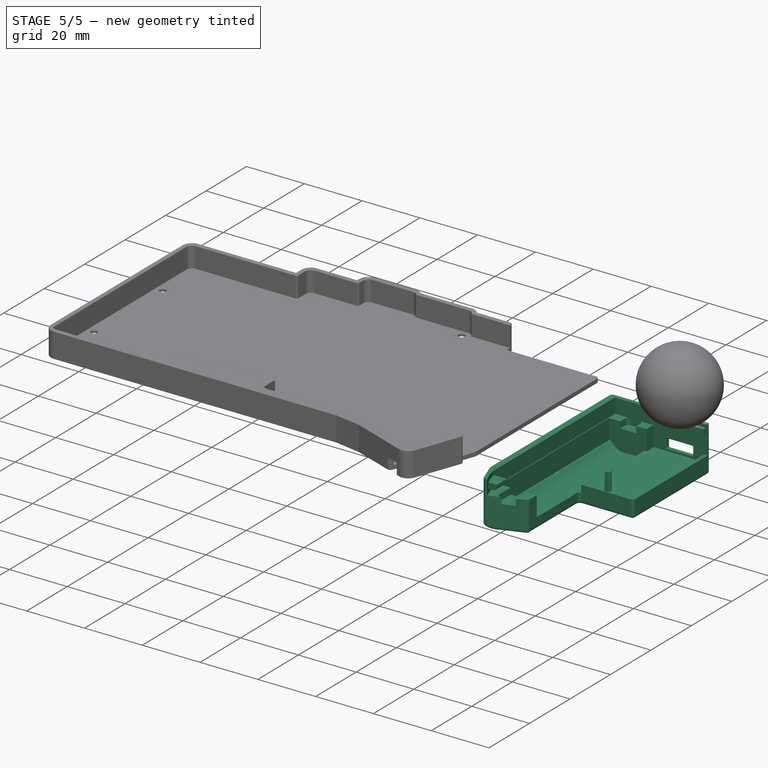
[diagram: stage 5 of 5 — iso view after this stage's code; geometry added in this stage tinted green]
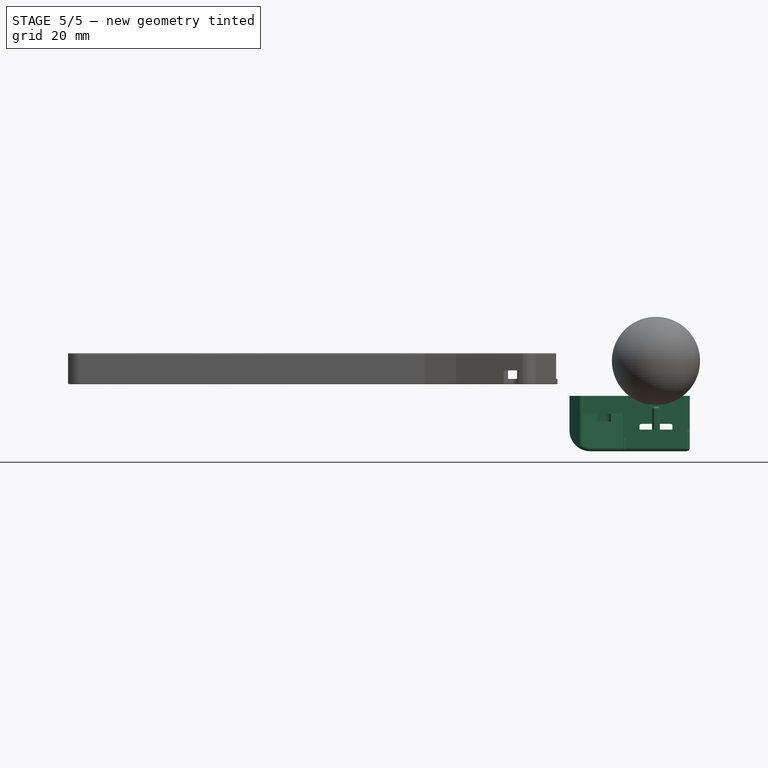
[diagram: stage 5 of 5 — front view after this stage's code; geometry added in this stage tinted green]
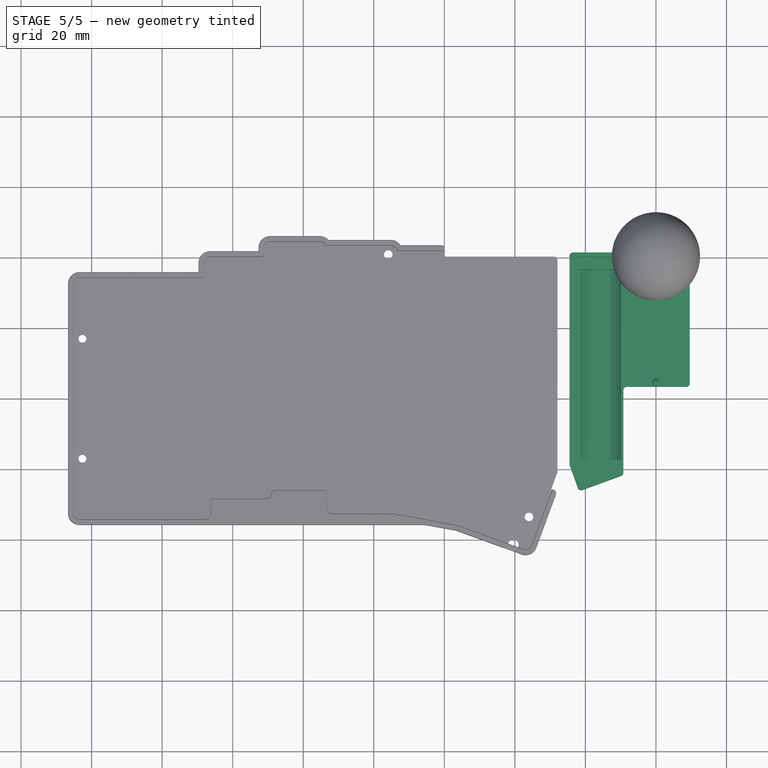
[diagram: stage 5 of 5 — top view after this stage's code; geometry added in this stage tinted green]
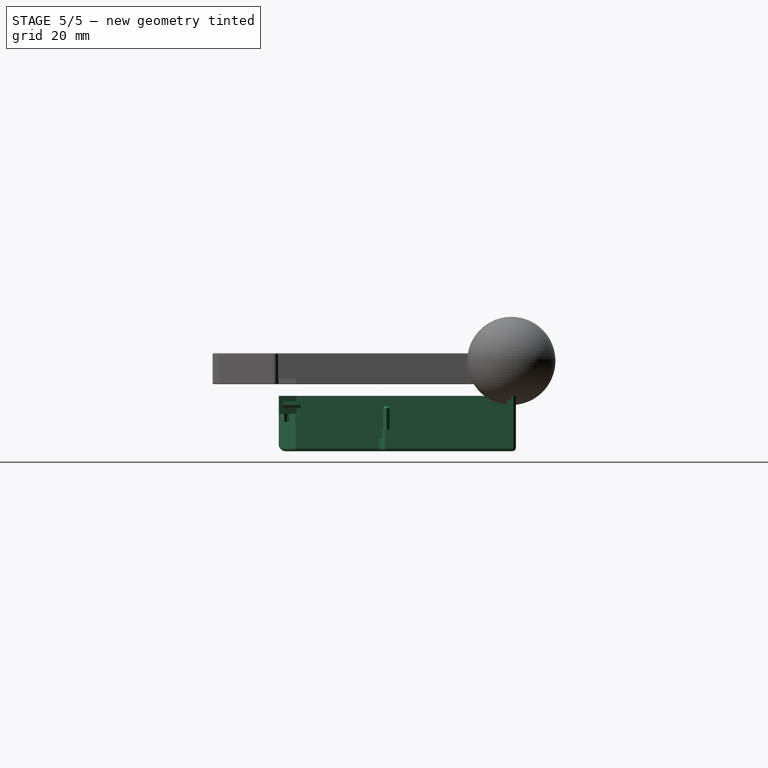
[diagram: stage 5 of 5 — right view after this stage's code; geometry added in this stage tinted green]
FEATURE [PartDesign::Fillet] Fillet001
  Base = -> Pocket006 [Edge7,Face1,Edge12,Edge17,Edge24,Edge66,Edge25,Edge22,Edge31,Edge13,Edge18]
  BaseFeature = -> Pocket006
  Radius = 1
  Refine = true
  SupportTransform = false
  Suppressed = false
  UseAllEdges = false
FEATURE [PartDesign::Pad] Pad005  label="固定柱1"
  BaseFeature = -> Fillet001
  Direction = (0,0,1)
  Length = 2.1
  Length2 = 10
  Profile = -> Sketch012
  ReferenceAxis = -> Sketch012 [N_Axis]
  Reversed = true
  SideType = 1
  Suppressed = false
  Type = 0
  Type2 = 0
FEATURE [PartDesign::Pad] Pad006  label="固定柱2"
  BaseFeature = -> Pad005
  Direction = (0,0,1)
  Length = 4.5
  Length2 = 10
  Profile = -> Sketch014
  ReferenceAxis = -> Sketch014 [N_Axis]
  SideType = 0
  Suppressed = false
  Type = 0
  Type2 = 0
FEATURE [PartDesign::Chamfer] Chamfer001  label="固定柱面取り"
  Angle = 45
  Base = -> Pad006 [Face68]
  BaseFeature = -> Pad006
  ChamferType = 0
  FlipDirection = false
  Size = 0.5
  Size2 = 1
  SupportTransform = false
  Suppressed = false
  UseAllEdges = false
FEATURE [PartDesign::Pocket] Pocket005  label="電池ピン穴"
  BaseFeature = -> Chamfer001
  Direction = (0,0,-1)
  Length = 2.2
  Length2 = 5
  Profile = -> Sketch013
  ReferenceAxis = -> Sketch013 [N_Axis]
  Reversed = true
  SideType = 0
  Suppressed = false
  Type = 0
  Type2 = 0
FEATURE [Part::Feature] Part__Feature002  label="torabo-tsuki-lp-XS-bottom_PCB"
  Placement = pos=(0,0,3.9) rot=(0,0,1;0rad)
  shape: bbox 120 x 86.78 x 1.2 mm, 76 faces (baked)
FEATURE [Sketcher::SketchObject] Sketch019
  ArcFitTolerance = 1e-06
  AttachmentOffset = pos=(0,0,-1.6) rot=(0,0,1;0rad)
  AttachmentSupport = -> [XY_Plane]
  ExternalTypes = [0]
  FullyConstrained = false
  MakeInternals = false
  MapMode = 5
  Placement = pos=(0,0,-1.6) rot=(0,0,1;0rad)
  _ExternalGeoVersion = 0
  expr: Constraints[10] = Sketch017.Constraints[10]
  expr: Constraints[12] = Sketch017.Constraints[12]
  expr: Constraints[22] = Sketch017.Constraints[22]
  expr: Constraints[23] = Sketch017.Constraints[23]
  expr: Constraints[24] = Sketch017.Constraints[24]
  expr: Constraints[31] = Sketch017.Constraints[31]
  expr: Constraints[42] = Sketch017.Constraints[42]
  expr: Constraints[43] = Sketch017.Constraints[43]
  expr: Constraints[44] = Sketch017.Constraints[44]
  expr: Constraints[45] = Sketch017.Constraints[45]
  expr: Constraints[54] = Sketch017.Constraints[54]
  expr: Constraints[55] = Sketch017.Constraints[55]
  expr: Constraints[56] = Sketch017.Constraints[56]
  expr: Constraints[57] = Sketch017.Constraints[57]
  expr: Constraints[75] = Sketch017.Constraints[75]
  expr: Constraints[76] = Sketch017.Constraints[76]
  expr: Constraints[77] = Sketch017.Constraints[77]
  expr: Constraints[78] = Sketch017.Constraints[78]
  sketch-geometry (30):
    g0: LineSegment [constr] StartX=8.4 StartY=-34 StartZ=0 EndX=8.4 EndY=0 EndZ=0
    g1: LineSegment [constr] StartX=8.4 StartY=0 StartZ=0 EndX=-8.4 EndY=0 EndZ=0
    g2: LineSegment [constr] StartX=-8.4 StartY=0 StartZ=0 EndX=-8.4 EndY=-34 EndZ=0
    g3: LineSegment [constr] StartX=-8.4 StartY=-34 StartZ=0 EndX=8.4 EndY=-34 EndZ=0
    g4: GeomPoint [constr] X=0 Y=-17 Z=0
    g5: LineSegment [constr] StartX=-22.1 StartY=-60.7 StartZ=0 EndX=-22.1 EndY=-3.7 EndZ=0
    g6: LineSegment [constr] StartX=-22.1 StartY=-3.7 StartZ=0 EndX=-9.1 EndY=-3.7 EndZ=0
    g7: LineSegment [constr] StartX=-9.1 StartY=-3.7 StartZ=0 EndX=-9.1 EndY=-60.7 EndZ=0
    g8: LineSegment [constr] StartX=-9.1 StartY=-60.7 StartZ=0 EndX=-22.1 EndY=-60.7 EndZ=0
    g9: GeomPoint [constr] X=-15.6 Y=-32.2 Z=0
    g10: LineSegment [constr] StartX=21.5 StartY=-68.9 StartZ=0 EndX=21.5 EndY=0 EndZ=0
    g11: LineSegment [constr] StartX=21.5 StartY=0 StartZ=0 EndX=-21.5 EndY=0 EndZ=0
    g12: GeomPoint [constr] X=0 Y=-34.45 Z=0
    g13: LineSegment [constr] StartX=8.5 StartY=-53.9 StartZ=0 EndX=8.5 EndY=-36.9 EndZ=0
    g14: LineSegment [constr] StartX=8.5 StartY=-36.9 StartZ=0 EndX=-8.5 EndY=-36.9 EndZ=0
    g15: LineSegment [constr] StartX=-8.5 StartY=-36.9 StartZ=0 EndX=-8.5 EndY=-53.9 EndZ=0
    g16: LineSegment [constr] StartX=-8.5 StartY=-53.9 StartZ=0 EndX=8.5 EndY=-53.9 EndZ=0
    g17: GeomPoint [constr] X=0 Y=-45.4 Z=0
    g18: LineSegment [constr] StartX=-18.1 StartY=-59.7 StartZ=0 EndX=-24.1 EndY=-59.7 EndZ=0
    g19: LineSegment [constr] StartX=-24.1 StartY=-59.7 StartZ=0 EndX=-24.1 EndY=-64.7 EndZ=0
    g20: LineSegment [constr] StartX=-24.1 StartY=-64.7 StartZ=0 EndX=-18.1 EndY=-64.7 EndZ=0
    g21: LineSegment [constr] StartX=-18.1 StartY=-64.7 StartZ=0 EndX=-18.1 EndY=-59.7 EndZ=0
    g22: LineSegment [constr] StartX=-24.1 StartY=-3.3 StartZ=0 EndX=-24.1 EndY=-59.7 EndZ=0
    g23: LineSegment [constr] StartX=-18.1 StartY=-3.3 StartZ=0 EndX=-18.1 EndY=-59.7 EndZ=0
    g24: LineSegment [constr] StartX=-24.1 StartY=-59.7 StartZ=0 EndX=-22.2801 EndY=-64.7 EndZ=0
    g25: LineSegment [constr] StartX=-18.1 StartY=-64.7 StartZ=0 EndX=-22.2801 EndY=-64.7 EndZ=0
    g26: LineSegment StartX=5 StartY=0 StartZ=0 EndX=5 EndY=-1.2 EndZ=0
    g27: LineSegment StartX=5 StartY=-1.2 StartZ=0 EndX=9 EndY=-1.2 EndZ=0
    g28: LineSegment StartX=9 StartY=-1.2 StartZ=0 EndX=9 EndY=0 EndZ=0
    g29: LineSegment StartX=9 StartY=0 StartZ=0 EndX=5 EndY=0 EndZ=0
  constraints (79):
    c: Coincident(g0,g1)
    c: Coincident(g1,g2)
    c: Coincident(g2,g3)
    c: Coincident(g3,g0)
    c: Horizontal(g1)
    c: Horizontal(g3)
    c: Vertical(g0)
    c: Vertical(g2)
    c: Symmetric(g1,g0,g4)
    c: PointOnObject(g4,g-2)
    c: Distance(g0) = 34
    c: PointOnObject(g-1,g1)
    c: Distance(g3) = 16.8
    c: Coincident(g5,g6)
    c: Coincident(g6,g7)
    c: Coincident(g7,g8)
    c: Coincident(g8,g5)
    c: Horizontal(g6)
    c: Horizontal(g8)
    c: Vertical(g5)
    c: Vertical(g7)
    c: Symmetric(g6,g5,g9)
    c: Distance(g6) = 13
    c: Distance(g5) = 57
    c: Distance(g9,g-1) = 32.2
    c: Coincident(g10,g11)
    c: Horizontal(g11)
    c: Vertical(g10)
    c: Symmetric(g11,g10,g12)
    c: PointOnObject(g12,g-2)
    c: PointOnObject(g11,g-1)
    c: Distance(g10) = 68.9
    c: Coincident(g13,g14)
    c: Coincident(g14,g15)
    c: Coincident(g15,g16)
    c: Coincident(g16,g13)
    c: Horizontal(g14)
    c: Horizontal(g16)
    c: Vertical(g13)
    c: Vertical(g15)
    c: Symmetric(g14,g13,g17)
    c: PointOnObject(g17,g-2)
    c: Distance(g16) = 17
    c: Distance(g13) = 17
    c: Distance(g17,g-1) = 45.4
    c: Distance(g9,g-2) = 15.6
    c: Coincident(g18,g19)
    c: Coincident(g19,g20)
    c: Coincident(g20,g21)
    c: Coincident(g21,g18)
    c: Horizontal(g18)
    c: Horizontal(g20)
    c: Vertical(g19)
    c: Vertical(g21)
    c: Distance(g18,g8) = 1
    c: Distance(g19) = 5
    c: Distance(g20) = 6
    c: Distance(g20,g-2) = 18.1
    c: Coincident(g22,g18)
    c: Vertical(g22)
    c: Coincident(g23,g18)
    c: Vertical(g23)
    c: Coincident(g24,g18)
    c: PointOnObject(g24,g20)
    c: Coincident(g25,g20)
    c: Coincident(g25,g24)
    c: Coincident(g26,g27)
    c: Coincident(g27,g28)
    c: Coincident(g28,g29)
    c: Coincident(g29,g26)
    c: Vertical(g26)
    c: Vertical(g28)
    c: Horizontal(g27)
    c: Horizontal(g29)
    c: PointOnObject(g26,g1)
    c: DistanceX(g27,g27) = 4
    c: DistanceY(g28,g28) = 1.2
    c: DistanceX(g-1,g26) = 5
    c: Angle(g25,g24) = 1.91986
FEATURE [PartDesign::Pad] Pad009
  BaseFeature = -> Pocket005
  Direction = (0,0,1)
  Length = 2.3
  Length2 = 10
  Profile = -> Sketch019
  ReferenceAxis = -> Sketch019 [N_Axis]
  Refine = true
  Reversed = true
  SideType = 0
  Suppressed = false
  Type = 0
  Type2 = 0
FEATURE [PartDesign::Pad] Pad008  label="固定爪1"
  BaseFeature = -> Pad009
  Direction = (0,0,1)
  Length = 2
  Length2 = 10
  Profile = -> Sketch017
  ReferenceAxis = -> Sketch017 [N_Axis]
  Reversed = true
  SideType = 0
  Suppressed = false
  Type = 0
  Type2 = 0
FEATURE [PartDesign::Chamfer] Chamfer  label="固定爪1_逃げ"
  Angle = 45
  Base = -> Pad008 [Edge244]
  BaseFeature = -> Pad008
  ChamferType = 0
  FlipDirection = false
  Size = 0.9
  Size2 = 1
  SupportTransform = false
  Suppressed = false
  UseAllEdges = false
FEATURE [PartDesign::Body] Body
  AllowCompound = false
  Group = -> [Sketch,Sketch001,Sketch002,Pad,Sketch003,Pocket,Sketch007,Pocket001,Sketch008,Sketch018,Pocket007,Pocket002,Sketch011,Pocket004,Pocket006,Sketch012,Fillet001,Pad005,Sketch013,Sketch014,Pad006,Chamfer001,Pocket005,Sketch016,Sketch017,Sketch019,Pad009,Pad008,Chamfer]
  Origin = -> Origin
  Tip = -> Chamfer
FEATURE [Part::Mirroring] Part__Mirroring  label="Body (Mirror #1)"
  Base = (0,0,0)
  Normal = (0,0,1)
  Placement = pos=(0,0,-15) rot=(0,0,1;0rad)
  Source = -> Body
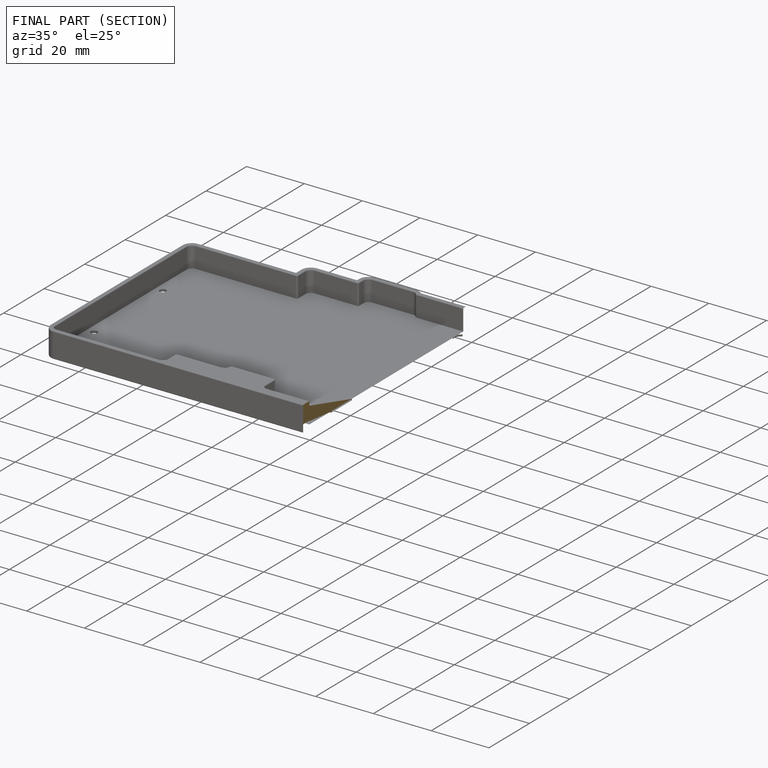
[diagram: finished part — half-section view (interior)]
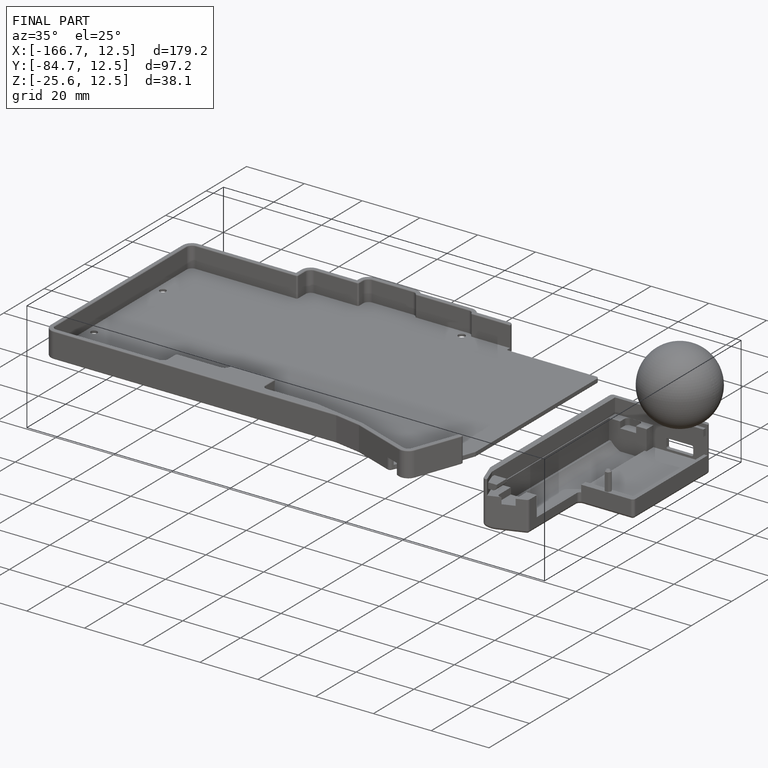
[diagram: finished part — iso view with bounding-box wireframe]
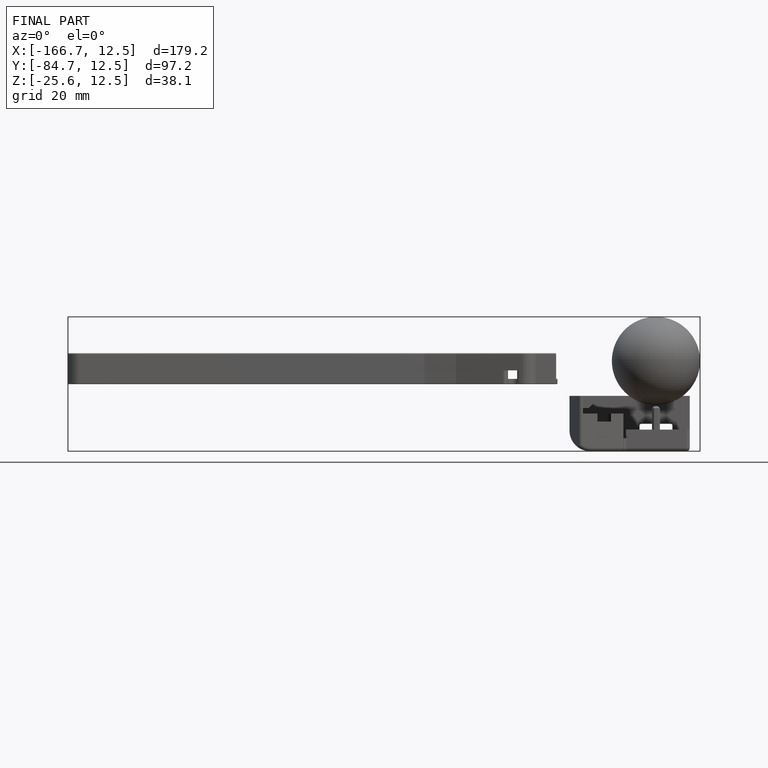
[diagram: finished part — front view with bounding-box wireframe]
